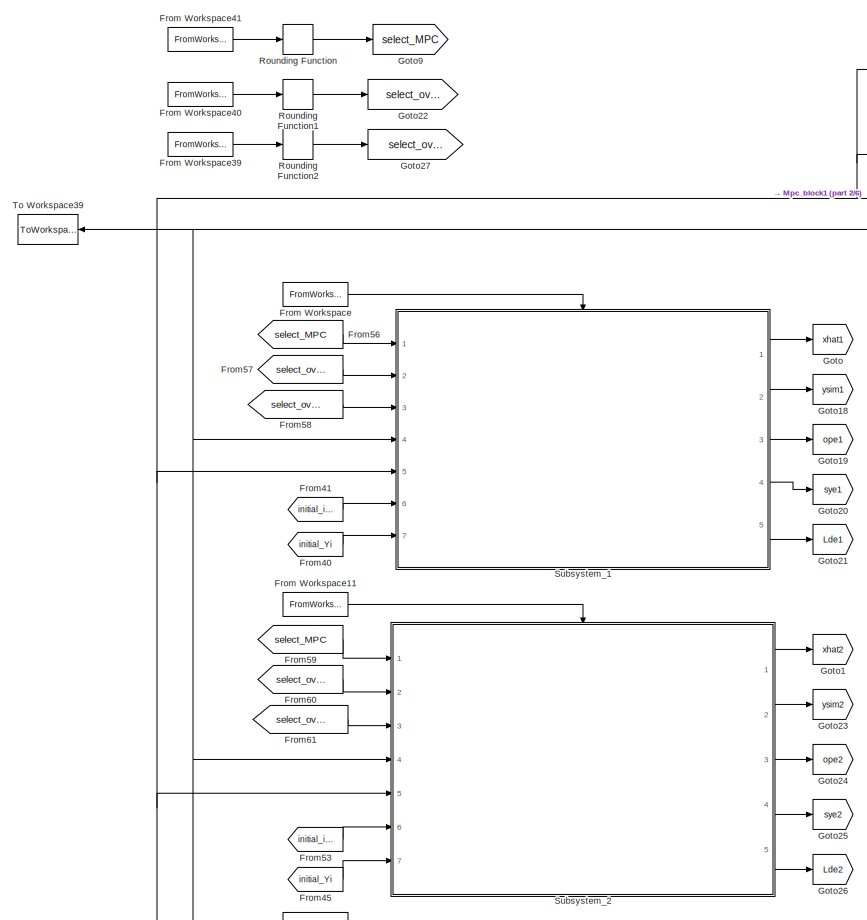
[diagram: root canvas - part 1/6, top left region]
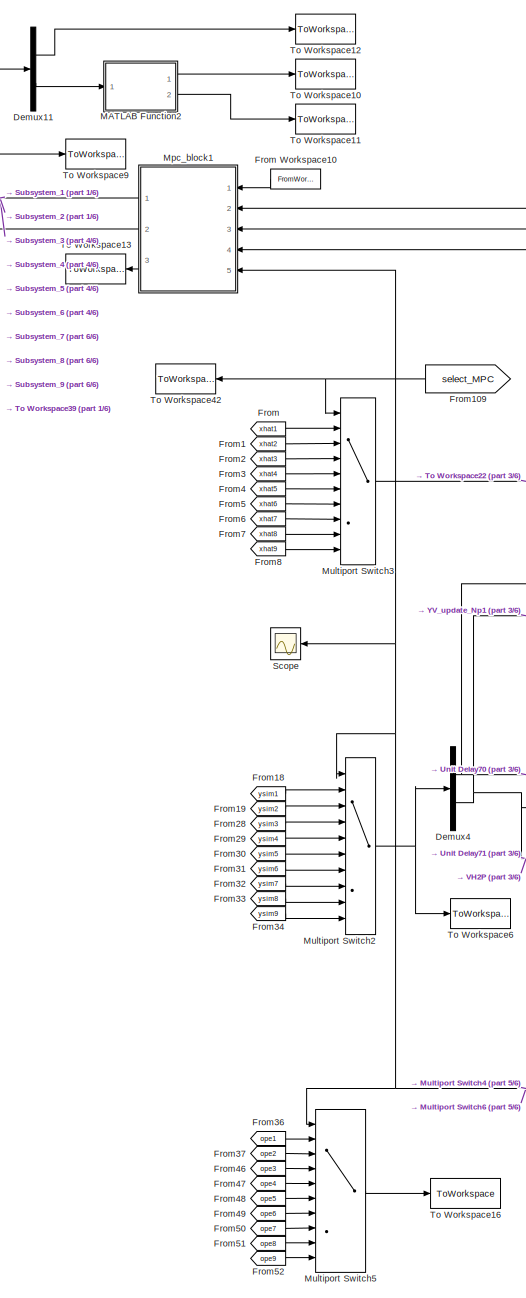
[diagram: root canvas - part 2/6, top center region]
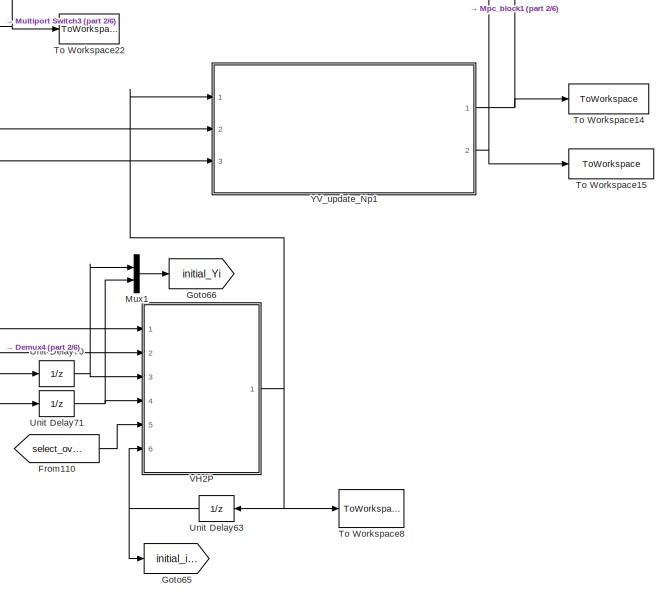
[diagram: root canvas - part 3/6, top right region]
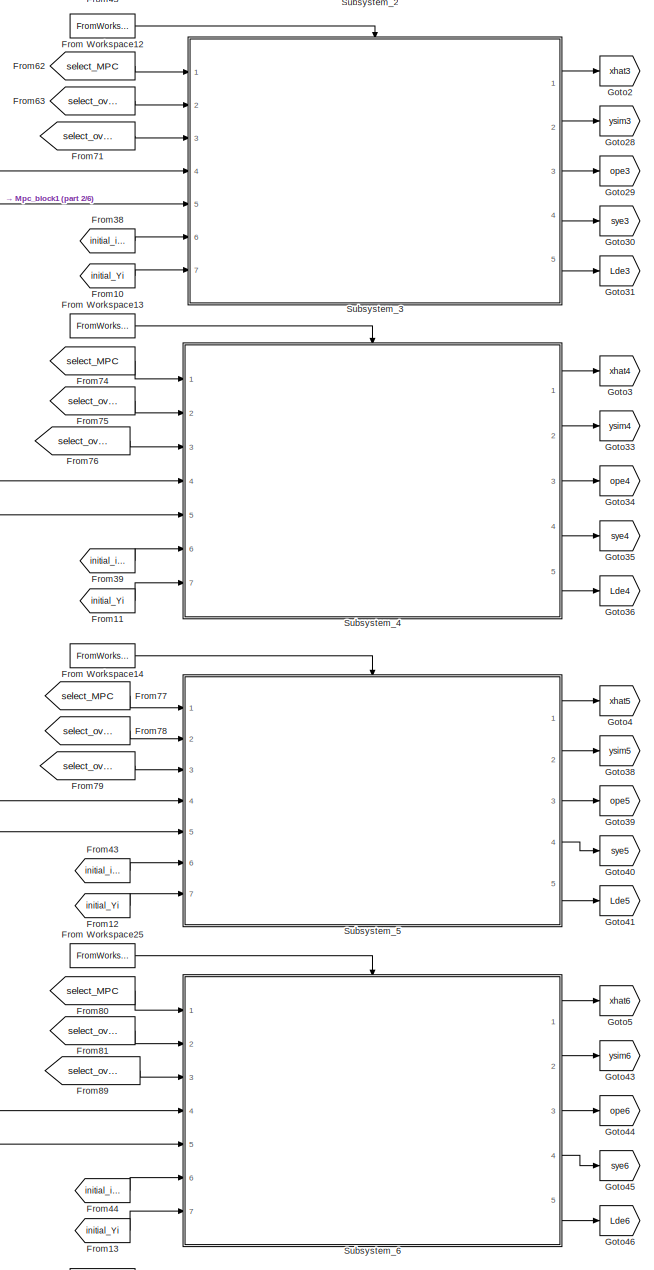
[diagram: root canvas - part 4/6, middle left region]
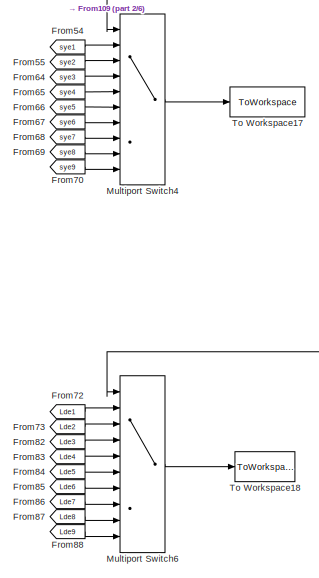
[diagram: root canvas - part 5/6, central region]
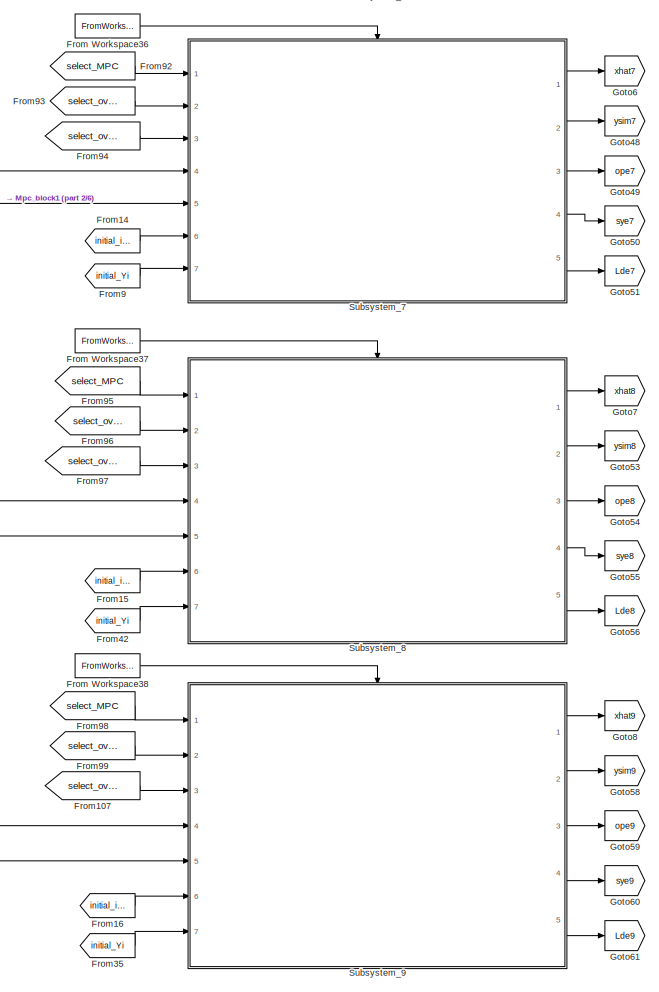
[diagram: root canvas - part 6/6, bottom left region]
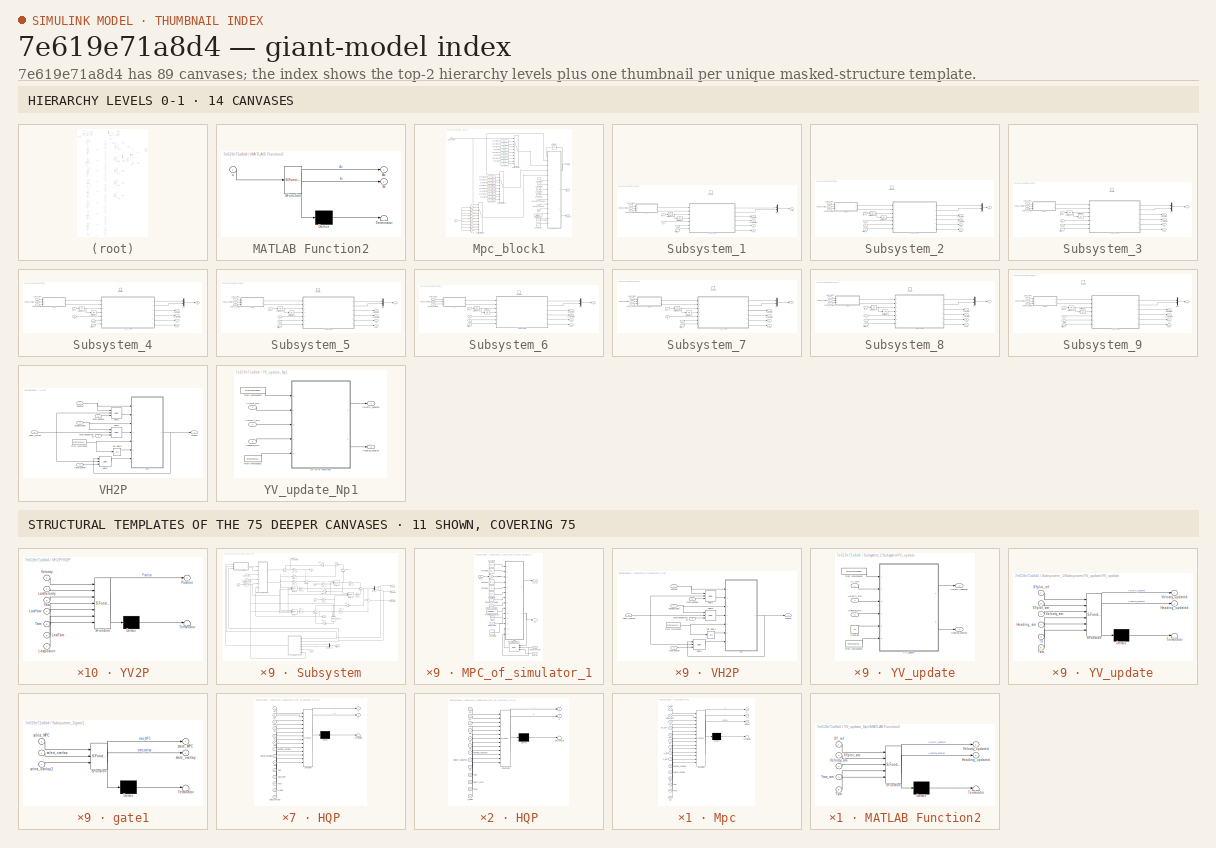
[diagram: thumbnail index - top-2 hierarchy levels (14 canvases) + 11 structural-template representatives of the remaining 75 canvases]
MODEL slx_7e619e71a8d4
KIND model
CONFIG AbsTol = auto
CONFIG EnableMultiTasking = off
CONFIG FixedStep = 0.001
CONFIG MaxStep = auto
CONFIG MinStep = auto
CONFIG RelTol = 5e-3
CONFIG SampleTimeConstraint = Unconstrained
CONFIG Solver = FixedStepAuto
CONFIG SolverName = FixedStepAuto
CONFIG StartTime = 0.0
CONFIG StopTime = Tend-Ts
WORKSPACE source: MAT-file member
WORKSPACE A_mu = 10
BLOCK [Demux] Demux11
  DisplayOption = bar
  Outputs = 2
  Ports = [1, 2]
BLOCK [Demux] Demux4
  DisplayOption = bar
  Outputs = 2
  Ports = [1, 2]
BLOCK [From] From
  GotoTag = xhat1
BLOCK [FromWorkspace] From Workspace
  SampleTime = 0
  VariableName = flag_mod1
  ZeroCross = on
BLOCK [FromWorkspace] From Workspace10
  SampleTime = Ts
  VariableName = Rs
  ZeroCross = on
BLOCK [FromWorkspace] From Workspace11
  SampleTime = 0
  VariableName = flag_mod2
  ZeroCross = on
BLOCK [FromWorkspace] From Workspace12
  SampleTime = 0
  VariableName = flag_mod3
  ZeroCross = on
BLOCK [FromWorkspace] From Workspace13
  SampleTime = 0
  VariableName = flag_mod4
  ZeroCross = on
BLOCK [FromWorkspace] From Workspace14
  SampleTime = 0
  VariableName = flag_mod5
  ZeroCross = on
BLOCK [FromWorkspace] From Workspace25
  SampleTime = 0
  VariableName = flag_mod6
  ZeroCross = on
BLOCK [FromWorkspace] From Workspace36
  SampleTime = 0
  VariableName = flag_mod7
  ZeroCross = on
BLOCK [FromWorkspace] From Workspace37
  SampleTime = 0
  VariableName = flag_mod8
  ZeroCross = on
BLOCK [FromWorkspace] From Workspace38
  SampleTime = 0
  VariableName = flag_mod9
  ZeroCross = on
BLOCK [FromWorkspace] From Workspace39
  SampleTime = Ts
  VariableName = select_overlap2
  ZeroCross = on
BLOCK [FromWorkspace] From Workspace40
  SampleTime = Ts
  VariableName = select_overlap
  ZeroCross = on
BLOCK [FromWorkspace] From Workspace41
  SampleTime = Ts
  VariableName = select_MPC
  ZeroCross = on
BLOCK [From] From1
  GotoTag = xhat2
BLOCK [From] From10
  GotoTag = initial_Yi
BLOCK [From] From107
  GotoTag = select_overlap2
BLOCK [From] From109
  GotoTag = select_MPC
BLOCK [From] From11
  GotoTag = initial_Yi
BLOCK [From] From110
  GotoTag = select_overlap
BLOCK [From] From12
  GotoTag = initial_Yi
BLOCK [From] From13
  GotoTag = initial_Yi
BLOCK [From] From14
  GotoTag = initial_ipos
BLOCK [From] From15
  GotoTag = initial_ipos
BLOCK [From] From16
  GotoTag = initial_ipos
BLOCK [From] From18
  GotoTag = ysim1
BLOCK [From] From19
  GotoTag = ysim2
BLOCK [From] From2
  GotoTag = xhat3
BLOCK [From] From28
  GotoTag = ysim3
BLOCK [From] From29
  GotoTag = ysim4
BLOCK [From] From3
  GotoTag = xhat4
BLOCK [From] From30
  GotoTag = ysim5
BLOCK [From] From31
  GotoTag = ysim6
BLOCK [From] From32
  GotoTag = ysim7
BLOCK [From] From33
  GotoTag = ysim8
BLOCK [From] From34
  GotoTag = ysim9
BLOCK [From] From35
  GotoTag = initial_Yi
BLOCK [From] From36
  GotoTag = ope1
BLOCK [From] From37
  GotoTag = ope2
BLOCK [From] From38
  GotoTag = initial_ipos
BLOCK [From] From39
  GotoTag = initial_ipos
BLOCK [From] From4
  GotoTag = xhat5
BLOCK [From] From40
  GotoTag = initial_Yi
BLOCK [From] From41
  GotoTag = initial_ipos
BLOCK [From] From42
  GotoTag = initial_Yi
BLOCK [From] From43
  GotoTag = initial_ipos
BLOCK [From] From44
  GotoTag = initial_ipos
BLOCK [From] From45
  GotoTag = initial_Yi
BLOCK [From] From46
  GotoTag = ope3
BLOCK [From] From47
  GotoTag = ope4
BLOCK [From] From48
  GotoTag = ope5
BLOCK [From] From49
  GotoTag = ope6
BLOCK [From] From5
  GotoTag = xhat6
BLOCK [From] From50
  GotoTag = ope7
BLOCK [From] From51
  GotoTag = ope8
BLOCK [From] From52
  GotoTag = ope9
BLOCK [From] From53
  GotoTag = initial_ipos
BLOCK [From] From54
  GotoTag = sye1
BLOCK [From] From55
  GotoTag = sye2
BLOCK [From] From56
  GotoTag = select_MPC
BLOCK [From] From57
  GotoTag = select_overlap
BLOCK [From] From58
  GotoTag = select_overlap2
BLOCK [From] From59
  GotoTag = select_MPC
BLOCK [From] From6
  GotoTag = xhat7
BLOCK [From] From60
  GotoTag = select_overlap
BLOCK [From] From61
  GotoTag = select_overlap2
BLOCK [From] From62
  GotoTag = select_MPC
BLOCK [From] From63
  GotoTag = select_overlap
BLOCK [From] From64
  GotoTag = sye3
BLOCK [From] From65
  GotoTag = sye4
BLOCK [From] From66
  GotoTag = sye5
BLOCK [From] From67
  GotoTag = sye6
BLOCK [From] From68
  GotoTag = sye7
BLOCK [From] From69
  GotoTag = sye8
BLOCK [From] From7
  GotoTag = xhat8
BLOCK [From] From70
  GotoTag = sye9
BLOCK [From] From71
  GotoTag = select_overlap2
BLOCK [From] From72
  GotoTag = Lde1
BLOCK [From] From73
  GotoTag = Lde2
BLOCK [From] From74
  GotoTag = select_MPC
BLOCK [From] From75
  GotoTag = select_overlap
BLOCK [From] From76
  GotoTag = select_overlap2
BLOCK [From] From77
  GotoTag = select_MPC
BLOCK [From] From78
  GotoTag = select_overlap
BLOCK [From] From79
  GotoTag = select_overlap2
BLOCK [From] From8
  GotoTag = xhat9
BLOCK [From] From80
  GotoTag = select_MPC
BLOCK [From] From81
  GotoTag = select_overlap
BLOCK [From] From82
  GotoTag = Lde3
BLOCK [From] From83
  GotoTag = Lde4
BLOCK [From] From84
  GotoTag = Lde5
BLOCK [From] From85
  GotoTag = Lde6
BLOCK [From] From86
  GotoTag = Lde7
BLOCK [From] From87
  GotoTag = Lde8
BLOCK [From] From88
  GotoTag = Lde9
BLOCK [From] From89
  GotoTag = select_overlap2
BLOCK [From] From9
  GotoTag = initial_Yi
BLOCK [From] From92
  GotoTag = select_MPC
BLOCK [From] From93
  GotoTag = select_overlap
BLOCK [From] From94
  GotoTag = select_overlap2
BLOCK [From] From95
  GotoTag = select_MPC
BLOCK [From] From96
  GotoTag = select_overlap
BLOCK [From] From97
  GotoTag = select_overlap2
BLOCK [From] From98
  GotoTag = select_MPC
BLOCK [From] From99
  GotoTag = select_overlap
BLOCK [Goto] Goto
  GotoTag = xhat1
BLOCK [Goto] Goto1
  GotoTag = xhat2
BLOCK [Goto] Goto18
  GotoTag = ysim1
BLOCK [Goto] Goto19
  GotoTag = ope1
BLOCK [Goto] Goto2
  GotoTag = xhat3
BLOCK [Goto] Goto20
  GotoTag = sye1
BLOCK [Goto] Goto21
  GotoTag = Lde1
BLOCK [Goto] Goto22
  GotoTag = select_overlap
BLOCK [Goto] Goto23
  GotoTag = ysim2
BLOCK [Goto] Goto24
  GotoTag = ope2
BLOCK [Goto] Goto25
  GotoTag = sye2
BLOCK [Goto] Goto26
  GotoTag = Lde2
BLOCK [Goto] Goto27
  GotoTag = select_overlap2
BLOCK [Goto] Goto28
  GotoTag = ysim3
BLOCK [Goto] Goto29
  GotoTag = ope3
BLOCK [Goto] Goto3
  GotoTag = xhat4
BLOCK [Goto] Goto30
  GotoTag = sye3
BLOCK [Goto] Goto31
  GotoTag = Lde3
BLOCK [Goto] Goto33
  GotoTag = ysim4
BLOCK [Goto] Goto34
  GotoTag = ope4
BLOCK [Goto] Goto35
  GotoTag = sye4
BLOCK [Goto] Goto36
  GotoTag = Lde4
BLOCK [Goto] Goto38
  GotoTag = ysim5
BLOCK [Goto] Goto39
  GotoTag = ope5
BLOCK [Goto] Goto4
  GotoTag = xhat5
BLOCK [Goto] Goto40
  GotoTag = sye5
BLOCK [Goto] Goto41
  GotoTag = Lde5
BLOCK [Goto] Goto43
  GotoTag = ysim6
BLOCK [Goto] Goto44
  GotoTag = ope6
BLOCK [Goto] Goto45
  GotoTag = sye6
BLOCK [Goto] Goto46
  GotoTag = Lde6
BLOCK [Goto] Goto48
  GotoTag = ysim7
BLOCK [Goto] Goto49
  GotoTag = ope7
BLOCK [Goto] Goto5
  GotoTag = xhat6
BLOCK [Goto] Goto50
  GotoTag = sye7
BLOCK [Goto] Goto51
  GotoTag = Lde7
BLOCK [Goto] Goto53
  GotoTag = ysim8
BLOCK [Goto] Goto54
  GotoTag = ope8
BLOCK [Goto] Goto55
  GotoTag = sye8
BLOCK [Goto] Goto56
  GotoTag = Lde8
BLOCK [Goto] Goto58
  GotoTag = ysim9
BLOCK [Goto] Goto59
  GotoTag = ope9
BLOCK [Goto] Goto6
  GotoTag = xhat7
BLOCK [Goto] Goto60
  GotoTag = sye9
BLOCK [Goto] Goto61
  GotoTag = Lde9
BLOCK [Goto] Goto65
  GotoTag = initial_ipos
BLOCK [Goto] Goto66
  GotoTag = initial_Yi
BLOCK [Goto] Goto7
  GotoTag = xhat8
BLOCK [Goto] Goto8
  GotoTag = xhat9
BLOCK [Goto] Goto9
  GotoTag = select_MPC
BLOCK [SubSystem] MATLAB Function2
  ErrorFcn = Stateflow.Translate.translate
  PermitHierarchicalResolution = ExplicitOnly
  Ports = [1, 2]
  RequestExecContextInheritance = off
  SFBlockType = MATLAB Function
  SystemSampleTime = Ts
  TreatAsAtomicUnit = on
BLOCK [Demux] MATLAB Function2/ Demux 
  Outputs = 1
  Ports = [1, 1]
BLOCK [S-Function] MATLAB Function2/ SFunction 
  EnableBusSupport = on
  FunctionName = sf_sfun
  PortCounts = [1 3]
  Ports = [1, 3]
  SFcnIsStateOwnerBlock = off
  SFunctionDeploymentMode = off
  Tag = Stateflow S-Function ISReferenceApplication 123
BLOCK [Terminator] MATLAB Function2/ Terminator 
BLOCK [Outport] MATLAB Function2/Ac
  IconDisplay = Port number
BLOCK [Outport] MATLAB Function2/Br
  IconDisplay = Port number
  Port = 2
BLOCK [Inport] MATLAB Function2/u
  IconDisplay = Port number
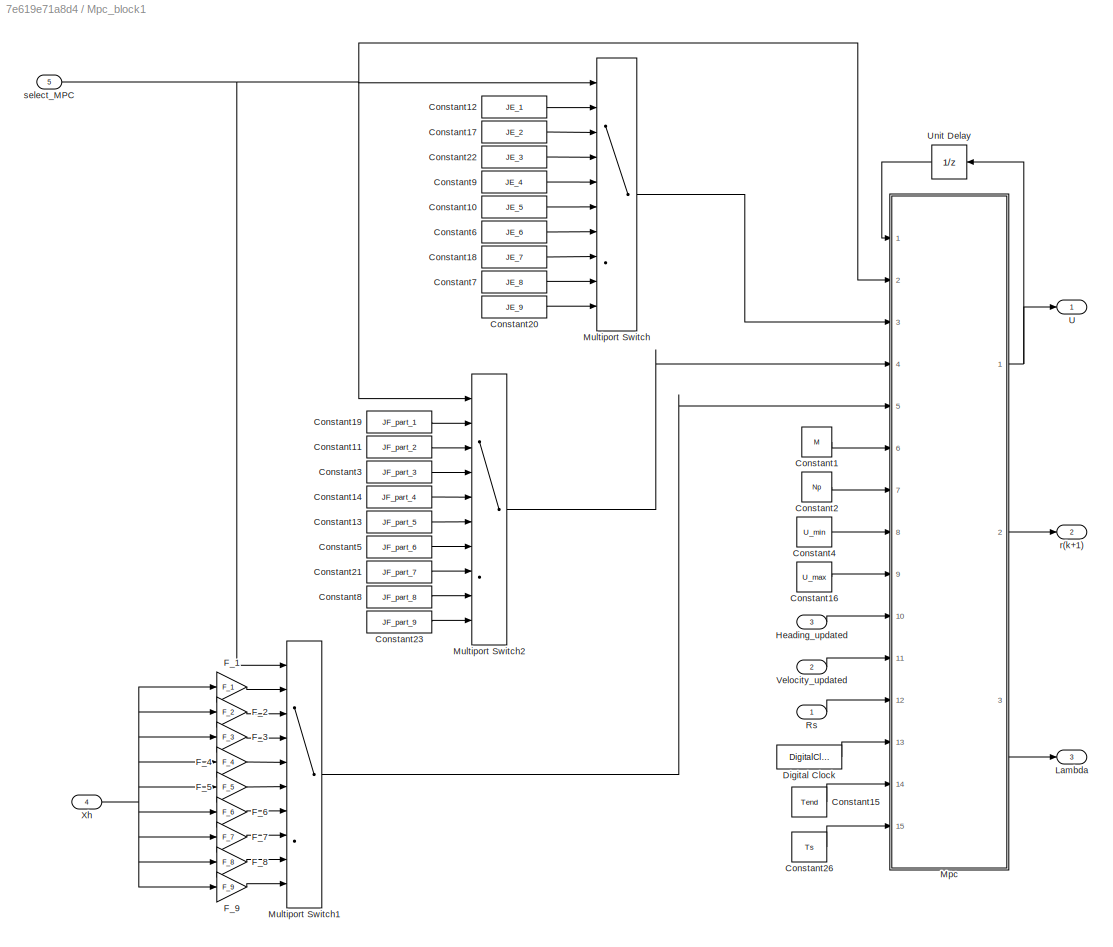
BLOCK [SubSystem] Mpc_block1
  Ports = [5, 3]
  RequestExecContextInheritance = off
  SystemSampleTime = Ts
  TreatAsAtomicUnit = on
BLOCK [Constant] Mpc_block1/Constant1
  SampleTime = -1
  Value = M
  VectorParams1D = off
BLOCK [Constant] Mpc_block1/Constant10
  SampleTime = -1
  Value = JE_5
  VectorParams1D = off
BLOCK [Constant] Mpc_block1/Constant11
  SampleTime = -1
  Value = JF_part_2
  VectorParams1D = off
BLOCK [Constant] Mpc_block1/Constant12
  SampleTime = -1
  Value = JE_1
  VectorParams1D = off
BLOCK [Constant] Mpc_block1/Constant13
  SampleTime = -1
  Value = JF_part_5
  VectorParams1D = off
BLOCK [Constant] Mpc_block1/Constant14
  SampleTime = -1
  Value = JF_part_4
  VectorParams1D = off
BLOCK [Constant] Mpc_block1/Constant15
  SampleTime = -1
  Value = Tend
  VectorParams1D = off
BLOCK [Constant] Mpc_block1/Constant16
  SampleTime = -1
  Value = U_max
  VectorParams1D = off
BLOCK [Constant] Mpc_block1/Constant17
  SampleTime = -1
  Value = JE_2
  VectorParams1D = off
BLOCK [Constant] Mpc_block1/Constant18
  SampleTime = -1
  Value = JE_7
  VectorParams1D = off
BLOCK [Constant] Mpc_block1/Constant19
  SampleTime = -1
  Value = JF_part_1
  VectorParams1D = off
BLOCK [Constant] Mpc_block1/Constant2
  SampleTime = -1
  Value = Np
BLOCK [Constant] Mpc_block1/Constant20
  SampleTime = -1
  Value = JE_9
  VectorParams1D = off
BLOCK [Constant] Mpc_block1/Constant21
  SampleTime = -1
  Value = JF_part_7
  VectorParams1D = off
BLOCK [Constant] Mpc_block1/Constant22
  SampleTime = -1
  Value = JE_3
  VectorParams1D = off
BLOCK [Constant] Mpc_block1/Constant23
  SampleTime = -1
  Value = JF_part_9
  VectorParams1D = off
BLOCK [Constant] Mpc_block1/Constant26
  SampleTime = -1
  Value = Ts
  VectorParams1D = off
BLOCK [Constant] Mpc_block1/Constant3
  SampleTime = -1
  Value = JF_part_3
  VectorParams1D = off
BLOCK [Constant] Mpc_block1/Constant4
  SampleTime = -1
  Value = U_min
  VectorParams1D = off
BLOCK [Constant] Mpc_block1/Constant5
  SampleTime = -1
  Value = JF_part_6
  VectorParams1D = off
BLOCK [Constant] Mpc_block1/Constant6
  SampleTime = -1
  Value = JE_6
  VectorParams1D = off
BLOCK [Constant] Mpc_block1/Constant7
  SampleTime = -1
  Value = JE_8
  VectorParams1D = off
BLOCK [Constant] Mpc_block1/Constant8
  SampleTime = -1
  Value = JF_part_8
  VectorParams1D = off
BLOCK [Constant] Mpc_block1/Constant9
  SampleTime = -1
  Value = JE_4
  VectorParams1D = off
BLOCK [DigitalClock] Mpc_block1/Digital Clock
  SampleTime = Ts
BLOCK [Gain] Mpc_block1/F_1
  Gain = F_1
  Multiplication = Matrix(K*u) (u vector)
  OutDataTypeStr = Inherit: Inherit via internal rule
  ParamDataTypeStr = Inherit: Inherit via internal rule
  SaturateOnIntegerOverflow = off
BLOCK [Gain] Mpc_block1/F_2
  Gain = F_2
  Multiplication = Matrix(K*u) (u vector)
  OutDataTypeStr = Inherit: Inherit via internal rule
  ParamDataTypeStr = Inherit: Inherit via internal rule
  SaturateOnIntegerOverflow = off
BLOCK [Gain] Mpc_block1/F_3
  Gain = F_3
  Multiplication = Matrix(K*u) (u vector)
  OutDataTypeStr = Inherit: Inherit via internal rule
  ParamDataTypeStr = Inherit: Inherit via internal rule
  SaturateOnIntegerOverflow = off
BLOCK [Gain] Mpc_block1/F_4
  Gain = F_4
  Multiplication = Matrix(K*u) (u vector)
  OutDataTypeStr = Inherit: Inherit via internal rule
  ParamDataTypeStr = Inherit: Inherit via internal rule
  SaturateOnIntegerOverflow = off
BLOCK [Gain] Mpc_block1/F_5
  Gain = F_5
  Multiplication = Matrix(K*u) (u vector)
  OutDataTypeStr = Inherit: Inherit via internal rule
  ParamDataTypeStr = Inherit: Inherit via internal rule
  SaturateOnIntegerOverflow = off
BLOCK [Gain] Mpc_block1/F_6
  Gain = F_6
  Multiplication = Matrix(K*u) (u vector)
  OutDataTypeStr = Inherit: Inherit via internal rule
  ParamDataTypeStr = Inherit: Inherit via internal rule
  SaturateOnIntegerOverflow = off
BLOCK [Gain] Mpc_block1/F_7
  Gain = F_7
  Multiplication = Matrix(K*u) (u vector)
  OutDataTypeStr = Inherit: Inherit via internal rule
  ParamDataTypeStr = Inherit: Inherit via internal rule
  SaturateOnIntegerOverflow = off
BLOCK [Gain] Mpc_block1/F_8
  Gain = F_8
  Multiplication = Matrix(K*u) (u vector)
  OutDataTypeStr = Inherit: Inherit via internal rule
  ParamDataTypeStr = Inherit: Inherit via internal rule
  SaturateOnIntegerOverflow = off
BLOCK [Gain] Mpc_block1/F_9
  Gain = F_9
  Multiplication = Matrix(K*u) (u vector)
  OutDataTypeStr = Inherit: Inherit via internal rule
  ParamDataTypeStr = Inherit: Inherit via internal rule
  SaturateOnIntegerOverflow = off
BLOCK [Inport] Mpc_block1/Heading_updated
  IconDisplay = Port number
  LockScale = on
  Port = 3
  SampleTime = Ts
BLOCK [Outport] Mpc_block1/Lambda
  IconDisplay = Port number
  Port = 3
BLOCK [SubSystem] Mpc_block1/Mpc
  ErrorFcn = Stateflow.Translate.translate
  PermitHierarchicalResolution = ExplicitOnly
  Ports = [15, 3]
  RequestExecContextInheritance = off
  SFBlockType = MATLAB Function
  SystemSampleTime = Ts
  TreatAsAtomicUnit = on
BLOCK [Demux] Mpc_block1/Mpc/ Demux 
  Outputs = 1
  Ports = [1, 1]
BLOCK [S-Function] Mpc_block1/Mpc/ SFunction 
  EnableBusSupport = on
  FunctionName = sf_sfun
  PortCounts = [15 4]
  Ports = [15, 4]
  SFcnIsStateOwnerBlock = off
  SFunctionDeploymentMode = off
  Tag = Stateflow S-Function ISReferenceApplication 99
BLOCK [Terminator] Mpc_block1/Mpc/ Terminator 
BLOCK [Inport] Mpc_block1/Mpc/Fxh
  IconDisplay = Port number
  Port = 5
BLOCK [Inport] Mpc_block1/Mpc/Heading_updated
  IconDisplay = Port number
  Port = 10
BLOCK [Inport] Mpc_block1/Mpc/JE
  IconDisplay = Port number
  Port = 3
BLOCK [Inport] Mpc_block1/Mpc/JF_part
  IconDisplay = Port number
  Port = 4
BLOCK [Inport] Mpc_block1/Mpc/M
  IconDisplay = Port number
  Port = 6
BLOCK [Inport] Mpc_block1/Mpc/Np
  IconDisplay = Port number
  Port = 7
BLOCK [Inport] Mpc_block1/Mpc/Rs
  IconDisplay = Port number
  Port = 12
BLOCK [Inport] Mpc_block1/Mpc/Tend
  IconDisplay = Port number
  Port = 14
BLOCK [Inport] Mpc_block1/Mpc/Ts
  IconDisplay = Port number
  Port = 15
BLOCK [Inport] Mpc_block1/Mpc/Tsim
  IconDisplay = Port number
  Port = 13
BLOCK [Outport] Mpc_block1/Mpc/U
  IconDisplay = Port number
BLOCK [Inport] Mpc_block1/Mpc/U_delay
  IconDisplay = Port number
BLOCK [Inport] Mpc_block1/Mpc/U_max
  IconDisplay = Port number
  Port = 9
BLOCK [Inport] Mpc_block1/Mpc/U_min
  IconDisplay = Port number
  Port = 8
BLOCK [Inport] Mpc_block1/Mpc/Velocity_updated
  IconDisplay = Port number
  Port = 11
BLOCK [Outport] Mpc_block1/Mpc/lambda
  IconDisplay = Port number
  Port = 3
BLOCK [Outport] Mpc_block1/Mpc/r
  IconDisplay = Port number
  Port = 2
BLOCK [Inport] Mpc_block1/Mpc/select_MPC
  IconDisplay = Port number
  Port = 2
BLOCK [MultiPortSwitch] Mpc_block1/Multiport Switch
  InputSameDT = off
  Inputs = 9
  Ports = [10, 1]
  SaturateOnIntegerOverflow = off
BLOCK [MultiPortSwitch] Mpc_block1/Multiport Switch1
  InputSameDT = off
  Inputs = 9
  Ports = [10, 1]
  SaturateOnIntegerOverflow = off
BLOCK [MultiPortSwitch] Mpc_block1/Multiport Switch2
  InputSameDT = off
  Inputs = 9
  Ports = [10, 1]
  SaturateOnIntegerOverflow = off
BLOCK [Inport] Mpc_block1/Rs
  IconDisplay = Port number
  LockScale = on
  SampleTime = Ts
  VarSizeSig = No
BLOCK [Outport] Mpc_block1/U
  IconDisplay = Port number
BLOCK [UnitDelay] Mpc_block1/Unit Delay
  InitialCondition = [0;0]
  InputProcessing = Elements as channels (sample based)
  SampleTime = Ts
BLOCK [Inport] Mpc_block1/Velocity_updated
  IconDisplay = Port number
  Port = 2
  SampleTime = Ts
BLOCK [Inport] Mpc_block1/Xh
  IconDisplay = Port number
  Port = 4
BLOCK [Outport] Mpc_block1/r(k+1)
  IconDisplay = Port number
  Port = 2
BLOCK [Inport] Mpc_block1/select_MPC
  IconDisplay = Port number
  Port = 5
BLOCK [MultiPortSwitch] Multiport Switch2
  InputSameDT = off
  Inputs = 9
  Ports = [10, 1]
  SaturateOnIntegerOverflow = off
BLOCK [MultiPortSwitch] Multiport Switch3
  InputSameDT = off
  Inputs = 9
  Ports = [10, 1]
  SaturateOnIntegerOverflow = off
BLOCK [MultiPortSwitch] Multiport Switch4
  InputSameDT = off
  Inputs = 9
  Ports = [10, 1]
  SaturateOnIntegerOverflow = off
BLOCK [MultiPortSwitch] Multiport Switch5
  InputSameDT = off
  Inputs = 9
  Ports = [10, 1]
  SaturateOnIntegerOverflow = off
BLOCK [MultiPortSwitch] Multiport Switch6
  InputSameDT = off
  Inputs = 9
  Ports = [10, 1]
  SaturateOnIntegerOverflow = off
BLOCK [Mux] Mux1
  DisplayOption = bar
  Inputs = 2
  Ports = [2, 1]
BLOCK [Rounding] Rounding Function
  Operator = round
BLOCK [Rounding] Rounding Function1
  Operator = round
BLOCK [Rounding] Rounding Function2
  Operator = round
BLOCK [Scope] Scope
  Floating = off
  NumInputPorts = 1
  Ports = [1]
  ScopeSpecificationString = Simulink.scopes.TimeScopeBlockCfg('CurrentConfiguration', extmgr.ConfigurationSet(extmgr.Configuration('Core','General UI',true),extmgr.Configuration('Core','Source UI',true),extmgr.Configuration('Sources','WiredSimulink',true),extmgr.Configuration('Visuals','Time Domain',true,'SerializedDisplays',{struct('MinYLimReal','2.5','MaxYLimReal','7.5','YLabelReal','','MinYLimMag','2.5','MaxYLimMag','7.5'...<+1302ch>
BLOCK [SubSystem] Subsystem_1
  Ports = [7, 5, 1]
  RequestExecContextInheritance = off
BLOCK [EnablePort] Subsystem_1/Enable
  Ports = []
BLOCK [Outport] Subsystem_1/Ld
  IconDisplay = Port number
  Port = 5
BLOCK [Mux] Subsystem_1/Mux
  DisplayOption = bar
  Inputs = 2
  Ports = [2, 1]
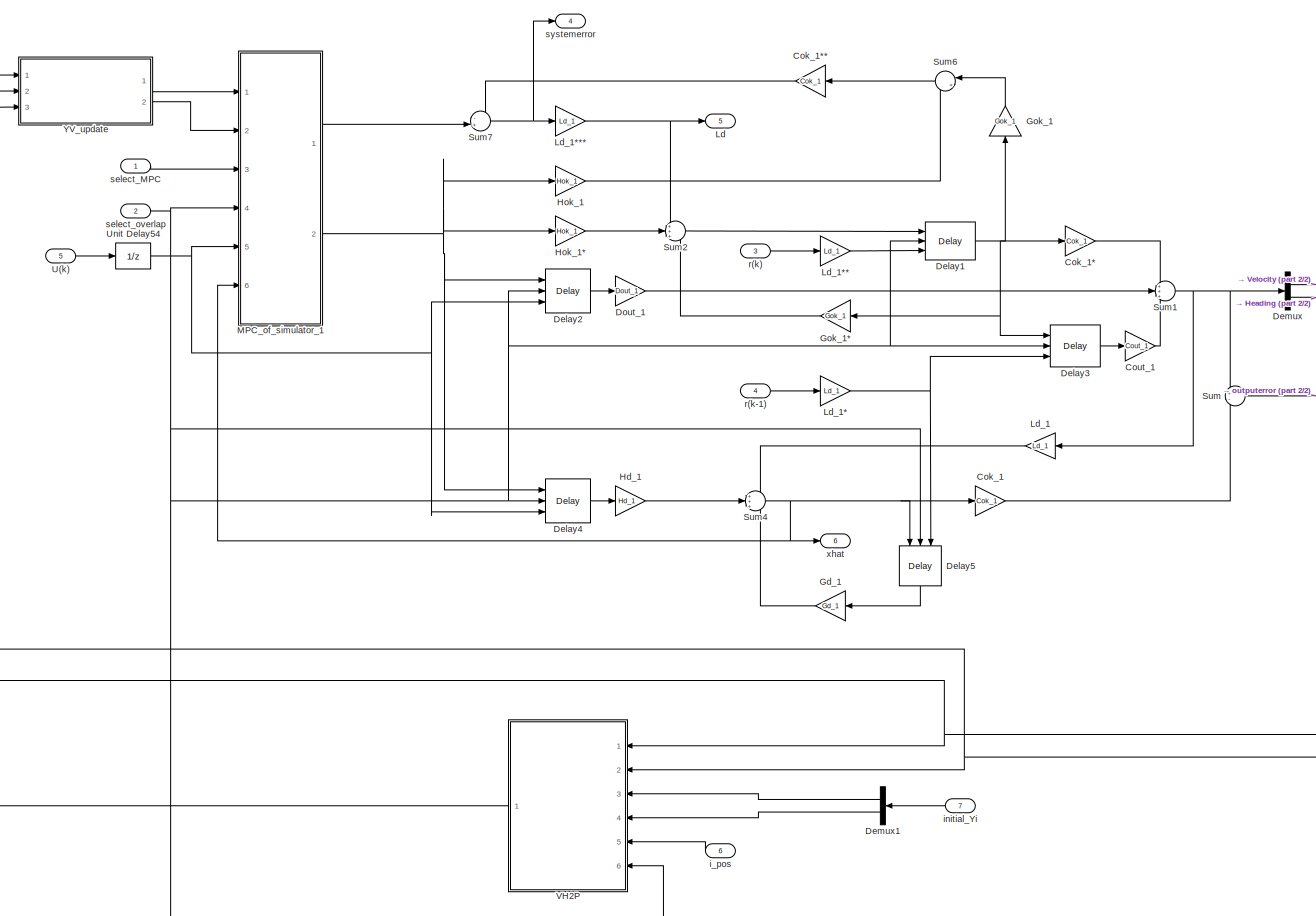
[diagram: Subsystem_1/Subsystem - part 1/2, most of the canvas]
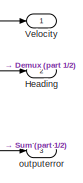
[diagram: Subsystem_1/Subsystem - part 2/2, middle right region]
BLOCK [SubSystem] Subsystem_1/Subsystem
  Ports = [7, 6]
  RequestExecContextInheritance = off
BLOCK [Gain] Subsystem_1/Subsystem/Cok_1
  Gain = Cok_1
  Multiplication = Matrix(K*u) (u vector)
  OutDataTypeStr = Inherit: Inherit via internal rule
  ParamDataTypeStr = Inherit: Inherit via internal rule
  SaturateOnIntegerOverflow = off
BLOCK [Gain] Subsystem_1/Subsystem/Cok_1*
  Gain = Cok_1
  Multiplication = Matrix(K*u) (u vector)
  OutDataTypeStr = Inherit: Inherit via internal rule
  ParamDataTypeStr = Inherit: Inherit via internal rule
  SaturateOnIntegerOverflow = off
BLOCK [Gain] Subsystem_1/Subsystem/Cok_1**
  Gain = Cok_1
  Multiplication = Matrix(K*u) (u vector)
  OutDataTypeStr = Inherit: Inherit via internal rule
  ParamDataTypeStr = Inherit: Inherit via internal rule
  SaturateOnIntegerOverflow = off
BLOCK [Gain] Subsystem_1/Subsystem/Cout_1
  Gain = Cout_1
  Multiplication = Matrix(K*u) (u vector)
  OutDataTypeStr = Inherit: Inherit via internal rule
  ParamDataTypeStr = Inherit: Inherit via internal rule
  SaturateOnIntegerOverflow = off
BLOCK [Delay] Subsystem_1/Subsystem/Delay1
  DelayLength = 1
  ExternalReset = Rising
  InitialCondition = 0
  InitialConditionSource = Input port
  InputPortMap = u0,r5,p4
  Ports = [3, 1]
  SampleTime = Ts
BLOCK [Delay] Subsystem_1/Subsystem/Delay2
  DelayLength = 1
  ExternalReset = Rising
  InitialCondition = 0
  InitialConditionSource = Input port
  InputPortMap = u0,r5,p4
  Ports = [3, 1]
  SampleTime = Ts
BLOCK [Delay] Subsystem_1/Subsystem/Delay3
  DelayLength = 1
  ExternalReset = Rising
  InitialCondition = 0
  InitialConditionSource = Input port
  InputPortMap = u0,r5,p4
  Ports = [3, 1]
  SampleTime = Ts
BLOCK [Delay] Subsystem_1/Subsystem/Delay4
  DelayLength = 1
  ExternalReset = Rising
  InitialCondition = 0
  InitialConditionSource = Input port
  InputPortMap = u0,r5,p4
  Ports = [3, 1]
  SampleTime = Ts
BLOCK [Delay] Subsystem_1/Subsystem/Delay5
  DelayLength = 1
  ExternalReset = Rising
  InitialCondition = 0
  InitialConditionSource = Input port
  InputPortMap = u0,r5,p4
  Ports = [3, 1]
  SampleTime = Ts
BLOCK [Demux] Subsystem_1/Subsystem/Demux
  DisplayOption = bar
  Outputs = 2
  Ports = [1, 2]
BLOCK [Demux] Subsystem_1/Subsystem/Demux1
  DisplayOption = bar
  Outputs = 2
  Ports = [1, 2]
BLOCK [Gain] Subsystem_1/Subsystem/Dout_1
  Gain = Dout_1
  Multiplication = Matrix(K*u) (u vector)
  OutDataTypeStr = Inherit: Inherit via internal rule
  ParamDataTypeStr = Inherit: Inherit via internal rule
  SaturateOnIntegerOverflow = off
BLOCK [Gain] Subsystem_1/Subsystem/Gd_1
  Gain = Gd_1
  Multiplication = Matrix(K*u) (u vector)
  OutDataTypeStr = Inherit: Inherit via internal rule
  ParamDataTypeStr = Inherit: Inherit via internal rule
  SaturateOnIntegerOverflow = off
BLOCK [Gain] Subsystem_1/Subsystem/Gok_1
  Gain = Gok_1
  Multiplication = Matrix(K*u) (u vector)
  OutDataTypeStr = Inherit: Inherit via internal rule
  ParamDataTypeStr = Inherit: Inherit via internal rule
  SaturateOnIntegerOverflow = off
BLOCK [Gain] Subsystem_1/Subsystem/Gok_1*
  Gain = Gok_1
  Multiplication = Matrix(K*u) (u vector)
  OutDataTypeStr = Inherit: Inherit via internal rule
  ParamDataTypeStr = Inherit: Inherit via internal rule
  SaturateOnIntegerOverflow = off
BLOCK [Gain] Subsystem_1/Subsystem/Hd_1
  Gain = Hd_1
  Multiplication = Matrix(K*u) (u vector)
  OutDataTypeStr = Inherit: Inherit via internal rule
  ParamDataTypeStr = Inherit: Inherit via internal rule
  SaturateOnIntegerOverflow = off
BLOCK [Outport] Subsystem_1/Subsystem/Heading
  IconDisplay = Port number
  Port = 2
BLOCK [Gain] Subsystem_1/Subsystem/Hok_1
  Gain = Hok_1
  Multiplication = Matrix(K*u) (u vector)
  OutDataTypeStr = Inherit: Inherit via internal rule
  ParamDataTypeStr = Inherit: Inherit via internal rule
  SaturateOnIntegerOverflow = off
BLOCK [Gain] Subsystem_1/Subsystem/Hok_1*
  Gain = Hok_1
  Multiplication = Matrix(K*u) (u vector)
  OutDataTypeStr = Inherit: Inherit via internal rule
  ParamDataTypeStr = Inherit: Inherit via internal rule
  SaturateOnIntegerOverflow = off
BLOCK [Outport] Subsystem_1/Subsystem/Ld
  IconDisplay = Port number
  Port = 5
BLOCK [Gain] Subsystem_1/Subsystem/Ld_1
  Gain = Ld_1
  Multiplication = Matrix(K*u) (u vector)
  OutDataTypeStr = Inherit: Inherit via internal rule
  ParamDataTypeStr = Inherit: Inherit via internal rule
  SaturateOnIntegerOverflow = off
BLOCK [Gain] Subsystem_1/Subsystem/Ld_1*
  Gain = Ld_1
  Multiplication = Matrix(K*u) (u vector)
  OutDataTypeStr = Inherit: Inherit via internal rule
  ParamDataTypeStr = Inherit: Inherit via internal rule
  SaturateOnIntegerOverflow = off
BLOCK [Gain] Subsystem_1/Subsystem/Ld_1**
  Gain = Ld_1
  Multiplication = Matrix(K*u) (u vector)
  OutDataTypeStr = Inherit: Inherit via internal rule
  ParamDataTypeStr = Inherit: Inherit via internal rule
  SaturateOnIntegerOverflow = off
BLOCK [Gain] Subsystem_1/Subsystem/Ld_1***
  Gain = Ld_1
  Multiplication = Matrix(K*u) (u vector)
  OutDataTypeStr = Inherit: Inherit via internal rule
  ParamDataTypeStr = Inherit: Inherit via internal rule
  SaturateOnIntegerOverflow = off
BLOCK [SubSystem] Subsystem_1/Subsystem/MPC_of_simulator_1
  Ports = [6, 2]
  RequestExecContextInheritance = off
BLOCK [Clock] Subsystem_1/Subsystem/MPC_of_simulator_1/Clock
  Decimation = 1
BLOCK [Constant] Subsystem_1/Subsystem/MPC_of_simulator_1/Constant1
  SampleTime = -1
  Value = M
  VectorParams1D = off
BLOCK [Constant] Subsystem_1/Subsystem/MPC_of_simulator_1/Constant2
  SampleTime = -1
  Value = Np
BLOCK [Constant] Subsystem_1/Subsystem/MPC_of_simulator_1/Constant3
  SampleTime = -1
  Value = JE_1
  VectorParams1D = off
BLOCK [Constant] Subsystem_1/Subsystem/MPC_of_simulator_1/Constant4
  SampleTime = -1
  Value = Qc_1
  VectorParams1D = off
BLOCK [Constant] Subsystem_1/Subsystem/MPC_of_simulator_1/Constant5
  SampleTime = -1
  Value = phi_1
  VectorParams1D = off
BLOCK [Constant] Subsystem_1/Subsystem/MPC_of_simulator_1/Constant6
  SampleTime = -1
  Value = Tend
BLOCK [Gain] Subsystem_1/Subsystem/MPC_of_simulator_1/F_Middle
  Gain = F_1
  Multiplication = Matrix(K*u) (u vector)
  OutDataTypeStr = Inherit: Inherit via internal rule
  ParamDataTypeStr = Inherit: Inherit via internal rule
  SaturateOnIntegerOverflow = off
BLOCK [FromWorkspace] Subsystem_1/Subsystem/MPC_of_simulator_1/From Workspace6
  SampleTime = Ts
  VariableName = Rs
  ZeroCross = on
BLOCK [SubSystem] Subsystem_1/Subsystem/MPC_of_simulator_1/HQP
  ErrorFcn = Stateflow.Translate.translate
  PermitHierarchicalResolution = ExplicitOnly
  Ports = [14, 2]
  RequestExecContextInheritance = off
  SFBlockType = MATLAB Function
  SystemSampleTime = Ts
  TreatAsAtomicUnit = on
BLOCK [Demux] Subsystem_1/Subsystem/MPC_of_simulator_1/HQP/ Demux 
  Outputs = 1
  Ports = [1, 1]
BLOCK [S-Function] Subsystem_1/Subsystem/MPC_of_simulator_1/HQP/ SFunction 
  EnableBusSupport = on
  FunctionName = sf_sfun
  PortCounts = [14 3]
  Ports = [14, 3]
  SFcnIsStateOwnerBlock = off
  SFunctionDeploymentMode = off
  Tag = Stateflow S-Function ISReferenceApplication 101
BLOCK [Terminator] Subsystem_1/Subsystem/MPC_of_simulator_1/HQP/ Terminator 
BLOCK [Inport] Subsystem_1/Subsystem/MPC_of_simulator_1/HQP/Fxh
  IconDisplay = Port number
  Port = 3
BLOCK [Inport] Subsystem_1/Subsystem/MPC_of_simulator_1/HQP/Heading_updated
  IconDisplay = Port number
  Port = 7
BLOCK [Inport] Subsystem_1/Subsystem/MPC_of_simulator_1/HQP/JE
  IconDisplay = Port number
BLOCK [Inport] Subsystem_1/Subsystem/MPC_of_simulator_1/HQP/M
  IconDisplay = Port number
  Port = 5
BLOCK [Inport] Subsystem_1/Subsystem/MPC_of_simulator_1/HQP/Np
  IconDisplay = Port number
  Port = 6
BLOCK [Inport] Subsystem_1/Subsystem/MPC_of_simulator_1/HQP/Qc
  IconDisplay = Port number
  Port = 4
BLOCK [Inport] Subsystem_1/Subsystem/MPC_of_simulator_1/HQP/Rs
  IconDisplay = Port number
  Port = 9
BLOCK [Inport] Subsystem_1/Subsystem/MPC_of_simulator_1/HQP/Tend
  IconDisplay = Port number
  Port = 12
BLOCK [Inport] Subsystem_1/Subsystem/MPC_of_simulator_1/HQP/Tsim
  IconDisplay = Port number
  Port = 10
BLOCK [Outport] Subsystem_1/Subsystem/MPC_of_simulator_1/HQP/U
  IconDisplay = Port number
  Port = 2
BLOCK [Inport] Subsystem_1/Subsystem/MPC_of_simulator_1/HQP/U_delay
  IconDisplay = Port number
  Port = 13
BLOCK [Inport] Subsystem_1/Subsystem/MPC_of_simulator_1/HQP/Velocity_updated
  IconDisplay = Port number
  Port = 8
BLOCK [Inport] Subsystem_1/Subsystem/MPC_of_simulator_1/HQP/phi
  IconDisplay = Port number
  Port = 2
BLOCK [Outport] Subsystem_1/Subsystem/MPC_of_simulator_1/HQP/r
  IconDisplay = Port number
BLOCK [Inport] Subsystem_1/Subsystem/MPC_of_simulator_1/HQP/select_MPC
  IconDisplay = Port number
  Port = 11
BLOCK [Inport] Subsystem_1/Subsystem/MPC_of_simulator_1/HQP/select_overlap
  IconDisplay = Port number
  Port = 14
BLOCK [Inport] Subsystem_1/Subsystem/MPC_of_simulator_1/Heading_updated
  IconDisplay = Port number
  LockScale = on
  Port = 2
  SampleTime = Ts
  VarSizeSig = No
BLOCK [Delay] Subsystem_1/Subsystem/MPC_of_simulator_1/Resettable Delay2
  DelayLength = 1
  ExternalReset = Rising
  InitialConditionSource = Input port
  InputPortMap = u0,r5,p4
  Ports = [3, 1]
  SampleTime = Ts
BLOCK [Outport] Subsystem_1/Subsystem/MPC_of_simulator_1/U
  IconDisplay = Port number
  Port = 2
BLOCK [Inport] Subsystem_1/Subsystem/MPC_of_simulator_1/U(k-1)
  IconDisplay = Port number
  LockScale = on
  Port = 5
  SampleTime = Ts
  VarSizeSig = No
BLOCK [Inport] Subsystem_1/Subsystem/MPC_of_simulator_1/Velocity_updated
  IconDisplay = Port number
  LockScale = on
  SampleTime = Ts
  VarSizeSig = No
BLOCK [Inport] Subsystem_1/Subsystem/MPC_of_simulator_1/Xhat
  IconDisplay = Port number
  Port = 6
BLOCK [Outport] Subsystem_1/Subsystem/MPC_of_simulator_1/r(k+1)
  IconDisplay = Port number
BLOCK [Inport] Subsystem_1/Subsystem/MPC_of_simulator_1/select_MPC
  IconDisplay = Port number
  LockScale = on
  Port = 3
  SampleTime = Ts
  VarSizeSig = No
BLOCK [Inport] Subsystem_1/Subsystem/MPC_of_simulator_1/select_overlap
  IconDisplay = Port number
  LockScale = on
  Port = 4
  SampleTime = Ts
  VarSizeSig = No
BLOCK [Sum] Subsystem_1/Subsystem/Sum
  IconShape = round
  InputSameDT = off
  Inputs = +-
  OutDataTypeStr = Inherit: Inherit via internal rule
  Ports = [2, 1]
  SaturateOnIntegerOverflow = off
BLOCK [Sum] Subsystem_1/Subsystem/Sum1
  IconShape = round
  InputSameDT = off
  Inputs = +++
  OutDataTypeStr = Inherit: Inherit via internal rule
  Ports = [3, 1]
  SaturateOnIntegerOverflow = off
BLOCK [Sum] Subsystem_1/Subsystem/Sum2
  IconShape = round
  InputSameDT = off
  Inputs = +++
  OutDataTypeStr = Inherit: Inherit via internal rule
  Ports = [3, 1]
  SaturateOnIntegerOverflow = off
BLOCK [Sum] Subsystem_1/Subsystem/Sum4
  IconShape = round
  InputSameDT = off
  Inputs = +++
  OutDataTypeStr = Inherit: Inherit via internal rule
  Ports = [3, 1]
  SaturateOnIntegerOverflow = off
BLOCK [Sum] Subsystem_1/Subsystem/Sum6
  IconShape = round
  InputSameDT = off
  Inputs = |++
  OutDataTypeStr = Inherit: Inherit via internal rule
  Ports = [2, 1]
  SaturateOnIntegerOverflow = off
BLOCK [Sum] Subsystem_1/Subsystem/Sum7
  IconShape = round
  InputSameDT = off
  Inputs = -+|
  OutDataTypeStr = Inherit: Inherit via internal rule
  Ports = [2, 1]
  SaturateOnIntegerOverflow = off
BLOCK [Inport] Subsystem_1/Subsystem/U(k)
  IconDisplay = Port number
  Port = 5
BLOCK [UnitDelay] Subsystem_1/Subsystem/Unit Delay54
  InputProcessing = Elements as channels (sample based)
  SampleTime = Ts
BLOCK [SubSystem] Subsystem_1/Subsystem/VH2P
  Ports = [6, 1]
  RequestExecContextInheritance = off
BLOCK [Delay] Subsystem_1/Subsystem/VH2P/Delay1
  DelayLength = 1
  ExternalReset = Rising
  InitialCondition = 0
  InitialConditionSource = Input port
  InputPortMap = u0,r5,p4
  Ports = [3, 1]
  SampleTime = Ts
BLOCK [Delay] Subsystem_1/Subsystem/VH2P/Delay2
  DelayLength = 1
  ExternalReset = Rising
  InitialCondition = 0
  InitialConditionSource = Input port
  InputPortMap = u0,r5,p4
  Ports = [3, 1]
  SampleTime = Ts
BLOCK [Delay] Subsystem_1/Subsystem/VH2P/Delay3
  DelayLength = 1
  ExternalReset = Rising
  InitialCondition = 0
  InitialConditionSource = Input port
  InputPortMap = u0,r5,p4
  Ports = [3, 1]
  SampleTime = Ts
BLOCK [FromWorkspace] Subsystem_1/Subsystem/VH2P/From Workspace
  SampleTime = Ts
  VariableName = T_sim
  ZeroCross = on
BLOCK [Inport] Subsystem_1/Subsystem/VH2P/HeadingAngles
  IconDisplay = Port number
  Port = 2
BLOCK [Inport] Subsystem_1/Subsystem/VH2P/Iintial HeadingAngles
  IconDisplay = Port number
  Port = 4
BLOCK [Inport] Subsystem_1/Subsystem/VH2P/Iintial Velocities
  IconDisplay = Port number
  Port = 3
BLOCK [Inport] Subsystem_1/Subsystem/VH2P/Initial position
  IconDisplay = Port number
  Port = 5
BLOCK [Outport] Subsystem_1/Subsystem/VH2P/Position
  IconDisplay = Port number
BLOCK [UnitDelay] Subsystem_1/Subsystem/VH2P/Unit Delay3
  InputProcessing = Elements as channels (sample based)
  SampleTime = Ts
BLOCK [Inport] Subsystem_1/Subsystem/VH2P/Velocities
  IconDisplay = Port number
BLOCK [SubSystem] Subsystem_1/Subsystem/VH2P/YV2P
  ErrorFcn = Stateflow.Translate.translate
  PermitHierarchicalResolution = ExplicitOnly
  Ports = [7, 1]
  RequestExecContextInheritance = off
  SFBlockType = MATLAB Function
  SystemSampleTime = Ts
  TreatAsAtomicUnit = on
BLOCK [Demux] Subsystem_1/Subsystem/VH2P/YV2P/ Demux 
  Outputs = 1
  Ports = [1, 1]
BLOCK [S-Function] Subsystem_1/Subsystem/VH2P/YV2P/ SFunction 
  EnableBusSupport = on
  FunctionName = sf_sfun
  PortCounts = [7 2]
  Ports = [7, 2]
  SFcnIsStateOwnerBlock = off
  SFunctionDeploymentMode = off
  Tag = Stateflow S-Function ISReferenceApplication 102
BLOCK [Terminator] Subsystem_1/Subsystem/VH2P/YV2P/ Terminator 
BLOCK [Inport] Subsystem_1/Subsystem/VH2P/YV2P/LastTsim
  IconDisplay = Port number
  Port = 6
BLOCK [Inport] Subsystem_1/Subsystem/VH2P/YV2P/LastVelocity
  IconDisplay = Port number
  Port = 2
BLOCK [Inport] Subsystem_1/Subsystem/VH2P/YV2P/LastYaw
  IconDisplay = Port number
  Port = 4
BLOCK [Inport] Subsystem_1/Subsystem/VH2P/YV2P/Lastpostion
  IconDisplay = Port number
  Port = 7
BLOCK [Outport] Subsystem_1/Subsystem/VH2P/YV2P/Position
  IconDisplay = Port number
BLOCK [Inport] Subsystem_1/Subsystem/VH2P/YV2P/Tsim
  IconDisplay = Port number
  Port = 5
BLOCK [Inport] Subsystem_1/Subsystem/VH2P/YV2P/Velocity
  IconDisplay = Port number
BLOCK [Inport] Subsystem_1/Subsystem/VH2P/YV2P/Yaw
  IconDisplay = Port number
  Port = 3
BLOCK [Inport] Subsystem_1/Subsystem/VH2P/select_overlap
  IconDisplay = Port number
  Port = 6
BLOCK [Outport] Subsystem_1/Subsystem/Velocity 
  IconDisplay = Port number
BLOCK [SubSystem] Subsystem_1/Subsystem/YV_update
  Ports = [3, 2]
  RequestExecContextInheritance = off
  TreatAsAtomicUnit = on
BLOCK [Constant] Subsystem_1/Subsystem/YV_update/Constant
  SampleTime = Ts
  Value = Ts
BLOCK [FromWorkspace] Subsystem_1/Subsystem/YV_update/From Workspace1
  SampleTime = Ts
  VariableName = T_sim
  ZeroCross = on
BLOCK [FromWorkspace] Subsystem_1/Subsystem/YV_update/From Workspace3
  SampleTime = Ts
  VariableName = XY_Ref_Upd
  ZeroCross = on
BLOCK [Inport] Subsystem_1/Subsystem/YV_update/Heading_sim
  IconDisplay = Port number
  Port = 3
BLOCK [Outport] Subsystem_1/Subsystem/YV_update/Heading_updated
  IconDisplay = Port number
  Port = 2
BLOCK [Inport] Subsystem_1/Subsystem/YV_update/Velocity_sim
  IconDisplay = Port number
  Port = 2
BLOCK [Outport] Subsystem_1/Subsystem/YV_update/Velocity_updated
  IconDisplay = Port number
BLOCK [Inport] Subsystem_1/Subsystem/YV_update/XY_sim
  IconDisplay = Port number
BLOCK [SubSystem] Subsystem_1/Subsystem/YV_update/YV_update
  ErrorFcn = Stateflow.Translate.translate
  PermitHierarchicalResolution = ExplicitOnly
  Ports = [6, 2]
  RequestExecContextInheritance = off
  SFBlockType = MATLAB Function
  SystemSampleTime = Ts
  TreatAsAtomicUnit = on
BLOCK [Demux] Subsystem_1/Subsystem/YV_update/YV_update/ Demux 
  Outputs = 1
  Ports = [1, 1]
BLOCK [S-Function] Subsystem_1/Subsystem/YV_update/YV_update/ SFunction 
  EnableBusSupport = on
  FunctionName = sf_sfun
  PortCounts = [6 3]
  Ports = [6, 3]
  SFcnIsStateOwnerBlock = off
  SFunctionDeploymentMode = off
  Tag = Stateflow S-Function ISReferenceApplication 103
BLOCK [Terminator] Subsystem_1/Subsystem/YV_update/YV_update/ Terminator 
BLOCK [Inport] Subsystem_1/Subsystem/YV_update/YV_update/Heading_sim
  IconDisplay = Port number
  Port = 4
BLOCK [Outport] Subsystem_1/Subsystem/YV_update/YV_update/Heading_updated
  IconDisplay = Port number
  Port = 2
BLOCK [Inport] Subsystem_1/Subsystem/YV_update/YV_update/Ts
  IconDisplay = Port number
  Port = 5
BLOCK [Inport] Subsystem_1/Subsystem/YV_update/YV_update/Tsim
  IconDisplay = Port number
  Port = 6
BLOCK [Inport] Subsystem_1/Subsystem/YV_update/YV_update/Velocity_sim
  IconDisplay = Port number
  Port = 3
BLOCK [Outport] Subsystem_1/Subsystem/YV_update/YV_update/Velocity_updated
  IconDisplay = Port number
BLOCK [Inport] Subsystem_1/Subsystem/YV_update/YV_update/XYplot_ref
  IconDisplay = Port number
BLOCK [Inport] Subsystem_1/Subsystem/YV_update/YV_update/XYplot_sim
  IconDisplay = Port number
  Port = 2
BLOCK [Inport] Subsystem_1/Subsystem/i_pos
  IconDisplay = Port number
  Port = 6
BLOCK [Inport] Subsystem_1/Subsystem/initial_Yi
  IconDisplay = Port number
  Port = 7
BLOCK [Outport] Subsystem_1/Subsystem/outputerror
  IconDisplay = Port number
  Port = 3
BLOCK [Inport] Subsystem_1/Subsystem/r(k)
  IconDisplay = Port number
  Port = 3
BLOCK [Inport] Subsystem_1/Subsystem/r(k-1)
  IconDisplay = Port number
  Port = 4
BLOCK [Inport] Subsystem_1/Subsystem/select_MPC
  IconDisplay = Port number
BLOCK [Inport] Subsystem_1/Subsystem/select_overlap
  IconDisplay = Port number
  Port = 2
BLOCK [Outport] Subsystem_1/Subsystem/systemerror
  IconDisplay = Port number
  Port = 4
BLOCK [Outport] Subsystem_1/Subsystem/xhat
  IconDisplay = Port number
  Port = 6
BLOCK [Inport] Subsystem_1/Ui
  IconDisplay = Port number
  Port = 5
BLOCK [UnitDelay] Subsystem_1/Unit Delay1
  InitialCondition = ro
  InputProcessing = Elements as channels (sample based)
  SampleTime = Ts
BLOCK [UnitDelay] Subsystem_1/Unit Delay39
  InitialCondition = ro
  InputProcessing = Elements as channels (sample based)
  SampleTime = Ts
BLOCK [Outport] Subsystem_1/Ysim
  IconDisplay = Port number
  Port = 2
BLOCK [SubSystem] Subsystem_1/gate1
  ErrorFcn = Stateflow.Translate.translate
  PermitHierarchicalResolution = ExplicitOnly
  Ports = [3, 2]
  RequestExecContextInheritance = off
  SFBlockType = MATLAB Function
  TreatAsAtomicUnit = on
BLOCK [Demux] Subsystem_1/gate1/ Demux 
  Outputs = 1
  Ports = [1, 1]
BLOCK [S-Function] Subsystem_1/gate1/ SFunction 
  EnableBusSupport = on
  FunctionName = sf_sfun
  PortCounts = [3 3]
  Ports = [3, 3]
  SFcnIsStateOwnerBlock = off
  SFunctionDeploymentMode = off
  Tag = Stateflow S-Function ISReferenceApplication 127
BLOCK [Terminator] Subsystem_1/gate1/ Terminator 
BLOCK [Inport] Subsystem_1/gate1/select_MPC
  IconDisplay = Port number
BLOCK [Inport] Subsystem_1/gate1/select_overlap
  IconDisplay = Port number
  Port = 2
BLOCK [Inport] Subsystem_1/gate1/select_overlap2
  IconDisplay = Port number
  Port = 3
BLOCK [Outport] Subsystem_1/gate1/state_MPC
  IconDisplay = Port number
BLOCK [Outport] Subsystem_1/gate1/state_overlap
  IconDisplay = Port number
  Port = 2
BLOCK [Inport] Subsystem_1/i_pos
  IconDisplay = Port number
  Port = 6
BLOCK [Inport] Subsystem_1/initial_Yi
  IconDisplay = Port number
  Port = 7
BLOCK [Outport] Subsystem_1/outputerror
  IconDisplay = Port number
  Port = 3
BLOCK [Inport] Subsystem_1/r(k+1)
  IconDisplay = Port number
  Port = 4
BLOCK [Inport] Subsystem_1/select_MPC
  IconDisplay = Port number
BLOCK [Inport] Subsystem_1/select_overlap
  IconDisplay = Port number
  Port = 2
BLOCK [Inport] Subsystem_1/select_overlap2
  IconDisplay = Port number
  Port = 3
BLOCK [Outport] Subsystem_1/systemerror
  IconDisplay = Port number
  Port = 4
BLOCK [Outport] Subsystem_1/xhat
  IconDisplay = Port number
BLOCK [SubSystem] Subsystem_2
  Ports = [7, 5, 1]
  RequestExecContextInheritance = off
BLOCK [EnablePort] Subsystem_2/Enable
  Ports = []
BLOCK [Outport] Subsystem_2/Ld
  IconDisplay = Port number
  Port = 5
BLOCK [Mux] Subsystem_2/Mux
  DisplayOption = bar
  Inputs = 2
  Ports = [2, 1]
BLOCK [SubSystem] Subsystem_2/Subsystem
  Ports = [7, 6]
  RequestExecContextInheritance = off
BLOCK [Gain] Subsystem_2/Subsystem/Cok_2
  Gain = Cok_2
  Multiplication = Matrix(K*u) (u vector)
  OutDataTypeStr = Inherit: Inherit via internal rule
  ParamDataTypeStr = Inherit: Inherit via internal rule
  SaturateOnIntegerOverflow = off
BLOCK [Gain] Subsystem_2/Subsystem/Cok_2*
  Gain = Cok_2
  Multiplication = Matrix(K*u) (u vector)
  OutDataTypeStr = Inherit: Inherit via internal rule
  ParamDataTypeStr = Inherit: Inherit via internal rule
  SaturateOnIntegerOverflow = off
BLOCK [Gain] Subsystem_2/Subsystem/Cok_2**
  Gain = Cok_2
  Multiplication = Matrix(K*u) (u vector)
  OutDataTypeStr = Inherit: Inherit via internal rule
  ParamDataTypeStr = Inherit: Inherit via internal rule
  SaturateOnIntegerOverflow = off
BLOCK [Gain] Subsystem_2/Subsystem/Cout_2
  Gain = Cout_2
  Multiplication = Matrix(K*u) (u vector)
  OutDataTypeStr = Inherit: Inherit via internal rule
  ParamDataTypeStr = Inherit: Inherit via internal rule
  SaturateOnIntegerOverflow = off
BLOCK [Delay] Subsystem_2/Subsystem/Delay1
  DelayLength = 1
  ExternalReset = Rising
  InitialCondition = 0
  InitialConditionSource = Input port
  InputPortMap = u0,r5,p4
  Ports = [3, 1]
  SampleTime = Ts
BLOCK [Delay] Subsystem_2/Subsystem/Delay2
  DelayLength = 1
  ExternalReset = Rising
  InitialCondition = 0
  InitialConditionSource = Input port
  InputPortMap = u0,r5,p4
  Ports = [3, 1]
  SampleTime = Ts
BLOCK [Delay] Subsystem_2/Subsystem/Delay3
  DelayLength = 1
  ExternalReset = Rising
  InitialCondition = 0
  InitialConditionSource = Input port
  InputPortMap = u0,r5,p4
  Ports = [3, 1]
  SampleTime = Ts
BLOCK [Delay] Subsystem_2/Subsystem/Delay4
  DelayLength = 1
  ExternalReset = Rising
  InitialCondition = 0
  InitialConditionSource = Input port
  InputPortMap = u0,r5,p4
  Ports = [3, 1]
  SampleTime = Ts
BLOCK [Delay] Subsystem_2/Subsystem/Delay5
  DelayLength = 1
  ExternalReset = Rising
  InitialCondition = 0
  InitialConditionSource = Input port
  InputPortMap = u0,r5,p4
  Ports = [3, 1]
  SampleTime = Ts
BLOCK [Demux] Subsystem_2/Subsystem/Demux
  DisplayOption = bar
  Outputs = 2
  Ports = [1, 2]
BLOCK [Demux] Subsystem_2/Subsystem/Demux1
  DisplayOption = bar
  Outputs = 2
  Ports = [1, 2]
BLOCK [Gain] Subsystem_2/Subsystem/Dout_2
  Gain = Dout_2
  Multiplication = Matrix(K*u) (u vector)
  OutDataTypeStr = Inherit: Inherit via internal rule
  ParamDataTypeStr = Inherit: Inherit via internal rule
  SaturateOnIntegerOverflow = off
BLOCK [Gain] Subsystem_2/Subsystem/Gd_2
  Gain = Gd_2
  Multiplication = Matrix(K*u) (u vector)
  OutDataTypeStr = Inherit: Inherit via internal rule
  ParamDataTypeStr = Inherit: Inherit via internal rule
  SaturateOnIntegerOverflow = off
BLOCK [Gain] Subsystem_2/Subsystem/Gok_2
  Gain = Gok_2
  Multiplication = Matrix(K*u) (u vector)
  OutDataTypeStr = Inherit: Inherit via internal rule
  ParamDataTypeStr = Inherit: Inherit via internal rule
  SaturateOnIntegerOverflow = off
BLOCK [Gain] Subsystem_2/Subsystem/Gok_2*
  Gain = Gok_2
  Multiplication = Matrix(K*u) (u vector)
  OutDataTypeStr = Inherit: Inherit via internal rule
  ParamDataTypeStr = Inherit: Inherit via internal rule
  SaturateOnIntegerOverflow = off
BLOCK [Outport] Subsystem_2/Subsystem/Handing
  IconDisplay = Port number
  Port = 2
BLOCK [Gain] Subsystem_2/Subsystem/Hd_2
  Gain = Hd_2
  Multiplication = Matrix(K*u) (u vector)
  OutDataTypeStr = Inherit: Inherit via internal rule
  ParamDataTypeStr = Inherit: Inherit via internal rule
  SaturateOnIntegerOverflow = off
BLOCK [Gain] Subsystem_2/Subsystem/Hok_2
  Gain = Hok_2
  Multiplication = Matrix(K*u) (u vector)
  OutDataTypeStr = Inherit: Inherit via internal rule
  ParamDataTypeStr = Inherit: Inherit via internal rule
  SaturateOnIntegerOverflow = off
BLOCK [Gain] Subsystem_2/Subsystem/Hok_2*
  Gain = Hok_2
  Multiplication = Matrix(K*u) (u vector)
  OutDataTypeStr = Inherit: Inherit via internal rule
  ParamDataTypeStr = Inherit: Inherit via internal rule
  SaturateOnIntegerOverflow = off
BLOCK [Gain] Subsystem_2/Subsystem/Ld_2
  Gain = Ld_2
  Multiplication = Matrix(K*u) (u vector)
  OutDataTypeStr = Inherit: Inherit via internal rule
  ParamDataTypeStr = Inherit: Inherit via internal rule
  SaturateOnIntegerOverflow = off
BLOCK [Gain] Subsystem_2/Subsystem/Ld_2*
  Gain = Ld_2
  Multiplication = Matrix(K*u) (u vector)
  OutDataTypeStr = Inherit: Inherit via internal rule
  ParamDataTypeStr = Inherit: Inherit via internal rule
  SaturateOnIntegerOverflow = off
BLOCK [Gain] Subsystem_2/Subsystem/Ld_2**
  Gain = Ld_2
  Multiplication = Matrix(K*u) (u vector)
  OutDataTypeStr = Inherit: Inherit via internal rule
  ParamDataTypeStr = Inherit: Inherit via internal rule
  SaturateOnIntegerOverflow = off
BLOCK [Gain] Subsystem_2/Subsystem/Ld_2***
  Gain = Ld_2
  Multiplication = Matrix(K*u) (u vector)
  OutDataTypeStr = Inherit: Inherit via internal rule
  ParamDataTypeStr = Inherit: Inherit via internal rule
  SaturateOnIntegerOverflow = off
BLOCK [Outport] Subsystem_2/Subsystem/Ldt
  IconDisplay = Port number
  Port = 5
BLOCK [SubSystem] Subsystem_2/Subsystem/MPC_of_simulator_2
  Ports = [6, 2]
  RequestExecContextInheritance = off
BLOCK [Clock] Subsystem_2/Subsystem/MPC_of_simulator_2/Clock
  Decimation = 1
BLOCK [Constant] Subsystem_2/Subsystem/MPC_of_simulator_2/Constant1
  SampleTime = -1
  Value = M
  VectorParams1D = off
BLOCK [Constant] Subsystem_2/Subsystem/MPC_of_simulator_2/Constant2
  SampleTime = -1
  Value = Np
BLOCK [Constant] Subsystem_2/Subsystem/MPC_of_simulator_2/Constant3
  SampleTime = -1
  Value = JE_2
  VectorParams1D = off
BLOCK [Constant] Subsystem_2/Subsystem/MPC_of_simulator_2/Constant4
  SampleTime = -1
  Value = Qc_2
  VectorParams1D = off
BLOCK [Constant] Subsystem_2/Subsystem/MPC_of_simulator_2/Constant5
  SampleTime = -1
  Value = phi_2
  VectorParams1D = off
BLOCK [Constant] Subsystem_2/Subsystem/MPC_of_simulator_2/Constant6
  SampleTime = -1
  Value = Tend
BLOCK [Gain] Subsystem_2/Subsystem/MPC_of_simulator_2/F_Middle
  Gain = F_2
  Multiplication = Matrix(K*u) (u vector)
  OutDataTypeStr = Inherit: Inherit via internal rule
  ParamDataTypeStr = Inherit: Inherit via internal rule
  SaturateOnIntegerOverflow = off
BLOCK [FromWorkspace] Subsystem_2/Subsystem/MPC_of_simulator_2/From Workspace6
  SampleTime = Ts
  VariableName = Rs
  ZeroCross = on
BLOCK [SubSystem] Subsystem_2/Subsystem/MPC_of_simulator_2/HQP
  ErrorFcn = Stateflow.Translate.translate
  PermitHierarchicalResolution = ExplicitOnly
  Ports = [13, 2]
  RequestExecContextInheritance = off
  SFBlockType = MATLAB Function
  SystemSampleTime = Ts
  TreatAsAtomicUnit = on
BLOCK [Demux] Subsystem_2/Subsystem/MPC_of_simulator_2/HQP/ Demux 
  Outputs = 1
  Ports = [1, 1]
BLOCK [S-Function] Subsystem_2/Subsystem/MPC_of_simulator_2/HQP/ SFunction 
  EnableBusSupport = on
  FunctionName = sf_sfun
  PortCounts = [13 3]
  Ports = [13, 3]
  SFcnIsStateOwnerBlock = off
  SFunctionDeploymentMode = off
  Tag = Stateflow S-Function ISReferenceApplication 104
BLOCK [Terminator] Subsystem_2/Subsystem/MPC_of_simulator_2/HQP/ Terminator 
BLOCK [Inport] Subsystem_2/Subsystem/MPC_of_simulator_2/HQP/Fxh
  IconDisplay = Port number
  Port = 3
BLOCK [Inport] Subsystem_2/Subsystem/MPC_of_simulator_2/HQP/Heading_updated
  IconDisplay = Port number
  Port = 7
BLOCK [Inport] Subsystem_2/Subsystem/MPC_of_simulator_2/HQP/JE
  IconDisplay = Port number
BLOCK [Inport] Subsystem_2/Subsystem/MPC_of_simulator_2/HQP/M
  IconDisplay = Port number
  Port = 5
BLOCK [Inport] Subsystem_2/Subsystem/MPC_of_simulator_2/HQP/Np
  IconDisplay = Port number
  Port = 6
BLOCK [Inport] Subsystem_2/Subsystem/MPC_of_simulator_2/HQP/Qc
  IconDisplay = Port number
  Port = 4
BLOCK [Inport] Subsystem_2/Subsystem/MPC_of_simulator_2/HQP/Rs
  IconDisplay = Port number
  Port = 9
BLOCK [Inport] Subsystem_2/Subsystem/MPC_of_simulator_2/HQP/Tend
  IconDisplay = Port number
  Port = 12
BLOCK [Inport] Subsystem_2/Subsystem/MPC_of_simulator_2/HQP/Tsim
  IconDisplay = Port number
  Port = 10
BLOCK [Outport] Subsystem_2/Subsystem/MPC_of_simulator_2/HQP/U
  IconDisplay = Port number
  Port = 2
BLOCK [Inport] Subsystem_2/Subsystem/MPC_of_simulator_2/HQP/U_delay
  IconDisplay = Port number
  Port = 13
BLOCK [Inport] Subsystem_2/Subsystem/MPC_of_simulator_2/HQP/Velocity_updated
  IconDisplay = Port number
  Port = 8
BLOCK [Inport] Subsystem_2/Subsystem/MPC_of_simulator_2/HQP/phi
  IconDisplay = Port number
  Port = 2
BLOCK [Outport] Subsystem_2/Subsystem/MPC_of_simulator_2/HQP/r
  IconDisplay = Port number
BLOCK [Inport] Subsystem_2/Subsystem/MPC_of_simulator_2/HQP/select_MPC
  IconDisplay = Port number
  Port = 11
BLOCK [Inport] Subsystem_2/Subsystem/MPC_of_simulator_2/Heading_updated
  IconDisplay = Port number
  LockScale = on
  Port = 2
  SampleTime = Ts
  VarSizeSig = No
BLOCK [Delay] Subsystem_2/Subsystem/MPC_of_simulator_2/Resettable Delay2
  DelayLength = 1
  ExternalReset = Rising
  InitialConditionSource = Input port
  InputPortMap = u0,r5,p4
  Ports = [3, 1]
  SampleTime = Ts
BLOCK [Outport] Subsystem_2/Subsystem/MPC_of_simulator_2/U
  IconDisplay = Port number
  Port = 2
BLOCK [Inport] Subsystem_2/Subsystem/MPC_of_simulator_2/U(k-1)
  IconDisplay = Port number
  LockScale = on
  Port = 5
  SampleTime = Ts
  VarSizeSig = No
BLOCK [Inport] Subsystem_2/Subsystem/MPC_of_simulator_2/Velocity_updated
  IconDisplay = Port number
  LockScale = on
  SampleTime = Ts
  VarSizeSig = No
BLOCK [Inport] Subsystem_2/Subsystem/MPC_of_simulator_2/Xhat
  IconDisplay = Port number
  Port = 6
BLOCK [Outport] Subsystem_2/Subsystem/MPC_of_simulator_2/r(k+1)
  IconDisplay = Port number
BLOCK [Inport] Subsystem_2/Subsystem/MPC_of_simulator_2/select_MPC
  IconDisplay = Port number
  LockScale = on
  Port = 3
  SampleTime = Ts
  VarSizeSig = No
BLOCK [Inport] Subsystem_2/Subsystem/MPC_of_simulator_2/select_overlap
  IconDisplay = Port number
  LockScale = on
  Port = 4
  SampleTime = Ts
  VarSizeSig = No
BLOCK [Sum] Subsystem_2/Subsystem/Sum
  IconShape = round
  InputSameDT = off
  Inputs = +-
  OutDataTypeStr = Inherit: Inherit via internal rule
  Ports = [2, 1]
  SaturateOnIntegerOverflow = off
BLOCK [Sum] Subsystem_2/Subsystem/Sum1
  IconShape = round
  InputSameDT = off
  Inputs = +++
  OutDataTypeStr = Inherit: Inherit via internal rule
  Ports = [3, 1]
  SaturateOnIntegerOverflow = off
BLOCK [Sum] Subsystem_2/Subsystem/Sum2
  IconShape = round
  InputSameDT = off
  Inputs = +++
  OutDataTypeStr = Inherit: Inherit via internal rule
  Ports = [3, 1]
  SaturateOnIntegerOverflow = off
BLOCK [Sum] Subsystem_2/Subsystem/Sum4
  IconShape = round
  InputSameDT = off
  Inputs = +++
  OutDataTypeStr = Inherit: Inherit via internal rule
  Ports = [3, 1]
  SaturateOnIntegerOverflow = off
BLOCK [Sum] Subsystem_2/Subsystem/Sum6
  IconShape = round
  InputSameDT = off
  Inputs = |++
  OutDataTypeStr = Inherit: Inherit via internal rule
  Ports = [2, 1]
  SaturateOnIntegerOverflow = off
BLOCK [Sum] Subsystem_2/Subsystem/Sum7
  IconShape = round
  InputSameDT = off
  Inputs = -+|
  OutDataTypeStr = Inherit: Inherit via internal rule
  Ports = [2, 1]
  SaturateOnIntegerOverflow = off
BLOCK [Inport] Subsystem_2/Subsystem/U(k)
  IconDisplay = Port number
  Port = 5
BLOCK [UnitDelay] Subsystem_2/Subsystem/Unit Delay54
  InputProcessing = Elements as channels (sample based)
  SampleTime = Ts
BLOCK [SubSystem] Subsystem_2/Subsystem/VH2P
  Ports = [6, 1]
  RequestExecContextInheritance = off
BLOCK [Delay] Subsystem_2/Subsystem/VH2P/Delay1
  DelayLength = 1
  ExternalReset = Rising
  InitialCondition = 0
  InitialConditionSource = Input port
  InputPortMap = u0,r5,p4
  Ports = [3, 1]
  SampleTime = Ts
BLOCK [Delay] Subsystem_2/Subsystem/VH2P/Delay2
  DelayLength = 1
  ExternalReset = Rising
  InitialCondition = 0
  InitialConditionSource = Input port
  InputPortMap = u0,r5,p4
  Ports = [3, 1]
  SampleTime = Ts
BLOCK [Delay] Subsystem_2/Subsystem/VH2P/Delay3
  DelayLength = 1
  ExternalReset = Rising
  InitialCondition = 0
  InitialConditionSource = Input port
  InputPortMap = u0,r5,p4
  Ports = [3, 1]
  SampleTime = Ts
BLOCK [FromWorkspace] Subsystem_2/Subsystem/VH2P/From Workspace
  SampleTime = Ts
  VariableName = T_sim
  ZeroCross = on
BLOCK [Inport] Subsystem_2/Subsystem/VH2P/HeadingAngles
  IconDisplay = Port number
  Port = 2
BLOCK [Inport] Subsystem_2/Subsystem/VH2P/Iintial HeadingAngles
  IconDisplay = Port number
  Port = 4
BLOCK [Inport] Subsystem_2/Subsystem/VH2P/Iintial Velocities
  IconDisplay = Port number
  Port = 3
BLOCK [Inport] Subsystem_2/Subsystem/VH2P/Initial position
  IconDisplay = Port number
  Port = 5
BLOCK [Outport] Subsystem_2/Subsystem/VH2P/Position
  IconDisplay = Port number
BLOCK [UnitDelay] Subsystem_2/Subsystem/VH2P/Unit Delay3
  InputProcessing = Elements as channels (sample based)
  SampleTime = Ts
BLOCK [Inport] Subsystem_2/Subsystem/VH2P/Velocities
  IconDisplay = Port number
BLOCK [SubSystem] Subsystem_2/Subsystem/VH2P/YV2P
  ErrorFcn = Stateflow.Translate.translate
  PermitHierarchicalResolution = ExplicitOnly
  Ports = [7, 1]
  RequestExecContextInheritance = off
  SFBlockType = MATLAB Function
  SystemSampleTime = Ts
  TreatAsAtomicUnit = on
BLOCK [Demux] Subsystem_2/Subsystem/VH2P/YV2P/ Demux 
  Outputs = 1
  Ports = [1, 1]
BLOCK [S-Function] Subsystem_2/Subsystem/VH2P/YV2P/ SFunction 
  EnableBusSupport = on
  FunctionName = sf_sfun
  PortCounts = [7 2]
  Ports = [7, 2]
  SFcnIsStateOwnerBlock = off
  SFunctionDeploymentMode = off
  Tag = Stateflow S-Function ISReferenceApplication 106
BLOCK [Terminator] Subsystem_2/Subsystem/VH2P/YV2P/ Terminator 
BLOCK [Inport] Subsystem_2/Subsystem/VH2P/YV2P/LastTsim
  IconDisplay = Port number
  Port = 6
BLOCK [Inport] Subsystem_2/Subsystem/VH2P/YV2P/LastVelocity
  IconDisplay = Port number
  Port = 2
BLOCK [Inport] Subsystem_2/Subsystem/VH2P/YV2P/LastYaw
  IconDisplay = Port number
  Port = 4
BLOCK [Inport] Subsystem_2/Subsystem/VH2P/YV2P/Lastpostion
  IconDisplay = Port number
  Port = 7
BLOCK [Outport] Subsystem_2/Subsystem/VH2P/YV2P/Position
  IconDisplay = Port number
BLOCK [Inport] Subsystem_2/Subsystem/VH2P/YV2P/Tsim
  IconDisplay = Port number
  Port = 5
BLOCK [Inport] Subsystem_2/Subsystem/VH2P/YV2P/Velocity
  IconDisplay = Port number
BLOCK [Inport] Subsystem_2/Subsystem/VH2P/YV2P/Yaw
  IconDisplay = Port number
  Port = 3
BLOCK [Inport] Subsystem_2/Subsystem/VH2P/select_overlap
  IconDisplay = Port number
  Port = 6
BLOCK [Outport] Subsystem_2/Subsystem/Velocity
  IconDisplay = Port number
BLOCK [SubSystem] Subsystem_2/Subsystem/YV_update
  Ports = [3, 2]
  RequestExecContextInheritance = off
  TreatAsAtomicUnit = on
BLOCK [Constant] Subsystem_2/Subsystem/YV_update/Constant
  SampleTime = Ts
  Value = Ts
BLOCK [FromWorkspace] Subsystem_2/Subsystem/YV_update/From Workspace1
  SampleTime = Ts
  VariableName = T_sim
  ZeroCross = on
BLOCK [FromWorkspace] Subsystem_2/Subsystem/YV_update/From Workspace3
  SampleTime = Ts
  VariableName = XY_Ref_Upd
  ZeroCross = on
BLOCK [Inport] Subsystem_2/Subsystem/YV_update/Heading_sim
  IconDisplay = Port number
  Port = 3
BLOCK [Outport] Subsystem_2/Subsystem/YV_update/Heading_updated
  IconDisplay = Port number
  Port = 2
BLOCK [Inport] Subsystem_2/Subsystem/YV_update/Velocity_sim
  IconDisplay = Port number
  Port = 2
BLOCK [Outport] Subsystem_2/Subsystem/YV_update/Velocity_updated
  IconDisplay = Port number
BLOCK [Inport] Subsystem_2/Subsystem/YV_update/XY_sim
  IconDisplay = Port number
BLOCK [SubSystem] Subsystem_2/Subsystem/YV_update/YV_update
  ErrorFcn = Stateflow.Translate.translate
  PermitHierarchicalResolution = ExplicitOnly
  Ports = [6, 2]
  RequestExecContextInheritance = off
  SFBlockType = MATLAB Function
  SystemSampleTime = Ts
  TreatAsAtomicUnit = on
BLOCK [Demux] Subsystem_2/Subsystem/YV_update/YV_update/ Demux 
  Outputs = 1
  Ports = [1, 1]
BLOCK [S-Function] Subsystem_2/Subsystem/YV_update/YV_update/ SFunction 
  EnableBusSupport = on
  FunctionName = sf_sfun
  PortCounts = [6 3]
  Ports = [6, 3]
  SFcnIsStateOwnerBlock = off
  SFunctionDeploymentMode = off
  Tag = Stateflow S-Function ISReferenceApplication 107
BLOCK [Terminator] Subsystem_2/Subsystem/YV_update/YV_update/ Terminator 
BLOCK [Inport] Subsystem_2/Subsystem/YV_update/YV_update/Heading_sim
  IconDisplay = Port number
  Port = 4
BLOCK [Outport] Subsystem_2/Subsystem/YV_update/YV_update/Heading_updated
  IconDisplay = Port number
  Port = 2
BLOCK [Inport] Subsystem_2/Subsystem/YV_update/YV_update/Ts
  IconDisplay = Port number
  Port = 5
BLOCK [Inport] Subsystem_2/Subsystem/YV_update/YV_update/Tsim
  IconDisplay = Port number
  Port = 6
BLOCK [Inport] Subsystem_2/Subsystem/YV_update/YV_update/Velocity_sim
  IconDisplay = Port number
  Port = 3
BLOCK [Outport] Subsystem_2/Subsystem/YV_update/YV_update/Velocity_updated
  IconDisplay = Port number
BLOCK [Inport] Subsystem_2/Subsystem/YV_update/YV_update/XYplot_ref
  IconDisplay = Port number
BLOCK [Inport] Subsystem_2/Subsystem/YV_update/YV_update/XYplot_sim
  IconDisplay = Port number
  Port = 2
BLOCK [Inport] Subsystem_2/Subsystem/i_pos
  IconDisplay = Port number
  Port = 6
BLOCK [Inport] Subsystem_2/Subsystem/initial_Yi
  IconDisplay = Port number
  Port = 7
BLOCK [Outport] Subsystem_2/Subsystem/outputerror
  IconDisplay = Port number
  Port = 3
BLOCK [Inport] Subsystem_2/Subsystem/r(k)
  IconDisplay = Port number
  Port = 3
BLOCK [Inport] Subsystem_2/Subsystem/r(k-1)
  IconDisplay = Port number
  Port = 4
BLOCK [Inport] Subsystem_2/Subsystem/select_MPC
  IconDisplay = Port number
  Port = 2
BLOCK [Inport] Subsystem_2/Subsystem/select_overlap
  IconDisplay = Port number
BLOCK [Outport] Subsystem_2/Subsystem/systemerror
  IconDisplay = Port number
  Port = 4
BLOCK [Outport] Subsystem_2/Subsystem/xhat
  IconDisplay = Port number
  Port = 6
BLOCK [Inport] Subsystem_2/U
  IconDisplay = Port number
  Port = 5
BLOCK [UnitDelay] Subsystem_2/Unit Delay1
  InitialCondition = ro
  InputProcessing = Elements as channels (sample based)
  SampleTime = Ts
BLOCK [UnitDelay] Subsystem_2/Unit Delay39
  InitialCondition = ro
  InputProcessing = Elements as channels (sample based)
  SampleTime = Ts
BLOCK [Outport] Subsystem_2/Y
  IconDisplay = Port number
  Port = 2
BLOCK [SubSystem] Subsystem_2/gate2
  ErrorFcn = Stateflow.Translate.translate
  PermitHierarchicalResolution = ExplicitOnly
  Ports = [3, 2]
  RequestExecContextInheritance = off
  SFBlockType = MATLAB Function
  TreatAsAtomicUnit = on
BLOCK [Demux] Subsystem_2/gate2/ Demux 
  Outputs = 1
  Ports = [1, 1]
BLOCK [S-Function] Subsystem_2/gate2/ SFunction 
  EnableBusSupport = on
  FunctionName = sf_sfun
  PortCounts = [3 3]
  Ports = [3, 3]
  SFcnIsStateOwnerBlock = off
  SFunctionDeploymentMode = off
  Tag = Stateflow S-Function ISReferenceApplication 108
BLOCK [Terminator] Subsystem_2/gate2/ Terminator 
BLOCK [Inport] Subsystem_2/gate2/select_MPC
  IconDisplay = Port number
BLOCK [Inport] Subsystem_2/gate2/select_overlap
  IconDisplay = Port number
  Port = 2
BLOCK [Inport] Subsystem_2/gate2/select_overlap2
  IconDisplay = Port number
  Port = 3
BLOCK [Outport] Subsystem_2/gate2/state_MPC
  IconDisplay = Port number
BLOCK [Outport] Subsystem_2/gate2/state_overlap
  IconDisplay = Port number
  Port = 2
BLOCK [Inport] Subsystem_2/i_pos
  IconDisplay = Port number
  Port = 6
BLOCK [Inport] Subsystem_2/initial_Yi
  IconDisplay = Port number
  Port = 7
BLOCK [Outport] Subsystem_2/outputerror
  IconDisplay = Port number
  Port = 3
BLOCK [Inport] Subsystem_2/r(k+1)
  IconDisplay = Port number
  Port = 4
BLOCK [Inport] Subsystem_2/select_MPC
  IconDisplay = Port number
BLOCK [Inport] Subsystem_2/select_overlap
  IconDisplay = Port number
  Port = 2
BLOCK [Inport] Subsystem_2/select_overlap2
  IconDisplay = Port number
  Port = 3
BLOCK [Outport] Subsystem_2/systemerror
  IconDisplay = Port number
  Port = 4
BLOCK [Outport] Subsystem_2/xhat
  IconDisplay = Port number
BLOCK [SubSystem] Subsystem_3
  Ports = [7, 5, 1]
  RequestExecContextInheritance = off
BLOCK [EnablePort] Subsystem_3/Enable
  Ports = []
BLOCK [Outport] Subsystem_3/Ld
  IconDisplay = Port number
  Port = 5
BLOCK [Mux] Subsystem_3/Mux
  DisplayOption = bar
  Inputs = 2
  Ports = [2, 1]
BLOCK [SubSystem] Subsystem_3/Subsystem
  Ports = [7, 6]
  RequestExecContextInheritance = off
BLOCK [Gain] Subsystem_3/Subsystem/Cok_3
  Gain = Cok_3
  Multiplication = Matrix(K*u) (u vector)
  OutDataTypeStr = Inherit: Inherit via internal rule
  ParamDataTypeStr = Inherit: Inherit via internal rule
  SaturateOnIntegerOverflow = off
BLOCK [Gain] Subsystem_3/Subsystem/Cok_3*
  Gain = Cok_3
  Multiplication = Matrix(K*u) (u vector)
  OutDataTypeStr = Inherit: Inherit via internal rule
  ParamDataTypeStr = Inherit: Inherit via internal rule
  SaturateOnIntegerOverflow = off
BLOCK [Gain] Subsystem_3/Subsystem/Cok_3**
  Gain = Cok_3
  Multiplication = Matrix(K*u) (u vector)
  OutDataTypeStr = Inherit: Inherit via internal rule
  ParamDataTypeStr = Inherit: Inherit via internal rule
  SaturateOnIntegerOverflow = off
BLOCK [Gain] Subsystem_3/Subsystem/Cout_3
  Gain = Cout_3
  Multiplication = Matrix(K*u) (u vector)
  OutDataTypeStr = Inherit: Inherit via internal rule
  ParamDataTypeStr = Inherit: Inherit via internal rule
  SaturateOnIntegerOverflow = off
BLOCK [Delay] Subsystem_3/Subsystem/Delay
  DelayLength = 1
  ExternalReset = Rising
  InitialCondition = 0
  InitialConditionSource = Input port
  InputPortMap = u0,r5,p4
  Ports = [3, 1]
  SampleTime = Ts
BLOCK [Delay] Subsystem_3/Subsystem/Delay1
  DelayLength = 1
  ExternalReset = Rising
  InitialCondition = 0
  InitialConditionSource = Input port
  InputPortMap = u0,r5,p4
  Ports = [3, 1]
  SampleTime = Ts
BLOCK [Demux] Subsystem_3/Subsystem/Demux
  DisplayOption = bar
  Outputs = 2
  Ports = [1, 2]
BLOCK [Demux] Subsystem_3/Subsystem/Demux1
  DisplayOption = bar
  Outputs = 2
  Ports = [1, 2]
BLOCK [Gain] Subsystem_3/Subsystem/Dout_3
  Gain = Dout_3
  Multiplication = Matrix(K*u) (u vector)
  OutDataTypeStr = Inherit: Inherit via internal rule
  ParamDataTypeStr = Inherit: Inherit via internal rule
  SaturateOnIntegerOverflow = off
BLOCK [Gain] Subsystem_3/Subsystem/Gd_3
  Gain = Gd_3
  Multiplication = Matrix(K*u) (u vector)
  OutDataTypeStr = Inherit: Inherit via internal rule
  ParamDataTypeStr = Inherit: Inherit via internal rule
  SaturateOnIntegerOverflow = off
BLOCK [Gain] Subsystem_3/Subsystem/Gok_3
  Gain = Gok_3
  Multiplication = Matrix(K*u) (u vector)
  OutDataTypeStr = Inherit: Inherit via internal rule
  ParamDataTypeStr = Inherit: Inherit via internal rule
  SaturateOnIntegerOverflow = off
BLOCK [Gain] Subsystem_3/Subsystem/Gok_3*
  Gain = Gok_3
  Multiplication = Matrix(K*u) (u vector)
  OutDataTypeStr = Inherit: Inherit via internal rule
  ParamDataTypeStr = Inherit: Inherit via internal rule
  SaturateOnIntegerOverflow = off
BLOCK [Gain] Subsystem_3/Subsystem/Hd_3
  Gain = Hd_3
  Multiplication = Matrix(K*u) (u vector)
  OutDataTypeStr = Inherit: Inherit via internal rule
  ParamDataTypeStr = Inherit: Inherit via internal rule
  SaturateOnIntegerOverflow = off
BLOCK [Outport] Subsystem_3/Subsystem/Heading
  IconDisplay = Port number
  Port = 2
BLOCK [Gain] Subsystem_3/Subsystem/Hok_3
  Gain = Hok_3
  Multiplication = Matrix(K*u) (u vector)
  OutDataTypeStr = Inherit: Inherit via internal rule
  ParamDataTypeStr = Inherit: Inherit via internal rule
  SaturateOnIntegerOverflow = off
BLOCK [Gain] Subsystem_3/Subsystem/Hok_3*
  Gain = Hok_3
  Multiplication = Matrix(K*u) (u vector)
  OutDataTypeStr = Inherit: Inherit via internal rule
  ParamDataTypeStr = Inherit: Inherit via internal rule
  SaturateOnIntegerOverflow = off
BLOCK [Outport] Subsystem_3/Subsystem/Ld
  IconDisplay = Port number
  Port = 5
BLOCK [Gain] Subsystem_3/Subsystem/Ld_3
  Gain = Ld_3
  Multiplication = Matrix(K*u) (u vector)
  OutDataTypeStr = Inherit: Inherit via internal rule
  ParamDataTypeStr = Inherit: Inherit via internal rule
  SaturateOnIntegerOverflow = off
BLOCK [Gain] Subsystem_3/Subsystem/Ld_3*
  Gain = Ld_3
  Multiplication = Matrix(K*u) (u vector)
  OutDataTypeStr = Inherit: Inherit via internal rule
  ParamDataTypeStr = Inherit: Inherit via internal rule
  SaturateOnIntegerOverflow = off
BLOCK [Gain] Subsystem_3/Subsystem/Ld_3** 
  Gain = Ld_3
  Multiplication = Matrix(K*u) (u vector)
  OutDataTypeStr = Inherit: Inherit via internal rule
  ParamDataTypeStr = Inherit: Inherit via internal rule
  SaturateOnIntegerOverflow = off
BLOCK [Gain] Subsystem_3/Subsystem/Ld_3***
  Gain = Ld_3
  Multiplication = Matrix(K*u) (u vector)
  OutDataTypeStr = Inherit: Inherit via internal rule
  ParamDataTypeStr = Inherit: Inherit via internal rule
  SaturateOnIntegerOverflow = off
BLOCK [SubSystem] Subsystem_3/Subsystem/MPC_of_simulator_3
  Ports = [6, 2]
  RequestExecContextInheritance = off
BLOCK [Clock] Subsystem_3/Subsystem/MPC_of_simulator_3/Clock
  Decimation = 1
BLOCK [Constant] Subsystem_3/Subsystem/MPC_of_simulator_3/Constant1
  SampleTime = -1
  Value = M
  VectorParams1D = off
BLOCK [Constant] Subsystem_3/Subsystem/MPC_of_simulator_3/Constant2
  SampleTime = -1
  Value = Np
BLOCK [Constant] Subsystem_3/Subsystem/MPC_of_simulator_3/Constant3
  SampleTime = -1
  Value = JE_3
  VectorParams1D = off
BLOCK [Constant] Subsystem_3/Subsystem/MPC_of_simulator_3/Constant4
  SampleTime = -1
  Value = Qc_3
  VectorParams1D = off
BLOCK [Constant] Subsystem_3/Subsystem/MPC_of_simulator_3/Constant5
  SampleTime = -1
  Value = phi_3
  VectorParams1D = off
BLOCK [Constant] Subsystem_3/Subsystem/MPC_of_simulator_3/Constant6
  SampleTime = -1
  Value = Tend
BLOCK [Gain] Subsystem_3/Subsystem/MPC_of_simulator_3/F_Middle
  Gain = F_3
  Multiplication = Matrix(K*u) (u vector)
  OutDataTypeStr = Inherit: Inherit via internal rule
  ParamDataTypeStr = Inherit: Inherit via internal rule
  SaturateOnIntegerOverflow = off
BLOCK [FromWorkspace] Subsystem_3/Subsystem/MPC_of_simulator_3/From Workspace6
  SampleTime = Ts
  VariableName = Rs
  ZeroCross = on
BLOCK [SubSystem] Subsystem_3/Subsystem/MPC_of_simulator_3/HQP
  ErrorFcn = Stateflow.Translate.translate
  PermitHierarchicalResolution = ExplicitOnly
  Ports = [14, 2]
  RequestExecContextInheritance = off
  SFBlockType = MATLAB Function
  SystemSampleTime = Ts
  TreatAsAtomicUnit = on
BLOCK [Demux] Subsystem_3/Subsystem/MPC_of_simulator_3/HQP/ Demux 
  Outputs = 1
  Ports = [1, 1]
BLOCK [S-Function] Subsystem_3/Subsystem/MPC_of_simulator_3/HQP/ SFunction 
  EnableBusSupport = on
  FunctionName = sf_sfun
  PortCounts = [14 3]
  Ports = [14, 3]
  SFcnIsStateOwnerBlock = off
  SFunctionDeploymentMode = off
  Tag = Stateflow S-Function ISReferenceApplication 5
BLOCK [Terminator] Subsystem_3/Subsystem/MPC_of_simulator_3/HQP/ Terminator 
BLOCK [Inport] Subsystem_3/Subsystem/MPC_of_simulator_3/HQP/Fxh
  IconDisplay = Port number
  Port = 3
BLOCK [Inport] Subsystem_3/Subsystem/MPC_of_simulator_3/HQP/Heading_updated
  IconDisplay = Port number
  Port = 7
BLOCK [Inport] Subsystem_3/Subsystem/MPC_of_simulator_3/HQP/JE
  IconDisplay = Port number
BLOCK [Inport] Subsystem_3/Subsystem/MPC_of_simulator_3/HQP/M
  IconDisplay = Port number
  Port = 5
BLOCK [Inport] Subsystem_3/Subsystem/MPC_of_simulator_3/HQP/Np
  IconDisplay = Port number
  Port = 6
BLOCK [Inport] Subsystem_3/Subsystem/MPC_of_simulator_3/HQP/Qc
  IconDisplay = Port number
  Port = 4
BLOCK [Inport] Subsystem_3/Subsystem/MPC_of_simulator_3/HQP/Rs
  IconDisplay = Port number
  Port = 9
BLOCK [Inport] Subsystem_3/Subsystem/MPC_of_simulator_3/HQP/Tend
  IconDisplay = Port number
  Port = 12
BLOCK [Inport] Subsystem_3/Subsystem/MPC_of_simulator_3/HQP/Tsim
  IconDisplay = Port number
  Port = 10
BLOCK [Outport] Subsystem_3/Subsystem/MPC_of_simulator_3/HQP/U
  IconDisplay = Port number
  Port = 2
BLOCK [Inport] Subsystem_3/Subsystem/MPC_of_simulator_3/HQP/U_delay
  IconDisplay = Port number
  Port = 13
BLOCK [Inport] Subsystem_3/Subsystem/MPC_of_simulator_3/HQP/Velocity_updated
  IconDisplay = Port number
  Port = 8
BLOCK [Inport] Subsystem_3/Subsystem/MPC_of_simulator_3/HQP/phi
  IconDisplay = Port number
  Port = 2
BLOCK [Outport] Subsystem_3/Subsystem/MPC_of_simulator_3/HQP/r
  IconDisplay = Port number
BLOCK [Inport] Subsystem_3/Subsystem/MPC_of_simulator_3/HQP/select_MPC
  IconDisplay = Port number
  Port = 11
BLOCK [Inport] Subsystem_3/Subsystem/MPC_of_simulator_3/HQP/select_overlap
  IconDisplay = Port number
  Port = 14
BLOCK [Inport] Subsystem_3/Subsystem/MPC_of_simulator_3/Heading_updated
  IconDisplay = Port number
  LockScale = on
  Port = 2
  SampleTime = Ts
  VarSizeSig = No
BLOCK [Delay] Subsystem_3/Subsystem/MPC_of_simulator_3/Resettable Delay2
  DelayLength = 1
  ExternalReset = Rising
  InitialConditionSource = Input port
  InputPortMap = u0,r5,p4
  Ports = [3, 1]
  SampleTime = Ts
BLOCK [Outport] Subsystem_3/Subsystem/MPC_of_simulator_3/U
  IconDisplay = Port number
  Port = 2
BLOCK [Inport] Subsystem_3/Subsystem/MPC_of_simulator_3/U(k-1)
  IconDisplay = Port number
  LockScale = on
  Port = 5
  SampleTime = Ts
  VarSizeSig = No
BLOCK [Inport] Subsystem_3/Subsystem/MPC_of_simulator_3/Velocity_updated
  IconDisplay = Port number
  LockScale = on
  SampleTime = Ts
  VarSizeSig = No
BLOCK [Inport] Subsystem_3/Subsystem/MPC_of_simulator_3/Xhat
  IconDisplay = Port number
  Port = 6
BLOCK [Outport] Subsystem_3/Subsystem/MPC_of_simulator_3/r(k+1)
  IconDisplay = Port number
BLOCK [Inport] Subsystem_3/Subsystem/MPC_of_simulator_3/select_MPC
  IconDisplay = Port number
  LockScale = on
  Port = 3
  SampleTime = Ts
  VarSizeSig = No
BLOCK [Inport] Subsystem_3/Subsystem/MPC_of_simulator_3/select_overlap
  IconDisplay = Port number
  LockScale = on
  Port = 4
  SampleTime = Ts
  VarSizeSig = No
BLOCK [Delay] Subsystem_3/Subsystem/Resettable Delay
  DelayLength = 1
  ExternalReset = Rising
  InitialConditionSource = Input port
  InputPortMap = u0,r5,p4
  Ports = [3, 1]
  SampleTime = Ts
BLOCK [Delay] Subsystem_3/Subsystem/Resettable Delay1
  DelayLength = 1
  ExternalReset = Rising
  InitialConditionSource = Input port
  InputPortMap = u0,r5,p4
  Ports = [3, 1]
  SampleTime = Ts
BLOCK [Delay] Subsystem_3/Subsystem/Resettable Delay2
  DelayLength = 1
  ExternalReset = Rising
  InitialConditionSource = Input port
  InputPortMap = u0,r5,p4
  Ports = [3, 1]
  SampleTime = Ts
BLOCK [Sum] Subsystem_3/Subsystem/Sum
  IconShape = round
  InputSameDT = off
  Inputs = +-
  OutDataTypeStr = Inherit: Inherit via internal rule
  Ports = [2, 1]
  SaturateOnIntegerOverflow = off
BLOCK [Sum] Subsystem_3/Subsystem/Sum1
  IconShape = round
  InputSameDT = off
  Inputs = +++
  OutDataTypeStr = Inherit: Inherit via internal rule
  Ports = [3, 1]
  SaturateOnIntegerOverflow = off
BLOCK [Sum] Subsystem_3/Subsystem/Sum2
  IconShape = round
  InputSameDT = off
  Inputs = +++
  OutDataTypeStr = Inherit: Inherit via internal rule
  Ports = [3, 1]
  SaturateOnIntegerOverflow = off
BLOCK [Sum] Subsystem_3/Subsystem/Sum4
  IconShape = round
  InputSameDT = off
  Inputs = +++
  OutDataTypeStr = Inherit: Inherit via internal rule
  Ports = [3, 1]
  SaturateOnIntegerOverflow = off
BLOCK [Sum] Subsystem_3/Subsystem/Sum6
  IconShape = round
  InputSameDT = off
  Inputs = |++
  OutDataTypeStr = Inherit: Inherit via internal rule
  Ports = [2, 1]
  SaturateOnIntegerOverflow = off
BLOCK [Sum] Subsystem_3/Subsystem/Sum7
  IconShape = round
  InputSameDT = off
  Inputs = -+|
  OutDataTypeStr = Inherit: Inherit via internal rule
  Ports = [2, 1]
  SaturateOnIntegerOverflow = off
BLOCK [Inport] Subsystem_3/Subsystem/U(k)
  IconDisplay = Port number
  Port = 5
BLOCK [UnitDelay] Subsystem_3/Subsystem/Unit Delay54
  InputProcessing = Elements as channels (sample based)
  SampleTime = Ts
BLOCK [SubSystem] Subsystem_3/Subsystem/VH2P
  Ports = [6, 1]
  RequestExecContextInheritance = off
BLOCK [Delay] Subsystem_3/Subsystem/VH2P/Delay1
  DelayLength = 1
  ExternalReset = Rising
  InitialCondition = 0
  InitialConditionSource = Input port
  InputPortMap = u0,r5,p4
  Ports = [3, 1]
  SampleTime = Ts
BLOCK [Delay] Subsystem_3/Subsystem/VH2P/Delay2
  DelayLength = 1
  ExternalReset = Rising
  InitialCondition = 0
  InitialConditionSource = Input port
  InputPortMap = u0,r5,p4
  Ports = [3, 1]
  SampleTime = Ts
BLOCK [Delay] Subsystem_3/Subsystem/VH2P/Delay3
  DelayLength = 1
  ExternalReset = Rising
  InitialCondition = 0
  InitialConditionSource = Input port
  InputPortMap = u0,r5,p4
  Ports = [3, 1]
  SampleTime = Ts
BLOCK [FromWorkspace] Subsystem_3/Subsystem/VH2P/From Workspace
  SampleTime = Ts
  VariableName = T_sim
  ZeroCross = on
BLOCK [Inport] Subsystem_3/Subsystem/VH2P/HeadingAngles
  IconDisplay = Port number
  Port = 2
BLOCK [Inport] Subsystem_3/Subsystem/VH2P/Iintial HeadingAngles
  IconDisplay = Port number
  Port = 4
BLOCK [Inport] Subsystem_3/Subsystem/VH2P/Iintial Velocities
  IconDisplay = Port number
  Port = 3
BLOCK [Inport] Subsystem_3/Subsystem/VH2P/Initial position
  IconDisplay = Port number
  Port = 5
BLOCK [Outport] Subsystem_3/Subsystem/VH2P/Position
  IconDisplay = Port number
BLOCK [UnitDelay] Subsystem_3/Subsystem/VH2P/Unit Delay3
  InputProcessing = Elements as channels (sample based)
  SampleTime = Ts
BLOCK [Inport] Subsystem_3/Subsystem/VH2P/Velocities
  IconDisplay = Port number
BLOCK [SubSystem] Subsystem_3/Subsystem/VH2P/YV2P
  ErrorFcn = Stateflow.Translate.translate
  PermitHierarchicalResolution = ExplicitOnly
  Ports = [7, 1]
  RequestExecContextInheritance = off
  SFBlockType = MATLAB Function
  SystemSampleTime = Ts
  TreatAsAtomicUnit = on
BLOCK [Demux] Subsystem_3/Subsystem/VH2P/YV2P/ Demux 
  Outputs = 1
  Ports = [1, 1]
BLOCK [S-Function] Subsystem_3/Subsystem/VH2P/YV2P/ SFunction 
  EnableBusSupport = on
  FunctionName = sf_sfun
  PortCounts = [7 2]
  Ports = [7, 2]
  SFcnIsStateOwnerBlock = off
  SFunctionDeploymentMode = off
  Tag = Stateflow S-Function ISReferenceApplication 6
BLOCK [Terminator] Subsystem_3/Subsystem/VH2P/YV2P/ Terminator 
BLOCK [Inport] Subsystem_3/Subsystem/VH2P/YV2P/LastTsim
  IconDisplay = Port number
  Port = 6
BLOCK [Inport] Subsystem_3/Subsystem/VH2P/YV2P/LastVelocity
  IconDisplay = Port number
  Port = 2
BLOCK [Inport] Subsystem_3/Subsystem/VH2P/YV2P/LastYaw
  IconDisplay = Port number
  Port = 4
BLOCK [Inport] Subsystem_3/Subsystem/VH2P/YV2P/Lastpostion
  IconDisplay = Port number
  Port = 7
BLOCK [Outport] Subsystem_3/Subsystem/VH2P/YV2P/Position
  IconDisplay = Port number
BLOCK [Inport] Subsystem_3/Subsystem/VH2P/YV2P/Tsim
  IconDisplay = Port number
  Port = 5
BLOCK [Inport] Subsystem_3/Subsystem/VH2P/YV2P/Velocity
  IconDisplay = Port number
BLOCK [Inport] Subsystem_3/Subsystem/VH2P/YV2P/Yaw
  IconDisplay = Port number
  Port = 3
BLOCK [Inport] Subsystem_3/Subsystem/VH2P/select_overlap
  IconDisplay = Port number
  Port = 6
BLOCK [Outport] Subsystem_3/Subsystem/Velocity
  IconDisplay = Port number
BLOCK [SubSystem] Subsystem_3/Subsystem/YV_update
  Ports = [3, 2]
  RequestExecContextInheritance = off
  TreatAsAtomicUnit = on
BLOCK [Constant] Subsystem_3/Subsystem/YV_update/Constant
  SampleTime = Ts
  Value = Ts
BLOCK [FromWorkspace] Subsystem_3/Subsystem/YV_update/From Workspace1
  SampleTime = Ts
  VariableName = T_sim
  ZeroCross = on
BLOCK [FromWorkspace] Subsystem_3/Subsystem/YV_update/From Workspace3
  SampleTime = Ts
  VariableName = XY_Ref_Upd
  ZeroCross = on
BLOCK [Inport] Subsystem_3/Subsystem/YV_update/Heading_sim
  IconDisplay = Port number
  Port = 3
BLOCK [Outport] Subsystem_3/Subsystem/YV_update/Heading_updated
  IconDisplay = Port number
  Port = 2
BLOCK [Inport] Subsystem_3/Subsystem/YV_update/Velocity_sim
  IconDisplay = Port number
  Port = 2
BLOCK [Outport] Subsystem_3/Subsystem/YV_update/Velocity_updated
  IconDisplay = Port number
BLOCK [Inport] Subsystem_3/Subsystem/YV_update/XY_sim
  IconDisplay = Port number
BLOCK [SubSystem] Subsystem_3/Subsystem/YV_update/YV_update
  ErrorFcn = Stateflow.Translate.translate
  PermitHierarchicalResolution = ExplicitOnly
  Ports = [6, 2]
  RequestExecContextInheritance = off
  SFBlockType = MATLAB Function
  SystemSampleTime = Ts
  TreatAsAtomicUnit = on
BLOCK [Demux] Subsystem_3/Subsystem/YV_update/YV_update/ Demux 
  Outputs = 1
  Ports = [1, 1]
BLOCK [S-Function] Subsystem_3/Subsystem/YV_update/YV_update/ SFunction 
  EnableBusSupport = on
  FunctionName = sf_sfun
  PortCounts = [6 3]
  Ports = [6, 3]
  SFcnIsStateOwnerBlock = off
  SFunctionDeploymentMode = off
  Tag = Stateflow S-Function ISReferenceApplication 109
BLOCK [Terminator] Subsystem_3/Subsystem/YV_update/YV_update/ Terminator 
BLOCK [Inport] Subsystem_3/Subsystem/YV_update/YV_update/Heading_sim
  IconDisplay = Port number
  Port = 4
BLOCK [Outport] Subsystem_3/Subsystem/YV_update/YV_update/Heading_updated
  IconDisplay = Port number
  Port = 2
BLOCK [Inport] Subsystem_3/Subsystem/YV_update/YV_update/Ts
  IconDisplay = Port number
  Port = 5
BLOCK [Inport] Subsystem_3/Subsystem/YV_update/YV_update/Tsim
  IconDisplay = Port number
  Port = 6
BLOCK [Inport] Subsystem_3/Subsystem/YV_update/YV_update/Velocity_sim
  IconDisplay = Port number
  Port = 3
BLOCK [Outport] Subsystem_3/Subsystem/YV_update/YV_update/Velocity_updated
  IconDisplay = Port number
BLOCK [Inport] Subsystem_3/Subsystem/YV_update/YV_update/XYplot_ref
  IconDisplay = Port number
BLOCK [Inport] Subsystem_3/Subsystem/YV_update/YV_update/XYplot_sim
  IconDisplay = Port number
  Port = 2
BLOCK [Inport] Subsystem_3/Subsystem/i_pos
  IconDisplay = Port number
  Port = 6
BLOCK [Inport] Subsystem_3/Subsystem/initial_Yi
  IconDisplay = Port number
  Port = 7
BLOCK [Outport] Subsystem_3/Subsystem/outputerror
  IconDisplay = Port number
  Port = 3
BLOCK [Inport] Subsystem_3/Subsystem/r(k)
  IconDisplay = Port number
  Port = 3
BLOCK [Inport] Subsystem_3/Subsystem/r(k-1)
  IconDisplay = Port number
  Port = 4
BLOCK [Inport] Subsystem_3/Subsystem/select_MPC
  IconDisplay = Port number
BLOCK [Inport] Subsystem_3/Subsystem/select_overlap
  IconDisplay = Port number
  Port = 2
BLOCK [Outport] Subsystem_3/Subsystem/systemerror
  IconDisplay = Port number
  Port = 4
BLOCK [Outport] Subsystem_3/Subsystem/xhat
  IconDisplay = Port number
  Port = 6
BLOCK [Inport] Subsystem_3/U
  IconDisplay = Port number
  Port = 5
BLOCK [UnitDelay] Subsystem_3/Unit Delay1
  InitialCondition = ro
  InputProcessing = Elements as channels (sample based)
  SampleTime = Ts
BLOCK [UnitDelay] Subsystem_3/Unit Delay39
  InitialCondition = ro
  InputProcessing = Elements as channels (sample based)
  SampleTime = Ts
BLOCK [Outport] Subsystem_3/Y
  IconDisplay = Port number
  Port = 2
BLOCK [SubSystem] Subsystem_3/gate3
  ErrorFcn = Stateflow.Translate.translate
  PermitHierarchicalResolution = ExplicitOnly
  Ports = [3, 2]
  RequestExecContextInheritance = off
  SFBlockType = MATLAB Function
  TreatAsAtomicUnit = on
BLOCK [Demux] Subsystem_3/gate3/ Demux 
  Outputs = 1
  Ports = [1, 1]
BLOCK [S-Function] Subsystem_3/gate3/ SFunction 
  EnableBusSupport = on
  FunctionName = sf_sfun
  PortCounts = [3 3]
  Ports = [3, 3]
  SFcnIsStateOwnerBlock = off
  SFunctionDeploymentMode = off
  Tag = Stateflow S-Function ISReferenceApplication 110
BLOCK [Terminator] Subsystem_3/gate3/ Terminator 
BLOCK [Inport] Subsystem_3/gate3/select_MPC
  IconDisplay = Port number
BLOCK [Inport] Subsystem_3/gate3/select_overlap
  IconDisplay = Port number
  Port = 2
BLOCK [Inport] Subsystem_3/gate3/select_overlap2
  IconDisplay = Port number
  Port = 3
BLOCK [Outport] Subsystem_3/gate3/state_MPC
  IconDisplay = Port number
BLOCK [Outport] Subsystem_3/gate3/state_overlap
  IconDisplay = Port number
  Port = 2
BLOCK [Inport] Subsystem_3/i_pos
  IconDisplay = Port number
  Port = 6
BLOCK [Inport] Subsystem_3/initial_Yi
  IconDisplay = Port number
  Port = 7
BLOCK [Outport] Subsystem_3/outputerror
  IconDisplay = Port number
  Port = 3
BLOCK [Inport] Subsystem_3/r(k+1)
  IconDisplay = Port number
  Port = 4
BLOCK [Inport] Subsystem_3/select_MPC
  IconDisplay = Port number
BLOCK [Inport] Subsystem_3/select_overlap
  IconDisplay = Port number
  Port = 2
BLOCK [Inport] Subsystem_3/select_overlap2
  IconDisplay = Port number
  Port = 3
BLOCK [Outport] Subsystem_3/systemerror
  IconDisplay = Port number
  Port = 4
BLOCK [Outport] Subsystem_3/xhat
  IconDisplay = Port number
BLOCK [SubSystem] Subsystem_4
  Ports = [7, 5, 1]
  RequestExecContextInheritance = off
BLOCK [EnablePort] Subsystem_4/Enable
  Ports = []
BLOCK [Outport] Subsystem_4/Ld
  IconDisplay = Port number
  Port = 5
BLOCK [Mux] Subsystem_4/Mux
  DisplayOption = bar
  Inputs = 2
  Ports = [2, 1]
BLOCK [SubSystem] Subsystem_4/Subsystem
  Ports = [7, 6]
  RequestExecContextInheritance = off
BLOCK [Gain] Subsystem_4/Subsystem/Cok_4
  Gain = Cok_4
  Multiplication = Matrix(K*u) (u vector)
  OutDataTypeStr = Inherit: Inherit via internal rule
  ParamDataTypeStr = Inherit: Inherit via internal rule
  SaturateOnIntegerOverflow = off
BLOCK [Gain] Subsystem_4/Subsystem/Cok_4*
  Gain = Cok_4
  Multiplication = Matrix(K*u) (u vector)
  OutDataTypeStr = Inherit: Inherit via internal rule
  ParamDataTypeStr = Inherit: Inherit via internal rule
  SaturateOnIntegerOverflow = off
BLOCK [Gain] Subsystem_4/Subsystem/Cok_4**
  Gain = Cok_4
  Multiplication = Matrix(K*u) (u vector)
  OutDataTypeStr = Inherit: Inherit via internal rule
  ParamDataTypeStr = Inherit: Inherit via internal rule
  SaturateOnIntegerOverflow = off
BLOCK [Gain] Subsystem_4/Subsystem/Cout_4
  Gain = Cout_4
  Multiplication = Matrix(K*u) (u vector)
  OutDataTypeStr = Inherit: Inherit via internal rule
  ParamDataTypeStr = Inherit: Inherit via internal rule
  SaturateOnIntegerOverflow = off
BLOCK [Delay] Subsystem_4/Subsystem/Delay
  DelayLength = 1
  ExternalReset = Rising
  InitialCondition = 0
  InitialConditionSource = Input port
  InputPortMap = u0,r5,p4
  Ports = [3, 1]
  SampleTime = Ts
BLOCK [Delay] Subsystem_4/Subsystem/Delay1
  DelayLength = 1
  ExternalReset = Rising
  InitialCondition = 0
  InitialConditionSource = Input port
  InputPortMap = u0,r5,p4
  Ports = [3, 1]
  SampleTime = Ts
BLOCK [Demux] Subsystem_4/Subsystem/Demux
  DisplayOption = bar
  Outputs = 2
  Ports = [1, 2]
BLOCK [Demux] Subsystem_4/Subsystem/Demux1
  DisplayOption = bar
  Outputs = 2
  Ports = [1, 2]
BLOCK [Gain] Subsystem_4/Subsystem/Dout_4
  Gain = Dout_4
  Multiplication = Matrix(K*u) (u vector)
  OutDataTypeStr = Inherit: Inherit via internal rule
  ParamDataTypeStr = Inherit: Inherit via internal rule
  SaturateOnIntegerOverflow = off
BLOCK [Gain] Subsystem_4/Subsystem/Gd_4
  Gain = Gd_4
  Multiplication = Matrix(K*u) (u vector)
  OutDataTypeStr = Inherit: Inherit via internal rule
  ParamDataTypeStr = Inherit: Inherit via internal rule
  SaturateOnIntegerOverflow = off
BLOCK [Gain] Subsystem_4/Subsystem/Gok_4
  Gain = Gok_4
  Multiplication = Matrix(K*u) (u vector)
  OutDataTypeStr = Inherit: Inherit via internal rule
  ParamDataTypeStr = Inherit: Inherit via internal rule
  SaturateOnIntegerOverflow = off
BLOCK [Gain] Subsystem_4/Subsystem/Gok_4*
  Gain = Gok_4
  Multiplication = Matrix(K*u) (u vector)
  OutDataTypeStr = Inherit: Inherit via internal rule
  ParamDataTypeStr = Inherit: Inherit via internal rule
  SaturateOnIntegerOverflow = off
BLOCK [Gain] Subsystem_4/Subsystem/Hd_4
  Gain = Hd_4
  Multiplication = Matrix(K*u) (u vector)
  OutDataTypeStr = Inherit: Inherit via internal rule
  ParamDataTypeStr = Inherit: Inherit via internal rule
  SaturateOnIntegerOverflow = off
BLOCK [Outport] Subsystem_4/Subsystem/Heading
  IconDisplay = Port number
  Port = 2
BLOCK [Gain] Subsystem_4/Subsystem/Hok_4
  Gain = Hok_4
  Multiplication = Matrix(K*u) (u vector)
  OutDataTypeStr = Inherit: Inherit via internal rule
  ParamDataTypeStr = Inherit: Inherit via internal rule
  SaturateOnIntegerOverflow = off
BLOCK [Gain] Subsystem_4/Subsystem/Hok_4*
  Gain = Hok_4
  Multiplication = Matrix(K*u) (u vector)
  OutDataTypeStr = Inherit: Inherit via internal rule
  ParamDataTypeStr = Inherit: Inherit via internal rule
  SaturateOnIntegerOverflow = off
BLOCK [Outport] Subsystem_4/Subsystem/Ld
  IconDisplay = Port number
  Port = 5
BLOCK [Gain] Subsystem_4/Subsystem/Ld_4
  Gain = Ld_4
  Multiplication = Matrix(K*u) (u vector)
  OutDataTypeStr = Inherit: Inherit via internal rule
  ParamDataTypeStr = Inherit: Inherit via internal rule
  SaturateOnIntegerOverflow = off
BLOCK [Gain] Subsystem_4/Subsystem/Ld_4*
  Gain = Ld_4
  Multiplication = Matrix(K*u) (u vector)
  OutDataTypeStr = Inherit: Inherit via internal rule
  ParamDataTypeStr = Inherit: Inherit via internal rule
  SaturateOnIntegerOverflow = off
BLOCK [Gain] Subsystem_4/Subsystem/Ld_4** 
  Gain = Ld_4
  Multiplication = Matrix(K*u) (u vector)
  OutDataTypeStr = Inherit: Inherit via internal rule
  ParamDataTypeStr = Inherit: Inherit via internal rule
  SaturateOnIntegerOverflow = off
BLOCK [Gain] Subsystem_4/Subsystem/Ld_4***
  Gain = Ld_4
  Multiplication = Matrix(K*u) (u vector)
  OutDataTypeStr = Inherit: Inherit via internal rule
  ParamDataTypeStr = Inherit: Inherit via internal rule
  SaturateOnIntegerOverflow = off
BLOCK [SubSystem] Subsystem_4/Subsystem/MPC_of_simulator_4
  Ports = [6, 2]
  RequestExecContextInheritance = off
BLOCK [Clock] Subsystem_4/Subsystem/MPC_of_simulator_4/Clock
  Decimation = 1
BLOCK [Constant] Subsystem_4/Subsystem/MPC_of_simulator_4/Constant1
  SampleTime = -1
  Value = M
  VectorParams1D = off
BLOCK [Constant] Subsystem_4/Subsystem/MPC_of_simulator_4/Constant2
  SampleTime = -1
  Value = Np
BLOCK [Constant] Subsystem_4/Subsystem/MPC_of_simulator_4/Constant3
  SampleTime = -1
  Value = JE_4
  VectorParams1D = off
BLOCK [Constant] Subsystem_4/Subsystem/MPC_of_simulator_4/Constant4
  SampleTime = -1
  Value = Qc_4
  VectorParams1D = off
BLOCK [Constant] Subsystem_4/Subsystem/MPC_of_simulator_4/Constant5
  SampleTime = -1
  Value = phi_4
  VectorParams1D = off
BLOCK [Constant] Subsystem_4/Subsystem/MPC_of_simulator_4/Constant6
  SampleTime = -1
  Value = Tend
BLOCK [Gain] Subsystem_4/Subsystem/MPC_of_simulator_4/F_Middle
  Gain = F_4
  Multiplication = Matrix(K*u) (u vector)
  OutDataTypeStr = Inherit: Inherit via internal rule
  ParamDataTypeStr = Inherit: Inherit via internal rule
  SaturateOnIntegerOverflow = off
BLOCK [FromWorkspace] Subsystem_4/Subsystem/MPC_of_simulator_4/From Workspace6
  SampleTime = Ts
  VariableName = Rs
  ZeroCross = on
BLOCK [SubSystem] Subsystem_4/Subsystem/MPC_of_simulator_4/HQP
  ErrorFcn = Stateflow.Translate.translate
  PermitHierarchicalResolution = ExplicitOnly
  Ports = [14, 2]
  RequestExecContextInheritance = off
  SFBlockType = MATLAB Function
  SystemSampleTime = Ts
  TreatAsAtomicUnit = on
BLOCK [Demux] Subsystem_4/Subsystem/MPC_of_simulator_4/HQP/ Demux 
  Outputs = 1
  Ports = [1, 1]
BLOCK [S-Function] Subsystem_4/Subsystem/MPC_of_simulator_4/HQP/ SFunction 
  EnableBusSupport = on
  FunctionName = sf_sfun
  PortCounts = [14 3]
  Ports = [14, 3]
  SFcnIsStateOwnerBlock = off
  SFunctionDeploymentMode = off
  Tag = Stateflow S-Function ISReferenceApplication 8
BLOCK [Terminator] Subsystem_4/Subsystem/MPC_of_simulator_4/HQP/ Terminator 
BLOCK [Inport] Subsystem_4/Subsystem/MPC_of_simulator_4/HQP/Fxh
  IconDisplay = Port number
  Port = 3
BLOCK [Inport] Subsystem_4/Subsystem/MPC_of_simulator_4/HQP/Heading_updated
  IconDisplay = Port number
  Port = 7
BLOCK [Inport] Subsystem_4/Subsystem/MPC_of_simulator_4/HQP/JE
  IconDisplay = Port number
BLOCK [Inport] Subsystem_4/Subsystem/MPC_of_simulator_4/HQP/M
  IconDisplay = Port number
  Port = 5
BLOCK [Inport] Subsystem_4/Subsystem/MPC_of_simulator_4/HQP/Np
  IconDisplay = Port number
  Port = 6
BLOCK [Inport] Subsystem_4/Subsystem/MPC_of_simulator_4/HQP/Qc
  IconDisplay = Port number
  Port = 4
BLOCK [Inport] Subsystem_4/Subsystem/MPC_of_simulator_4/HQP/Rs
  IconDisplay = Port number
  Port = 9
BLOCK [Inport] Subsystem_4/Subsystem/MPC_of_simulator_4/HQP/Tend
  IconDisplay = Port number
  Port = 12
BLOCK [Inport] Subsystem_4/Subsystem/MPC_of_simulator_4/HQP/Tsim
  IconDisplay = Port number
  Port = 10
BLOCK [Outport] Subsystem_4/Subsystem/MPC_of_simulator_4/HQP/U
  IconDisplay = Port number
  Port = 2
BLOCK [Inport] Subsystem_4/Subsystem/MPC_of_simulator_4/HQP/U_delay
  IconDisplay = Port number
  Port = 13
BLOCK [Inport] Subsystem_4/Subsystem/MPC_of_simulator_4/HQP/Velocity_updated
  IconDisplay = Port number
  Port = 8
BLOCK [Inport] Subsystem_4/Subsystem/MPC_of_simulator_4/HQP/phi
  IconDisplay = Port number
  Port = 2
BLOCK [Outport] Subsystem_4/Subsystem/MPC_of_simulator_4/HQP/r
  IconDisplay = Port number
BLOCK [Inport] Subsystem_4/Subsystem/MPC_of_simulator_4/HQP/select_MPC
  IconDisplay = Port number
  Port = 11
BLOCK [Inport] Subsystem_4/Subsystem/MPC_of_simulator_4/HQP/select_overlap
  IconDisplay = Port number
  Port = 14
BLOCK [Inport] Subsystem_4/Subsystem/MPC_of_simulator_4/Heading_updated
  IconDisplay = Port number
  LockScale = on
  Port = 2
  SampleTime = Ts
  VarSizeSig = No
BLOCK [Delay] Subsystem_4/Subsystem/MPC_of_simulator_4/Resettable Delay2
  DelayLength = 1
  ExternalReset = Rising
  InitialConditionSource = Input port
  InputPortMap = u0,r5,p4
  Ports = [3, 1]
  SampleTime = Ts
BLOCK [Outport] Subsystem_4/Subsystem/MPC_of_simulator_4/U
  IconDisplay = Port number
  Port = 2
BLOCK [Inport] Subsystem_4/Subsystem/MPC_of_simulator_4/U(k-1)
  IconDisplay = Port number
  LockScale = on
  Port = 5
  SampleTime = Ts
  VarSizeSig = No
BLOCK [Inport] Subsystem_4/Subsystem/MPC_of_simulator_4/Velocity_updated
  IconDisplay = Port number
  LockScale = on
  SampleTime = Ts
  VarSizeSig = No
BLOCK [Inport] Subsystem_4/Subsystem/MPC_of_simulator_4/Xhat
  IconDisplay = Port number
  Port = 6
BLOCK [Outport] Subsystem_4/Subsystem/MPC_of_simulator_4/r(k+1)
  IconDisplay = Port number
BLOCK [Inport] Subsystem_4/Subsystem/MPC_of_simulator_4/select_MPC
  IconDisplay = Port number
  LockScale = on
  Port = 3
  SampleTime = Ts
  VarSizeSig = No
BLOCK [Inport] Subsystem_4/Subsystem/MPC_of_simulator_4/select_overlap
  IconDisplay = Port number
  LockScale = on
  Port = 4
  SampleTime = Ts
  VarSizeSig = No
BLOCK [Delay] Subsystem_4/Subsystem/Resettable Delay
  DelayLength = 1
  ExternalReset = Rising
  InitialConditionSource = Input port
  InputPortMap = u0,r5,p4
  Ports = [3, 1]
  SampleTime = Ts
BLOCK [Delay] Subsystem_4/Subsystem/Resettable Delay1
  DelayLength = 1
  ExternalReset = Rising
  InitialConditionSource = Input port
  InputPortMap = u0,r5,p4
  Ports = [3, 1]
  SampleTime = Ts
BLOCK [Delay] Subsystem_4/Subsystem/Resettable Delay2
  DelayLength = 1
  ExternalReset = Rising
  InitialConditionSource = Input port
  InputPortMap = u0,r5,p4
  Ports = [3, 1]
  SampleTime = Ts
BLOCK [Sum] Subsystem_4/Subsystem/Sum1
  IconShape = round
  InputSameDT = off
  Inputs = +++
  OutDataTypeStr = Inherit: Inherit via internal rule
  Ports = [3, 1]
  SaturateOnIntegerOverflow = off
BLOCK [Sum] Subsystem_4/Subsystem/Sum2
  IconShape = round
  InputSameDT = off
  Inputs = +++
  OutDataTypeStr = Inherit: Inherit via internal rule
  Ports = [3, 1]
  SaturateOnIntegerOverflow = off
BLOCK [Sum] Subsystem_4/Subsystem/Sum3
  IconShape = round
  InputSameDT = off
  Inputs = +-
  OutDataTypeStr = Inherit: Inherit via internal rule
  Ports = [2, 1]
  SaturateOnIntegerOverflow = off
BLOCK [Sum] Subsystem_4/Subsystem/Sum4
  IconShape = round
  InputSameDT = off
  Inputs = +++
  OutDataTypeStr = Inherit: Inherit via internal rule
  Ports = [3, 1]
  SaturateOnIntegerOverflow = off
BLOCK [Sum] Subsystem_4/Subsystem/Sum6
  IconShape = round
  InputSameDT = off
  Inputs = |++
  OutDataTypeStr = Inherit: Inherit via internal rule
  Ports = [2, 1]
  SaturateOnIntegerOverflow = off
BLOCK [Sum] Subsystem_4/Subsystem/Sum7
  IconShape = round
  InputSameDT = off
  Inputs = -+|
  OutDataTypeStr = Inherit: Inherit via internal rule
  Ports = [2, 1]
  SaturateOnIntegerOverflow = off
BLOCK [Inport] Subsystem_4/Subsystem/U(k)
  IconDisplay = Port number
  Port = 5
BLOCK [UnitDelay] Subsystem_4/Subsystem/Unit Delay54
  InputProcessing = Elements as channels (sample based)
  SampleTime = Ts
BLOCK [SubSystem] Subsystem_4/Subsystem/VH2P
  Ports = [6, 1]
  RequestExecContextInheritance = off
BLOCK [Delay] Subsystem_4/Subsystem/VH2P/Delay1
  DelayLength = 1
  ExternalReset = Rising
  InitialCondition = 0
  InitialConditionSource = Input port
  InputPortMap = u0,r5,p4
  Ports = [3, 1]
  SampleTime = Ts
BLOCK [Delay] Subsystem_4/Subsystem/VH2P/Delay2
  DelayLength = 1
  ExternalReset = Rising
  InitialCondition = 0
  InitialConditionSource = Input port
  InputPortMap = u0,r5,p4
  Ports = [3, 1]
  SampleTime = Ts
BLOCK [Delay] Subsystem_4/Subsystem/VH2P/Delay3
  DelayLength = 1
  ExternalReset = Rising
  InitialCondition = 0
  InitialConditionSource = Input port
  InputPortMap = u0,r5,p4
  Ports = [3, 1]
  SampleTime = Ts
BLOCK [FromWorkspace] Subsystem_4/Subsystem/VH2P/From Workspace
  SampleTime = Ts
  VariableName = T_sim
  ZeroCross = on
BLOCK [Inport] Subsystem_4/Subsystem/VH2P/HeadingAngles
  IconDisplay = Port number
  Port = 2
BLOCK [Inport] Subsystem_4/Subsystem/VH2P/Iintial HeadingAngles
  IconDisplay = Port number
  Port = 4
BLOCK [Inport] Subsystem_4/Subsystem/VH2P/Iintial Velocities
  IconDisplay = Port number
  Port = 3
BLOCK [Inport] Subsystem_4/Subsystem/VH2P/Initial position
  IconDisplay = Port number
  Port = 5
BLOCK [Outport] Subsystem_4/Subsystem/VH2P/Position
  IconDisplay = Port number
BLOCK [UnitDelay] Subsystem_4/Subsystem/VH2P/Unit Delay3
  InputProcessing = Elements as channels (sample based)
  SampleTime = Ts
BLOCK [Inport] Subsystem_4/Subsystem/VH2P/Velocities
  IconDisplay = Port number
BLOCK [SubSystem] Subsystem_4/Subsystem/VH2P/YV2P
  ErrorFcn = Stateflow.Translate.translate
  PermitHierarchicalResolution = ExplicitOnly
  Ports = [7, 1]
  RequestExecContextInheritance = off
  SFBlockType = MATLAB Function
  SystemSampleTime = Ts
  TreatAsAtomicUnit = on
BLOCK [Demux] Subsystem_4/Subsystem/VH2P/YV2P/ Demux 
  Outputs = 1
  Ports = [1, 1]
BLOCK [S-Function] Subsystem_4/Subsystem/VH2P/YV2P/ SFunction 
  EnableBusSupport = on
  FunctionName = sf_sfun
  PortCounts = [7 2]
  Ports = [7, 2]
  SFcnIsStateOwnerBlock = off
  SFunctionDeploymentMode = off
  Tag = Stateflow S-Function ISReferenceApplication 111
BLOCK [Terminator] Subsystem_4/Subsystem/VH2P/YV2P/ Terminator 
BLOCK [Inport] Subsystem_4/Subsystem/VH2P/YV2P/LastTsim
  IconDisplay = Port number
  Port = 6
BLOCK [Inport] Subsystem_4/Subsystem/VH2P/YV2P/LastVelocity
  IconDisplay = Port number
  Port = 2
BLOCK [Inport] Subsystem_4/Subsystem/VH2P/YV2P/LastYaw
  IconDisplay = Port number
  Port = 4
BLOCK [Inport] Subsystem_4/Subsystem/VH2P/YV2P/Lastpostion
  IconDisplay = Port number
  Port = 7
BLOCK [Outport] Subsystem_4/Subsystem/VH2P/YV2P/Position
  IconDisplay = Port number
BLOCK [Inport] Subsystem_4/Subsystem/VH2P/YV2P/Tsim
  IconDisplay = Port number
  Port = 5
BLOCK [Inport] Subsystem_4/Subsystem/VH2P/YV2P/Velocity
  IconDisplay = Port number
BLOCK [Inport] Subsystem_4/Subsystem/VH2P/YV2P/Yaw
  IconDisplay = Port number
  Port = 3
BLOCK [Inport] Subsystem_4/Subsystem/VH2P/select_overlap
  IconDisplay = Port number
  Port = 6
BLOCK [Outport] Subsystem_4/Subsystem/Velocity
  IconDisplay = Port number
BLOCK [SubSystem] Subsystem_4/Subsystem/YV_update
  Ports = [3, 2]
  RequestExecContextInheritance = off
  TreatAsAtomicUnit = on
BLOCK [Constant] Subsystem_4/Subsystem/YV_update/Constant
  SampleTime = Ts
  Value = Ts
BLOCK [FromWorkspace] Subsystem_4/Subsystem/YV_update/From Workspace1
  SampleTime = Ts
  VariableName = T_sim
  ZeroCross = on
BLOCK [FromWorkspace] Subsystem_4/Subsystem/YV_update/From Workspace3
  SampleTime = Ts
  VariableName = XY_Ref_Upd
  ZeroCross = on
BLOCK [Inport] Subsystem_4/Subsystem/YV_update/Heading_sim
  IconDisplay = Port number
  Port = 3
BLOCK [Outport] Subsystem_4/Subsystem/YV_update/Heading_updated
  IconDisplay = Port number
  Port = 2
BLOCK [Inport] Subsystem_4/Subsystem/YV_update/Velocity_sim
  IconDisplay = Port number
  Port = 2
BLOCK [Outport] Subsystem_4/Subsystem/YV_update/Velocity_updated
  IconDisplay = Port number
BLOCK [Inport] Subsystem_4/Subsystem/YV_update/XY_sim
  IconDisplay = Port number
BLOCK [SubSystem] Subsystem_4/Subsystem/YV_update/YV_update
  ErrorFcn = Stateflow.Translate.translate
  PermitHierarchicalResolution = ExplicitOnly
  Ports = [6, 2]
  RequestExecContextInheritance = off
  SFBlockType = MATLAB Function
  SystemSampleTime = Ts
  TreatAsAtomicUnit = on
BLOCK [Demux] Subsystem_4/Subsystem/YV_update/YV_update/ Demux 
  Outputs = 1
  Ports = [1, 1]
BLOCK [S-Function] Subsystem_4/Subsystem/YV_update/YV_update/ SFunction 
  EnableBusSupport = on
  FunctionName = sf_sfun
  PortCounts = [6 3]
  Ports = [6, 3]
  SFcnIsStateOwnerBlock = off
  SFunctionDeploymentMode = off
  Tag = Stateflow S-Function ISReferenceApplication 112
BLOCK [Terminator] Subsystem_4/Subsystem/YV_update/YV_update/ Terminator 
BLOCK [Inport] Subsystem_4/Subsystem/YV_update/YV_update/Heading_sim
  IconDisplay = Port number
  Port = 4
BLOCK [Outport] Subsystem_4/Subsystem/YV_update/YV_update/Heading_updated
  IconDisplay = Port number
  Port = 2
BLOCK [Inport] Subsystem_4/Subsystem/YV_update/YV_update/Ts
  IconDisplay = Port number
  Port = 5
BLOCK [Inport] Subsystem_4/Subsystem/YV_update/YV_update/Tsim
  IconDisplay = Port number
  Port = 6
BLOCK [Inport] Subsystem_4/Subsystem/YV_update/YV_update/Velocity_sim
  IconDisplay = Port number
  Port = 3
BLOCK [Outport] Subsystem_4/Subsystem/YV_update/YV_update/Velocity_updated
  IconDisplay = Port number
BLOCK [Inport] Subsystem_4/Subsystem/YV_update/YV_update/XYplot_ref
  IconDisplay = Port number
BLOCK [Inport] Subsystem_4/Subsystem/YV_update/YV_update/XYplot_sim
  IconDisplay = Port number
  Port = 2
BLOCK [Inport] Subsystem_4/Subsystem/i_pos
  IconDisplay = Port number
  Port = 6
BLOCK [Inport] Subsystem_4/Subsystem/initial_Yi
  IconDisplay = Port number
  Port = 7
BLOCK [Outport] Subsystem_4/Subsystem/outputerror
  IconDisplay = Port number
  Port = 3
BLOCK [Inport] Subsystem_4/Subsystem/r(k)
  IconDisplay = Port number
  Port = 3
BLOCK [Inport] Subsystem_4/Subsystem/r(k-1)
  IconDisplay = Port number
  Port = 4
BLOCK [Inport] Subsystem_4/Subsystem/select_MPC
  IconDisplay = Port number
BLOCK [Inport] Subsystem_4/Subsystem/select_overlap
  IconDisplay = Port number
  Port = 2
BLOCK [Outport] Subsystem_4/Subsystem/systemerror
  IconDisplay = Port number
  Port = 4
BLOCK [Outport] Subsystem_4/Subsystem/xhat
  IconDisplay = Port number
  Port = 6
BLOCK [Inport] Subsystem_4/U
  IconDisplay = Port number
  Port = 5
BLOCK [UnitDelay] Subsystem_4/Unit Delay1
  InitialCondition = ro
  InputProcessing = Elements as channels (sample based)
  SampleTime = Ts
BLOCK [UnitDelay] Subsystem_4/Unit Delay39
  InitialCondition = ro
  InputProcessing = Elements as channels (sample based)
  SampleTime = Ts
BLOCK [Outport] Subsystem_4/Y
  IconDisplay = Port number
  Port = 2
BLOCK [SubSystem] Subsystem_4/gate4
  ErrorFcn = Stateflow.Translate.translate
  PermitHierarchicalResolution = ExplicitOnly
  Ports = [3, 2]
  RequestExecContextInheritance = off
  SFBlockType = MATLAB Function
  TreatAsAtomicUnit = on
BLOCK [Demux] Subsystem_4/gate4/ Demux 
  Outputs = 1
  Ports = [1, 1]
BLOCK [S-Function] Subsystem_4/gate4/ SFunction 
  EnableBusSupport = on
  FunctionName = sf_sfun
  PortCounts = [3 3]
  Ports = [3, 3]
  SFcnIsStateOwnerBlock = off
  SFunctionDeploymentMode = off
  Tag = Stateflow S-Function ISReferenceApplication 113
BLOCK [Terminator] Subsystem_4/gate4/ Terminator 
BLOCK [Inport] Subsystem_4/gate4/select_MPC
  IconDisplay = Port number
BLOCK [Inport] Subsystem_4/gate4/select_overlap
  IconDisplay = Port number
  Port = 2
BLOCK [Inport] Subsystem_4/gate4/select_overlap2
  IconDisplay = Port number
  Port = 3
BLOCK [Outport] Subsystem_4/gate4/state_MPC
  IconDisplay = Port number
BLOCK [Outport] Subsystem_4/gate4/state_overlap
  IconDisplay = Port number
  Port = 2
BLOCK [Inport] Subsystem_4/i_pos
  IconDisplay = Port number
  Port = 6
BLOCK [Inport] Subsystem_4/initial_Yi
  IconDisplay = Port number
  Port = 7
BLOCK [Outport] Subsystem_4/outputerror
  IconDisplay = Port number
  Port = 3
BLOCK [Inport] Subsystem_4/r(k+1)
  IconDisplay = Port number
  Port = 4
BLOCK [Inport] Subsystem_4/select_MPC
  IconDisplay = Port number
BLOCK [Inport] Subsystem_4/select_overlap
  IconDisplay = Port number
  Port = 2
BLOCK [Inport] Subsystem_4/select_overlap2
  IconDisplay = Port number
  Port = 3
BLOCK [Outport] Subsystem_4/systemerror
  IconDisplay = Port number
  Port = 4
BLOCK [Outport] Subsystem_4/xhat
  IconDisplay = Port number
BLOCK [SubSystem] Subsystem_5
  Ports = [7, 5, 1]
  RequestExecContextInheritance = off
BLOCK [EnablePort] Subsystem_5/Enable
  Ports = []
BLOCK [Outport] Subsystem_5/Ld
  IconDisplay = Port number
  Port = 5
BLOCK [Mux] Subsystem_5/Mux
  DisplayOption = bar
  Inputs = 2
  Ports = [2, 1]
BLOCK [SubSystem] Subsystem_5/Subsystem
  Ports = [7, 6]
  RequestExecContextInheritance = off
BLOCK [Gain] Subsystem_5/Subsystem/Cok_5
  Gain = Cok_5
  Multiplication = Matrix(K*u) (u vector)
  OutDataTypeStr = Inherit: Inherit via internal rule
  ParamDataTypeStr = Inherit: Inherit via internal rule
  SaturateOnIntegerOverflow = off
BLOCK [Gain] Subsystem_5/Subsystem/Cok_5*
  Gain = Cok_5
  Multiplication = Matrix(K*u) (u vector)
  OutDataTypeStr = Inherit: Inherit via internal rule
  ParamDataTypeStr = Inherit: Inherit via internal rule
  SaturateOnIntegerOverflow = off
BLOCK [Gain] Subsystem_5/Subsystem/Cok_5**
  Gain = Cok_5
  Multiplication = Matrix(K*u) (u vector)
  OutDataTypeStr = Inherit: Inherit via internal rule
  ParamDataTypeStr = Inherit: Inherit via internal rule
  SaturateOnIntegerOverflow = off
BLOCK [Gain] Subsystem_5/Subsystem/Cout_5
  Gain = Cout_5
  Multiplication = Matrix(K*u) (u vector)
  OutDataTypeStr = Inherit: Inherit via internal rule
  ParamDataTypeStr = Inherit: Inherit via internal rule
  SaturateOnIntegerOverflow = off
BLOCK [Delay] Subsystem_5/Subsystem/Delay
  DelayLength = 1
  ExternalReset = Rising
  InitialCondition = 0
  InitialConditionSource = Input port
  InputPortMap = u0,r5,p4
  Ports = [3, 1]
  SampleTime = Ts
BLOCK [Delay] Subsystem_5/Subsystem/Delay1
  DelayLength = 1
  ExternalReset = Rising
  InitialCondition = 0
  InitialConditionSource = Input port
  InputPortMap = u0,r5,p4
  Ports = [3, 1]
  SampleTime = Ts
BLOCK [Demux] Subsystem_5/Subsystem/Demux
  DisplayOption = bar
  Outputs = 2
  Ports = [1, 2]
BLOCK [Demux] Subsystem_5/Subsystem/Demux1
  DisplayOption = bar
  Outputs = 2
  Ports = [1, 2]
BLOCK [Gain] Subsystem_5/Subsystem/Dout_5
  Gain = Dout_5
  Multiplication = Matrix(K*u) (u vector)
  OutDataTypeStr = Inherit: Inherit via internal rule
  ParamDataTypeStr = Inherit: Inherit via internal rule
  SaturateOnIntegerOverflow = off
BLOCK [Gain] Subsystem_5/Subsystem/Gd_5
  Gain = Gd_5
  Multiplication = Matrix(K*u) (u vector)
  OutDataTypeStr = Inherit: Inherit via internal rule
  ParamDataTypeStr = Inherit: Inherit via internal rule
  SaturateOnIntegerOverflow = off
BLOCK [Gain] Subsystem_5/Subsystem/Gok_5
  Gain = Gok_5
  Multiplication = Matrix(K*u) (u vector)
  OutDataTypeStr = Inherit: Inherit via internal rule
  ParamDataTypeStr = Inherit: Inherit via internal rule
  SaturateOnIntegerOverflow = off
BLOCK [Gain] Subsystem_5/Subsystem/Gok_5*
  Gain = Gok_5
  Multiplication = Matrix(K*u) (u vector)
  OutDataTypeStr = Inherit: Inherit via internal rule
  ParamDataTypeStr = Inherit: Inherit via internal rule
  SaturateOnIntegerOverflow = off
BLOCK [Gain] Subsystem_5/Subsystem/Hd_5
  Gain = Hd_5
  Multiplication = Matrix(K*u) (u vector)
  OutDataTypeStr = Inherit: Inherit via internal rule
  ParamDataTypeStr = Inherit: Inherit via internal rule
  SaturateOnIntegerOverflow = off
BLOCK [Outport] Subsystem_5/Subsystem/Heading
  IconDisplay = Port number
  Port = 2
BLOCK [Gain] Subsystem_5/Subsystem/Hok_5
  Gain = Hok_5
  Multiplication = Matrix(K*u) (u vector)
  OutDataTypeStr = Inherit: Inherit via internal rule
  ParamDataTypeStr = Inherit: Inherit via internal rule
  SaturateOnIntegerOverflow = off
BLOCK [Gain] Subsystem_5/Subsystem/Hok_5*
  Gain = Hok_5
  Multiplication = Matrix(K*u) (u vector)
  OutDataTypeStr = Inherit: Inherit via internal rule
  ParamDataTypeStr = Inherit: Inherit via internal rule
  SaturateOnIntegerOverflow = off
BLOCK [Outport] Subsystem_5/Subsystem/Ld
  IconDisplay = Port number
  Port = 5
BLOCK [Gain] Subsystem_5/Subsystem/Ld_5
  Gain = Ld_5
  Multiplication = Matrix(K*u) (u vector)
  OutDataTypeStr = Inherit: Inherit via internal rule
  ParamDataTypeStr = Inherit: Inherit via internal rule
  SaturateOnIntegerOverflow = off
BLOCK [Gain] Subsystem_5/Subsystem/Ld_5*
  Gain = Ld_5
  Multiplication = Matrix(K*u) (u vector)
  OutDataTypeStr = Inherit: Inherit via internal rule
  ParamDataTypeStr = Inherit: Inherit via internal rule
  SaturateOnIntegerOverflow = off
BLOCK [Gain] Subsystem_5/Subsystem/Ld_5** 
  Gain = Ld_5
  Multiplication = Matrix(K*u) (u vector)
  OutDataTypeStr = Inherit: Inherit via internal rule
  ParamDataTypeStr = Inherit: Inherit via internal rule
  SaturateOnIntegerOverflow = off
BLOCK [Gain] Subsystem_5/Subsystem/Ld_5***
  Gain = Ld_5
  Multiplication = Matrix(K*u) (u vector)
  OutDataTypeStr = Inherit: Inherit via internal rule
  ParamDataTypeStr = Inherit: Inherit via internal rule
  SaturateOnIntegerOverflow = off
BLOCK [SubSystem] Subsystem_5/Subsystem/MPC_of_simulator_5
  Ports = [6, 2]
  RequestExecContextInheritance = off
BLOCK [Clock] Subsystem_5/Subsystem/MPC_of_simulator_5/Clock
  Decimation = 1
BLOCK [Constant] Subsystem_5/Subsystem/MPC_of_simulator_5/Constant1
  SampleTime = -1
  Value = M
  VectorParams1D = off
BLOCK [Constant] Subsystem_5/Subsystem/MPC_of_simulator_5/Constant2
  SampleTime = -1
  Value = Np
BLOCK [Constant] Subsystem_5/Subsystem/MPC_of_simulator_5/Constant3
  SampleTime = -1
  Value = JE_5
  VectorParams1D = off
BLOCK [Constant] Subsystem_5/Subsystem/MPC_of_simulator_5/Constant4
  SampleTime = -1
  Value = Qc_5
  VectorParams1D = off
BLOCK [Constant] Subsystem_5/Subsystem/MPC_of_simulator_5/Constant5
  SampleTime = -1
  Value = phi_5
  VectorParams1D = off
BLOCK [Constant] Subsystem_5/Subsystem/MPC_of_simulator_5/Constant6
  SampleTime = -1
  Value = Tend
BLOCK [Gain] Subsystem_5/Subsystem/MPC_of_simulator_5/F_Middle
  Gain = F_5
  Multiplication = Matrix(K*u) (u vector)
  OutDataTypeStr = Inherit: Inherit via internal rule
  ParamDataTypeStr = Inherit: Inherit via internal rule
  SaturateOnIntegerOverflow = off
BLOCK [FromWorkspace] Subsystem_5/Subsystem/MPC_of_simulator_5/From Workspace6
  SampleTime = Ts
  VariableName = Rs
  ZeroCross = on
BLOCK [SubSystem] Subsystem_5/Subsystem/MPC_of_simulator_5/HQP
  ErrorFcn = Stateflow.Translate.translate
  PermitHierarchicalResolution = ExplicitOnly
  Ports = [14, 2]
  RequestExecContextInheritance = off
  SFBlockType = MATLAB Function
  SystemSampleTime = Ts
  TreatAsAtomicUnit = on
BLOCK [Demux] Subsystem_5/Subsystem/MPC_of_simulator_5/HQP/ Demux 
  Outputs = 1
  Ports = [1, 1]
BLOCK [S-Function] Subsystem_5/Subsystem/MPC_of_simulator_5/HQP/ SFunction 
  EnableBusSupport = on
  FunctionName = sf_sfun
  PortCounts = [14 3]
  Ports = [14, 3]
  SFcnIsStateOwnerBlock = off
  SFunctionDeploymentMode = off
  Tag = Stateflow S-Function ISReferenceApplication 9
BLOCK [Terminator] Subsystem_5/Subsystem/MPC_of_simulator_5/HQP/ Terminator 
BLOCK [Inport] Subsystem_5/Subsystem/MPC_of_simulator_5/HQP/Fxh
  IconDisplay = Port number
  Port = 3
BLOCK [Inport] Subsystem_5/Subsystem/MPC_of_simulator_5/HQP/Heading_updated
  IconDisplay = Port number
  Port = 7
BLOCK [Inport] Subsystem_5/Subsystem/MPC_of_simulator_5/HQP/JE
  IconDisplay = Port number
BLOCK [Inport] Subsystem_5/Subsystem/MPC_of_simulator_5/HQP/M
  IconDisplay = Port number
  Port = 5
BLOCK [Inport] Subsystem_5/Subsystem/MPC_of_simulator_5/HQP/Np
  IconDisplay = Port number
  Port = 6
BLOCK [Inport] Subsystem_5/Subsystem/MPC_of_simulator_5/HQP/Qc
  IconDisplay = Port number
  Port = 4
BLOCK [Inport] Subsystem_5/Subsystem/MPC_of_simulator_5/HQP/Rs
  IconDisplay = Port number
  Port = 9
BLOCK [Inport] Subsystem_5/Subsystem/MPC_of_simulator_5/HQP/Tend
  IconDisplay = Port number
  Port = 12
BLOCK [Inport] Subsystem_5/Subsystem/MPC_of_simulator_5/HQP/Tsim
  IconDisplay = Port number
  Port = 10
BLOCK [Outport] Subsystem_5/Subsystem/MPC_of_simulator_5/HQP/U
  IconDisplay = Port number
  Port = 2
BLOCK [Inport] Subsystem_5/Subsystem/MPC_of_simulator_5/HQP/U_delay
  IconDisplay = Port number
  Port = 13
BLOCK [Inport] Subsystem_5/Subsystem/MPC_of_simulator_5/HQP/Velocity_updated
  IconDisplay = Port number
  Port = 8
BLOCK [Inport] Subsystem_5/Subsystem/MPC_of_simulator_5/HQP/phi
  IconDisplay = Port number
  Port = 2
BLOCK [Outport] Subsystem_5/Subsystem/MPC_of_simulator_5/HQP/r
  IconDisplay = Port number
BLOCK [Inport] Subsystem_5/Subsystem/MPC_of_simulator_5/HQP/select_MPC
  IconDisplay = Port number
  Port = 11
BLOCK [Inport] Subsystem_5/Subsystem/MPC_of_simulator_5/HQP/select_overlap
  IconDisplay = Port number
  Port = 14
BLOCK [Inport] Subsystem_5/Subsystem/MPC_of_simulator_5/Heading_updated
  IconDisplay = Port number
  LockScale = on
  Port = 2
  SampleTime = Ts
  VarSizeSig = No
BLOCK [Delay] Subsystem_5/Subsystem/MPC_of_simulator_5/Resettable Delay2
  DelayLength = 1
  ExternalReset = Rising
  InitialConditionSource = Input port
  InputPortMap = u0,r5,p4
  Ports = [3, 1]
  SampleTime = Ts
BLOCK [Outport] Subsystem_5/Subsystem/MPC_of_simulator_5/U
  IconDisplay = Port number
  Port = 2
BLOCK [Inport] Subsystem_5/Subsystem/MPC_of_simulator_5/U(k-1)
  IconDisplay = Port number
  LockScale = on
  Port = 5
  SampleTime = Ts
  VarSizeSig = No
BLOCK [Inport] Subsystem_5/Subsystem/MPC_of_simulator_5/Velocity_updated
  IconDisplay = Port number
  LockScale = on
  SampleTime = Ts
  VarSizeSig = No
BLOCK [Inport] Subsystem_5/Subsystem/MPC_of_simulator_5/Xhat
  IconDisplay = Port number
  Port = 6
BLOCK [Outport] Subsystem_5/Subsystem/MPC_of_simulator_5/r(k+1)
  IconDisplay = Port number
BLOCK [Inport] Subsystem_5/Subsystem/MPC_of_simulator_5/select_MPC
  IconDisplay = Port number
  LockScale = on
  Port = 3
  SampleTime = Ts
  VarSizeSig = No
BLOCK [Inport] Subsystem_5/Subsystem/MPC_of_simulator_5/select_overlap
  IconDisplay = Port number
  LockScale = on
  Port = 4
  SampleTime = Ts
  VarSizeSig = No
BLOCK [Delay] Subsystem_5/Subsystem/Resettable Delay
  DelayLength = 1
  ExternalReset = Rising
  InitialConditionSource = Input port
  InputPortMap = u0,r5,p4
  Ports = [3, 1]
  SampleTime = Ts
BLOCK [Delay] Subsystem_5/Subsystem/Resettable Delay1
  DelayLength = 1
  ExternalReset = Rising
  InitialConditionSource = Input port
  InputPortMap = u0,r5,p4
  Ports = [3, 1]
  SampleTime = Ts
BLOCK [Delay] Subsystem_5/Subsystem/Resettable Delay2
  DelayLength = 1
  ExternalReset = Rising
  InitialConditionSource = Input port
  InputPortMap = u0,r5,p4
  Ports = [3, 1]
  SampleTime = Ts
BLOCK [Sum] Subsystem_5/Subsystem/Sum1
  IconShape = round
  InputSameDT = off
  Inputs = +++
  OutDataTypeStr = Inherit: Inherit via internal rule
  Ports = [3, 1]
  SaturateOnIntegerOverflow = off
BLOCK [Sum] Subsystem_5/Subsystem/Sum2
  IconShape = round
  InputSameDT = off
  Inputs = +++
  OutDataTypeStr = Inherit: Inherit via internal rule
  Ports = [3, 1]
  SaturateOnIntegerOverflow = off
BLOCK [Sum] Subsystem_5/Subsystem/Sum3
  IconShape = round
  InputSameDT = off
  Inputs = +-
  OutDataTypeStr = Inherit: Inherit via internal rule
  Ports = [2, 1]
  SaturateOnIntegerOverflow = off
BLOCK [Sum] Subsystem_5/Subsystem/Sum4
  IconShape = round
  InputSameDT = off
  Inputs = +++
  OutDataTypeStr = Inherit: Inherit via internal rule
  Ports = [3, 1]
  SaturateOnIntegerOverflow = off
BLOCK [Sum] Subsystem_5/Subsystem/Sum6
  IconShape = round
  InputSameDT = off
  Inputs = |++
  OutDataTypeStr = Inherit: Inherit via internal rule
  Ports = [2, 1]
  SaturateOnIntegerOverflow = off
BLOCK [Sum] Subsystem_5/Subsystem/Sum7
  IconShape = round
  InputSameDT = off
  Inputs = -+|
  OutDataTypeStr = Inherit: Inherit via internal rule
  Ports = [2, 1]
  SaturateOnIntegerOverflow = off
BLOCK [Inport] Subsystem_5/Subsystem/U(k)
  IconDisplay = Port number
  Port = 5
BLOCK [UnitDelay] Subsystem_5/Subsystem/Unit Delay54
  InputProcessing = Elements as channels (sample based)
  SampleTime = Ts
BLOCK [SubSystem] Subsystem_5/Subsystem/VH2P
  Ports = [6, 1]
  RequestExecContextInheritance = off
BLOCK [Delay] Subsystem_5/Subsystem/VH2P/Delay1
  DelayLength = 1
  ExternalReset = Rising
  InitialCondition = 0
  InitialConditionSource = Input port
  InputPortMap = u0,r5,p4
  Ports = [3, 1]
  SampleTime = Ts
BLOCK [Delay] Subsystem_5/Subsystem/VH2P/Delay2
  DelayLength = 1
  ExternalReset = Rising
  InitialCondition = 0
  InitialConditionSource = Input port
  InputPortMap = u0,r5,p4
  Ports = [3, 1]
  SampleTime = Ts
BLOCK [Delay] Subsystem_5/Subsystem/VH2P/Delay3
  DelayLength = 1
  ExternalReset = Rising
  InitialCondition = 0
  InitialConditionSource = Input port
  InputPortMap = u0,r5,p4
  Ports = [3, 1]
  SampleTime = Ts
BLOCK [FromWorkspace] Subsystem_5/Subsystem/VH2P/From Workspace
  SampleTime = Ts
  VariableName = T_sim
  ZeroCross = on
BLOCK [Inport] Subsystem_5/Subsystem/VH2P/HeadingAngles
  IconDisplay = Port number
  Port = 2
BLOCK [Inport] Subsystem_5/Subsystem/VH2P/Iintial HeadingAngles
  IconDisplay = Port number
  Port = 4
BLOCK [Inport] Subsystem_5/Subsystem/VH2P/Iintial Velocities
  IconDisplay = Port number
  Port = 3
BLOCK [Inport] Subsystem_5/Subsystem/VH2P/Initial position
  IconDisplay = Port number
  Port = 5
BLOCK [Outport] Subsystem_5/Subsystem/VH2P/Position
  IconDisplay = Port number
BLOCK [UnitDelay] Subsystem_5/Subsystem/VH2P/Unit Delay3
  InputProcessing = Elements as channels (sample based)
  SampleTime = Ts
BLOCK [Inport] Subsystem_5/Subsystem/VH2P/Velocities
  IconDisplay = Port number
BLOCK [SubSystem] Subsystem_5/Subsystem/VH2P/YV2P
  ErrorFcn = Stateflow.Translate.translate
  PermitHierarchicalResolution = ExplicitOnly
  Ports = [7, 1]
  RequestExecContextInheritance = off
  SFBlockType = MATLAB Function
  SystemSampleTime = Ts
  TreatAsAtomicUnit = on
BLOCK [Demux] Subsystem_5/Subsystem/VH2P/YV2P/ Demux 
  Outputs = 1
  Ports = [1, 1]
BLOCK [S-Function] Subsystem_5/Subsystem/VH2P/YV2P/ SFunction 
  EnableBusSupport = on
  FunctionName = sf_sfun
  PortCounts = [7 2]
  Ports = [7, 2]
  SFcnIsStateOwnerBlock = off
  SFunctionDeploymentMode = off
  Tag = Stateflow S-Function ISReferenceApplication 114
BLOCK [Terminator] Subsystem_5/Subsystem/VH2P/YV2P/ Terminator 
BLOCK [Inport] Subsystem_5/Subsystem/VH2P/YV2P/LastTsim
  IconDisplay = Port number
  Port = 6
BLOCK [Inport] Subsystem_5/Subsystem/VH2P/YV2P/LastVelocity
  IconDisplay = Port number
  Port = 2
BLOCK [Inport] Subsystem_5/Subsystem/VH2P/YV2P/LastYaw
  IconDisplay = Port number
  Port = 4
BLOCK [Inport] Subsystem_5/Subsystem/VH2P/YV2P/Lastpostion
  IconDisplay = Port number
  Port = 7
BLOCK [Outport] Subsystem_5/Subsystem/VH2P/YV2P/Position
  IconDisplay = Port number
BLOCK [Inport] Subsystem_5/Subsystem/VH2P/YV2P/Tsim
  IconDisplay = Port number
  Port = 5
BLOCK [Inport] Subsystem_5/Subsystem/VH2P/YV2P/Velocity
  IconDisplay = Port number
BLOCK [Inport] Subsystem_5/Subsystem/VH2P/YV2P/Yaw
  IconDisplay = Port number
  Port = 3
BLOCK [Inport] Subsystem_5/Subsystem/VH2P/select_overlap
  IconDisplay = Port number
  Port = 6
BLOCK [Outport] Subsystem_5/Subsystem/Velocity
  IconDisplay = Port number
BLOCK [SubSystem] Subsystem_5/Subsystem/YV_update
  Ports = [3, 2]
  RequestExecContextInheritance = off
  TreatAsAtomicUnit = on
BLOCK [Constant] Subsystem_5/Subsystem/YV_update/Constant
  SampleTime = Ts
  Value = Ts
BLOCK [FromWorkspace] Subsystem_5/Subsystem/YV_update/From Workspace1
  SampleTime = Ts
  VariableName = T_sim
  ZeroCross = on
BLOCK [FromWorkspace] Subsystem_5/Subsystem/YV_update/From Workspace3
  SampleTime = Ts
  VariableName = XY_Ref_Upd
  ZeroCross = on
BLOCK [Inport] Subsystem_5/Subsystem/YV_update/Heading_sim
  IconDisplay = Port number
  Port = 3
BLOCK [Outport] Subsystem_5/Subsystem/YV_update/Heading_updated
  IconDisplay = Port number
  Port = 2
BLOCK [Inport] Subsystem_5/Subsystem/YV_update/Velocity_sim
  IconDisplay = Port number
  Port = 2
BLOCK [Outport] Subsystem_5/Subsystem/YV_update/Velocity_updated
  IconDisplay = Port number
BLOCK [Inport] Subsystem_5/Subsystem/YV_update/XY_sim
  IconDisplay = Port number
BLOCK [SubSystem] Subsystem_5/Subsystem/YV_update/YV_update
  ErrorFcn = Stateflow.Translate.translate
  PermitHierarchicalResolution = ExplicitOnly
  Ports = [6, 2]
  RequestExecContextInheritance = off
  SFBlockType = MATLAB Function
  SystemSampleTime = Ts
  TreatAsAtomicUnit = on
BLOCK [Demux] Subsystem_5/Subsystem/YV_update/YV_update/ Demux 
  Outputs = 1
  Ports = [1, 1]
BLOCK [S-Function] Subsystem_5/Subsystem/YV_update/YV_update/ SFunction 
  EnableBusSupport = on
  FunctionName = sf_sfun
  PortCounts = [6 3]
  Ports = [6, 3]
  SFcnIsStateOwnerBlock = off
  SFunctionDeploymentMode = off
  Tag = Stateflow S-Function ISReferenceApplication 115
BLOCK [Terminator] Subsystem_5/Subsystem/YV_update/YV_update/ Terminator 
BLOCK [Inport] Subsystem_5/Subsystem/YV_update/YV_update/Heading_sim
  IconDisplay = Port number
  Port = 4
BLOCK [Outport] Subsystem_5/Subsystem/YV_update/YV_update/Heading_updated
  IconDisplay = Port number
  Port = 2
BLOCK [Inport] Subsystem_5/Subsystem/YV_update/YV_update/Ts
  IconDisplay = Port number
  Port = 5
BLOCK [Inport] Subsystem_5/Subsystem/YV_update/YV_update/Tsim
  IconDisplay = Port number
  Port = 6
BLOCK [Inport] Subsystem_5/Subsystem/YV_update/YV_update/Velocity_sim
  IconDisplay = Port number
  Port = 3
BLOCK [Outport] Subsystem_5/Subsystem/YV_update/YV_update/Velocity_updated
  IconDisplay = Port number
BLOCK [Inport] Subsystem_5/Subsystem/YV_update/YV_update/XYplot_ref
  IconDisplay = Port number
BLOCK [Inport] Subsystem_5/Subsystem/YV_update/YV_update/XYplot_sim
  IconDisplay = Port number
  Port = 2
BLOCK [Inport] Subsystem_5/Subsystem/i_pos
  IconDisplay = Port number
  Port = 6
BLOCK [Inport] Subsystem_5/Subsystem/initial_Yi
  IconDisplay = Port number
  Port = 7
BLOCK [Outport] Subsystem_5/Subsystem/outputerror
  IconDisplay = Port number
  Port = 3
BLOCK [Inport] Subsystem_5/Subsystem/r(k)
  IconDisplay = Port number
  Port = 3
BLOCK [Inport] Subsystem_5/Subsystem/r(k-1)
  IconDisplay = Port number
  Port = 4
BLOCK [Inport] Subsystem_5/Subsystem/select_MPC
  IconDisplay = Port number
BLOCK [Inport] Subsystem_5/Subsystem/select_overlap
  IconDisplay = Port number
  Port = 2
BLOCK [Outport] Subsystem_5/Subsystem/systemerror
  IconDisplay = Port number
  Port = 4
BLOCK [Outport] Subsystem_5/Subsystem/xhat
  IconDisplay = Port number
  Port = 6
BLOCK [Inport] Subsystem_5/U
  IconDisplay = Port number
  Port = 5
BLOCK [UnitDelay] Subsystem_5/Unit Delay1
  InitialCondition = ro
  InputProcessing = Elements as channels (sample based)
  SampleTime = Ts
BLOCK [UnitDelay] Subsystem_5/Unit Delay39
  InitialCondition = ro
  InputProcessing = Elements as channels (sample based)
  SampleTime = Ts
BLOCK [Outport] Subsystem_5/Y
  IconDisplay = Port number
  Port = 2
BLOCK [SubSystem] Subsystem_5/gate5
  ErrorFcn = Stateflow.Translate.translate
  PermitHierarchicalResolution = ExplicitOnly
  Ports = [3, 2]
  RequestExecContextInheritance = off
  SFBlockType = MATLAB Function
  TreatAsAtomicUnit = on
BLOCK [Demux] Subsystem_5/gate5/ Demux 
  Outputs = 1
  Ports = [1, 1]
BLOCK [S-Function] Subsystem_5/gate5/ SFunction 
  EnableBusSupport = on
  FunctionName = sf_sfun
  PortCounts = [3 3]
  Ports = [3, 3]
  SFcnIsStateOwnerBlock = off
  SFunctionDeploymentMode = off
  Tag = Stateflow S-Function ISReferenceApplication 116
BLOCK [Terminator] Subsystem_5/gate5/ Terminator 
BLOCK [Inport] Subsystem_5/gate5/select_MPC
  IconDisplay = Port number
BLOCK [Inport] Subsystem_5/gate5/select_overlap
  IconDisplay = Port number
  Port = 2
BLOCK [Inport] Subsystem_5/gate5/select_overlap2
  IconDisplay = Port number
  Port = 3
BLOCK [Outport] Subsystem_5/gate5/state_MPC
  IconDisplay = Port number
BLOCK [Outport] Subsystem_5/gate5/state_overlap
  IconDisplay = Port number
  Port = 2
BLOCK [Inport] Subsystem_5/i_pos
  IconDisplay = Port number
  Port = 6
BLOCK [Inport] Subsystem_5/initial_Yi
  IconDisplay = Port number
  Port = 7
BLOCK [Outport] Subsystem_5/outputerror
  IconDisplay = Port number
  Port = 3
BLOCK [Inport] Subsystem_5/r(k+1)
  IconDisplay = Port number
  Port = 4
BLOCK [Inport] Subsystem_5/select_MPC
  IconDisplay = Port number
BLOCK [Inport] Subsystem_5/select_overlap
  IconDisplay = Port number
  Port = 2
BLOCK [Inport] Subsystem_5/select_overlap2
  IconDisplay = Port number
  Port = 3
BLOCK [Outport] Subsystem_5/systemerror
  IconDisplay = Port number
  Port = 4
BLOCK [Outport] Subsystem_5/xhat
  IconDisplay = Port number
BLOCK [SubSystem] Subsystem_6
  Ports = [7, 5, 1]
  RequestExecContextInheritance = off
BLOCK [EnablePort] Subsystem_6/Enable
  Ports = []
BLOCK [Outport] Subsystem_6/Ld
  IconDisplay = Port number
  Port = 5
BLOCK [Mux] Subsystem_6/Mux
  DisplayOption = bar
  Inputs = 2
  Ports = [2, 1]
BLOCK [SubSystem] Subsystem_6/Subsystem
  Ports = [7, 6]
  RequestExecContextInheritance = off
BLOCK [Gain] Subsystem_6/Subsystem/Cok_6
  Gain = Cok_6
  Multiplication = Matrix(K*u) (u vector)
  OutDataTypeStr = Inherit: Inherit via internal rule
  ParamDataTypeStr = Inherit: Inherit via internal rule
  SaturateOnIntegerOverflow = off
BLOCK [Gain] Subsystem_6/Subsystem/Cok_6*
  Gain = Cok_6
  Multiplication = Matrix(K*u) (u vector)
  OutDataTypeStr = Inherit: Inherit via internal rule
  ParamDataTypeStr = Inherit: Inherit via internal rule
  SaturateOnIntegerOverflow = off
BLOCK [Gain] Subsystem_6/Subsystem/Cok_6**
  Gain = Cok_6
  Multiplication = Matrix(K*u) (u vector)
  OutDataTypeStr = Inherit: Inherit via internal rule
  ParamDataTypeStr = Inherit: Inherit via internal rule
  SaturateOnIntegerOverflow = off
BLOCK [Gain] Subsystem_6/Subsystem/Cout_6
  Gain = Cout_6
  Multiplication = Matrix(K*u) (u vector)
  OutDataTypeStr = Inherit: Inherit via internal rule
  ParamDataTypeStr = Inherit: Inherit via internal rule
  SaturateOnIntegerOverflow = off
BLOCK [Delay] Subsystem_6/Subsystem/Delay
  DelayLength = 1
  ExternalReset = Rising
  InitialCondition = 0
  InitialConditionSource = Input port
  InputPortMap = u0,r5,p4
  Ports = [3, 1]
  SampleTime = Ts
BLOCK [Delay] Subsystem_6/Subsystem/Delay1
  DelayLength = 1
  ExternalReset = Rising
  InitialCondition = 0
  InitialConditionSource = Input port
  InputPortMap = u0,r5,p4
  Ports = [3, 1]
  SampleTime = Ts
BLOCK [Demux] Subsystem_6/Subsystem/Demux
  DisplayOption = bar
  Outputs = 2
  Ports = [1, 2]
BLOCK [Demux] Subsystem_6/Subsystem/Demux1
  DisplayOption = bar
  Outputs = 2
  Ports = [1, 2]
BLOCK [Gain] Subsystem_6/Subsystem/Dout_6
  Gain = Dout_6
  Multiplication = Matrix(K*u) (u vector)
  OutDataTypeStr = Inherit: Inherit via internal rule
  ParamDataTypeStr = Inherit: Inherit via internal rule
  SaturateOnIntegerOverflow = off
BLOCK [Gain] Subsystem_6/Subsystem/Gd_6
  Gain = Gd_6
  Multiplication = Matrix(K*u) (u vector)
  OutDataTypeStr = Inherit: Inherit via internal rule
  ParamDataTypeStr = Inherit: Inherit via internal rule
  SaturateOnIntegerOverflow = off
BLOCK [Gain] Subsystem_6/Subsystem/Gok_6
  Gain = Gok_6
  Multiplication = Matrix(K*u) (u vector)
  OutDataTypeStr = Inherit: Inherit via internal rule
  ParamDataTypeStr = Inherit: Inherit via internal rule
  SaturateOnIntegerOverflow = off
BLOCK [Gain] Subsystem_6/Subsystem/Gok_6*
  Gain = Gok_6
  Multiplication = Matrix(K*u) (u vector)
  OutDataTypeStr = Inherit: Inherit via internal rule
  ParamDataTypeStr = Inherit: Inherit via internal rule
  SaturateOnIntegerOverflow = off
BLOCK [Gain] Subsystem_6/Subsystem/Hd_6
  Gain = Hd_6
  Multiplication = Matrix(K*u) (u vector)
  OutDataTypeStr = Inherit: Inherit via internal rule
  ParamDataTypeStr = Inherit: Inherit via internal rule
  SaturateOnIntegerOverflow = off
BLOCK [Outport] Subsystem_6/Subsystem/Heading
  IconDisplay = Port number
  Port = 2
BLOCK [Gain] Subsystem_6/Subsystem/Hok_6
  Gain = Hok_6
  Multiplication = Matrix(K*u) (u vector)
  OutDataTypeStr = Inherit: Inherit via internal rule
  ParamDataTypeStr = Inherit: Inherit via internal rule
  SaturateOnIntegerOverflow = off
BLOCK [Gain] Subsystem_6/Subsystem/Hok_6*
  Gain = Hok_6
  Multiplication = Matrix(K*u) (u vector)
  OutDataTypeStr = Inherit: Inherit via internal rule
  ParamDataTypeStr = Inherit: Inherit via internal rule
  SaturateOnIntegerOverflow = off
BLOCK [Outport] Subsystem_6/Subsystem/Ld
  IconDisplay = Port number
  Port = 5
BLOCK [Gain] Subsystem_6/Subsystem/Ld_6
  Gain = Ld_6
  Multiplication = Matrix(K*u) (u vector)
  OutDataTypeStr = Inherit: Inherit via internal rule
  ParamDataTypeStr = Inherit: Inherit via internal rule
  SaturateOnIntegerOverflow = off
BLOCK [Gain] Subsystem_6/Subsystem/Ld_6*
  Gain = Ld_6
  Multiplication = Matrix(K*u) (u vector)
  OutDataTypeStr = Inherit: Inherit via internal rule
  ParamDataTypeStr = Inherit: Inherit via internal rule
  SaturateOnIntegerOverflow = off
BLOCK [Gain] Subsystem_6/Subsystem/Ld_6** 
  Gain = Ld_6
  Multiplication = Matrix(K*u) (u vector)
  OutDataTypeStr = Inherit: Inherit via internal rule
  ParamDataTypeStr = Inherit: Inherit via internal rule
  SaturateOnIntegerOverflow = off
BLOCK [Gain] Subsystem_6/Subsystem/Ld_6***
  Gain = Ld_6
  Multiplication = Matrix(K*u) (u vector)
  OutDataTypeStr = Inherit: Inherit via internal rule
  ParamDataTypeStr = Inherit: Inherit via internal rule
  SaturateOnIntegerOverflow = off
BLOCK [SubSystem] Subsystem_6/Subsystem/MPC_of_simulator_6
  Ports = [6, 2]
  RequestExecContextInheritance = off
BLOCK [Clock] Subsystem_6/Subsystem/MPC_of_simulator_6/Clock
  Decimation = 1
BLOCK [Constant] Subsystem_6/Subsystem/MPC_of_simulator_6/Constant1
  SampleTime = -1
  Value = M
  VectorParams1D = off
BLOCK [Constant] Subsystem_6/Subsystem/MPC_of_simulator_6/Constant2
  SampleTime = -1
  Value = Np
BLOCK [Constant] Subsystem_6/Subsystem/MPC_of_simulator_6/Constant3
  SampleTime = -1
  Value = JE_6
  VectorParams1D = off
BLOCK [Constant] Subsystem_6/Subsystem/MPC_of_simulator_6/Constant4
  SampleTime = -1
  Value = Qc_6
  VectorParams1D = off
BLOCK [Constant] Subsystem_6/Subsystem/MPC_of_simulator_6/Constant5
  SampleTime = -1
  Value = phi_6
  VectorParams1D = off
BLOCK [Constant] Subsystem_6/Subsystem/MPC_of_simulator_6/Constant6
  SampleTime = -1
  Value = Tend
BLOCK [Gain] Subsystem_6/Subsystem/MPC_of_simulator_6/F_Middle
  Gain = F_6
  Multiplication = Matrix(K*u) (u vector)
  OutDataTypeStr = Inherit: Inherit via internal rule
  ParamDataTypeStr = Inherit: Inherit via internal rule
  SaturateOnIntegerOverflow = off
BLOCK [FromWorkspace] Subsystem_6/Subsystem/MPC_of_simulator_6/From Workspace6
  SampleTime = Ts
  VariableName = Rs
  ZeroCross = on
BLOCK [SubSystem] Subsystem_6/Subsystem/MPC_of_simulator_6/HQP
  ErrorFcn = Stateflow.Translate.translate
  PermitHierarchicalResolution = ExplicitOnly
  Ports = [14, 2]
  RequestExecContextInheritance = off
  SFBlockType = MATLAB Function
  SystemSampleTime = Ts
  TreatAsAtomicUnit = on
BLOCK [Demux] Subsystem_6/Subsystem/MPC_of_simulator_6/HQP/ Demux 
  Outputs = 1
  Ports = [1, 1]
BLOCK [S-Function] Subsystem_6/Subsystem/MPC_of_simulator_6/HQP/ SFunction 
  EnableBusSupport = on
  FunctionName = sf_sfun
  PortCounts = [14 3]
  Ports = [14, 3]
  SFcnIsStateOwnerBlock = off
  SFunctionDeploymentMode = off
  Tag = Stateflow S-Function ISReferenceApplication 1
BLOCK [Terminator] Subsystem_6/Subsystem/MPC_of_simulator_6/HQP/ Terminator 
BLOCK [Inport] Subsystem_6/Subsystem/MPC_of_simulator_6/HQP/Fxh
  IconDisplay = Port number
  Port = 3
BLOCK [Inport] Subsystem_6/Subsystem/MPC_of_simulator_6/HQP/Heading_updated
  IconDisplay = Port number
  Port = 7
BLOCK [Inport] Subsystem_6/Subsystem/MPC_of_simulator_6/HQP/JE
  IconDisplay = Port number
BLOCK [Inport] Subsystem_6/Subsystem/MPC_of_simulator_6/HQP/M
  IconDisplay = Port number
  Port = 5
BLOCK [Inport] Subsystem_6/Subsystem/MPC_of_simulator_6/HQP/Np
  IconDisplay = Port number
  Port = 6
BLOCK [Inport] Subsystem_6/Subsystem/MPC_of_simulator_6/HQP/Qc
  IconDisplay = Port number
  Port = 4
BLOCK [Inport] Subsystem_6/Subsystem/MPC_of_simulator_6/HQP/Rs
  IconDisplay = Port number
  Port = 9
BLOCK [Inport] Subsystem_6/Subsystem/MPC_of_simulator_6/HQP/Tend
  IconDisplay = Port number
  Port = 12
BLOCK [Inport] Subsystem_6/Subsystem/MPC_of_simulator_6/HQP/Tsim
  IconDisplay = Port number
  Port = 10
BLOCK [Outport] Subsystem_6/Subsystem/MPC_of_simulator_6/HQP/U
  IconDisplay = Port number
  Port = 2
BLOCK [Inport] Subsystem_6/Subsystem/MPC_of_simulator_6/HQP/U_delay
  IconDisplay = Port number
  Port = 13
BLOCK [Inport] Subsystem_6/Subsystem/MPC_of_simulator_6/HQP/Velocity_updated
  IconDisplay = Port number
  Port = 8
BLOCK [Inport] Subsystem_6/Subsystem/MPC_of_simulator_6/HQP/phi
  IconDisplay = Port number
  Port = 2
BLOCK [Outport] Subsystem_6/Subsystem/MPC_of_simulator_6/HQP/r
  IconDisplay = Port number
BLOCK [Inport] Subsystem_6/Subsystem/MPC_of_simulator_6/HQP/select_MPC
  IconDisplay = Port number
  Port = 11
BLOCK [Inport] Subsystem_6/Subsystem/MPC_of_simulator_6/HQP/select_overlap
  IconDisplay = Port number
  Port = 14
BLOCK [Inport] Subsystem_6/Subsystem/MPC_of_simulator_6/Heading_updated
  IconDisplay = Port number
  LockScale = on
  Port = 2
  SampleTime = Ts
  VarSizeSig = No
BLOCK [Delay] Subsystem_6/Subsystem/MPC_of_simulator_6/Resettable Delay2
  DelayLength = 1
  ExternalReset = Rising
  InitialConditionSource = Input port
  InputPortMap = u0,r5,p4
  Ports = [3, 1]
  SampleTime = Ts
BLOCK [Outport] Subsystem_6/Subsystem/MPC_of_simulator_6/U
  IconDisplay = Port number
  Port = 2
BLOCK [Inport] Subsystem_6/Subsystem/MPC_of_simulator_6/U(k-1)
  IconDisplay = Port number
  LockScale = on
  Port = 5
  SampleTime = Ts
  VarSizeSig = No
BLOCK [Inport] Subsystem_6/Subsystem/MPC_of_simulator_6/Velocity_updated
  IconDisplay = Port number
  LockScale = on
  SampleTime = Ts
  VarSizeSig = No
BLOCK [Inport] Subsystem_6/Subsystem/MPC_of_simulator_6/Xhat
  IconDisplay = Port number
  Port = 6
BLOCK [Outport] Subsystem_6/Subsystem/MPC_of_simulator_6/r(k+1)
  IconDisplay = Port number
BLOCK [Inport] Subsystem_6/Subsystem/MPC_of_simulator_6/select_MPC
  IconDisplay = Port number
  LockScale = on
  Port = 3
  SampleTime = Ts
  VarSizeSig = No
BLOCK [Inport] Subsystem_6/Subsystem/MPC_of_simulator_6/select_overlap
  IconDisplay = Port number
  LockScale = on
  Port = 4
  SampleTime = Ts
  VarSizeSig = No
BLOCK [Delay] Subsystem_6/Subsystem/Resettable Delay
  DelayLength = 1
  ExternalReset = Rising
  InitialConditionSource = Input port
  InputPortMap = u0,r5,p4
  Ports = [3, 1]
  SampleTime = Ts
BLOCK [Delay] Subsystem_6/Subsystem/Resettable Delay1
  DelayLength = 1
  ExternalReset = Rising
  InitialConditionSource = Input port
  InputPortMap = u0,r5,p4
  Ports = [3, 1]
  SampleTime = Ts
BLOCK [Delay] Subsystem_6/Subsystem/Resettable Delay2
  DelayLength = 1
  ExternalReset = Rising
  InitialConditionSource = Input port
  InputPortMap = u0,r5,p4
  Ports = [3, 1]
  SampleTime = Ts
BLOCK [Sum] Subsystem_6/Subsystem/Sum1
  IconShape = round
  InputSameDT = off
  Inputs = +++
  OutDataTypeStr = Inherit: Inherit via internal rule
  Ports = [3, 1]
  SaturateOnIntegerOverflow = off
BLOCK [Sum] Subsystem_6/Subsystem/Sum2
  IconShape = round
  InputSameDT = off
  Inputs = +++
  OutDataTypeStr = Inherit: Inherit via internal rule
  Ports = [3, 1]
  SaturateOnIntegerOverflow = off
BLOCK [Sum] Subsystem_6/Subsystem/Sum3
  IconShape = round
  InputSameDT = off
  Inputs = +-
  OutDataTypeStr = Inherit: Inherit via internal rule
  Ports = [2, 1]
  SaturateOnIntegerOverflow = off
BLOCK [Sum] Subsystem_6/Subsystem/Sum4
  IconShape = round
  InputSameDT = off
  Inputs = +++
  OutDataTypeStr = Inherit: Inherit via internal rule
  Ports = [3, 1]
  SaturateOnIntegerOverflow = off
BLOCK [Sum] Subsystem_6/Subsystem/Sum6
  IconShape = round
  InputSameDT = off
  Inputs = |++
  OutDataTypeStr = Inherit: Inherit via internal rule
  Ports = [2, 1]
  SaturateOnIntegerOverflow = off
BLOCK [Sum] Subsystem_6/Subsystem/Sum7
  IconShape = round
  InputSameDT = off
  Inputs = -+|
  OutDataTypeStr = Inherit: Inherit via internal rule
  Ports = [2, 1]
  SaturateOnIntegerOverflow = off
BLOCK [Inport] Subsystem_6/Subsystem/U(k)
  IconDisplay = Port number
  Port = 5
BLOCK [UnitDelay] Subsystem_6/Subsystem/Unit Delay54
  InputProcessing = Elements as channels (sample based)
  SampleTime = Ts
BLOCK [SubSystem] Subsystem_6/Subsystem/VH2P
  Ports = [6, 1]
  RequestExecContextInheritance = off
BLOCK [Delay] Subsystem_6/Subsystem/VH2P/Delay1
  DelayLength = 1
  ExternalReset = Rising
  InitialCondition = 0
  InitialConditionSource = Input port
  InputPortMap = u0,r5,p4
  Ports = [3, 1]
  SampleTime = Ts
BLOCK [Delay] Subsystem_6/Subsystem/VH2P/Delay2
  DelayLength = 1
  ExternalReset = Rising
  InitialCondition = 0
  InitialConditionSource = Input port
  InputPortMap = u0,r5,p4
  Ports = [3, 1]
  SampleTime = Ts
BLOCK [Delay] Subsystem_6/Subsystem/VH2P/Delay3
  DelayLength = 1
  ExternalReset = Rising
  InitialCondition = 0
  InitialConditionSource = Input port
  InputPortMap = u0,r5,p4
  Ports = [3, 1]
  SampleTime = Ts
BLOCK [FromWorkspace] Subsystem_6/Subsystem/VH2P/From Workspace
  SampleTime = Ts
  VariableName = T_sim
  ZeroCross = on
BLOCK [Inport] Subsystem_6/Subsystem/VH2P/HeadingAngles
  IconDisplay = Port number
  Port = 2
BLOCK [Inport] Subsystem_6/Subsystem/VH2P/Iintial HeadingAngles
  IconDisplay = Port number
  Port = 4
BLOCK [Inport] Subsystem_6/Subsystem/VH2P/Iintial Velocities
  IconDisplay = Port number
  Port = 3
BLOCK [Inport] Subsystem_6/Subsystem/VH2P/Initial position
  IconDisplay = Port number
  Port = 5
BLOCK [Outport] Subsystem_6/Subsystem/VH2P/Position
  IconDisplay = Port number
BLOCK [UnitDelay] Subsystem_6/Subsystem/VH2P/Unit Delay3
  InputProcessing = Elements as channels (sample based)
  SampleTime = Ts
BLOCK [Inport] Subsystem_6/Subsystem/VH2P/Velocities
  IconDisplay = Port number
BLOCK [SubSystem] Subsystem_6/Subsystem/VH2P/YV2P
  ErrorFcn = Stateflow.Translate.translate
  PermitHierarchicalResolution = ExplicitOnly
  Ports = [7, 1]
  RequestExecContextInheritance = off
  SFBlockType = MATLAB Function
  SystemSampleTime = Ts
  TreatAsAtomicUnit = on
BLOCK [Demux] Subsystem_6/Subsystem/VH2P/YV2P/ Demux 
  Outputs = 1
  Ports = [1, 1]
BLOCK [S-Function] Subsystem_6/Subsystem/VH2P/YV2P/ SFunction 
  EnableBusSupport = on
  FunctionName = sf_sfun
  PortCounts = [7 2]
  Ports = [7, 2]
  SFcnIsStateOwnerBlock = off
  SFunctionDeploymentMode = off
  Tag = Stateflow S-Function ISReferenceApplication 2
BLOCK [Terminator] Subsystem_6/Subsystem/VH2P/YV2P/ Terminator 
BLOCK [Inport] Subsystem_6/Subsystem/VH2P/YV2P/LastTsim
  IconDisplay = Port number
  Port = 6
BLOCK [Inport] Subsystem_6/Subsystem/VH2P/YV2P/LastVelocity
  IconDisplay = Port number
  Port = 2
BLOCK [Inport] Subsystem_6/Subsystem/VH2P/YV2P/LastYaw
  IconDisplay = Port number
  Port = 4
BLOCK [Inport] Subsystem_6/Subsystem/VH2P/YV2P/Lastpostion
  IconDisplay = Port number
  Port = 7
BLOCK [Outport] Subsystem_6/Subsystem/VH2P/YV2P/Position
  IconDisplay = Port number
BLOCK [Inport] Subsystem_6/Subsystem/VH2P/YV2P/Tsim
  IconDisplay = Port number
  Port = 5
BLOCK [Inport] Subsystem_6/Subsystem/VH2P/YV2P/Velocity
  IconDisplay = Port number
BLOCK [Inport] Subsystem_6/Subsystem/VH2P/YV2P/Yaw
  IconDisplay = Port number
  Port = 3
BLOCK [Inport] Subsystem_6/Subsystem/VH2P/select_overlap
  IconDisplay = Port number
  Port = 6
BLOCK [Outport] Subsystem_6/Subsystem/Velocity
  IconDisplay = Port number
BLOCK [SubSystem] Subsystem_6/Subsystem/YV_update
  Ports = [3, 2]
  RequestExecContextInheritance = off
  TreatAsAtomicUnit = on
BLOCK [Constant] Subsystem_6/Subsystem/YV_update/Constant
  SampleTime = Ts
  Value = Ts
BLOCK [FromWorkspace] Subsystem_6/Subsystem/YV_update/From Workspace1
  SampleTime = Ts
  VariableName = T_sim
  ZeroCross = on
BLOCK [FromWorkspace] Subsystem_6/Subsystem/YV_update/From Workspace3
  SampleTime = Ts
  VariableName = XY_Ref_Upd
  ZeroCross = on
BLOCK [Inport] Subsystem_6/Subsystem/YV_update/Heading_sim
  IconDisplay = Port number
  Port = 3
BLOCK [Outport] Subsystem_6/Subsystem/YV_update/Heading_updated
  IconDisplay = Port number
  Port = 2
BLOCK [Inport] Subsystem_6/Subsystem/YV_update/Velocity_sim
  IconDisplay = Port number
  Port = 2
BLOCK [Outport] Subsystem_6/Subsystem/YV_update/Velocity_updated
  IconDisplay = Port number
BLOCK [Inport] Subsystem_6/Subsystem/YV_update/XY_sim
  IconDisplay = Port number
BLOCK [SubSystem] Subsystem_6/Subsystem/YV_update/YV_update
  ErrorFcn = Stateflow.Translate.translate
  PermitHierarchicalResolution = ExplicitOnly
  Ports = [6, 2]
  RequestExecContextInheritance = off
  SFBlockType = MATLAB Function
  SystemSampleTime = Ts
  TreatAsAtomicUnit = on
BLOCK [Demux] Subsystem_6/Subsystem/YV_update/YV_update/ Demux 
  Outputs = 1
  Ports = [1, 1]
BLOCK [S-Function] Subsystem_6/Subsystem/YV_update/YV_update/ SFunction 
  EnableBusSupport = on
  FunctionName = sf_sfun
  PortCounts = [6 3]
  Ports = [6, 3]
  SFcnIsStateOwnerBlock = off
  SFunctionDeploymentMode = off
  Tag = Stateflow S-Function ISReferenceApplication 3
BLOCK [Terminator] Subsystem_6/Subsystem/YV_update/YV_update/ Terminator 
BLOCK [Inport] Subsystem_6/Subsystem/YV_update/YV_update/Heading_sim
  IconDisplay = Port number
  Port = 4
BLOCK [Outport] Subsystem_6/Subsystem/YV_update/YV_update/Heading_updated
  IconDisplay = Port number
  Port = 2
BLOCK [Inport] Subsystem_6/Subsystem/YV_update/YV_update/Ts
  IconDisplay = Port number
  Port = 5
BLOCK [Inport] Subsystem_6/Subsystem/YV_update/YV_update/Tsim
  IconDisplay = Port number
  Port = 6
BLOCK [Inport] Subsystem_6/Subsystem/YV_update/YV_update/Velocity_sim
  IconDisplay = Port number
  Port = 3
BLOCK [Outport] Subsystem_6/Subsystem/YV_update/YV_update/Velocity_updated
  IconDisplay = Port number
BLOCK [Inport] Subsystem_6/Subsystem/YV_update/YV_update/XYplot_ref
  IconDisplay = Port number
BLOCK [Inport] Subsystem_6/Subsystem/YV_update/YV_update/XYplot_sim
  IconDisplay = Port number
  Port = 2
BLOCK [Inport] Subsystem_6/Subsystem/i_pos
  IconDisplay = Port number
  Port = 6
BLOCK [Inport] Subsystem_6/Subsystem/initial_Yi
  IconDisplay = Port number
  Port = 7
BLOCK [Outport] Subsystem_6/Subsystem/outputerror
  IconDisplay = Port number
  Port = 3
BLOCK [Inport] Subsystem_6/Subsystem/r(k)
  IconDisplay = Port number
  Port = 3
BLOCK [Inport] Subsystem_6/Subsystem/r(k-1)
  IconDisplay = Port number
  Port = 4
BLOCK [Inport] Subsystem_6/Subsystem/select_MPC
  IconDisplay = Port number
BLOCK [Inport] Subsystem_6/Subsystem/select_overlap
  IconDisplay = Port number
  Port = 2
BLOCK [Outport] Subsystem_6/Subsystem/systemerror
  IconDisplay = Port number
  Port = 4
BLOCK [Outport] Subsystem_6/Subsystem/xhat
  IconDisplay = Port number
  Port = 6
BLOCK [Inport] Subsystem_6/U
  IconDisplay = Port number
  Port = 5
BLOCK [UnitDelay] Subsystem_6/Unit Delay1
  InitialCondition = ro
  InputProcessing = Elements as channels (sample based)
  SampleTime = Ts
BLOCK [UnitDelay] Subsystem_6/Unit Delay39
  InitialCondition = ro
  InputProcessing = Elements as channels (sample based)
  SampleTime = Ts
BLOCK [Outport] Subsystem_6/Y
  IconDisplay = Port number
  Port = 2
BLOCK [SubSystem] Subsystem_6/gate6
  ErrorFcn = Stateflow.Translate.translate
  PermitHierarchicalResolution = ExplicitOnly
  Ports = [3, 2]
  RequestExecContextInheritance = off
  SFBlockType = MATLAB Function
  TreatAsAtomicUnit = on
BLOCK [Demux] Subsystem_6/gate6/ Demux 
  Outputs = 1
  Ports = [1, 1]
BLOCK [S-Function] Subsystem_6/gate6/ SFunction 
  EnableBusSupport = on
  FunctionName = sf_sfun
  PortCounts = [3 3]
  Ports = [3, 3]
  SFcnIsStateOwnerBlock = off
  SFunctionDeploymentMode = off
  Tag = Stateflow S-Function ISReferenceApplication 120
BLOCK [Terminator] Subsystem_6/gate6/ Terminator 
BLOCK [Inport] Subsystem_6/gate6/select_MPC
  IconDisplay = Port number
BLOCK [Inport] Subsystem_6/gate6/select_overlap
  IconDisplay = Port number
  Port = 2
BLOCK [Inport] Subsystem_6/gate6/select_overlap2
  IconDisplay = Port number
  Port = 3
BLOCK [Outport] Subsystem_6/gate6/state_MPC
  IconDisplay = Port number
BLOCK [Outport] Subsystem_6/gate6/state_overlap
  IconDisplay = Port number
  Port = 2
BLOCK [Inport] Subsystem_6/i_pos
  IconDisplay = Port number
  Port = 6
BLOCK [Inport] Subsystem_6/initial_Yi
  IconDisplay = Port number
  Port = 7
BLOCK [Outport] Subsystem_6/outputerror
  IconDisplay = Port number
  Port = 3
BLOCK [Inport] Subsystem_6/r(k+1)
  IconDisplay = Port number
  Port = 4
BLOCK [Inport] Subsystem_6/select_MPC
  IconDisplay = Port number
BLOCK [Inport] Subsystem_6/select_overlap
  IconDisplay = Port number
  Port = 2
BLOCK [Inport] Subsystem_6/select_overlap2
  IconDisplay = Port number
  Port = 3
BLOCK [Outport] Subsystem_6/systemerror
  IconDisplay = Port number
  Port = 4
BLOCK [Outport] Subsystem_6/xhat
  IconDisplay = Port number
BLOCK [SubSystem] Subsystem_7
  Ports = [7, 5, 1]
  RequestExecContextInheritance = off
BLOCK [EnablePort] Subsystem_7/Enable
  Ports = []
BLOCK [Outport] Subsystem_7/Ld
  IconDisplay = Port number
  Port = 5
BLOCK [Mux] Subsystem_7/Mux
  DisplayOption = bar
  Inputs = 2
  Ports = [2, 1]
BLOCK [SubSystem] Subsystem_7/Subsystem
  Ports = [7, 6]
  RequestExecContextInheritance = off
BLOCK [Gain] Subsystem_7/Subsystem/Cok_7
  Gain = Cok_7
  Multiplication = Matrix(K*u) (u vector)
  OutDataTypeStr = Inherit: Inherit via internal rule
  ParamDataTypeStr = Inherit: Inherit via internal rule
  SaturateOnIntegerOverflow = off
BLOCK [Gain] Subsystem_7/Subsystem/Cok_7*
  Gain = Cok_7
  Multiplication = Matrix(K*u) (u vector)
  OutDataTypeStr = Inherit: Inherit via internal rule
  ParamDataTypeStr = Inherit: Inherit via internal rule
  SaturateOnIntegerOverflow = off
BLOCK [Gain] Subsystem_7/Subsystem/Cok_7**
  Gain = Cok_7
  Multiplication = Matrix(K*u) (u vector)
  OutDataTypeStr = Inherit: Inherit via internal rule
  ParamDataTypeStr = Inherit: Inherit via internal rule
  SaturateOnIntegerOverflow = off
BLOCK [Gain] Subsystem_7/Subsystem/Cout_7
  Gain = Cout_7
  Multiplication = Matrix(K*u) (u vector)
  OutDataTypeStr = Inherit: Inherit via internal rule
  ParamDataTypeStr = Inherit: Inherit via internal rule
  SaturateOnIntegerOverflow = off
BLOCK [Delay] Subsystem_7/Subsystem/Delay
  DelayLength = 1
  ExternalReset = Rising
  InitialCondition = 0
  InitialConditionSource = Input port
  InputPortMap = u0,r5,p4
  Ports = [3, 1]
  SampleTime = Ts
BLOCK [Delay] Subsystem_7/Subsystem/Delay1
  DelayLength = 1
  ExternalReset = Rising
  InitialCondition = 0
  InitialConditionSource = Input port
  InputPortMap = u0,r5,p4
  Ports = [3, 1]
  SampleTime = Ts
BLOCK [Demux] Subsystem_7/Subsystem/Demux
  DisplayOption = bar
  Outputs = 2
  Ports = [1, 2]
BLOCK [Demux] Subsystem_7/Subsystem/Demux1
  DisplayOption = bar
  Outputs = 2
  Ports = [1, 2]
BLOCK [Gain] Subsystem_7/Subsystem/Dout_7
  Gain = Dout_7
  Multiplication = Matrix(K*u) (u vector)
  OutDataTypeStr = Inherit: Inherit via internal rule
  ParamDataTypeStr = Inherit: Inherit via internal rule
  SaturateOnIntegerOverflow = off
BLOCK [Gain] Subsystem_7/Subsystem/Gd_7
  Gain = Gd_7
  Multiplication = Matrix(K*u) (u vector)
  OutDataTypeStr = Inherit: Inherit via internal rule
  ParamDataTypeStr = Inherit: Inherit via internal rule
  SaturateOnIntegerOverflow = off
BLOCK [Gain] Subsystem_7/Subsystem/Gok_7
  Gain = Gok_7
  Multiplication = Matrix(K*u) (u vector)
  OutDataTypeStr = Inherit: Inherit via internal rule
  ParamDataTypeStr = Inherit: Inherit via internal rule
  SaturateOnIntegerOverflow = off
BLOCK [Gain] Subsystem_7/Subsystem/Gok_7*
  Gain = Gok_7
  Multiplication = Matrix(K*u) (u vector)
  OutDataTypeStr = Inherit: Inherit via internal rule
  ParamDataTypeStr = Inherit: Inherit via internal rule
  SaturateOnIntegerOverflow = off
BLOCK [Gain] Subsystem_7/Subsystem/Hd_7
  Gain = Hd_7
  Multiplication = Matrix(K*u) (u vector)
  OutDataTypeStr = Inherit: Inherit via internal rule
  ParamDataTypeStr = Inherit: Inherit via internal rule
  SaturateOnIntegerOverflow = off
BLOCK [Outport] Subsystem_7/Subsystem/Heading
  IconDisplay = Port number
  Port = 2
BLOCK [Gain] Subsystem_7/Subsystem/Hok_7
  Gain = Hok_7
  Multiplication = Matrix(K*u) (u vector)
  OutDataTypeStr = Inherit: Inherit via internal rule
  ParamDataTypeStr = Inherit: Inherit via internal rule
  SaturateOnIntegerOverflow = off
BLOCK [Gain] Subsystem_7/Subsystem/Hok_7*
  Gain = Hok_7
  Multiplication = Matrix(K*u) (u vector)
  OutDataTypeStr = Inherit: Inherit via internal rule
  ParamDataTypeStr = Inherit: Inherit via internal rule
  SaturateOnIntegerOverflow = off
BLOCK [Outport] Subsystem_7/Subsystem/Ld
  IconDisplay = Port number
  Port = 5
BLOCK [Gain] Subsystem_7/Subsystem/Ld_7
  Gain = Ld_7
  Multiplication = Matrix(K*u) (u vector)
  OutDataTypeStr = Inherit: Inherit via internal rule
  ParamDataTypeStr = Inherit: Inherit via internal rule
  SaturateOnIntegerOverflow = off
BLOCK [Gain] Subsystem_7/Subsystem/Ld_7*
  Gain = Ld_7
  Multiplication = Matrix(K*u) (u vector)
  OutDataTypeStr = Inherit: Inherit via internal rule
  ParamDataTypeStr = Inherit: Inherit via internal rule
  SaturateOnIntegerOverflow = off
BLOCK [Gain] Subsystem_7/Subsystem/Ld_7** 
  Gain = Ld_7
  Multiplication = Matrix(K*u) (u vector)
  OutDataTypeStr = Inherit: Inherit via internal rule
  ParamDataTypeStr = Inherit: Inherit via internal rule
  SaturateOnIntegerOverflow = off
BLOCK [Gain] Subsystem_7/Subsystem/Ld_7***
  Gain = Ld_7
  Multiplication = Matrix(K*u) (u vector)
  OutDataTypeStr = Inherit: Inherit via internal rule
  ParamDataTypeStr = Inherit: Inherit via internal rule
  SaturateOnIntegerOverflow = off
BLOCK [SubSystem] Subsystem_7/Subsystem/MPC_of_simulator_7
  Ports = [6, 2]
  RequestExecContextInheritance = off
BLOCK [Clock] Subsystem_7/Subsystem/MPC_of_simulator_7/Clock
  Decimation = 1
BLOCK [Constant] Subsystem_7/Subsystem/MPC_of_simulator_7/Constant1
  SampleTime = -1
  Value = M
  VectorParams1D = off
BLOCK [Constant] Subsystem_7/Subsystem/MPC_of_simulator_7/Constant2
  SampleTime = -1
  Value = Np
BLOCK [Constant] Subsystem_7/Subsystem/MPC_of_simulator_7/Constant3
  SampleTime = -1
  Value = JE_7
  VectorParams1D = off
BLOCK [Constant] Subsystem_7/Subsystem/MPC_of_simulator_7/Constant4
  SampleTime = -1
  Value = Qc_7
  VectorParams1D = off
BLOCK [Constant] Subsystem_7/Subsystem/MPC_of_simulator_7/Constant5
  SampleTime = -1
  Value = phi_7
  VectorParams1D = off
BLOCK [Constant] Subsystem_7/Subsystem/MPC_of_simulator_7/Constant6
  SampleTime = -1
  Value = Tend
BLOCK [Gain] Subsystem_7/Subsystem/MPC_of_simulator_7/F_Middle
  Gain = F_7
  Multiplication = Matrix(K*u) (u vector)
  OutDataTypeStr = Inherit: Inherit via internal rule
  ParamDataTypeStr = Inherit: Inherit via internal rule
  SaturateOnIntegerOverflow = off
BLOCK [FromWorkspace] Subsystem_7/Subsystem/MPC_of_simulator_7/From Workspace6
  SampleTime = Ts
  VariableName = Rs
  ZeroCross = on
BLOCK [SubSystem] Subsystem_7/Subsystem/MPC_of_simulator_7/HQP
  ErrorFcn = Stateflow.Translate.translate
  PermitHierarchicalResolution = ExplicitOnly
  Ports = [14, 2]
  RequestExecContextInheritance = off
  SFBlockType = MATLAB Function
  SystemSampleTime = Ts
  TreatAsAtomicUnit = on
BLOCK [Demux] Subsystem_7/Subsystem/MPC_of_simulator_7/HQP/ Demux 
  Outputs = 1
  Ports = [1, 1]
BLOCK [S-Function] Subsystem_7/Subsystem/MPC_of_simulator_7/HQP/ SFunction 
  EnableBusSupport = on
  FunctionName = sf_sfun
  PortCounts = [14 3]
  Ports = [14, 3]
  SFcnIsStateOwnerBlock = off
  SFunctionDeploymentMode = off
  Tag = Stateflow S-Function ISReferenceApplication 14
BLOCK [Terminator] Subsystem_7/Subsystem/MPC_of_simulator_7/HQP/ Terminator 
BLOCK [Inport] Subsystem_7/Subsystem/MPC_of_simulator_7/HQP/Fxh
  IconDisplay = Port number
  Port = 3
BLOCK [Inport] Subsystem_7/Subsystem/MPC_of_simulator_7/HQP/Heading_updated
  IconDisplay = Port number
  Port = 7
BLOCK [Inport] Subsystem_7/Subsystem/MPC_of_simulator_7/HQP/JE
  IconDisplay = Port number
BLOCK [Inport] Subsystem_7/Subsystem/MPC_of_simulator_7/HQP/M
  IconDisplay = Port number
  Port = 5
BLOCK [Inport] Subsystem_7/Subsystem/MPC_of_simulator_7/HQP/Np
  IconDisplay = Port number
  Port = 6
BLOCK [Inport] Subsystem_7/Subsystem/MPC_of_simulator_7/HQP/Qc
  IconDisplay = Port number
  Port = 4
BLOCK [Inport] Subsystem_7/Subsystem/MPC_of_simulator_7/HQP/Rs
  IconDisplay = Port number
  Port = 9
BLOCK [Inport] Subsystem_7/Subsystem/MPC_of_simulator_7/HQP/Tend
  IconDisplay = Port number
  Port = 12
BLOCK [Inport] Subsystem_7/Subsystem/MPC_of_simulator_7/HQP/Tsim
  IconDisplay = Port number
  Port = 10
BLOCK [Outport] Subsystem_7/Subsystem/MPC_of_simulator_7/HQP/U
  IconDisplay = Port number
  Port = 2
BLOCK [Inport] Subsystem_7/Subsystem/MPC_of_simulator_7/HQP/U_delay
  IconDisplay = Port number
  Port = 13
BLOCK [Inport] Subsystem_7/Subsystem/MPC_of_simulator_7/HQP/Velocity_updated
  IconDisplay = Port number
  Port = 8
BLOCK [Inport] Subsystem_7/Subsystem/MPC_of_simulator_7/HQP/phi
  IconDisplay = Port number
  Port = 2
BLOCK [Outport] Subsystem_7/Subsystem/MPC_of_simulator_7/HQP/r
  IconDisplay = Port number
BLOCK [Inport] Subsystem_7/Subsystem/MPC_of_simulator_7/HQP/select_MPC
  IconDisplay = Port number
  Port = 11
BLOCK [Inport] Subsystem_7/Subsystem/MPC_of_simulator_7/HQP/select_overlap
  IconDisplay = Port number
  Port = 14
BLOCK [Inport] Subsystem_7/Subsystem/MPC_of_simulator_7/Heading_updated
  IconDisplay = Port number
  LockScale = on
  Port = 2
  SampleTime = Ts
  VarSizeSig = No
BLOCK [Delay] Subsystem_7/Subsystem/MPC_of_simulator_7/Resettable Delay2
  DelayLength = 1
  ExternalReset = Rising
  InitialConditionSource = Input port
  InputPortMap = u0,r5,p4
  Ports = [3, 1]
  SampleTime = Ts
BLOCK [Outport] Subsystem_7/Subsystem/MPC_of_simulator_7/U
  IconDisplay = Port number
  Port = 2
BLOCK [Inport] Subsystem_7/Subsystem/MPC_of_simulator_7/U(k-1)
  IconDisplay = Port number
  LockScale = on
  Port = 5
  SampleTime = Ts
  VarSizeSig = No
BLOCK [Inport] Subsystem_7/Subsystem/MPC_of_simulator_7/Velocity_updated
  IconDisplay = Port number
  LockScale = on
  SampleTime = Ts
  VarSizeSig = No
BLOCK [Inport] Subsystem_7/Subsystem/MPC_of_simulator_7/Xhat
  IconDisplay = Port number
  Port = 6
BLOCK [Outport] Subsystem_7/Subsystem/MPC_of_simulator_7/r(k+1)
  IconDisplay = Port number
BLOCK [Inport] Subsystem_7/Subsystem/MPC_of_simulator_7/select_MPC
  IconDisplay = Port number
  LockScale = on
  Port = 3
  SampleTime = Ts
  VarSizeSig = No
BLOCK [Inport] Subsystem_7/Subsystem/MPC_of_simulator_7/select_overlap
  IconDisplay = Port number
  LockScale = on
  Port = 4
  SampleTime = Ts
  VarSizeSig = No
BLOCK [Delay] Subsystem_7/Subsystem/Resettable Delay
  DelayLength = 1
  ExternalReset = Rising
  InitialConditionSource = Input port
  InputPortMap = u0,r5,p4
  Ports = [3, 1]
  SampleTime = Ts
BLOCK [Delay] Subsystem_7/Subsystem/Resettable Delay1
  DelayLength = 1
  ExternalReset = Rising
  InitialConditionSource = Input port
  InputPortMap = u0,r5,p4
  Ports = [3, 1]
  SampleTime = Ts
BLOCK [Delay] Subsystem_7/Subsystem/Resettable Delay2
  DelayLength = 1
  ExternalReset = Rising
  InitialConditionSource = Input port
  InputPortMap = u0,r5,p4
  Ports = [3, 1]
  SampleTime = Ts
BLOCK [Sum] Subsystem_7/Subsystem/Sum
  IconShape = round
  InputSameDT = off
  Inputs = +-
  OutDataTypeStr = Inherit: Inherit via internal rule
  Ports = [2, 1]
  SaturateOnIntegerOverflow = off
BLOCK [Sum] Subsystem_7/Subsystem/Sum1
  IconShape = round
  InputSameDT = off
  Inputs = +++
  OutDataTypeStr = Inherit: Inherit via internal rule
  Ports = [3, 1]
  SaturateOnIntegerOverflow = off
BLOCK [Sum] Subsystem_7/Subsystem/Sum2
  IconShape = round
  InputSameDT = off
  Inputs = +++
  OutDataTypeStr = Inherit: Inherit via internal rule
  Ports = [3, 1]
  SaturateOnIntegerOverflow = off
BLOCK [Sum] Subsystem_7/Subsystem/Sum4
  IconShape = round
  InputSameDT = off
  Inputs = +++
  OutDataTypeStr = Inherit: Inherit via internal rule
  Ports = [3, 1]
  SaturateOnIntegerOverflow = off
BLOCK [Sum] Subsystem_7/Subsystem/Sum6
  IconShape = round
  InputSameDT = off
  Inputs = |++
  OutDataTypeStr = Inherit: Inherit via internal rule
  Ports = [2, 1]
  SaturateOnIntegerOverflow = off
BLOCK [Sum] Subsystem_7/Subsystem/Sum7
  IconShape = round
  InputSameDT = off
  Inputs = -+|
  OutDataTypeStr = Inherit: Inherit via internal rule
  Ports = [2, 1]
  SaturateOnIntegerOverflow = off
BLOCK [Inport] Subsystem_7/Subsystem/U(k)
  IconDisplay = Port number
  Port = 5
BLOCK [UnitDelay] Subsystem_7/Subsystem/Unit Delay54
  InputProcessing = Elements as channels (sample based)
  SampleTime = Ts
BLOCK [SubSystem] Subsystem_7/Subsystem/VH2P
  Ports = [6, 1]
  RequestExecContextInheritance = off
BLOCK [Delay] Subsystem_7/Subsystem/VH2P/Delay1
  DelayLength = 1
  ExternalReset = Rising
  InitialCondition = 0
  InitialConditionSource = Input port
  InputPortMap = u0,r5,p4
  Ports = [3, 1]
  SampleTime = Ts
BLOCK [Delay] Subsystem_7/Subsystem/VH2P/Delay2
  DelayLength = 1
  ExternalReset = Rising
  InitialCondition = 0
  InitialConditionSource = Input port
  InputPortMap = u0,r5,p4
  Ports = [3, 1]
  SampleTime = Ts
BLOCK [Delay] Subsystem_7/Subsystem/VH2P/Delay3
  DelayLength = 1
  ExternalReset = Rising
  InitialCondition = 0
  InitialConditionSource = Input port
  InputPortMap = u0,r5,p4
  Ports = [3, 1]
  SampleTime = Ts
BLOCK [FromWorkspace] Subsystem_7/Subsystem/VH2P/From Workspace
  SampleTime = Ts
  VariableName = T_sim
  ZeroCross = on
BLOCK [Inport] Subsystem_7/Subsystem/VH2P/HeadingAngles
  IconDisplay = Port number
  Port = 2
BLOCK [Inport] Subsystem_7/Subsystem/VH2P/Iintial HeadingAngles
  IconDisplay = Port number
  Port = 4
BLOCK [Inport] Subsystem_7/Subsystem/VH2P/Iintial Velocities
  IconDisplay = Port number
  Port = 3
BLOCK [Inport] Subsystem_7/Subsystem/VH2P/Initial position
  IconDisplay = Port number
  Port = 5
BLOCK [Outport] Subsystem_7/Subsystem/VH2P/Position
  IconDisplay = Port number
BLOCK [UnitDelay] Subsystem_7/Subsystem/VH2P/Unit Delay3
  InputProcessing = Elements as channels (sample based)
  SampleTime = Ts
BLOCK [Inport] Subsystem_7/Subsystem/VH2P/Velocities
  IconDisplay = Port number
BLOCK [SubSystem] Subsystem_7/Subsystem/VH2P/YV2P
  ErrorFcn = Stateflow.Translate.translate
  PermitHierarchicalResolution = ExplicitOnly
  Ports = [7, 1]
  RequestExecContextInheritance = off
  SFBlockType = MATLAB Function
  SystemSampleTime = Ts
  TreatAsAtomicUnit = on
BLOCK [Demux] Subsystem_7/Subsystem/VH2P/YV2P/ Demux 
  Outputs = 1
  Ports = [1, 1]
BLOCK [S-Function] Subsystem_7/Subsystem/VH2P/YV2P/ SFunction 
  EnableBusSupport = on
  FunctionName = sf_sfun
  PortCounts = [7 2]
  Ports = [7, 2]
  SFcnIsStateOwnerBlock = off
  SFunctionDeploymentMode = off
  Tag = Stateflow S-Function ISReferenceApplication 121
BLOCK [Terminator] Subsystem_7/Subsystem/VH2P/YV2P/ Terminator 
BLOCK [Inport] Subsystem_7/Subsystem/VH2P/YV2P/LastTsim
  IconDisplay = Port number
  Port = 6
BLOCK [Inport] Subsystem_7/Subsystem/VH2P/YV2P/LastVelocity
  IconDisplay = Port number
  Port = 2
BLOCK [Inport] Subsystem_7/Subsystem/VH2P/YV2P/LastYaw
  IconDisplay = Port number
  Port = 4
BLOCK [Inport] Subsystem_7/Subsystem/VH2P/YV2P/Lastpostion
  IconDisplay = Port number
  Port = 7
BLOCK [Outport] Subsystem_7/Subsystem/VH2P/YV2P/Position
  IconDisplay = Port number
BLOCK [Inport] Subsystem_7/Subsystem/VH2P/YV2P/Tsim
  IconDisplay = Port number
  Port = 5
BLOCK [Inport] Subsystem_7/Subsystem/VH2P/YV2P/Velocity
  IconDisplay = Port number
BLOCK [Inport] Subsystem_7/Subsystem/VH2P/YV2P/Yaw
  IconDisplay = Port number
  Port = 3
BLOCK [Inport] Subsystem_7/Subsystem/VH2P/select_overlap
  IconDisplay = Port number
  Port = 6
BLOCK [Outport] Subsystem_7/Subsystem/Velocity
  IconDisplay = Port number
BLOCK [SubSystem] Subsystem_7/Subsystem/YV_update
  Ports = [3, 2]
  RequestExecContextInheritance = off
  TreatAsAtomicUnit = on
BLOCK [Constant] Subsystem_7/Subsystem/YV_update/Constant
  SampleTime = Ts
  Value = Ts
BLOCK [FromWorkspace] Subsystem_7/Subsystem/YV_update/From Workspace1
  SampleTime = Ts
  VariableName = T_sim
  ZeroCross = on
BLOCK [FromWorkspace] Subsystem_7/Subsystem/YV_update/From Workspace3
  SampleTime = Ts
  VariableName = XY_Ref_Upd
  ZeroCross = on
BLOCK [Inport] Subsystem_7/Subsystem/YV_update/Heading_sim
  IconDisplay = Port number
  Port = 3
BLOCK [Outport] Subsystem_7/Subsystem/YV_update/Heading_updated
  IconDisplay = Port number
  Port = 2
BLOCK [Inport] Subsystem_7/Subsystem/YV_update/Velocity_sim
  IconDisplay = Port number
  Port = 2
BLOCK [Outport] Subsystem_7/Subsystem/YV_update/Velocity_updated
  IconDisplay = Port number
BLOCK [Inport] Subsystem_7/Subsystem/YV_update/XY_sim
  IconDisplay = Port number
BLOCK [SubSystem] Subsystem_7/Subsystem/YV_update/YV_update
  ErrorFcn = Stateflow.Translate.translate
  PermitHierarchicalResolution = ExplicitOnly
  Ports = [6, 2]
  RequestExecContextInheritance = off
  SFBlockType = MATLAB Function
  SystemSampleTime = Ts
  TreatAsAtomicUnit = on
BLOCK [Demux] Subsystem_7/Subsystem/YV_update/YV_update/ Demux 
  Outputs = 1
  Ports = [1, 1]
BLOCK [S-Function] Subsystem_7/Subsystem/YV_update/YV_update/ SFunction 
  EnableBusSupport = on
  FunctionName = sf_sfun
  PortCounts = [6 3]
  Ports = [6, 3]
  SFcnIsStateOwnerBlock = off
  SFunctionDeploymentMode = off
  Tag = Stateflow S-Function ISReferenceApplication 122
BLOCK [Terminator] Subsystem_7/Subsystem/YV_update/YV_update/ Terminator 
BLOCK [Inport] Subsystem_7/Subsystem/YV_update/YV_update/Heading_sim
  IconDisplay = Port number
  Port = 4
BLOCK [Outport] Subsystem_7/Subsystem/YV_update/YV_update/Heading_updated
  IconDisplay = Port number
  Port = 2
BLOCK [Inport] Subsystem_7/Subsystem/YV_update/YV_update/Ts
  IconDisplay = Port number
  Port = 5
BLOCK [Inport] Subsystem_7/Subsystem/YV_update/YV_update/Tsim
  IconDisplay = Port number
  Port = 6
BLOCK [Inport] Subsystem_7/Subsystem/YV_update/YV_update/Velocity_sim
  IconDisplay = Port number
  Port = 3
BLOCK [Outport] Subsystem_7/Subsystem/YV_update/YV_update/Velocity_updated
  IconDisplay = Port number
BLOCK [Inport] Subsystem_7/Subsystem/YV_update/YV_update/XYplot_ref
  IconDisplay = Port number
BLOCK [Inport] Subsystem_7/Subsystem/YV_update/YV_update/XYplot_sim
  IconDisplay = Port number
  Port = 2
BLOCK [Inport] Subsystem_7/Subsystem/i_pos
  IconDisplay = Port number
  Port = 6
BLOCK [Inport] Subsystem_7/Subsystem/initial_Yi
  IconDisplay = Port number
  Port = 7
BLOCK [Outport] Subsystem_7/Subsystem/outputerror
  IconDisplay = Port number
  Port = 3
BLOCK [Inport] Subsystem_7/Subsystem/r(k)
  IconDisplay = Port number
  Port = 3
BLOCK [Inport] Subsystem_7/Subsystem/r(k-1)
  IconDisplay = Port number
  Port = 4
BLOCK [Inport] Subsystem_7/Subsystem/select_MPC
  IconDisplay = Port number
BLOCK [Inport] Subsystem_7/Subsystem/select_overlap
  IconDisplay = Port number
  Port = 2
BLOCK [Outport] Subsystem_7/Subsystem/systemerror
  IconDisplay = Port number
  Port = 4
BLOCK [Outport] Subsystem_7/Subsystem/xhat
  IconDisplay = Port number
  Port = 6
BLOCK [Inport] Subsystem_7/U
  IconDisplay = Port number
  Port = 5
BLOCK [UnitDelay] Subsystem_7/Unit Delay1
  InitialCondition = ro
  InputProcessing = Elements as channels (sample based)
  SampleTime = Ts
BLOCK [UnitDelay] Subsystem_7/Unit Delay39
  InitialCondition = ro
  InputProcessing = Elements as channels (sample based)
  SampleTime = Ts
BLOCK [Outport] Subsystem_7/Y
  IconDisplay = Port number
  Port = 2
BLOCK [SubSystem] Subsystem_7/gate7
  ErrorFcn = Stateflow.Translate.translate
  PermitHierarchicalResolution = ExplicitOnly
  Ports = [3, 2]
  RequestExecContextInheritance = off
  SFBlockType = MATLAB Function
  TreatAsAtomicUnit = on
BLOCK [Demux] Subsystem_7/gate7/ Demux 
  Outputs = 1
  Ports = [1, 1]
BLOCK [S-Function] Subsystem_7/gate7/ SFunction 
  EnableBusSupport = on
  FunctionName = sf_sfun
  PortCounts = [3 3]
  Ports = [3, 3]
  SFcnIsStateOwnerBlock = off
  SFunctionDeploymentMode = off
  Tag = Stateflow S-Function ISReferenceApplication 124
BLOCK [Terminator] Subsystem_7/gate7/ Terminator 
BLOCK [Inport] Subsystem_7/gate7/select_MPC
  IconDisplay = Port number
BLOCK [Inport] Subsystem_7/gate7/select_overlap
  IconDisplay = Port number
  Port = 2
BLOCK [Inport] Subsystem_7/gate7/select_overlap2
  IconDisplay = Port number
  Port = 3
BLOCK [Outport] Subsystem_7/gate7/state_MPC
  IconDisplay = Port number
BLOCK [Outport] Subsystem_7/gate7/state_overlap
  IconDisplay = Port number
  Port = 2
BLOCK [Inport] Subsystem_7/i_pos
  IconDisplay = Port number
  Port = 6
BLOCK [Inport] Subsystem_7/initial_Yi
  IconDisplay = Port number
  Port = 7
BLOCK [Outport] Subsystem_7/outputerror
  IconDisplay = Port number
  Port = 3
BLOCK [Inport] Subsystem_7/r(k+1)
  IconDisplay = Port number
  Port = 4
BLOCK [Inport] Subsystem_7/select_MPC
  IconDisplay = Port number
BLOCK [Inport] Subsystem_7/select_overlap
  IconDisplay = Port number
  Port = 2
BLOCK [Inport] Subsystem_7/select_overlap2
  IconDisplay = Port number
  Port = 3
BLOCK [Outport] Subsystem_7/systemerror
  IconDisplay = Port number
  Port = 4
BLOCK [Outport] Subsystem_7/xhat
  IconDisplay = Port number
BLOCK [SubSystem] Subsystem_8
  Ports = [7, 5, 1]
  RequestExecContextInheritance = off
BLOCK [EnablePort] Subsystem_8/Enable
  Ports = []
BLOCK [Outport] Subsystem_8/Ld
  IconDisplay = Port number
  Port = 5
BLOCK [Mux] Subsystem_8/Mux
  DisplayOption = bar
  Inputs = 2
  Ports = [2, 1]
BLOCK [SubSystem] Subsystem_8/Subsystem
  Ports = [7, 6]
  RequestExecContextInheritance = off
BLOCK [Gain] Subsystem_8/Subsystem/Cok_8
  Gain = Cok_8
  Multiplication = Matrix(K*u) (u vector)
  OutDataTypeStr = Inherit: Inherit via internal rule
  ParamDataTypeStr = Inherit: Inherit via internal rule
  SaturateOnIntegerOverflow = off
BLOCK [Gain] Subsystem_8/Subsystem/Cok_8*
  Gain = Cok_8
  Multiplication = Matrix(K*u) (u vector)
  OutDataTypeStr = Inherit: Inherit via internal rule
  ParamDataTypeStr = Inherit: Inherit via internal rule
  SaturateOnIntegerOverflow = off
BLOCK [Gain] Subsystem_8/Subsystem/Cok_8**
  Gain = Cok_8
  Multiplication = Matrix(K*u) (u vector)
  OutDataTypeStr = Inherit: Inherit via internal rule
  ParamDataTypeStr = Inherit: Inherit via internal rule
  SaturateOnIntegerOverflow = off
BLOCK [Gain] Subsystem_8/Subsystem/Cout_8
  Gain = Cout_8
  Multiplication = Matrix(K*u) (u vector)
  OutDataTypeStr = Inherit: Inherit via internal rule
  ParamDataTypeStr = Inherit: Inherit via internal rule
  SaturateOnIntegerOverflow = off
BLOCK [Delay] Subsystem_8/Subsystem/Delay
  DelayLength = 1
  ExternalReset = Rising
  InitialCondition = 0
  InitialConditionSource = Input port
  InputPortMap = u0,r5,p4
  Ports = [3, 1]
  SampleTime = Ts
BLOCK [Delay] Subsystem_8/Subsystem/Delay1
  DelayLength = 1
  ExternalReset = Rising
  InitialCondition = 0
  InitialConditionSource = Input port
  InputPortMap = u0,r5,p4
  Ports = [3, 1]
  SampleTime = Ts
BLOCK [Demux] Subsystem_8/Subsystem/Demux
  DisplayOption = bar
  Outputs = 2
  Ports = [1, 2]
BLOCK [Demux] Subsystem_8/Subsystem/Demux1
  DisplayOption = bar
  Outputs = 2
  Ports = [1, 2]
BLOCK [Gain] Subsystem_8/Subsystem/Dout_8
  Gain = Dout_8
  Multiplication = Matrix(K*u) (u vector)
  OutDataTypeStr = Inherit: Inherit via internal rule
  ParamDataTypeStr = Inherit: Inherit via internal rule
  SaturateOnIntegerOverflow = off
BLOCK [Gain] Subsystem_8/Subsystem/Gd_8
  Gain = Gd_8
  Multiplication = Matrix(K*u) (u vector)
  OutDataTypeStr = Inherit: Inherit via internal rule
  ParamDataTypeStr = Inherit: Inherit via internal rule
  SaturateOnIntegerOverflow = off
BLOCK [Gain] Subsystem_8/Subsystem/Gok_8
  Gain = Gok_8
  Multiplication = Matrix(K*u) (u vector)
  OutDataTypeStr = Inherit: Inherit via internal rule
  ParamDataTypeStr = Inherit: Inherit via internal rule
  SaturateOnIntegerOverflow = off
BLOCK [Gain] Subsystem_8/Subsystem/Gok_8*
  Gain = Gok_8
  Multiplication = Matrix(K*u) (u vector)
  OutDataTypeStr = Inherit: Inherit via internal rule
  ParamDataTypeStr = Inherit: Inherit via internal rule
  SaturateOnIntegerOverflow = off
BLOCK [Gain] Subsystem_8/Subsystem/Hd_8
  Gain = Hd_8
  Multiplication = Matrix(K*u) (u vector)
  OutDataTypeStr = Inherit: Inherit via internal rule
  ParamDataTypeStr = Inherit: Inherit via internal rule
  SaturateOnIntegerOverflow = off
BLOCK [Outport] Subsystem_8/Subsystem/Heading
  IconDisplay = Port number
  Port = 2
BLOCK [Gain] Subsystem_8/Subsystem/Hok_8
  Gain = Hok_8
  Multiplication = Matrix(K*u) (u vector)
  OutDataTypeStr = Inherit: Inherit via internal rule
  ParamDataTypeStr = Inherit: Inherit via internal rule
  SaturateOnIntegerOverflow = off
BLOCK [Gain] Subsystem_8/Subsystem/Hok_8*
  Gain = Hok_8
  Multiplication = Matrix(K*u) (u vector)
  OutDataTypeStr = Inherit: Inherit via internal rule
  ParamDataTypeStr = Inherit: Inherit via internal rule
  SaturateOnIntegerOverflow = off
BLOCK [Outport] Subsystem_8/Subsystem/Ld
  IconDisplay = Port number
  Port = 5
BLOCK [Gain] Subsystem_8/Subsystem/Ld_8
  Gain = Ld_8
  Multiplication = Matrix(K*u) (u vector)
  OutDataTypeStr = Inherit: Inherit via internal rule
  ParamDataTypeStr = Inherit: Inherit via internal rule
  SaturateOnIntegerOverflow = off
BLOCK [Gain] Subsystem_8/Subsystem/Ld_8*
  Gain = Ld_8
  Multiplication = Matrix(K*u) (u vector)
  OutDataTypeStr = Inherit: Inherit via internal rule
  ParamDataTypeStr = Inherit: Inherit via internal rule
  SaturateOnIntegerOverflow = off
BLOCK [Gain] Subsystem_8/Subsystem/Ld_8** 
  Gain = Ld_8
  Multiplication = Matrix(K*u) (u vector)
  OutDataTypeStr = Inherit: Inherit via internal rule
  ParamDataTypeStr = Inherit: Inherit via internal rule
  SaturateOnIntegerOverflow = off
BLOCK [Gain] Subsystem_8/Subsystem/Ld_8***
  Gain = Ld_8
  Multiplication = Matrix(K*u) (u vector)
  OutDataTypeStr = Inherit: Inherit via internal rule
  ParamDataTypeStr = Inherit: Inherit via internal rule
  SaturateOnIntegerOverflow = off
BLOCK [SubSystem] Subsystem_8/Subsystem/MPC_of_simulator_8
  Ports = [6, 2]
  RequestExecContextInheritance = off
BLOCK [Clock] Subsystem_8/Subsystem/MPC_of_simulator_8/Clock
  Decimation = 1
BLOCK [Constant] Subsystem_8/Subsystem/MPC_of_simulator_8/Constant1
  SampleTime = -1
  Value = M
  VectorParams1D = off
BLOCK [Constant] Subsystem_8/Subsystem/MPC_of_simulator_8/Constant2
  SampleTime = -1
  Value = Np
BLOCK [Constant] Subsystem_8/Subsystem/MPC_of_simulator_8/Constant3
  SampleTime = -1
  Value = JE_8
  VectorParams1D = off
BLOCK [Constant] Subsystem_8/Subsystem/MPC_of_simulator_8/Constant4
  SampleTime = -1
  Value = Qc_8
  VectorParams1D = off
BLOCK [Constant] Subsystem_8/Subsystem/MPC_of_simulator_8/Constant5
  SampleTime = -1
  Value = phi_8
  VectorParams1D = off
BLOCK [Constant] Subsystem_8/Subsystem/MPC_of_simulator_8/Constant6
  SampleTime = -1
  Value = Tend
BLOCK [Gain] Subsystem_8/Subsystem/MPC_of_simulator_8/F_Middle
  Gain = F_8
  Multiplication = Matrix(K*u) (u vector)
  OutDataTypeStr = Inherit: Inherit via internal rule
  ParamDataTypeStr = Inherit: Inherit via internal rule
  SaturateOnIntegerOverflow = off
BLOCK [FromWorkspace] Subsystem_8/Subsystem/MPC_of_simulator_8/From Workspace6
  SampleTime = Ts
  VariableName = Rs
  ZeroCross = on
BLOCK [SubSystem] Subsystem_8/Subsystem/MPC_of_simulator_8/HQP
  ErrorFcn = Stateflow.Translate.translate
  PermitHierarchicalResolution = ExplicitOnly
  Ports = [14, 2]
  RequestExecContextInheritance = off
  SFBlockType = MATLAB Function
  SystemSampleTime = Ts
  TreatAsAtomicUnit = on
BLOCK [Demux] Subsystem_8/Subsystem/MPC_of_simulator_8/HQP/ Demux 
  Outputs = 1
  Ports = [1, 1]
BLOCK [S-Function] Subsystem_8/Subsystem/MPC_of_simulator_8/HQP/ SFunction 
  EnableBusSupport = on
  FunctionName = sf_sfun
  PortCounts = [14 3]
  Ports = [14, 3]
  SFcnIsStateOwnerBlock = off
  SFunctionDeploymentMode = off
  Tag = Stateflow S-Function ISReferenceApplication 23
BLOCK [Terminator] Subsystem_8/Subsystem/MPC_of_simulator_8/HQP/ Terminator 
BLOCK [Inport] Subsystem_8/Subsystem/MPC_of_simulator_8/HQP/Fxh
  IconDisplay = Port number
  Port = 3
BLOCK [Inport] Subsystem_8/Subsystem/MPC_of_simulator_8/HQP/Heading_updated
  IconDisplay = Port number
  Port = 7
BLOCK [Inport] Subsystem_8/Subsystem/MPC_of_simulator_8/HQP/JE
  IconDisplay = Port number
BLOCK [Inport] Subsystem_8/Subsystem/MPC_of_simulator_8/HQP/M
  IconDisplay = Port number
  Port = 5
BLOCK [Inport] Subsystem_8/Subsystem/MPC_of_simulator_8/HQP/Np
  IconDisplay = Port number
  Port = 6
BLOCK [Inport] Subsystem_8/Subsystem/MPC_of_simulator_8/HQP/Qc
  IconDisplay = Port number
  Port = 4
BLOCK [Inport] Subsystem_8/Subsystem/MPC_of_simulator_8/HQP/Rs
  IconDisplay = Port number
  Port = 9
BLOCK [Inport] Subsystem_8/Subsystem/MPC_of_simulator_8/HQP/Tend
  IconDisplay = Port number
  Port = 12
BLOCK [Inport] Subsystem_8/Subsystem/MPC_of_simulator_8/HQP/Tsim
  IconDisplay = Port number
  Port = 10
BLOCK [Outport] Subsystem_8/Subsystem/MPC_of_simulator_8/HQP/U
  IconDisplay = Port number
  Port = 2
BLOCK [Inport] Subsystem_8/Subsystem/MPC_of_simulator_8/HQP/U_delay
  IconDisplay = Port number
  Port = 13
BLOCK [Inport] Subsystem_8/Subsystem/MPC_of_simulator_8/HQP/Velocity_updated
  IconDisplay = Port number
  Port = 8
BLOCK [Inport] Subsystem_8/Subsystem/MPC_of_simulator_8/HQP/phi
  IconDisplay = Port number
  Port = 2
BLOCK [Outport] Subsystem_8/Subsystem/MPC_of_simulator_8/HQP/r
  IconDisplay = Port number
BLOCK [Inport] Subsystem_8/Subsystem/MPC_of_simulator_8/HQP/select_MPC
  IconDisplay = Port number
  Port = 11
BLOCK [Inport] Subsystem_8/Subsystem/MPC_of_simulator_8/HQP/select_overlap
  IconDisplay = Port number
  Port = 14
BLOCK [Inport] Subsystem_8/Subsystem/MPC_of_simulator_8/Heading_updated
  IconDisplay = Port number
  LockScale = on
  Port = 2
  SampleTime = Ts
  VarSizeSig = No
BLOCK [Delay] Subsystem_8/Subsystem/MPC_of_simulator_8/Resettable Delay2
  DelayLength = 1
  ExternalReset = Rising
  InitialConditionSource = Input port
  InputPortMap = u0,r5,p4
  Ports = [3, 1]
  SampleTime = Ts
BLOCK [Outport] Subsystem_8/Subsystem/MPC_of_simulator_8/U
  IconDisplay = Port number
  Port = 2
BLOCK [Inport] Subsystem_8/Subsystem/MPC_of_simulator_8/U(k-1)
  IconDisplay = Port number
  LockScale = on
  Port = 5
  SampleTime = Ts
  VarSizeSig = No
BLOCK [Inport] Subsystem_8/Subsystem/MPC_of_simulator_8/Velocity_updated
  IconDisplay = Port number
  LockScale = on
  SampleTime = Ts
  VarSizeSig = No
BLOCK [Inport] Subsystem_8/Subsystem/MPC_of_simulator_8/Xhat
  IconDisplay = Port number
  Port = 6
BLOCK [Outport] Subsystem_8/Subsystem/MPC_of_simulator_8/r(k+1)
  IconDisplay = Port number
BLOCK [Inport] Subsystem_8/Subsystem/MPC_of_simulator_8/select_MPC
  IconDisplay = Port number
  LockScale = on
  Port = 3
  SampleTime = Ts
  VarSizeSig = No
BLOCK [Inport] Subsystem_8/Subsystem/MPC_of_simulator_8/select_overlap
  IconDisplay = Port number
  LockScale = on
  Port = 4
  SampleTime = Ts
  VarSizeSig = No
BLOCK [Delay] Subsystem_8/Subsystem/Resettable Delay
  DelayLength = 1
  ExternalReset = Rising
  InitialConditionSource = Input port
  InputPortMap = u0,r5,p4
  Ports = [3, 1]
  SampleTime = Ts
BLOCK [Delay] Subsystem_8/Subsystem/Resettable Delay1
  DelayLength = 1
  ExternalReset = Rising
  InitialConditionSource = Input port
  InputPortMap = u0,r5,p4
  Ports = [3, 1]
  SampleTime = Ts
BLOCK [Delay] Subsystem_8/Subsystem/Resettable Delay2
  DelayLength = 1
  ExternalReset = Rising
  InitialConditionSource = Input port
  InputPortMap = u0,r5,p4
  Ports = [3, 1]
  SampleTime = Ts
BLOCK [Sum] Subsystem_8/Subsystem/Sum1
  IconShape = round
  InputSameDT = off
  Inputs = +++
  OutDataTypeStr = Inherit: Inherit via internal rule
  Ports = [3, 1]
  SaturateOnIntegerOverflow = off
BLOCK [Sum] Subsystem_8/Subsystem/Sum2
  IconShape = round
  InputSameDT = off
  Inputs = +++
  OutDataTypeStr = Inherit: Inherit via internal rule
  Ports = [3, 1]
  SaturateOnIntegerOverflow = off
BLOCK [Sum] Subsystem_8/Subsystem/Sum3
  IconShape = round
  InputSameDT = off
  Inputs = +-
  OutDataTypeStr = Inherit: Inherit via internal rule
  Ports = [2, 1]
  SaturateOnIntegerOverflow = off
BLOCK [Sum] Subsystem_8/Subsystem/Sum4
  IconShape = round
  InputSameDT = off
  Inputs = +++
  OutDataTypeStr = Inherit: Inherit via internal rule
  Ports = [3, 1]
  SaturateOnIntegerOverflow = off
BLOCK [Sum] Subsystem_8/Subsystem/Sum6
  IconShape = round
  InputSameDT = off
  Inputs = |++
  OutDataTypeStr = Inherit: Inherit via internal rule
  Ports = [2, 1]
  SaturateOnIntegerOverflow = off
BLOCK [Sum] Subsystem_8/Subsystem/Sum7
  IconShape = round
  InputSameDT = off
  Inputs = -+|
  OutDataTypeStr = Inherit: Inherit via internal rule
  Ports = [2, 1]
  SaturateOnIntegerOverflow = off
BLOCK [Inport] Subsystem_8/Subsystem/U(k)
  IconDisplay = Port number
  Port = 5
BLOCK [UnitDelay] Subsystem_8/Subsystem/Unit Delay54
  InputProcessing = Elements as channels (sample based)
  SampleTime = Ts
BLOCK [SubSystem] Subsystem_8/Subsystem/VH2P
  Ports = [6, 1]
  RequestExecContextInheritance = off
BLOCK [Delay] Subsystem_8/Subsystem/VH2P/Delay1
  DelayLength = 1
  ExternalReset = Rising
  InitialCondition = 0
  InitialConditionSource = Input port
  InputPortMap = u0,r5,p4
  Ports = [3, 1]
  SampleTime = Ts
BLOCK [Delay] Subsystem_8/Subsystem/VH2P/Delay2
  DelayLength = 1
  ExternalReset = Rising
  InitialCondition = 0
  InitialConditionSource = Input port
  InputPortMap = u0,r5,p4
  Ports = [3, 1]
  SampleTime = Ts
BLOCK [Delay] Subsystem_8/Subsystem/VH2P/Delay3
  DelayLength = 1
  ExternalReset = Rising
  InitialCondition = 0
  InitialConditionSource = Input port
  InputPortMap = u0,r5,p4
  Ports = [3, 1]
  SampleTime = Ts
BLOCK [FromWorkspace] Subsystem_8/Subsystem/VH2P/From Workspace
  SampleTime = Ts
  VariableName = T_sim
  ZeroCross = on
BLOCK [Inport] Subsystem_8/Subsystem/VH2P/HeadingAngles
  IconDisplay = Port number
  Port = 2
BLOCK [Inport] Subsystem_8/Subsystem/VH2P/Iintial HeadingAngles
  IconDisplay = Port number
  Port = 4
BLOCK [Inport] Subsystem_8/Subsystem/VH2P/Iintial Velocities
  IconDisplay = Port number
  Port = 3
BLOCK [Inport] Subsystem_8/Subsystem/VH2P/Initial position
  IconDisplay = Port number
  Port = 5
BLOCK [Outport] Subsystem_8/Subsystem/VH2P/Position
  IconDisplay = Port number
BLOCK [UnitDelay] Subsystem_8/Subsystem/VH2P/Unit Delay3
  InputProcessing = Elements as channels (sample based)
  SampleTime = Ts
BLOCK [Inport] Subsystem_8/Subsystem/VH2P/Velocities
  IconDisplay = Port number
BLOCK [SubSystem] Subsystem_8/Subsystem/VH2P/YV2P
  ErrorFcn = Stateflow.Translate.translate
  PermitHierarchicalResolution = ExplicitOnly
  Ports = [7, 1]
  RequestExecContextInheritance = off
  SFBlockType = MATLAB Function
  SystemSampleTime = Ts
  TreatAsAtomicUnit = on
BLOCK [Demux] Subsystem_8/Subsystem/VH2P/YV2P/ Demux 
  Outputs = 1
  Ports = [1, 1]
BLOCK [S-Function] Subsystem_8/Subsystem/VH2P/YV2P/ SFunction 
  EnableBusSupport = on
  FunctionName = sf_sfun
  PortCounts = [7 2]
  Ports = [7, 2]
  SFcnIsStateOwnerBlock = off
  SFunctionDeploymentMode = off
  Tag = Stateflow S-Function ISReferenceApplication 125
BLOCK [Terminator] Subsystem_8/Subsystem/VH2P/YV2P/ Terminator 
BLOCK [Inport] Subsystem_8/Subsystem/VH2P/YV2P/LastTsim
  IconDisplay = Port number
  Port = 6
BLOCK [Inport] Subsystem_8/Subsystem/VH2P/YV2P/LastVelocity
  IconDisplay = Port number
  Port = 2
BLOCK [Inport] Subsystem_8/Subsystem/VH2P/YV2P/LastYaw
  IconDisplay = Port number
  Port = 4
BLOCK [Inport] Subsystem_8/Subsystem/VH2P/YV2P/Lastpostion
  IconDisplay = Port number
  Port = 7
BLOCK [Outport] Subsystem_8/Subsystem/VH2P/YV2P/Position
  IconDisplay = Port number
BLOCK [Inport] Subsystem_8/Subsystem/VH2P/YV2P/Tsim
  IconDisplay = Port number
  Port = 5
BLOCK [Inport] Subsystem_8/Subsystem/VH2P/YV2P/Velocity
  IconDisplay = Port number
BLOCK [Inport] Subsystem_8/Subsystem/VH2P/YV2P/Yaw
  IconDisplay = Port number
  Port = 3
BLOCK [Inport] Subsystem_8/Subsystem/VH2P/select_overlap
  IconDisplay = Port number
  Port = 6
BLOCK [Outport] Subsystem_8/Subsystem/Velocity
  IconDisplay = Port number
BLOCK [SubSystem] Subsystem_8/Subsystem/YV_update
  Ports = [3, 2]
  RequestExecContextInheritance = off
  TreatAsAtomicUnit = on
BLOCK [Constant] Subsystem_8/Subsystem/YV_update/Constant
  SampleTime = Ts
  Value = Ts
BLOCK [FromWorkspace] Subsystem_8/Subsystem/YV_update/From Workspace1
  SampleTime = Ts
  VariableName = T_sim
  ZeroCross = on
BLOCK [FromWorkspace] Subsystem_8/Subsystem/YV_update/From Workspace3
  SampleTime = Ts
  VariableName = XY_Ref_Upd
  ZeroCross = on
BLOCK [Inport] Subsystem_8/Subsystem/YV_update/Heading_sim
  IconDisplay = Port number
  Port = 3
BLOCK [Outport] Subsystem_8/Subsystem/YV_update/Heading_updated
  IconDisplay = Port number
  Port = 2
BLOCK [Inport] Subsystem_8/Subsystem/YV_update/Velocity_sim
  IconDisplay = Port number
  Port = 2
BLOCK [Outport] Subsystem_8/Subsystem/YV_update/Velocity_updated
  IconDisplay = Port number
BLOCK [Inport] Subsystem_8/Subsystem/YV_update/XY_sim
  IconDisplay = Port number
BLOCK [SubSystem] Subsystem_8/Subsystem/YV_update/YV_update
  ErrorFcn = Stateflow.Translate.translate
  PermitHierarchicalResolution = ExplicitOnly
  Ports = [6, 2]
  RequestExecContextInheritance = off
  SFBlockType = MATLAB Function
  SystemSampleTime = Ts
  TreatAsAtomicUnit = on
BLOCK [Demux] Subsystem_8/Subsystem/YV_update/YV_update/ Demux 
  Outputs = 1
  Ports = [1, 1]
BLOCK [S-Function] Subsystem_8/Subsystem/YV_update/YV_update/ SFunction 
  EnableBusSupport = on
  FunctionName = sf_sfun
  PortCounts = [6 3]
  Ports = [6, 3]
  SFcnIsStateOwnerBlock = off
  SFunctionDeploymentMode = off
  Tag = Stateflow S-Function ISReferenceApplication 126
BLOCK [Terminator] Subsystem_8/Subsystem/YV_update/YV_update/ Terminator 
BLOCK [Inport] Subsystem_8/Subsystem/YV_update/YV_update/Heading_sim
  IconDisplay = Port number
  Port = 4
BLOCK [Outport] Subsystem_8/Subsystem/YV_update/YV_update/Heading_updated
  IconDisplay = Port number
  Port = 2
BLOCK [Inport] Subsystem_8/Subsystem/YV_update/YV_update/Ts
  IconDisplay = Port number
  Port = 5
BLOCK [Inport] Subsystem_8/Subsystem/YV_update/YV_update/Tsim
  IconDisplay = Port number
  Port = 6
BLOCK [Inport] Subsystem_8/Subsystem/YV_update/YV_update/Velocity_sim
  IconDisplay = Port number
  Port = 3
BLOCK [Outport] Subsystem_8/Subsystem/YV_update/YV_update/Velocity_updated
  IconDisplay = Port number
BLOCK [Inport] Subsystem_8/Subsystem/YV_update/YV_update/XYplot_ref
  IconDisplay = Port number
BLOCK [Inport] Subsystem_8/Subsystem/YV_update/YV_update/XYplot_sim
  IconDisplay = Port number
  Port = 2
BLOCK [Inport] Subsystem_8/Subsystem/i_pos
  IconDisplay = Port number
  Port = 6
BLOCK [Inport] Subsystem_8/Subsystem/initial_Yi
  IconDisplay = Port number
  Port = 7
BLOCK [Outport] Subsystem_8/Subsystem/outputerror
  IconDisplay = Port number
  Port = 3
BLOCK [Inport] Subsystem_8/Subsystem/r(k)
  IconDisplay = Port number
  Port = 3
BLOCK [Inport] Subsystem_8/Subsystem/r(k-1)
  IconDisplay = Port number
  Port = 4
BLOCK [Inport] Subsystem_8/Subsystem/select_MPC
  IconDisplay = Port number
BLOCK [Inport] Subsystem_8/Subsystem/select_overlap
  IconDisplay = Port number
  Port = 2
BLOCK [Outport] Subsystem_8/Subsystem/systemerror
  IconDisplay = Port number
  Port = 4
BLOCK [Outport] Subsystem_8/Subsystem/xhat
  IconDisplay = Port number
  Port = 6
BLOCK [Inport] Subsystem_8/U
  IconDisplay = Port number
  Port = 5
BLOCK [UnitDelay] Subsystem_8/Unit Delay1
  InitialCondition = ro
  InputProcessing = Elements as channels (sample based)
  SampleTime = Ts
BLOCK [UnitDelay] Subsystem_8/Unit Delay39
  InitialCondition = ro
  InputProcessing = Elements as channels (sample based)
  SampleTime = Ts
BLOCK [Outport] Subsystem_8/Y
  IconDisplay = Port number
  Port = 2
BLOCK [SubSystem] Subsystem_8/gate8
  ErrorFcn = Stateflow.Translate.translate
  PermitHierarchicalResolution = ExplicitOnly
  Ports = [3, 2]
  RequestExecContextInheritance = off
  SFBlockType = MATLAB Function
  TreatAsAtomicUnit = on
BLOCK [Demux] Subsystem_8/gate8/ Demux 
  Outputs = 1
  Ports = [1, 1]
BLOCK [S-Function] Subsystem_8/gate8/ SFunction 
  EnableBusSupport = on
  FunctionName = sf_sfun
  PortCounts = [3 3]
  Ports = [3, 3]
  SFcnIsStateOwnerBlock = off
  SFunctionDeploymentMode = off
  Tag = Stateflow S-Function ISReferenceApplication 128
BLOCK [Terminator] Subsystem_8/gate8/ Terminator 
BLOCK [Inport] Subsystem_8/gate8/select_MPC
  IconDisplay = Port number
BLOCK [Inport] Subsystem_8/gate8/select_overlap
  IconDisplay = Port number
  Port = 2
BLOCK [Inport] Subsystem_8/gate8/select_overlap2
  IconDisplay = Port number
  Port = 3
BLOCK [Outport] Subsystem_8/gate8/state_MPC
  IconDisplay = Port number
BLOCK [Outport] Subsystem_8/gate8/state_overlap
  IconDisplay = Port number
  Port = 2
BLOCK [Inport] Subsystem_8/i_pos
  IconDisplay = Port number
  Port = 6
BLOCK [Inport] Subsystem_8/initial_Yi
  IconDisplay = Port number
  Port = 7
BLOCK [Outport] Subsystem_8/outputerror
  IconDisplay = Port number
  Port = 3
BLOCK [Inport] Subsystem_8/r(k+1)
  IconDisplay = Port number
  Port = 4
BLOCK [Inport] Subsystem_8/select_MPC
  IconDisplay = Port number
BLOCK [Inport] Subsystem_8/select_overlap
  IconDisplay = Port number
  Port = 2
BLOCK [Inport] Subsystem_8/select_overlap2
  IconDisplay = Port number
  Port = 3
BLOCK [Outport] Subsystem_8/systemerror
  IconDisplay = Port number
  Port = 4
BLOCK [Outport] Subsystem_8/xhat
  IconDisplay = Port number
BLOCK [SubSystem] Subsystem_9
  Ports = [7, 5, 1]
  RequestExecContextInheritance = off
BLOCK [EnablePort] Subsystem_9/Enable
  Ports = []
BLOCK [Outport] Subsystem_9/Ld
  IconDisplay = Port number
  Port = 5
BLOCK [Mux] Subsystem_9/Mux
  DisplayOption = bar
  Inputs = 2
  Ports = [2, 1]
BLOCK [SubSystem] Subsystem_9/Subsystem
  Ports = [7, 6]
  RequestExecContextInheritance = off
BLOCK [Gain] Subsystem_9/Subsystem/Cok_9
  Gain = Cok_9
  Multiplication = Matrix(K*u) (u vector)
  OutDataTypeStr = Inherit: Inherit via internal rule
  ParamDataTypeStr = Inherit: Inherit via internal rule
  SaturateOnIntegerOverflow = off
BLOCK [Gain] Subsystem_9/Subsystem/Cok_9*
  Gain = Cok_9
  Multiplication = Matrix(K*u) (u vector)
  OutDataTypeStr = Inherit: Inherit via internal rule
  ParamDataTypeStr = Inherit: Inherit via internal rule
  SaturateOnIntegerOverflow = off
BLOCK [Gain] Subsystem_9/Subsystem/Cok_9**
  Gain = Cok_9
  Multiplication = Matrix(K*u) (u vector)
  OutDataTypeStr = Inherit: Inherit via internal rule
  ParamDataTypeStr = Inherit: Inherit via internal rule
  SaturateOnIntegerOverflow = off
BLOCK [Gain] Subsystem_9/Subsystem/Cout_9
  Gain = Cout_9
  Multiplication = Matrix(K*u) (u vector)
  OutDataTypeStr = Inherit: Inherit via internal rule
  ParamDataTypeStr = Inherit: Inherit via internal rule
  SaturateOnIntegerOverflow = off
BLOCK [Delay] Subsystem_9/Subsystem/Delay
  DelayLength = 1
  ExternalReset = Rising
  InitialCondition = 0
  InitialConditionSource = Input port
  InputPortMap = u0,r5,p4
  Ports = [3, 1]
  SampleTime = Ts
BLOCK [Delay] Subsystem_9/Subsystem/Delay1
  DelayLength = 1
  ExternalReset = Rising
  InitialCondition = 0
  InitialConditionSource = Input port
  InputPortMap = u0,r5,p4
  Ports = [3, 1]
  SampleTime = Ts
BLOCK [Demux] Subsystem_9/Subsystem/Demux
  DisplayOption = bar
  Outputs = 2
  Ports = [1, 2]
BLOCK [Demux] Subsystem_9/Subsystem/Demux1
  DisplayOption = bar
  Outputs = 2
  Ports = [1, 2]
BLOCK [Gain] Subsystem_9/Subsystem/Dout_9
  Gain = Dout_9
  Multiplication = Matrix(K*u) (u vector)
  OutDataTypeStr = Inherit: Inherit via internal rule
  ParamDataTypeStr = Inherit: Inherit via internal rule
  SaturateOnIntegerOverflow = off
BLOCK [Gain] Subsystem_9/Subsystem/Gd_9
  Gain = Gd_9
  Multiplication = Matrix(K*u) (u vector)
  OutDataTypeStr = Inherit: Inherit via internal rule
  ParamDataTypeStr = Inherit: Inherit via internal rule
  SaturateOnIntegerOverflow = off
BLOCK [Gain] Subsystem_9/Subsystem/Gok_9
  Gain = Gok_9
  Multiplication = Matrix(K*u) (u vector)
  OutDataTypeStr = Inherit: Inherit via internal rule
  ParamDataTypeStr = Inherit: Inherit via internal rule
  SaturateOnIntegerOverflow = off
BLOCK [Gain] Subsystem_9/Subsystem/Gok_9*
  Gain = Gok_9
  Multiplication = Matrix(K*u) (u vector)
  OutDataTypeStr = Inherit: Inherit via internal rule
  ParamDataTypeStr = Inherit: Inherit via internal rule
  SaturateOnIntegerOverflow = off
BLOCK [Gain] Subsystem_9/Subsystem/Hd_9
  Gain = Hd_9
  Multiplication = Matrix(K*u) (u vector)
  OutDataTypeStr = Inherit: Inherit via internal rule
  ParamDataTypeStr = Inherit: Inherit via internal rule
  SaturateOnIntegerOverflow = off
BLOCK [Outport] Subsystem_9/Subsystem/Heading
  IconDisplay = Port number
  Port = 2
BLOCK [Gain] Subsystem_9/Subsystem/Hok_9
  Gain = Hok_9
  Multiplication = Matrix(K*u) (u vector)
  OutDataTypeStr = Inherit: Inherit via internal rule
  ParamDataTypeStr = Inherit: Inherit via internal rule
  SaturateOnIntegerOverflow = off
BLOCK [Gain] Subsystem_9/Subsystem/Hok_9*
  Gain = Hok_9
  Multiplication = Matrix(K*u) (u vector)
  OutDataTypeStr = Inherit: Inherit via internal rule
  ParamDataTypeStr = Inherit: Inherit via internal rule
  SaturateOnIntegerOverflow = off
BLOCK [Outport] Subsystem_9/Subsystem/Ld
  IconDisplay = Port number
  Port = 5
BLOCK [Gain] Subsystem_9/Subsystem/Ld_9
  Gain = Ld_9
  Multiplication = Matrix(K*u) (u vector)
  OutDataTypeStr = Inherit: Inherit via internal rule
  ParamDataTypeStr = Inherit: Inherit via internal rule
  SaturateOnIntegerOverflow = off
BLOCK [Gain] Subsystem_9/Subsystem/Ld_9*
  Gain = Ld_9
  Multiplication = Matrix(K*u) (u vector)
  OutDataTypeStr = Inherit: Inherit via internal rule
  ParamDataTypeStr = Inherit: Inherit via internal rule
  SaturateOnIntegerOverflow = off
BLOCK [Gain] Subsystem_9/Subsystem/Ld_9** 
  Gain = Ld_9
  Multiplication = Matrix(K*u) (u vector)
  OutDataTypeStr = Inherit: Inherit via internal rule
  ParamDataTypeStr = Inherit: Inherit via internal rule
  SaturateOnIntegerOverflow = off
BLOCK [Gain] Subsystem_9/Subsystem/Ld_9***
  Gain = Ld_9
  Multiplication = Matrix(K*u) (u vector)
  OutDataTypeStr = Inherit: Inherit via internal rule
  ParamDataTypeStr = Inherit: Inherit via internal rule
  SaturateOnIntegerOverflow = off
BLOCK [SubSystem] Subsystem_9/Subsystem/MPC_of_simulator_9
  Ports = [6, 2]
  RequestExecContextInheritance = off
BLOCK [Clock] Subsystem_9/Subsystem/MPC_of_simulator_9/Clock
  Decimation = 1
BLOCK [Constant] Subsystem_9/Subsystem/MPC_of_simulator_9/Constant1
  SampleTime = -1
  Value = M
  VectorParams1D = off
BLOCK [Constant] Subsystem_9/Subsystem/MPC_of_simulator_9/Constant2
  SampleTime = -1
  Value = Np
BLOCK [Constant] Subsystem_9/Subsystem/MPC_of_simulator_9/Constant3
  SampleTime = -1
  Value = JE_9
  VectorParams1D = off
BLOCK [Constant] Subsystem_9/Subsystem/MPC_of_simulator_9/Constant4
  SampleTime = -1
  Value = Qc_9
  VectorParams1D = off
BLOCK [Constant] Subsystem_9/Subsystem/MPC_of_simulator_9/Constant5
  SampleTime = -1
  Value = phi_9
  VectorParams1D = off
BLOCK [Constant] Subsystem_9/Subsystem/MPC_of_simulator_9/Constant6
  SampleTime = -1
  Value = Tend
BLOCK [Gain] Subsystem_9/Subsystem/MPC_of_simulator_9/F_Middle
  Gain = F_9
  Multiplication = Matrix(K*u) (u vector)
  OutDataTypeStr = Inherit: Inherit via internal rule
  ParamDataTypeStr = Inherit: Inherit via internal rule
  SaturateOnIntegerOverflow = off
BLOCK [FromWorkspace] Subsystem_9/Subsystem/MPC_of_simulator_9/From Workspace6
  SampleTime = Ts
  VariableName = Rs
  ZeroCross = on
BLOCK [SubSystem] Subsystem_9/Subsystem/MPC_of_simulator_9/HQP
  ErrorFcn = Stateflow.Translate.translate
  PermitHierarchicalResolution = ExplicitOnly
  Ports = [13, 2]
  RequestExecContextInheritance = off
  SFBlockType = MATLAB Function
  SystemSampleTime = Ts
  TreatAsAtomicUnit = on
BLOCK [Demux] Subsystem_9/Subsystem/MPC_of_simulator_9/HQP/ Demux 
  Outputs = 1
  Ports = [1, 1]
BLOCK [S-Function] Subsystem_9/Subsystem/MPC_of_simulator_9/HQP/ SFunction 
  EnableBusSupport = on
  FunctionName = sf_sfun
  PortCounts = [13 3]
  Ports = [13, 3]
  SFcnIsStateOwnerBlock = off
  SFunctionDeploymentMode = off
  Tag = Stateflow S-Function ISReferenceApplication 27
BLOCK [Terminator] Subsystem_9/Subsystem/MPC_of_simulator_9/HQP/ Terminator 
BLOCK [Inport] Subsystem_9/Subsystem/MPC_of_simulator_9/HQP/Fxh
  IconDisplay = Port number
  Port = 3
BLOCK [Inport] Subsystem_9/Subsystem/MPC_of_simulator_9/HQP/Heading_updated
  IconDisplay = Port number
  Port = 7
BLOCK [Inport] Subsystem_9/Subsystem/MPC_of_simulator_9/HQP/JE
  IconDisplay = Port number
BLOCK [Inport] Subsystem_9/Subsystem/MPC_of_simulator_9/HQP/M
  IconDisplay = Port number
  Port = 5
BLOCK [Inport] Subsystem_9/Subsystem/MPC_of_simulator_9/HQP/Np
  IconDisplay = Port number
  Port = 6
BLOCK [Inport] Subsystem_9/Subsystem/MPC_of_simulator_9/HQP/Qc
  IconDisplay = Port number
  Port = 4
BLOCK [Inport] Subsystem_9/Subsystem/MPC_of_simulator_9/HQP/Rs
  IconDisplay = Port number
  Port = 9
BLOCK [Inport] Subsystem_9/Subsystem/MPC_of_simulator_9/HQP/Tend
  IconDisplay = Port number
  Port = 12
BLOCK [Inport] Subsystem_9/Subsystem/MPC_of_simulator_9/HQP/Tsim
  IconDisplay = Port number
  Port = 10
BLOCK [Outport] Subsystem_9/Subsystem/MPC_of_simulator_9/HQP/U
  IconDisplay = Port number
  Port = 2
BLOCK [Inport] Subsystem_9/Subsystem/MPC_of_simulator_9/HQP/U_delay
  IconDisplay = Port number
  Port = 13
BLOCK [Inport] Subsystem_9/Subsystem/MPC_of_simulator_9/HQP/Velocity_updated
  IconDisplay = Port number
  Port = 8
BLOCK [Inport] Subsystem_9/Subsystem/MPC_of_simulator_9/HQP/phi
  IconDisplay = Port number
  Port = 2
BLOCK [Outport] Subsystem_9/Subsystem/MPC_of_simulator_9/HQP/r
  IconDisplay = Port number
BLOCK [Inport] Subsystem_9/Subsystem/MPC_of_simulator_9/HQP/select_MPC
  IconDisplay = Port number
  Port = 11
BLOCK [Inport] Subsystem_9/Subsystem/MPC_of_simulator_9/Heading_updated
  IconDisplay = Port number
  LockScale = on
  Port = 2
  SampleTime = Ts
  VarSizeSig = No
BLOCK [Delay] Subsystem_9/Subsystem/MPC_of_simulator_9/Resettable Delay2
  DelayLength = 1
  ExternalReset = Rising
  InitialConditionSource = Input port
  InputPortMap = u0,r5,p4
  Ports = [3, 1]
  SampleTime = Ts
BLOCK [Outport] Subsystem_9/Subsystem/MPC_of_simulator_9/U
  IconDisplay = Port number
  Port = 2
BLOCK [Inport] Subsystem_9/Subsystem/MPC_of_simulator_9/U(k-1)
  IconDisplay = Port number
  LockScale = on
  Port = 5
  SampleTime = Ts
  VarSizeSig = No
BLOCK [Inport] Subsystem_9/Subsystem/MPC_of_simulator_9/Velocity_updated
  IconDisplay = Port number
  LockScale = on
  SampleTime = Ts
  VarSizeSig = No
BLOCK [Inport] Subsystem_9/Subsystem/MPC_of_simulator_9/Xhat
  IconDisplay = Port number
  Port = 6
BLOCK [Outport] Subsystem_9/Subsystem/MPC_of_simulator_9/r(k+1)
  IconDisplay = Port number
BLOCK [Inport] Subsystem_9/Subsystem/MPC_of_simulator_9/select_MPC
  IconDisplay = Port number
  LockScale = on
  Port = 3
  SampleTime = Ts
  VarSizeSig = No
BLOCK [Inport] Subsystem_9/Subsystem/MPC_of_simulator_9/select_overlap
  IconDisplay = Port number
  LockScale = on
  Port = 4
  SampleTime = Ts
  VarSizeSig = No
BLOCK [Delay] Subsystem_9/Subsystem/Resettable Delay
  DelayLength = 1
  ExternalReset = Rising
  InitialConditionSource = Input port
  InputPortMap = u0,r5,p4
  Ports = [3, 1]
  SampleTime = Ts
BLOCK [Delay] Subsystem_9/Subsystem/Resettable Delay1
  DelayLength = 1
  ExternalReset = Rising
  InitialConditionSource = Input port
  InputPortMap = u0,r5,p4
  Ports = [3, 1]
  SampleTime = Ts
BLOCK [Delay] Subsystem_9/Subsystem/Resettable Delay2
  DelayLength = 1
  ExternalReset = Rising
  InitialConditionSource = Input port
  InputPortMap = u0,r5,p4
  Ports = [3, 1]
  SampleTime = Ts
BLOCK [Sum] Subsystem_9/Subsystem/Sum1
  IconShape = round
  InputSameDT = off
  Inputs = +++
  OutDataTypeStr = Inherit: Inherit via internal rule
  Ports = [3, 1]
  SaturateOnIntegerOverflow = off
BLOCK [Sum] Subsystem_9/Subsystem/Sum2
  IconShape = round
  InputSameDT = off
  Inputs = +++
  OutDataTypeStr = Inherit: Inherit via internal rule
  Ports = [3, 1]
  SaturateOnIntegerOverflow = off
BLOCK [Sum] Subsystem_9/Subsystem/Sum3
  IconShape = round
  InputSameDT = off
  Inputs = +-
  OutDataTypeStr = Inherit: Inherit via internal rule
  Ports = [2, 1]
  SaturateOnIntegerOverflow = off
BLOCK [Sum] Subsystem_9/Subsystem/Sum4
  IconShape = round
  InputSameDT = off
  Inputs = +++
  OutDataTypeStr = Inherit: Inherit via internal rule
  Ports = [3, 1]
  SaturateOnIntegerOverflow = off
BLOCK [Sum] Subsystem_9/Subsystem/Sum6
  IconShape = round
  InputSameDT = off
  Inputs = |++
  OutDataTypeStr = Inherit: Inherit via internal rule
  Ports = [2, 1]
  SaturateOnIntegerOverflow = off
BLOCK [Sum] Subsystem_9/Subsystem/Sum7
  IconShape = round
  InputSameDT = off
  Inputs = -+|
  OutDataTypeStr = Inherit: Inherit via internal rule
  Ports = [2, 1]
  SaturateOnIntegerOverflow = off
BLOCK [Inport] Subsystem_9/Subsystem/U(k)
  IconDisplay = Port number
  Port = 5
BLOCK [UnitDelay] Subsystem_9/Subsystem/Unit Delay54
  InputProcessing = Elements as channels (sample based)
  SampleTime = Ts
BLOCK [SubSystem] Subsystem_9/Subsystem/VH2P
  Ports = [6, 1]
  RequestExecContextInheritance = off
BLOCK [Delay] Subsystem_9/Subsystem/VH2P/Delay1
  DelayLength = 1
  ExternalReset = Rising
  InitialCondition = 0
  InitialConditionSource = Input port
  InputPortMap = u0,r5,p4
  Ports = [3, 1]
  SampleTime = Ts
BLOCK [Delay] Subsystem_9/Subsystem/VH2P/Delay2
  DelayLength = 1
  ExternalReset = Rising
  InitialCondition = 0
  InitialConditionSource = Input port
  InputPortMap = u0,r5,p4
  Ports = [3, 1]
  SampleTime = Ts
BLOCK [Delay] Subsystem_9/Subsystem/VH2P/Delay3
  DelayLength = 1
  ExternalReset = Rising
  InitialCondition = 0
  InitialConditionSource = Input port
  InputPortMap = u0,r5,p4
  Ports = [3, 1]
  SampleTime = Ts
BLOCK [FromWorkspace] Subsystem_9/Subsystem/VH2P/From Workspace
  SampleTime = Ts
  VariableName = T_sim
  ZeroCross = on
BLOCK [Inport] Subsystem_9/Subsystem/VH2P/HeadingAngles
  IconDisplay = Port number
  Port = 2
BLOCK [Inport] Subsystem_9/Subsystem/VH2P/Iintial HeadingAngles
  IconDisplay = Port number
  Port = 4
BLOCK [Inport] Subsystem_9/Subsystem/VH2P/Iintial Velocities
  IconDisplay = Port number
  Port = 3
BLOCK [Inport] Subsystem_9/Subsystem/VH2P/Initial position
  IconDisplay = Port number
  Port = 5
BLOCK [Outport] Subsystem_9/Subsystem/VH2P/Position
  IconDisplay = Port number
BLOCK [UnitDelay] Subsystem_9/Subsystem/VH2P/Unit Delay3
  InputProcessing = Elements as channels (sample based)
  SampleTime = Ts
BLOCK [Inport] Subsystem_9/Subsystem/VH2P/Velocities
  IconDisplay = Port number
BLOCK [SubSystem] Subsystem_9/Subsystem/VH2P/YV2P
  ErrorFcn = Stateflow.Translate.translate
  PermitHierarchicalResolution = ExplicitOnly
  Ports = [7, 1]
  RequestExecContextInheritance = off
  SFBlockType = MATLAB Function
  SystemSampleTime = Ts
  TreatAsAtomicUnit = on
BLOCK [Demux] Subsystem_9/Subsystem/VH2P/YV2P/ Demux 
  Outputs = 1
  Ports = [1, 1]
BLOCK [S-Function] Subsystem_9/Subsystem/VH2P/YV2P/ SFunction 
  EnableBusSupport = on
  FunctionName = sf_sfun
  PortCounts = [7 2]
  Ports = [7, 2]
  SFcnIsStateOwnerBlock = off
  SFunctionDeploymentMode = off
  Tag = Stateflow S-Function ISReferenceApplication 130
BLOCK [Terminator] Subsystem_9/Subsystem/VH2P/YV2P/ Terminator 
BLOCK [Inport] Subsystem_9/Subsystem/VH2P/YV2P/LastTsim
  IconDisplay = Port number
  Port = 6
BLOCK [Inport] Subsystem_9/Subsystem/VH2P/YV2P/LastVelocity
  IconDisplay = Port number
  Port = 2
BLOCK [Inport] Subsystem_9/Subsystem/VH2P/YV2P/LastYaw
  IconDisplay = Port number
  Port = 4
BLOCK [Inport] Subsystem_9/Subsystem/VH2P/YV2P/Lastpostion
  IconDisplay = Port number
  Port = 7
BLOCK [Outport] Subsystem_9/Subsystem/VH2P/YV2P/Position
  IconDisplay = Port number
BLOCK [Inport] Subsystem_9/Subsystem/VH2P/YV2P/Tsim
  IconDisplay = Port number
  Port = 5
BLOCK [Inport] Subsystem_9/Subsystem/VH2P/YV2P/Velocity
  IconDisplay = Port number
BLOCK [Inport] Subsystem_9/Subsystem/VH2P/YV2P/Yaw
  IconDisplay = Port number
  Port = 3
BLOCK [Inport] Subsystem_9/Subsystem/VH2P/select_overlap
  IconDisplay = Port number
  Port = 6
BLOCK [Outport] Subsystem_9/Subsystem/Velocity
  IconDisplay = Port number
BLOCK [SubSystem] Subsystem_9/Subsystem/YV_update
  Ports = [3, 2]
  RequestExecContextInheritance = off
  TreatAsAtomicUnit = on
BLOCK [Constant] Subsystem_9/Subsystem/YV_update/Constant
  SampleTime = Ts
  Value = Ts
BLOCK [FromWorkspace] Subsystem_9/Subsystem/YV_update/From Workspace1
  SampleTime = Ts
  VariableName = T_sim
  ZeroCross = on
BLOCK [FromWorkspace] Subsystem_9/Subsystem/YV_update/From Workspace3
  SampleTime = Ts
  VariableName = XY_Ref_Upd
  ZeroCross = on
BLOCK [Inport] Subsystem_9/Subsystem/YV_update/Heading_sim
  IconDisplay = Port number
  Port = 3
BLOCK [Outport] Subsystem_9/Subsystem/YV_update/Heading_updated
  IconDisplay = Port number
  Port = 2
BLOCK [Inport] Subsystem_9/Subsystem/YV_update/Velocity_sim
  IconDisplay = Port number
  Port = 2
BLOCK [Outport] Subsystem_9/Subsystem/YV_update/Velocity_updated
  IconDisplay = Port number
BLOCK [Inport] Subsystem_9/Subsystem/YV_update/XY_sim
  IconDisplay = Port number
BLOCK [SubSystem] Subsystem_9/Subsystem/YV_update/YV_update
  ErrorFcn = Stateflow.Translate.translate
  PermitHierarchicalResolution = ExplicitOnly
  Ports = [6, 2]
  RequestExecContextInheritance = off
  SFBlockType = MATLAB Function
  SystemSampleTime = Ts
  TreatAsAtomicUnit = on
BLOCK [Demux] Subsystem_9/Subsystem/YV_update/YV_update/ Demux 
  Outputs = 1
  Ports = [1, 1]
BLOCK [S-Function] Subsystem_9/Subsystem/YV_update/YV_update/ SFunction 
  EnableBusSupport = on
  FunctionName = sf_sfun
  PortCounts = [6 3]
  Ports = [6, 3]
  SFcnIsStateOwnerBlock = off
  SFunctionDeploymentMode = off
  Tag = Stateflow S-Function ISReferenceApplication 131
BLOCK [Terminator] Subsystem_9/Subsystem/YV_update/YV_update/ Terminator 
BLOCK [Inport] Subsystem_9/Subsystem/YV_update/YV_update/Heading_sim
  IconDisplay = Port number
  Port = 4
BLOCK [Outport] Subsystem_9/Subsystem/YV_update/YV_update/Heading_updated
  IconDisplay = Port number
  Port = 2
BLOCK [Inport] Subsystem_9/Subsystem/YV_update/YV_update/Ts
  IconDisplay = Port number
  Port = 5
BLOCK [Inport] Subsystem_9/Subsystem/YV_update/YV_update/Tsim
  IconDisplay = Port number
  Port = 6
BLOCK [Inport] Subsystem_9/Subsystem/YV_update/YV_update/Velocity_sim
  IconDisplay = Port number
  Port = 3
BLOCK [Outport] Subsystem_9/Subsystem/YV_update/YV_update/Velocity_updated
  IconDisplay = Port number
BLOCK [Inport] Subsystem_9/Subsystem/YV_update/YV_update/XYplot_ref
  IconDisplay = Port number
BLOCK [Inport] Subsystem_9/Subsystem/YV_update/YV_update/XYplot_sim
  IconDisplay = Port number
  Port = 2
BLOCK [Inport] Subsystem_9/Subsystem/i_pos
  IconDisplay = Port number
  Port = 6
BLOCK [Inport] Subsystem_9/Subsystem/initial_Yi
  IconDisplay = Port number
  Port = 7
BLOCK [Outport] Subsystem_9/Subsystem/outputerror
  IconDisplay = Port number
  Port = 3
BLOCK [Inport] Subsystem_9/Subsystem/r(k)
  IconDisplay = Port number
  Port = 3
BLOCK [Inport] Subsystem_9/Subsystem/r(k-1)
  IconDisplay = Port number
  Port = 4
BLOCK [Inport] Subsystem_9/Subsystem/select_MPC
  IconDisplay = Port number
BLOCK [Inport] Subsystem_9/Subsystem/select_overlap
  IconDisplay = Port number
  Port = 2
BLOCK [Outport] Subsystem_9/Subsystem/systemerror
  IconDisplay = Port number
  Port = 4
BLOCK [Outport] Subsystem_9/Subsystem/xhat
  IconDisplay = Port number
  Port = 6
BLOCK [Inport] Subsystem_9/U
  IconDisplay = Port number
  Port = 5
BLOCK [UnitDelay] Subsystem_9/Unit Delay1
  InitialCondition = ro
  InputProcessing = Elements as channels (sample based)
  SampleTime = Ts
BLOCK [UnitDelay] Subsystem_9/Unit Delay39
  InitialCondition = ro
  InputProcessing = Elements as channels (sample based)
  SampleTime = Ts
BLOCK [Outport] Subsystem_9/Y
  IconDisplay = Port number
  Port = 2
BLOCK [SubSystem] Subsystem_9/gate9
  ErrorFcn = Stateflow.Translate.translate
  PermitHierarchicalResolution = ExplicitOnly
  Ports = [3, 2]
  RequestExecContextInheritance = off
  SFBlockType = MATLAB Function
  TreatAsAtomicUnit = on
BLOCK [Demux] Subsystem_9/gate9/ Demux 
  Outputs = 1
  Ports = [1, 1]
BLOCK [S-Function] Subsystem_9/gate9/ SFunction 
  EnableBusSupport = on
  FunctionName = sf_sfun
  PortCounts = [3 3]
  Ports = [3, 3]
  SFcnIsStateOwnerBlock = off
  SFunctionDeploymentMode = off
  Tag = Stateflow S-Function ISReferenceApplication 132
BLOCK [Terminator] Subsystem_9/gate9/ Terminator 
BLOCK [Inport] Subsystem_9/gate9/select_MPC
  IconDisplay = Port number
BLOCK [Inport] Subsystem_9/gate9/select_overlap
  IconDisplay = Port number
  Port = 2
BLOCK [Inport] Subsystem_9/gate9/select_overlap2
  IconDisplay = Port number
  Port = 3
BLOCK [Outport] Subsystem_9/gate9/state_MPC
  IconDisplay = Port number
BLOCK [Outport] Subsystem_9/gate9/state_overlap
  IconDisplay = Port number
  Port = 2
BLOCK [Inport] Subsystem_9/i_pos
  IconDisplay = Port number
  Port = 6
BLOCK [Inport] Subsystem_9/initial_Yi
  IconDisplay = Port number
  Port = 7
BLOCK [Outport] Subsystem_9/outputerror
  IconDisplay = Port number
  Port = 3
BLOCK [Inport] Subsystem_9/r(k+1)
  IconDisplay = Port number
  Port = 4
BLOCK [Inport] Subsystem_9/select_MPC
  IconDisplay = Port number
BLOCK [Inport] Subsystem_9/select_overlap
  IconDisplay = Port number
  Port = 2
BLOCK [Inport] Subsystem_9/select_overlap2
  IconDisplay = Port number
  Port = 3
BLOCK [Outport] Subsystem_9/systemerror
  IconDisplay = Port number
  Port = 4
BLOCK [Outport] Subsystem_9/xhat
  IconDisplay = Port number
BLOCK [ToWorkspace] To Workspace10
  FixptAsFi = on
  MaxDataPoints = inf
  Ports = [1]
  SampleTime = Ts
  Save2DSignal = 3-D array (concatenate along third dimension)
  VariableName = Acceleration1
BLOCK [ToWorkspace] To Workspace11
  FixptAsFi = on
  MaxDataPoints = inf
  Ports = [1]
  SampleTime = Ts
  Save2DSignal = 3-D array (concatenate along third dimension)
  VariableName = Brake1
BLOCK [ToWorkspace] To Workspace12
  FixptAsFi = on
  MaxDataPoints = inf
  Ports = [1]
  SampleTime = Ts
  Save2DSignal = 3-D array (concatenate along third dimension)
  VariableName = Steer1
BLOCK [ToWorkspace] To Workspace13
  FixptAsFi = on
  MaxDataPoints = inf
  Ports = [1]
  SampleTime = Ts
  Save2DSignal = 3-D array (concatenate along third dimension)
  VariableName = Lambda
BLOCK [ToWorkspace] To Workspace14
  FixptAsFi = on
  MaxDataPoints = inf
  Ports = [1]
  SampleTime = Ts
  Save2DSignal = 3-D array (concatenate along third dimension)
  VariableName = Velocity_updated
BLOCK [ToWorkspace] To Workspace15
  FixptAsFi = on
  MaxDataPoints = inf
  Ports = [1]
  SampleTime = Ts
  Save2DSignal = 3-D array (concatenate along third dimension)
  VariableName = Heading_updated
BLOCK [ToWorkspace] To Workspace16
  FixptAsFi = on
  MaxDataPoints = inf
  Ports = [1]
  SampleTime = Ts
  Save2DSignal = 3-D array (concatenate along third dimension)
  VariableName = OutputError_sim
BLOCK [ToWorkspace] To Workspace17
  FixptAsFi = on
  MaxDataPoints = inf
  Ports = [1]
  SampleTime = Ts
  Save2DSignal = 3-D array (concatenate along third dimension)
  VariableName = SystemError_sim
BLOCK [ToWorkspace] To Workspace18
  FixptAsFi = on
  MaxDataPoints = inf
  Ports = [1]
  SampleTime = Ts
  Save2DSignal = 3-D array (concatenate along third dimension)
  VariableName = LdError_sim
BLOCK [ToWorkspace] To Workspace22
  FixptAsFi = on
  MaxDataPoints = inf
  Ports = [1]
  SampleTime = -1
  Save2DSignal = 3-D array (concatenate along third dimension)
  VariableName = xh
BLOCK [ToWorkspace] To Workspace39
  FixptAsFi = on
  MaxDataPoints = inf
  Ports = [1]
  SampleTime = Ts
  Save2DSignal = 3-D array (concatenate along third dimension)
  VariableName = i_r
BLOCK [ToWorkspace] To Workspace42
  FixptAsFi = on
  MaxDataPoints = inf
  Ports = [1]
  SampleTime = -1
  Save2DSignal = 3-D array (concatenate along third dimension)
  VariableName = MPC_choose
BLOCK [ToWorkspace] To Workspace6
  FixptAsFi = on
  MaxDataPoints = inf
  Ports = [1]
  SampleTime = Ts
  Save2DSignal = 3-D array (concatenate along third dimension)
  VariableName = Y_sim
BLOCK [ToWorkspace] To Workspace8
  FixptAsFi = on
  MaxDataPoints = inf
  Ports = [1]
  SampleTime = Ts
  Save2DSignal = 3-D array (concatenate along third dimension)
  VariableName = XYplot_sim1
BLOCK [ToWorkspace] To Workspace9
  FixptAsFi = on
  MaxDataPoints = inf
  Ports = [1]
  SampleTime = Ts
  Save2DSignal = 3-D array (concatenate along third dimension)
  VariableName = U_sim
BLOCK [UnitDelay] Unit Delay63
  InputProcessing = Elements as channels (sample based)
  SampleTime = Ts
BLOCK [UnitDelay] Unit Delay70
  InitialCondition = ro(1,:)
  InputProcessing = Elements as channels (sample based)
  SampleTime = Ts
BLOCK [UnitDelay] Unit Delay71
  InitialCondition = ro(2,:)
  InputProcessing = Elements as channels (sample based)
  SampleTime = Ts
BLOCK [SubSystem] VH2P
  Ports = [6, 1]
  RequestExecContextInheritance = off
BLOCK [Delay] VH2P/Delay1
  DelayLength = 1
  ExternalReset = Rising
  InitialCondition = 0
  InitialConditionSource = Input port
  InputPortMap = u0,r5,p4
  Ports = [3, 1]
  SampleTime = Ts
BLOCK [Delay] VH2P/Delay2
  DelayLength = 1
  ExternalReset = Rising
  InitialCondition = 0
  InitialConditionSource = Input port
  InputPortMap = u0,r5,p4
  Ports = [3, 1]
  SampleTime = Ts
BLOCK [Delay] VH2P/Delay3
  DelayLength = 1
  ExternalReset = Rising
  InitialCondition = 0
  InitialConditionSource = Input port
  InputPortMap = u0,r5,p4
  Ports = [3, 1]
  SampleTime = Ts
BLOCK [FromWorkspace] VH2P/From Workspace
  SampleTime = Ts
  VariableName = T_sim
  ZeroCross = on
BLOCK [Inport] VH2P/HeadingAngles
  IconDisplay = Port number
  Port = 2
BLOCK [Inport] VH2P/Iintial HeadingAngles
  IconDisplay = Port number
  Port = 4
BLOCK [Inport] VH2P/Iintial Velocities
  IconDisplay = Port number
  Port = 3
BLOCK [Inport] VH2P/Initial position
  IconDisplay = Port number
  Port = 6
BLOCK [Outport] VH2P/Position
  IconDisplay = Port number
BLOCK [UnitDelay] VH2P/Unit Delay3
  InputProcessing = Elements as channels (sample based)
  SampleTime = Ts
BLOCK [Inport] VH2P/Velocities
  IconDisplay = Port number
BLOCK [SubSystem] VH2P/YV2P
  ErrorFcn = Stateflow.Translate.translate
  PermitHierarchicalResolution = ExplicitOnly
  Ports = [7, 1]
  RequestExecContextInheritance = off
  SFBlockType = MATLAB Function
  SystemSampleTime = Ts
  TreatAsAtomicUnit = on
BLOCK [Demux] VH2P/YV2P/ Demux 
  Outputs = 1
  Ports = [1, 1]
BLOCK [S-Function] VH2P/YV2P/ SFunction 
  EnableBusSupport = on
  FunctionName = sf_sfun
  PortCounts = [7 2]
  Ports = [7, 2]
  SFcnIsStateOwnerBlock = off
  SFunctionDeploymentMode = off
  Tag = Stateflow S-Function ISReferenceApplication 117
BLOCK [Terminator] VH2P/YV2P/ Terminator 
BLOCK [Inport] VH2P/YV2P/LastTsim
  IconDisplay = Port number
  Port = 6
BLOCK [Inport] VH2P/YV2P/LastVelocity
  IconDisplay = Port number
  Port = 2
BLOCK [Inport] VH2P/YV2P/LastYaw
  IconDisplay = Port number
  Port = 4
BLOCK [Inport] VH2P/YV2P/Lastpostion
  IconDisplay = Port number
  Port = 7
BLOCK [Outport] VH2P/YV2P/Position
  IconDisplay = Port number
BLOCK [Inport] VH2P/YV2P/Tsim
  IconDisplay = Port number
  Port = 5
BLOCK [Inport] VH2P/YV2P/Velocity
  IconDisplay = Port number
BLOCK [Inport] VH2P/YV2P/Yaw
  IconDisplay = Port number
  Port = 3
BLOCK [Inport] VH2P/select_overlap
  IconDisplay = Port number
  Port = 5
BLOCK [SubSystem] YV_update_Np1
  Ports = [3, 2]
  RequestExecContextInheritance = off
  TreatAsAtomicUnit = on
BLOCK [FromWorkspace] YV_update_Np1/From Workspace1
  SampleTime = Ts
  VariableName = T_sim
  ZeroCross = on
BLOCK [FromWorkspace] YV_update_Np1/From Workspace3
  SampleTime = Ts
  VariableName = XY_Ref_Upd
  ZeroCross = on
BLOCK [Inport] YV_update_Np1/Heading_sim
  IconDisplay = Port number
  Port = 3
BLOCK [Outport] YV_update_Np1/Heading_updated
  IconDisplay = Port number
  Port = 2
BLOCK [SubSystem] YV_update_Np1/MATLAB Function2
  ErrorFcn = Stateflow.Translate.translate
  PermitHierarchicalResolution = ExplicitOnly
  Ports = [5, 2]
  RequestExecContextInheritance = off
  SFBlockType = MATLAB Function
  SystemSampleTime = Ts
  TreatAsAtomicUnit = on
BLOCK [Demux] YV_update_Np1/MATLAB Function2/ Demux 
  Outputs = 1
  Ports = [1, 1]
BLOCK [S-Function] YV_update_Np1/MATLAB Function2/ SFunction 
  EnableBusSupport = on
  FunctionName = sf_sfun
  PortCounts = [5 3]
  Ports = [5, 3]
  SFcnIsStateOwnerBlock = off
  SFunctionDeploymentMode = off
  Tag = Stateflow S-Function ISReferenceApplication 105
BLOCK [Terminator] YV_update_Np1/MATLAB Function2/ Terminator 
BLOCK [Outport] YV_update_Np1/MATLAB Function2/Heading_updated
  IconDisplay = Port number
  Port = 2
BLOCK [Inport] YV_update_Np1/MATLAB Function2/Tsim
  IconDisplay = Port number
  Port = 5
BLOCK [Inport] YV_update_Np1/MATLAB Function2/Velocity_sim
  IconDisplay = Port number
  Port = 3
BLOCK [Outport] YV_update_Np1/MATLAB Function2/Velocity_updated
  IconDisplay = Port number
BLOCK [Inport] YV_update_Np1/MATLAB Function2/XY_ref
  IconDisplay = Port number
BLOCK [Inport] YV_update_Np1/MATLAB Function2/XYplot_sim
  IconDisplay = Port number
  Port = 2
BLOCK [Inport] YV_update_Np1/MATLAB Function2/Yaw_sim
  IconDisplay = Port number
  Port = 4
BLOCK [Inport] YV_update_Np1/Velocity_sim
  IconDisplay = Port number
  Port = 2
BLOCK [Outport] YV_update_Np1/Velocity_updated
  IconDisplay = Port number
BLOCK [Inport] YV_update_Np1/XYplot_sim
  IconDisplay = Port number
LINE Demux11:1 -> To Workspace12:1
LINE Demux11:2 -> MATLAB Function2:1
NET Demux4:1 -> Unit Delay70:1, VH2P:1, YV_update_Np1:2
NET Demux4:2 -> Unit Delay71:1, VH2P:2, YV_update_Np1:3
LINE From Workspace10:1 -> Mpc_block1:1
LINE From Workspace11:1 -> Subsystem_2:enable
LINE From Workspace12:1 -> Subsystem_3:enable
LINE From Workspace13:1 -> Subsystem_4:enable
LINE From Workspace14:1 -> Subsystem_5:enable
LINE From Workspace25:1 -> Subsystem_6:enable
LINE From Workspace36:1 -> Subsystem_7:enable
LINE From Workspace37:1 -> Subsystem_8:enable
LINE From Workspace38:1 -> Subsystem_9:enable
LINE From Workspace39:1 -> Rounding Function2:1
LINE From Workspace40:1 -> Rounding Function1:1
LINE From Workspace41:1 -> Rounding Function:1
LINE From Workspace:1 -> Subsystem_1:enable
LINE From107:1 -> Subsystem_9:3
NET From109:1 -> Mpc_block1:5, Multiport Switch2:1, Multiport Switch3:1, Multiport Switch4:1, Multiport Switch5:1, Multiport Switch6:1, Scope:1, To Workspace42:1
LINE From10:1 -> Subsystem_3:7
LINE From110:1 -> VH2P:5
LINE From11:1 -> Subsystem_4:7
LINE From12:1 -> Subsystem_5:7
LINE From13:1 -> Subsystem_6:7
LINE From14:1 -> Subsystem_7:6
LINE From15:1 -> Subsystem_8:6
LINE From16:1 -> Subsystem_9:6
LINE From18:1 -> Multiport Switch2:2
LINE From19:1 -> Multiport Switch2:3
LINE From1:1 -> Multiport Switch3:3
LINE From28:1 -> Multiport Switch2:4
LINE From29:1 -> Multiport Switch2:5
LINE From2:1 -> Multiport Switch3:4
LINE From30:1 -> Multiport Switch2:6
LINE From31:1 -> Multiport Switch2:7
LINE From32:1 -> Multiport Switch2:8
LINE From33:1 -> Multiport Switch2:9
LINE From34:1 -> Multiport Switch2:10
LINE From35:1 -> Subsystem_9:7
LINE From36:1 -> Multiport Switch5:2
LINE From37:1 -> Multiport Switch5:3
LINE From38:1 -> Subsystem_3:6
LINE From39:1 -> Subsystem_4:6
LINE From3:1 -> Multiport Switch3:5
LINE From40:1 -> Subsystem_1:7
LINE From41:1 -> Subsystem_1:6
LINE From42:1 -> Subsystem_8:7
LINE From43:1 -> Subsystem_5:6
LINE From44:1 -> Subsystem_6:6
LINE From45:1 -> Subsystem_2:7
LINE From46:1 -> Multiport Switch5:4
LINE From47:1 -> Multiport Switch5:5
LINE From48:1 -> Multiport Switch5:6
LINE From49:1 -> Multiport Switch5:7
LINE From4:1 -> Multiport Switch3:6
LINE From50:1 -> Multiport Switch5:8
LINE From51:1 -> Multiport Switch5:9
LINE From52:1 -> Multiport Switch5:10
LINE From53:1 -> Subsystem_2:6
LINE From54:1 -> Multiport Switch4:2
LINE From55:1 -> Multiport Switch4:3
LINE From56:1 -> Subsystem_1:1
LINE From57:1 -> Subsystem_1:2
LINE From58:1 -> Subsystem_1:3
LINE From59:1 -> Subsystem_2:1
LINE From5:1 -> Multiport Switch3:7
LINE From60:1 -> Subsystem_2:2
LINE From61:1 -> Subsystem_2:3
LINE From62:1 -> Subsystem_3:1
LINE From63:1 -> Subsystem_3:2
LINE From64:1 -> Multiport Switch4:4
LINE From65:1 -> Multiport Switch4:5
LINE From66:1 -> Multiport Switch4:6
LINE From67:1 -> Multiport Switch4:7
LINE From68:1 -> Multiport Switch4:8
LINE From69:1 -> Multiport Switch4:9
LINE From6:1 -> Multiport Switch3:8
LINE From70:1 -> Multiport Switch4:10
LINE From71:1 -> Subsystem_3:3
LINE From72:1 -> Multiport Switch6:2
LINE From73:1 -> Multiport Switch6:3
LINE From74:1 -> Subsystem_4:1
LINE From75:1 -> Subsystem_4:2
LINE From76:1 -> Subsystem_4:3
LINE From77:1 -> Subsystem_5:1
LINE From78:1 -> Subsystem_5:2
LINE From79:1 -> Subsystem_5:3
LINE From7:1 -> Multiport Switch3:9
LINE From80:1 -> Subsystem_6:1
LINE From81:1 -> Subsystem_6:2
LINE From82:1 -> Multiport Switch6:4
LINE From83:1 -> Multiport Switch6:5
LINE From84:1 -> Multiport Switch6:6
LINE From85:1 -> Multiport Switch6:7
LINE From86:1 -> Multiport Switch6:8
LINE From87:1 -> Multiport Switch6:9
LINE From88:1 -> Multiport Switch6:10
LINE From89:1 -> Subsystem_6:3
LINE From8:1 -> Multiport Switch3:10
LINE From92:1 -> Subsystem_7:1
LINE From93:1 -> Subsystem_7:2
LINE From94:1 -> Subsystem_7:3
LINE From95:1 -> Subsystem_8:1
LINE From96:1 -> Subsystem_8:2
LINE From97:1 -> Subsystem_8:3
LINE From98:1 -> Subsystem_9:1
LINE From99:1 -> Subsystem_9:2
LINE From9:1 -> Subsystem_7:7
LINE From:1 -> Multiport Switch3:2
LINE MATLAB Function2:1 -> To Workspace10:1
LINE MATLAB Function2:2 -> To Workspace11:1
LINE Mpc_block1/Constant10:1 -> Mpc_block1/Multiport Switch:6
LINE Mpc_block1/Constant11:1 -> Mpc_block1/Multiport Switch2:3
LINE Mpc_block1/Constant12:1 -> Mpc_block1/Multiport Switch:2
LINE Mpc_block1/Constant13:1 -> Mpc_block1/Multiport Switch2:6
LINE Mpc_block1/Constant14:1 -> Mpc_block1/Multiport Switch2:5
LINE Mpc_block1/Constant15:1 -> Mpc_block1/Mpc:14
LINE Mpc_block1/Constant16:1 -> Mpc_block1/Mpc:9
LINE Mpc_block1/Constant17:1 -> Mpc_block1/Multiport Switch:3
LINE Mpc_block1/Constant18:1 -> Mpc_block1/Multiport Switch:8
LINE Mpc_block1/Constant19:1 -> Mpc_block1/Multiport Switch2:2
LINE Mpc_block1/Constant1:1 -> Mpc_block1/Mpc:6
LINE Mpc_block1/Constant20:1 -> Mpc_block1/Multiport Switch:10
LINE Mpc_block1/Constant21:1 -> Mpc_block1/Multiport Switch2:8
LINE Mpc_block1/Constant22:1 -> Mpc_block1/Multiport Switch:4
LINE Mpc_block1/Constant23:1 -> Mpc_block1/Multiport Switch2:10
LINE Mpc_block1/Constant26:1 -> Mpc_block1/Mpc:15
LINE Mpc_block1/Constant2:1 -> Mpc_block1/Mpc:7
LINE Mpc_block1/Constant3:1 -> Mpc_block1/Multiport Switch2:4
LINE Mpc_block1/Constant4:1 -> Mpc_block1/Mpc:8
LINE Mpc_block1/Constant5:1 -> Mpc_block1/Multiport Switch2:7
LINE Mpc_block1/Constant6:1 -> Mpc_block1/Multiport Switch:7
LINE Mpc_block1/Constant7:1 -> Mpc_block1/Multiport Switch:9
LINE Mpc_block1/Constant8:1 -> Mpc_block1/Multiport Switch2:9
LINE Mpc_block1/Constant9:1 -> Mpc_block1/Multiport Switch:5
LINE Mpc_block1/Digital Clock:1 -> Mpc_block1/Mpc:13
LINE Mpc_block1/F_1:1 -> Mpc_block1/Multiport Switch1:2
LINE Mpc_block1/F_2:1 -> Mpc_block1/Multiport Switch1:3
LINE Mpc_block1/F_3:1 -> Mpc_block1/Multiport Switch1:4
LINE Mpc_block1/F_4:1 -> Mpc_block1/Multiport Switch1:5
LINE Mpc_block1/F_5:1 -> Mpc_block1/Multiport Switch1:6
LINE Mpc_block1/F_6:1 -> Mpc_block1/Multiport Switch1:7
LINE Mpc_block1/F_7:1 -> Mpc_block1/Multiport Switch1:8
LINE Mpc_block1/F_8:1 -> Mpc_block1/Multiport Switch1:9
LINE Mpc_block1/F_9:1 -> Mpc_block1/Multiport Switch1:10
LINE Mpc_block1/Heading_updated:1 -> Mpc_block1/Mpc:10
NET Mpc_block1/Mpc:1 -> Mpc_block1/U:1, Mpc_block1/Unit Delay:1
LINE Mpc_block1/Mpc:2 -> Mpc_block1/r(k+1):1
LINE Mpc_block1/Mpc:3 -> Mpc_block1/Lambda:1
LINE Mpc_block1/Multiport Switch1:1 -> Mpc_block1/Mpc:5
LINE Mpc_block1/Multiport Switch2:1 -> Mpc_block1/Mpc:4
LINE Mpc_block1/Multiport Switch:1 -> Mpc_block1/Mpc:3
LINE Mpc_block1/Rs:1 -> Mpc_block1/Mpc:12
LINE Mpc_block1/Unit Delay:1 -> Mpc_block1/Mpc:1
LINE Mpc_block1/Velocity_updated:1 -> Mpc_block1/Mpc:11
NET Mpc_block1/Xh:1 -> Mpc_block1/F_1:1, Mpc_block1/F_2:1, Mpc_block1/F_3:1, Mpc_block1/F_4:1, Mpc_block1/F_5:1, Mpc_block1/F_6:1, Mpc_block1/F_7:1, Mpc_block1/F_8:1, Mpc_block1/F_9:1
NET Mpc_block1/select_MPC:1 -> Mpc_block1/Mpc:2, Mpc_block1/Multiport Switch1:1, Mpc_block1/Multiport Switch2:1, Mpc_block1/Multiport Switch:1
NET Mpc_block1:1 -> Demux11:1, Subsystem_1:5, Subsystem_2:5, Subsystem_3:5, Subsystem_4:5, Subsystem_5:5, Subsystem_6:5, Subsystem_7:5, Subsystem_8:5, Subsystem_9:5, To Workspace9:1
NET Mpc_block1:2 -> Subsystem_1:4, Subsystem_2:4, Subsystem_3:4, Subsystem_4:4, Subsystem_5:4, Subsystem_6:4, Subsystem_7:4, Subsystem_8:4, Subsystem_9:4, To Workspace39:1
LINE Mpc_block1:3 -> To Workspace13:1
NET Multiport Switch2:1 -> Demux4:1, To Workspace6:1
NET Multiport Switch3:1 -> Mpc_block1:4, To Workspace22:1
LINE Multiport Switch4:1 -> To Workspace17:1
LINE Multiport Switch5:1 -> To Workspace16:1
LINE Multiport Switch6:1 -> To Workspace18:1
LINE Mux1:1 -> Goto66:1
LINE Rounding Function1:1 -> Goto22:1
LINE Rounding Function2:1 -> Goto27:1
LINE Rounding Function:1 -> Goto9:1
LINE Subsystem_1/Mux:1 -> Subsystem_1/Ysim:1
LINE Subsystem_1/Subsystem/Cok_1**:1 -> Subsystem_1/Subsystem/Sum7:1
LINE Subsystem_1/Subsystem/Cok_1*:1 -> Subsystem_1/Subsystem/Sum1:1
LINE Subsystem_1/Subsystem/Cok_1:1 -> Subsystem_1/Subsystem/Sum:2
LINE Subsystem_1/Subsystem/Cout_1:1 -> Subsystem_1/Subsystem/Sum1:3
NET Subsystem_1/Subsystem/Delay1:1 -> Subsystem_1/Subsystem/Cok_1*:1, Subsystem_1/Subsystem/Delay3:1, Subsystem_1/Subsystem/Gok_1*:1, Subsystem_1/Subsystem/Gok_1:1
LINE Subsystem_1/Subsystem/Delay2:1 -> Subsystem_1/Subsystem/Dout_1:1
LINE Subsystem_1/Subsystem/Delay3:1 -> Subsystem_1/Subsystem/Cout_1:1
LINE Subsystem_1/Subsystem/Delay4:1 -> Subsystem_1/Subsystem/Hd_1:1
LINE Subsystem_1/Subsystem/Delay5:1 -> Subsystem_1/Subsystem/Gd_1:1
LINE Subsystem_1/Subsystem/Demux1:1 -> Subsystem_1/Subsystem/VH2P:3
LINE Subsystem_1/Subsystem/Demux1:2 -> Subsystem_1/Subsystem/VH2P:4
NET Subsystem_1/Subsystem/Demux:1 -> Subsystem_1/Subsystem/VH2P:1, Subsystem_1/Subsystem/Velocity :1, Subsystem_1/Subsystem/YV_update:2
NET Subsystem_1/Subsystem/Demux:2 -> Subsystem_1/Subsystem/Heading:1, Subsystem_1/Subsystem/VH2P:2, Subsystem_1/Subsystem/YV_update:3
LINE Subsystem_1/Subsystem/Dout_1:1 -> Subsystem_1/Subsystem/Sum1:2
LINE Subsystem_1/Subsystem/Gd_1:1 -> Subsystem_1/Subsystem/Sum4:3
LINE Subsystem_1/Subsystem/Gok_1*:1 -> Subsystem_1/Subsystem/Sum2:3
LINE Subsystem_1/Subsystem/Gok_1:1 -> Subsystem_1/Subsystem/Sum6:1
LINE Subsystem_1/Subsystem/Hd_1:1 -> Subsystem_1/Subsystem/Sum4:2
LINE Subsystem_1/Subsystem/Hok_1*:1 -> Subsystem_1/Subsystem/Sum2:2
LINE Subsystem_1/Subsystem/Hok_1:1 -> Subsystem_1/Subsystem/Sum6:2
NET Subsystem_1/Subsystem/Ld_1***:1 -> Subsystem_1/Subsystem/Ld:1, Subsystem_1/Subsystem/Sum2:1
LINE Subsystem_1/Subsystem/Ld_1**:1 -> Subsystem_1/Subsystem/Delay1:3
NET Subsystem_1/Subsystem/Ld_1*:1 -> Subsystem_1/Subsystem/Delay3:3, Subsystem_1/Subsystem/Delay5:3
LINE Subsystem_1/Subsystem/Ld_1:1 -> Subsystem_1/Subsystem/Sum4:1
LINE Subsystem_1/Subsystem/MPC_of_simulator_1/Clock:1 -> Subsystem_1/Subsystem/MPC_of_simulator_1/HQP:10
LINE Subsystem_1/Subsystem/MPC_of_simulator_1/Constant1:1 -> Subsystem_1/Subsystem/MPC_of_simulator_1/HQP:5
LINE Subsystem_1/Subsystem/MPC_of_simulator_1/Constant2:1 -> Subsystem_1/Subsystem/MPC_of_simulator_1/HQP:6
LINE Subsystem_1/Subsystem/MPC_of_simulator_1/Constant3:1 -> Subsystem_1/Subsystem/MPC_of_simulator_1/HQP:1
LINE Subsystem_1/Subsystem/MPC_of_simulator_1/Constant4:1 -> Subsystem_1/Subsystem/MPC_of_simulator_1/HQP:4
LINE Subsystem_1/Subsystem/MPC_of_simulator_1/Constant5:1 -> Subsystem_1/Subsystem/MPC_of_simulator_1/HQP:2
LINE Subsystem_1/Subsystem/MPC_of_simulator_1/Constant6:1 -> Subsystem_1/Subsystem/MPC_of_simulator_1/HQP:12
LINE Subsystem_1/Subsystem/MPC_of_simulator_1/F_Middle:1 -> Subsystem_1/Subsystem/MPC_of_simulator_1/HQP:3
LINE Subsystem_1/Subsystem/MPC_of_simulator_1/From Workspace6:1 -> Subsystem_1/Subsystem/MPC_of_simulator_1/HQP:9
LINE Subsystem_1/Subsystem/MPC_of_simulator_1/HQP:1 -> Subsystem_1/Subsystem/MPC_of_simulator_1/r(k+1):1
NET Subsystem_1/Subsystem/MPC_of_simulator_1/HQP:2 -> Subsystem_1/Subsystem/MPC_of_simulator_1/Resettable Delay2:1, Subsystem_1/Subsystem/MPC_of_simulator_1/U:1
LINE Subsystem_1/Subsystem/MPC_of_simulator_1/Heading_updated:1 -> Subsystem_1/Subsystem/MPC_of_simulator_1/HQP:7
LINE Subsystem_1/Subsystem/MPC_of_simulator_1/Resettable Delay2:1 -> Subsystem_1/Subsystem/MPC_of_simulator_1/HQP:13
LINE Subsystem_1/Subsystem/MPC_of_simulator_1/U(k-1):1 -> Subsystem_1/Subsystem/MPC_of_simulator_1/Resettable Delay2:3
LINE Subsystem_1/Subsystem/MPC_of_simulator_1/Velocity_updated:1 -> Subsystem_1/Subsystem/MPC_of_simulator_1/HQP:8
LINE Subsystem_1/Subsystem/MPC_of_simulator_1/Xhat:1 -> Subsystem_1/Subsystem/MPC_of_simulator_1/F_Middle:1
LINE Subsystem_1/Subsystem/MPC_of_simulator_1/select_MPC:1 -> Subsystem_1/Subsystem/MPC_of_simulator_1/HQP:11
NET Subsystem_1/Subsystem/MPC_of_simulator_1/select_overlap:1 -> Subsystem_1/Subsystem/MPC_of_simulator_1/HQP:14, Subsystem_1/Subsystem/MPC_of_simulator_1/Resettable Delay2:2
LINE Subsystem_1/Subsystem/MPC_of_simulator_1:1 -> Subsystem_1/Subsystem/Sum7:2
NET Subsystem_1/Subsystem/MPC_of_simulator_1:2 -> Subsystem_1/Subsystem/Delay2:1, Subsystem_1/Subsystem/Delay4:1, Subsystem_1/Subsystem/Hok_1*:1, Subsystem_1/Subsystem/Hok_1:1
NET Subsystem_1/Subsystem/Sum1:1 -> Subsystem_1/Subsystem/Demux:1, Subsystem_1/Subsystem/Ld_1:1, Subsystem_1/Subsystem/Sum:1
LINE Subsystem_1/Subsystem/Sum2:1 -> Subsystem_1/Subsystem/Delay1:1
NET Subsystem_1/Subsystem/Sum4:1 -> Subsystem_1/Subsystem/Cok_1:1, Subsystem_1/Subsystem/Delay5:1, Subsystem_1/Subsystem/MPC_of_simulator_1:6, Subsystem_1/Subsystem/xhat:1
LINE Subsystem_1/Subsystem/Sum6:1 -> Subsystem_1/Subsystem/Cok_1**:1
NET Subsystem_1/Subsystem/Sum7:1 -> Subsystem_1/Subsystem/Ld_1***:1, Subsystem_1/Subsystem/systemerror:1
LINE Subsystem_1/Subsystem/Sum:1 -> Subsystem_1/Subsystem/outputerror:1
LINE Subsystem_1/Subsystem/U(k):1 -> Subsystem_1/Subsystem/Unit Delay54:1
NET Subsystem_1/Subsystem/Unit Delay54:1 -> Subsystem_1/Subsystem/Delay2:3, Subsystem_1/Subsystem/Delay4:3, Subsystem_1/Subsystem/MPC_of_simulator_1:5
LINE Subsystem_1/Subsystem/VH2P/Delay1:1 -> Subsystem_1/Subsystem/VH2P/YV2P:2
LINE Subsystem_1/Subsystem/VH2P/Delay2:1 -> Subsystem_1/Subsystem/VH2P/YV2P:7
LINE Subsystem_1/Subsystem/VH2P/Delay3:1 -> Subsystem_1/Subsystem/VH2P/YV2P:4
NET Subsystem_1/Subsystem/VH2P/From Workspace:1 -> Subsystem_1/Subsystem/VH2P/Unit Delay3:1, Subsystem_1/Subsystem/VH2P/YV2P:5
NET Subsystem_1/Subsystem/VH2P/HeadingAngles:1 -> Subsystem_1/Subsystem/VH2P/Delay3:1, Subsystem_1/Subsystem/VH2P/YV2P:3
LINE Subsystem_1/Subsystem/VH2P/Iintial HeadingAngles:1 -> Subsystem_1/Subsystem/VH2P/Delay3:3
LINE Subsystem_1/Subsystem/VH2P/Iintial Velocities:1 -> Subsystem_1/Subsystem/VH2P/Delay1:3
LINE Subsystem_1/Subsystem/VH2P/Initial position:1 -> Subsystem_1/Subsystem/VH2P/Delay2:3
LINE Subsystem_1/Subsystem/VH2P/Unit Delay3:1 -> Subsystem_1/Subsystem/VH2P/YV2P:6
NET Subsystem_1/Subsystem/VH2P/Velocities:1 -> Subsystem_1/Subsystem/VH2P/Delay1:1, Subsystem_1/Subsystem/VH2P/YV2P:1
NET Subsystem_1/Subsystem/VH2P/YV2P:1 -> Subsystem_1/Subsystem/VH2P/Delay2:1, Subsystem_1/Subsystem/VH2P/Position:1
NET Subsystem_1/Subsystem/VH2P/select_overlap:1 -> Subsystem_1/Subsystem/VH2P/Delay1:2, Subsystem_1/Subsystem/VH2P/Delay2:2, Subsystem_1/Subsystem/VH2P/Delay3:2
LINE Subsystem_1/Subsystem/VH2P:1 -> Subsystem_1/Subsystem/YV_update:1
LINE Subsystem_1/Subsystem/YV_update/Constant:1 -> Subsystem_1/Subsystem/YV_update/YV_update:5
LINE Subsystem_1/Subsystem/YV_update/From Workspace1:1 -> Subsystem_1/Subsystem/YV_update/YV_update:6
LINE Subsystem_1/Subsystem/YV_update/From Workspace3:1 -> Subsystem_1/Subsystem/YV_update/YV_update:1
LINE Subsystem_1/Subsystem/YV_update/Heading_sim:1 -> Subsystem_1/Subsystem/YV_update/YV_update:4
LINE Subsystem_1/Subsystem/YV_update/Velocity_sim:1 -> Subsystem_1/Subsystem/YV_update/YV_update:3
LINE Subsystem_1/Subsystem/YV_update/XY_sim:1 -> Subsystem_1/Subsystem/YV_update/YV_update:2
LINE Subsystem_1/Subsystem/YV_update/YV_update:1 -> Subsystem_1/Subsystem/YV_update/Velocity_updated:1
LINE Subsystem_1/Subsystem/YV_update/YV_update:2 -> Subsystem_1/Subsystem/YV_update/Heading_updated:1
LINE Subsystem_1/Subsystem/YV_update:1 -> Subsystem_1/Subsystem/MPC_of_simulator_1:1
LINE Subsystem_1/Subsystem/YV_update:2 -> Subsystem_1/Subsystem/MPC_of_simulator_1:2
LINE Subsystem_1/Subsystem/i_pos:1 -> Subsystem_1/Subsystem/VH2P:5
LINE Subsystem_1/Subsystem/initial_Yi:1 -> Subsystem_1/Subsystem/Demux1:1
LINE Subsystem_1/Subsystem/r(k):1 -> Subsystem_1/Subsystem/Ld_1**:1
LINE Subsystem_1/Subsystem/r(k-1):1 -> Subsystem_1/Subsystem/Ld_1*:1
LINE Subsystem_1/Subsystem/select_MPC:1 -> Subsystem_1/Subsystem/MPC_of_simulator_1:3
NET Subsystem_1/Subsystem/select_overlap:1 -> Subsystem_1/Subsystem/Delay1:2, Subsystem_1/Subsystem/Delay2:2, Subsystem_1/Subsystem/Delay3:2, Subsystem_1/Subsystem/Delay4:2, Subsystem_1/Subsystem/Delay5:2, Subsystem_1/Subsystem/MPC_of_simulator_1:4, Subsystem_1/Subsystem/VH2P:6
LINE Subsystem_1/Subsystem:1 -> Subsystem_1/Mux:1
LINE Subsystem_1/Subsystem:2 -> Subsystem_1/Mux:2
LINE Subsystem_1/Subsystem:3 -> Subsystem_1/outputerror:1
LINE Subsystem_1/Subsystem:4 -> Subsystem_1/systemerror:1
LINE Subsystem_1/Subsystem:5 -> Subsystem_1/Ld:1
LINE Subsystem_1/Subsystem:6 -> Subsystem_1/xhat:1
LINE Subsystem_1/Ui:1 -> Subsystem_1/Subsystem:5
LINE Subsystem_1/Unit Delay1:1 -> Subsystem_1/Subsystem:4
NET Subsystem_1/Unit Delay39:1 -> Subsystem_1/Subsystem:3, Subsystem_1/Unit Delay1:1
LINE Subsystem_1/gate1:1 -> Subsystem_1/Subsystem:1
LINE Subsystem_1/gate1:2 -> Subsystem_1/Subsystem:2
LINE Subsystem_1/i_pos:1 -> Subsystem_1/Subsystem:6
LINE Subsystem_1/initial_Yi:1 -> Subsystem_1/Subsystem:7
LINE Subsystem_1/r(k+1):1 -> Subsystem_1/Unit Delay39:1
LINE Subsystem_1/select_MPC:1 -> Subsystem_1/gate1:1
LINE Subsystem_1/select_overlap2:1 -> Subsystem_1/gate1:3
LINE Subsystem_1/select_overlap:1 -> Subsystem_1/gate1:2
LINE Subsystem_1:1 -> Goto:1
LINE Subsystem_1:2 -> Goto18:1
LINE Subsystem_1:3 -> Goto19:1
LINE Subsystem_1:4 -> Goto20:1
LINE Subsystem_1:5 -> Goto21:1
LINE Subsystem_2/Mux:1 -> Subsystem_2/Y:1
LINE Subsystem_2/Subsystem/Cok_2**:1 -> Subsystem_2/Subsystem/Sum7:1
LINE Subsystem_2/Subsystem/Cok_2*:1 -> Subsystem_2/Subsystem/Sum1:1
LINE Subsystem_2/Subsystem/Cok_2:1 -> Subsystem_2/Subsystem/Sum:2
LINE Subsystem_2/Subsystem/Cout_2:1 -> Subsystem_2/Subsystem/Sum1:3
LINE Subsystem_2/Subsystem/Delay1:1 -> Subsystem_2/Subsystem/Dout_2:1
NET Subsystem_2/Subsystem/Delay2:1 -> Subsystem_2/Subsystem/Cok_2*:1, Subsystem_2/Subsystem/Delay3:1, Subsystem_2/Subsystem/Gok_2*:1, Subsystem_2/Subsystem/Gok_2:1
LINE Subsystem_2/Subsystem/Delay3:1 -> Subsystem_2/Subsystem/Cout_2:1
LINE Subsystem_2/Subsystem/Delay4:1 -> Subsystem_2/Subsystem/Gd_2:1
LINE Subsystem_2/Subsystem/Delay5:1 -> Subsystem_2/Subsystem/Hd_2:1
LINE Subsystem_2/Subsystem/Demux1:1 -> Subsystem_2/Subsystem/VH2P:3
LINE Subsystem_2/Subsystem/Demux1:2 -> Subsystem_2/Subsystem/VH2P:4
NET Subsystem_2/Subsystem/Demux:1 -> Subsystem_2/Subsystem/VH2P:1, Subsystem_2/Subsystem/Velocity:1, Subsystem_2/Subsystem/YV_update:2
NET Subsystem_2/Subsystem/Demux:2 -> Subsystem_2/Subsystem/Handing:1, Subsystem_2/Subsystem/VH2P:2, Subsystem_2/Subsystem/YV_update:3
LINE Subsystem_2/Subsystem/Dout_2:1 -> Subsystem_2/Subsystem/Sum1:2
LINE Subsystem_2/Subsystem/Gd_2:1 -> Subsystem_2/Subsystem/Sum4:3
LINE Subsystem_2/Subsystem/Gok_2*:1 -> Subsystem_2/Subsystem/Sum2:3
LINE Subsystem_2/Subsystem/Gok_2:1 -> Subsystem_2/Subsystem/Sum6:1
LINE Subsystem_2/Subsystem/Hd_2:1 -> Subsystem_2/Subsystem/Sum4:2
LINE Subsystem_2/Subsystem/Hok_2*:1 -> Subsystem_2/Subsystem/Sum2:2
LINE Subsystem_2/Subsystem/Hok_2:1 -> Subsystem_2/Subsystem/Sum6:2
NET Subsystem_2/Subsystem/Ld_2***:1 -> Subsystem_2/Subsystem/Ldt:1, Subsystem_2/Subsystem/Sum2:1
LINE Subsystem_2/Subsystem/Ld_2**:1 -> Subsystem_2/Subsystem/Delay2:3
NET Subsystem_2/Subsystem/Ld_2*:1 -> Subsystem_2/Subsystem/Delay3:3, Subsystem_2/Subsystem/Delay4:3
LINE Subsystem_2/Subsystem/Ld_2:1 -> Subsystem_2/Subsystem/Sum4:1
LINE Subsystem_2/Subsystem/MPC_of_simulator_2/Clock:1 -> Subsystem_2/Subsystem/MPC_of_simulator_2/HQP:10
LINE Subsystem_2/Subsystem/MPC_of_simulator_2/Constant1:1 -> Subsystem_2/Subsystem/MPC_of_simulator_2/HQP:5
LINE Subsystem_2/Subsystem/MPC_of_simulator_2/Constant2:1 -> Subsystem_2/Subsystem/MPC_of_simulator_2/HQP:6
LINE Subsystem_2/Subsystem/MPC_of_simulator_2/Constant3:1 -> Subsystem_2/Subsystem/MPC_of_simulator_2/HQP:1
LINE Subsystem_2/Subsystem/MPC_of_simulator_2/Constant4:1 -> Subsystem_2/Subsystem/MPC_of_simulator_2/HQP:4
LINE Subsystem_2/Subsystem/MPC_of_simulator_2/Constant5:1 -> Subsystem_2/Subsystem/MPC_of_simulator_2/HQP:2
LINE Subsystem_2/Subsystem/MPC_of_simulator_2/Constant6:1 -> Subsystem_2/Subsystem/MPC_of_simulator_2/HQP:12
LINE Subsystem_2/Subsystem/MPC_of_simulator_2/F_Middle:1 -> Subsystem_2/Subsystem/MPC_of_simulator_2/HQP:3
LINE Subsystem_2/Subsystem/MPC_of_simulator_2/From Workspace6:1 -> Subsystem_2/Subsystem/MPC_of_simulator_2/HQP:9
LINE Subsystem_2/Subsystem/MPC_of_simulator_2/HQP:1 -> Subsystem_2/Subsystem/MPC_of_simulator_2/r(k+1):1
NET Subsystem_2/Subsystem/MPC_of_simulator_2/HQP:2 -> Subsystem_2/Subsystem/MPC_of_simulator_2/Resettable Delay2:1, Subsystem_2/Subsystem/MPC_of_simulator_2/U:1
LINE Subsystem_2/Subsystem/MPC_of_simulator_2/Heading_updated:1 -> Subsystem_2/Subsystem/MPC_of_simulator_2/HQP:7
LINE Subsystem_2/Subsystem/MPC_of_simulator_2/Resettable Delay2:1 -> Subsystem_2/Subsystem/MPC_of_simulator_2/HQP:13
LINE Subsystem_2/Subsystem/MPC_of_simulator_2/U(k-1):1 -> Subsystem_2/Subsystem/MPC_of_simulator_2/Resettable Delay2:3
LINE Subsystem_2/Subsystem/MPC_of_simulator_2/Velocity_updated:1 -> Subsystem_2/Subsystem/MPC_of_simulator_2/HQP:8
LINE Subsystem_2/Subsystem/MPC_of_simulator_2/Xhat:1 -> Subsystem_2/Subsystem/MPC_of_simulator_2/F_Middle:1
LINE Subsystem_2/Subsystem/MPC_of_simulator_2/select_MPC:1 -> Subsystem_2/Subsystem/MPC_of_simulator_2/HQP:11
LINE Subsystem_2/Subsystem/MPC_of_simulator_2/select_overlap:1 -> Subsystem_2/Subsystem/MPC_of_simulator_2/Resettable Delay2:2
LINE Subsystem_2/Subsystem/MPC_of_simulator_2:1 -> Subsystem_2/Subsystem/Sum7:2
NET Subsystem_2/Subsystem/MPC_of_simulator_2:2 -> Subsystem_2/Subsystem/Delay1:1, Subsystem_2/Subsystem/Delay5:1, Subsystem_2/Subsystem/Hok_2*:1, Subsystem_2/Subsystem/Hok_2:1
NET Subsystem_2/Subsystem/Sum1:1 -> Subsystem_2/Subsystem/Demux:1, Subsystem_2/Subsystem/Ld_2:1, Subsystem_2/Subsystem/Sum:1
LINE Subsystem_2/Subsystem/Sum2:1 -> Subsystem_2/Subsystem/Delay2:1
NET Subsystem_2/Subsystem/Sum4:1 -> Subsystem_2/Subsystem/Cok_2:1, Subsystem_2/Subsystem/Delay4:1, Subsystem_2/Subsystem/MPC_of_simulator_2:6, Subsystem_2/Subsystem/xhat:1
LINE Subsystem_2/Subsystem/Sum6:1 -> Subsystem_2/Subsystem/Cok_2**:1
NET Subsystem_2/Subsystem/Sum7:1 -> Subsystem_2/Subsystem/Ld_2***:1, Subsystem_2/Subsystem/systemerror:1
LINE Subsystem_2/Subsystem/Sum:1 -> Subsystem_2/Subsystem/outputerror:1
LINE Subsystem_2/Subsystem/U(k):1 -> Subsystem_2/Subsystem/Unit Delay54:1
NET Subsystem_2/Subsystem/Unit Delay54:1 -> Subsystem_2/Subsystem/Delay1:3, Subsystem_2/Subsystem/Delay5:3, Subsystem_2/Subsystem/MPC_of_simulator_2:5
LINE Subsystem_2/Subsystem/VH2P/Delay1:1 -> Subsystem_2/Subsystem/VH2P/YV2P:2
LINE Subsystem_2/Subsystem/VH2P/Delay2:1 -> Subsystem_2/Subsystem/VH2P/YV2P:7
LINE Subsystem_2/Subsystem/VH2P/Delay3:1 -> Subsystem_2/Subsystem/VH2P/YV2P:4
NET Subsystem_2/Subsystem/VH2P/From Workspace:1 -> Subsystem_2/Subsystem/VH2P/Unit Delay3:1, Subsystem_2/Subsystem/VH2P/YV2P:5
NET Subsystem_2/Subsystem/VH2P/HeadingAngles:1 -> Subsystem_2/Subsystem/VH2P/Delay3:1, Subsystem_2/Subsystem/VH2P/YV2P:3
LINE Subsystem_2/Subsystem/VH2P/Iintial HeadingAngles:1 -> Subsystem_2/Subsystem/VH2P/Delay3:3
LINE Subsystem_2/Subsystem/VH2P/Iintial Velocities:1 -> Subsystem_2/Subsystem/VH2P/Delay1:3
LINE Subsystem_2/Subsystem/VH2P/Initial position:1 -> Subsystem_2/Subsystem/VH2P/Delay2:3
LINE Subsystem_2/Subsystem/VH2P/Unit Delay3:1 -> Subsystem_2/Subsystem/VH2P/YV2P:6
NET Subsystem_2/Subsystem/VH2P/Velocities:1 -> Subsystem_2/Subsystem/VH2P/Delay1:1, Subsystem_2/Subsystem/VH2P/YV2P:1
NET Subsystem_2/Subsystem/VH2P/YV2P:1 -> Subsystem_2/Subsystem/VH2P/Delay2:1, Subsystem_2/Subsystem/VH2P/Position:1
NET Subsystem_2/Subsystem/VH2P/select_overlap:1 -> Subsystem_2/Subsystem/VH2P/Delay1:2, Subsystem_2/Subsystem/VH2P/Delay2:2, Subsystem_2/Subsystem/VH2P/Delay3:2
LINE Subsystem_2/Subsystem/VH2P:1 -> Subsystem_2/Subsystem/YV_update:1
LINE Subsystem_2/Subsystem/YV_update/Constant:1 -> Subsystem_2/Subsystem/YV_update/YV_update:5
LINE Subsystem_2/Subsystem/YV_update/From Workspace1:1 -> Subsystem_2/Subsystem/YV_update/YV_update:6
LINE Subsystem_2/Subsystem/YV_update/From Workspace3:1 -> Subsystem_2/Subsystem/YV_update/YV_update:1
LINE Subsystem_2/Subsystem/YV_update/Heading_sim:1 -> Subsystem_2/Subsystem/YV_update/YV_update:4
LINE Subsystem_2/Subsystem/YV_update/Velocity_sim:1 -> Subsystem_2/Subsystem/YV_update/YV_update:3
LINE Subsystem_2/Subsystem/YV_update/XY_sim:1 -> Subsystem_2/Subsystem/YV_update/YV_update:2
LINE Subsystem_2/Subsystem/YV_update/YV_update:1 -> Subsystem_2/Subsystem/YV_update/Velocity_updated:1
LINE Subsystem_2/Subsystem/YV_update/YV_update:2 -> Subsystem_2/Subsystem/YV_update/Heading_updated:1
LINE Subsystem_2/Subsystem/YV_update:1 -> Subsystem_2/Subsystem/MPC_of_simulator_2:1
LINE Subsystem_2/Subsystem/YV_update:2 -> Subsystem_2/Subsystem/MPC_of_simulator_2:2
LINE Subsystem_2/Subsystem/i_pos:1 -> Subsystem_2/Subsystem/VH2P:5
LINE Subsystem_2/Subsystem/initial_Yi:1 -> Subsystem_2/Subsystem/Demux1:1
LINE Subsystem_2/Subsystem/r(k):1 -> Subsystem_2/Subsystem/Ld_2**:1
LINE Subsystem_2/Subsystem/r(k-1):1 -> Subsystem_2/Subsystem/Ld_2*:1
LINE Subsystem_2/Subsystem/select_MPC:1 -> Subsystem_2/Subsystem/MPC_of_simulator_2:3
NET Subsystem_2/Subsystem/select_overlap:1 -> Subsystem_2/Subsystem/Delay1:2, Subsystem_2/Subsystem/Delay2:2, Subsystem_2/Subsystem/Delay3:2, Subsystem_2/Subsystem/Delay4:2, Subsystem_2/Subsystem/Delay5:2, Subsystem_2/Subsystem/MPC_of_simulator_2:4, Subsystem_2/Subsystem/VH2P:6
LINE Subsystem_2/Subsystem:1 -> Subsystem_2/Mux:1
LINE Subsystem_2/Subsystem:2 -> Subsystem_2/Mux:2
LINE Subsystem_2/Subsystem:3 -> Subsystem_2/outputerror:1
LINE Subsystem_2/Subsystem:4 -> Subsystem_2/systemerror:1
LINE Subsystem_2/Subsystem:5 -> Subsystem_2/Ld:1
LINE Subsystem_2/Subsystem:6 -> Subsystem_2/xhat:1
LINE Subsystem_2/U:1 -> Subsystem_2/Subsystem:5
LINE Subsystem_2/Unit Delay1:1 -> Subsystem_2/Subsystem:4
NET Subsystem_2/Unit Delay39:1 -> Subsystem_2/Subsystem:3, Subsystem_2/Unit Delay1:1
LINE Subsystem_2/gate2:1 -> Subsystem_2/Subsystem:1
LINE Subsystem_2/gate2:2 -> Subsystem_2/Subsystem:2
LINE Subsystem_2/i_pos:1 -> Subsystem_2/Subsystem:6
LINE Subsystem_2/initial_Yi:1 -> Subsystem_2/Subsystem:7
LINE Subsystem_2/r(k+1):1 -> Subsystem_2/Unit Delay39:1
LINE Subsystem_2/select_MPC:1 -> Subsystem_2/gate2:1
LINE Subsystem_2/select_overlap2:1 -> Subsystem_2/gate2:3
LINE Subsystem_2/select_overlap:1 -> Subsystem_2/gate2:2
LINE Subsystem_2:1 -> Goto1:1
LINE Subsystem_2:2 -> Goto23:1
LINE Subsystem_2:3 -> Goto24:1
LINE Subsystem_2:4 -> Goto25:1
LINE Subsystem_2:5 -> Goto26:1
LINE Subsystem_3/Mux:1 -> Subsystem_3/Y:1
LINE Subsystem_3/Subsystem/Cok_3**:1 -> Subsystem_3/Subsystem/Sum7:1
LINE Subsystem_3/Subsystem/Cok_3*:1 -> Subsystem_3/Subsystem/Sum1:1
LINE Subsystem_3/Subsystem/Cok_3:1 -> Subsystem_3/Subsystem/Sum:2
LINE Subsystem_3/Subsystem/Cout_3:1 -> Subsystem_3/Subsystem/Sum1:3
LINE Subsystem_3/Subsystem/Delay1:1 -> Subsystem_3/Subsystem/Hd_3:1
LINE Subsystem_3/Subsystem/Delay:1 -> Subsystem_3/Subsystem/Gd_3:1
LINE Subsystem_3/Subsystem/Demux1:1 -> Subsystem_3/Subsystem/VH2P:3
LINE Subsystem_3/Subsystem/Demux1:2 -> Subsystem_3/Subsystem/VH2P:4
NET Subsystem_3/Subsystem/Demux:1 -> Subsystem_3/Subsystem/VH2P:1, Subsystem_3/Subsystem/Velocity:1, Subsystem_3/Subsystem/YV_update:2
NET Subsystem_3/Subsystem/Demux:2 -> Subsystem_3/Subsystem/Heading:1, Subsystem_3/Subsystem/VH2P:2, Subsystem_3/Subsystem/YV_update:3
LINE Subsystem_3/Subsystem/Dout_3:1 -> Subsystem_3/Subsystem/Sum1:2
LINE Subsystem_3/Subsystem/Gd_3:1 -> Subsystem_3/Subsystem/Sum4:3
LINE Subsystem_3/Subsystem/Gok_3*:1 -> Subsystem_3/Subsystem/Sum2:3
LINE Subsystem_3/Subsystem/Gok_3:1 -> Subsystem_3/Subsystem/Sum6:1
LINE Subsystem_3/Subsystem/Hd_3:1 -> Subsystem_3/Subsystem/Sum4:2
LINE Subsystem_3/Subsystem/Hok_3*:1 -> Subsystem_3/Subsystem/Sum2:2
LINE Subsystem_3/Subsystem/Hok_3:1 -> Subsystem_3/Subsystem/Sum6:2
LINE Subsystem_3/Subsystem/Ld_3** :1 -> Subsystem_3/Subsystem/Resettable Delay:3
NET Subsystem_3/Subsystem/Ld_3***:1 -> Subsystem_3/Subsystem/Ld:1, Subsystem_3/Subsystem/Sum2:1
NET Subsystem_3/Subsystem/Ld_3*:1 -> Subsystem_3/Subsystem/Delay:3, Subsystem_3/Subsystem/Resettable Delay2:3
LINE Subsystem_3/Subsystem/Ld_3:1 -> Subsystem_3/Subsystem/Sum4:1
LINE Subsystem_3/Subsystem/MPC_of_simulator_3/Clock:1 -> Subsystem_3/Subsystem/MPC_of_simulator_3/HQP:10
LINE Subsystem_3/Subsystem/MPC_of_simulator_3/Constant1:1 -> Subsystem_3/Subsystem/MPC_of_simulator_3/HQP:5
LINE Subsystem_3/Subsystem/MPC_of_simulator_3/Constant2:1 -> Subsystem_3/Subsystem/MPC_of_simulator_3/HQP:6
LINE Subsystem_3/Subsystem/MPC_of_simulator_3/Constant3:1 -> Subsystem_3/Subsystem/MPC_of_simulator_3/HQP:1
LINE Subsystem_3/Subsystem/MPC_of_simulator_3/Constant4:1 -> Subsystem_3/Subsystem/MPC_of_simulator_3/HQP:4
LINE Subsystem_3/Subsystem/MPC_of_simulator_3/Constant5:1 -> Subsystem_3/Subsystem/MPC_of_simulator_3/HQP:2
LINE Subsystem_3/Subsystem/MPC_of_simulator_3/Constant6:1 -> Subsystem_3/Subsystem/MPC_of_simulator_3/HQP:12
LINE Subsystem_3/Subsystem/MPC_of_simulator_3/F_Middle:1 -> Subsystem_3/Subsystem/MPC_of_simulator_3/HQP:3
LINE Subsystem_3/Subsystem/MPC_of_simulator_3/From Workspace6:1 -> Subsystem_3/Subsystem/MPC_of_simulator_3/HQP:9
LINE Subsystem_3/Subsystem/MPC_of_simulator_3/HQP:1 -> Subsystem_3/Subsystem/MPC_of_simulator_3/r(k+1):1
NET Subsystem_3/Subsystem/MPC_of_simulator_3/HQP:2 -> Subsystem_3/Subsystem/MPC_of_simulator_3/Resettable Delay2:1, Subsystem_3/Subsystem/MPC_of_simulator_3/U:1
LINE Subsystem_3/Subsystem/MPC_of_simulator_3/Heading_updated:1 -> Subsystem_3/Subsystem/MPC_of_simulator_3/HQP:7
LINE Subsystem_3/Subsystem/MPC_of_simulator_3/Resettable Delay2:1 -> Subsystem_3/Subsystem/MPC_of_simulator_3/HQP:13
LINE Subsystem_3/Subsystem/MPC_of_simulator_3/U(k-1):1 -> Subsystem_3/Subsystem/MPC_of_simulator_3/Resettable Delay2:3
LINE Subsystem_3/Subsystem/MPC_of_simulator_3/Velocity_updated:1 -> Subsystem_3/Subsystem/MPC_of_simulator_3/HQP:8
LINE Subsystem_3/Subsystem/MPC_of_simulator_3/Xhat:1 -> Subsystem_3/Subsystem/MPC_of_simulator_3/F_Middle:1
LINE Subsystem_3/Subsystem/MPC_of_simulator_3/select_MPC:1 -> Subsystem_3/Subsystem/MPC_of_simulator_3/HQP:11
NET Subsystem_3/Subsystem/MPC_of_simulator_3/select_overlap:1 -> Subsystem_3/Subsystem/MPC_of_simulator_3/HQP:14, Subsystem_3/Subsystem/MPC_of_simulator_3/Resettable Delay2:2
LINE Subsystem_3/Subsystem/MPC_of_simulator_3:1 -> Subsystem_3/Subsystem/Sum7:2
NET Subsystem_3/Subsystem/MPC_of_simulator_3:2 -> Subsystem_3/Subsystem/Delay1:1, Subsystem_3/Subsystem/Hok_3*:1, Subsystem_3/Subsystem/Hok_3:1, Subsystem_3/Subsystem/Resettable Delay1:1
LINE Subsystem_3/Subsystem/Resettable Delay1:1 -> Subsystem_3/Subsystem/Dout_3:1
LINE Subsystem_3/Subsystem/Resettable Delay2:1 -> Subsystem_3/Subsystem/Cout_3:1
NET Subsystem_3/Subsystem/Resettable Delay:1 -> Subsystem_3/Subsystem/Cok_3*:1, Subsystem_3/Subsystem/Gok_3*:1, Subsystem_3/Subsystem/Gok_3:1, Subsystem_3/Subsystem/Resettable Delay2:1
NET Subsystem_3/Subsystem/Sum1:1 -> Subsystem_3/Subsystem/Demux:1, Subsystem_3/Subsystem/Ld_3:1, Subsystem_3/Subsystem/Sum:1
LINE Subsystem_3/Subsystem/Sum2:1 -> Subsystem_3/Subsystem/Resettable Delay:1
NET Subsystem_3/Subsystem/Sum4:1 -> Subsystem_3/Subsystem/Cok_3:1, Subsystem_3/Subsystem/Delay:1, Subsystem_3/Subsystem/MPC_of_simulator_3:6, Subsystem_3/Subsystem/xhat:1
LINE Subsystem_3/Subsystem/Sum6:1 -> Subsystem_3/Subsystem/Cok_3**:1
NET Subsystem_3/Subsystem/Sum7:1 -> Subsystem_3/Subsystem/Ld_3***:1, Subsystem_3/Subsystem/systemerror:1
LINE Subsystem_3/Subsystem/Sum:1 -> Subsystem_3/Subsystem/outputerror:1
LINE Subsystem_3/Subsystem/U(k):1 -> Subsystem_3/Subsystem/Unit Delay54:1
NET Subsystem_3/Subsystem/Unit Delay54:1 -> Subsystem_3/Subsystem/Delay1:3, Subsystem_3/Subsystem/MPC_of_simulator_3:5, Subsystem_3/Subsystem/Resettable Delay1:3
LINE Subsystem_3/Subsystem/VH2P/Delay1:1 -> Subsystem_3/Subsystem/VH2P/YV2P:2
LINE Subsystem_3/Subsystem/VH2P/Delay2:1 -> Subsystem_3/Subsystem/VH2P/YV2P:7
LINE Subsystem_3/Subsystem/VH2P/Delay3:1 -> Subsystem_3/Subsystem/VH2P/YV2P:4
NET Subsystem_3/Subsystem/VH2P/From Workspace:1 -> Subsystem_3/Subsystem/VH2P/Unit Delay3:1, Subsystem_3/Subsystem/VH2P/YV2P:5
NET Subsystem_3/Subsystem/VH2P/HeadingAngles:1 -> Subsystem_3/Subsystem/VH2P/Delay3:1, Subsystem_3/Subsystem/VH2P/YV2P:3
LINE Subsystem_3/Subsystem/VH2P/Iintial HeadingAngles:1 -> Subsystem_3/Subsystem/VH2P/Delay3:3
LINE Subsystem_3/Subsystem/VH2P/Iintial Velocities:1 -> Subsystem_3/Subsystem/VH2P/Delay1:3
LINE Subsystem_3/Subsystem/VH2P/Initial position:1 -> Subsystem_3/Subsystem/VH2P/Delay2:3
LINE Subsystem_3/Subsystem/VH2P/Unit Delay3:1 -> Subsystem_3/Subsystem/VH2P/YV2P:6
NET Subsystem_3/Subsystem/VH2P/Velocities:1 -> Subsystem_3/Subsystem/VH2P/Delay1:1, Subsystem_3/Subsystem/VH2P/YV2P:1
NET Subsystem_3/Subsystem/VH2P/YV2P:1 -> Subsystem_3/Subsystem/VH2P/Delay2:1, Subsystem_3/Subsystem/VH2P/Position:1
NET Subsystem_3/Subsystem/VH2P/select_overlap:1 -> Subsystem_3/Subsystem/VH2P/Delay1:2, Subsystem_3/Subsystem/VH2P/Delay2:2, Subsystem_3/Subsystem/VH2P/Delay3:2
LINE Subsystem_3/Subsystem/VH2P:1 -> Subsystem_3/Subsystem/YV_update:1
LINE Subsystem_3/Subsystem/YV_update/Constant:1 -> Subsystem_3/Subsystem/YV_update/YV_update:5
LINE Subsystem_3/Subsystem/YV_update/From Workspace1:1 -> Subsystem_3/Subsystem/YV_update/YV_update:6
LINE Subsystem_3/Subsystem/YV_update/From Workspace3:1 -> Subsystem_3/Subsystem/YV_update/YV_update:1
LINE Subsystem_3/Subsystem/YV_update/Heading_sim:1 -> Subsystem_3/Subsystem/YV_update/YV_update:4
LINE Subsystem_3/Subsystem/YV_update/Velocity_sim:1 -> Subsystem_3/Subsystem/YV_update/YV_update:3
LINE Subsystem_3/Subsystem/YV_update/XY_sim:1 -> Subsystem_3/Subsystem/YV_update/YV_update:2
LINE Subsystem_3/Subsystem/YV_update/YV_update:1 -> Subsystem_3/Subsystem/YV_update/Velocity_updated:1
LINE Subsystem_3/Subsystem/YV_update/YV_update:2 -> Subsystem_3/Subsystem/YV_update/Heading_updated:1
LINE Subsystem_3/Subsystem/YV_update:1 -> Subsystem_3/Subsystem/MPC_of_simulator_3:1
LINE Subsystem_3/Subsystem/YV_update:2 -> Subsystem_3/Subsystem/MPC_of_simulator_3:2
LINE Subsystem_3/Subsystem/i_pos:1 -> Subsystem_3/Subsystem/VH2P:5
LINE Subsystem_3/Subsystem/initial_Yi:1 -> Subsystem_3/Subsystem/Demux1:1
LINE Subsystem_3/Subsystem/r(k):1 -> Subsystem_3/Subsystem/Ld_3** :1
LINE Subsystem_3/Subsystem/r(k-1):1 -> Subsystem_3/Subsystem/Ld_3*:1
LINE Subsystem_3/Subsystem/select_MPC:1 -> Subsystem_3/Subsystem/MPC_of_simulator_3:3
NET Subsystem_3/Subsystem/select_overlap:1 -> Subsystem_3/Subsystem/Delay1:2, Subsystem_3/Subsystem/Delay:2, Subsystem_3/Subsystem/MPC_of_simulator_3:4, Subsystem_3/Subsystem/Resettable Delay1:2, Subsystem_3/Subsystem/Resettable Delay2:2, Subsystem_3/Subsystem/Resettable Delay:2, Subsystem_3/Subsystem/VH2P:6
LINE Subsystem_3/Subsystem:1 -> Subsystem_3/Mux:1
LINE Subsystem_3/Subsystem:2 -> Subsystem_3/Mux:2
LINE Subsystem_3/Subsystem:3 -> Subsystem_3/outputerror:1
LINE Subsystem_3/Subsystem:4 -> Subsystem_3/systemerror:1
LINE Subsystem_3/Subsystem:5 -> Subsystem_3/Ld:1
LINE Subsystem_3/Subsystem:6 -> Subsystem_3/xhat:1
LINE Subsystem_3/U:1 -> Subsystem_3/Subsystem:5
LINE Subsystem_3/Unit Delay1:1 -> Subsystem_3/Subsystem:4
NET Subsystem_3/Unit Delay39:1 -> Subsystem_3/Subsystem:3, Subsystem_3/Unit Delay1:1
LINE Subsystem_3/gate3:1 -> Subsystem_3/Subsystem:1
LINE Subsystem_3/gate3:2 -> Subsystem_3/Subsystem:2
LINE Subsystem_3/i_pos:1 -> Subsystem_3/Subsystem:6
LINE Subsystem_3/initial_Yi:1 -> Subsystem_3/Subsystem:7
LINE Subsystem_3/r(k+1):1 -> Subsystem_3/Unit Delay39:1
LINE Subsystem_3/select_MPC:1 -> Subsystem_3/gate3:1
LINE Subsystem_3/select_overlap2:1 -> Subsystem_3/gate3:3
LINE Subsystem_3/select_overlap:1 -> Subsystem_3/gate3:2
LINE Subsystem_3:1 -> Goto2:1
LINE Subsystem_3:2 -> Goto28:1
LINE Subsystem_3:3 -> Goto29:1
LINE Subsystem_3:4 -> Goto30:1
LINE Subsystem_3:5 -> Goto31:1
LINE Subsystem_4/Mux:1 -> Subsystem_4/Y:1
LINE Subsystem_4/Subsystem/Cok_4**:1 -> Subsystem_4/Subsystem/Sum7:1
LINE Subsystem_4/Subsystem/Cok_4*:1 -> Subsystem_4/Subsystem/Sum1:1
LINE Subsystem_4/Subsystem/Cok_4:1 -> Subsystem_4/Subsystem/Sum3:2
LINE Subsystem_4/Subsystem/Cout_4:1 -> Subsystem_4/Subsystem/Sum1:3
LINE Subsystem_4/Subsystem/Delay1:1 -> Subsystem_4/Subsystem/Hd_4:1
LINE Subsystem_4/Subsystem/Delay:1 -> Subsystem_4/Subsystem/Gd_4:1
LINE Subsystem_4/Subsystem/Demux1:1 -> Subsystem_4/Subsystem/VH2P:3
LINE Subsystem_4/Subsystem/Demux1:2 -> Subsystem_4/Subsystem/VH2P:4
NET Subsystem_4/Subsystem/Demux:1 -> Subsystem_4/Subsystem/VH2P:1, Subsystem_4/Subsystem/Velocity:1, Subsystem_4/Subsystem/YV_update:2
NET Subsystem_4/Subsystem/Demux:2 -> Subsystem_4/Subsystem/Heading:1, Subsystem_4/Subsystem/VH2P:2, Subsystem_4/Subsystem/YV_update:3
LINE Subsystem_4/Subsystem/Dout_4:1 -> Subsystem_4/Subsystem/Sum1:2
LINE Subsystem_4/Subsystem/Gd_4:1 -> Subsystem_4/Subsystem/Sum4:3
LINE Subsystem_4/Subsystem/Gok_4*:1 -> Subsystem_4/Subsystem/Sum2:3
LINE Subsystem_4/Subsystem/Gok_4:1 -> Subsystem_4/Subsystem/Sum6:1
LINE Subsystem_4/Subsystem/Hd_4:1 -> Subsystem_4/Subsystem/Sum4:2
LINE Subsystem_4/Subsystem/Hok_4*:1 -> Subsystem_4/Subsystem/Sum2:2
LINE Subsystem_4/Subsystem/Hok_4:1 -> Subsystem_4/Subsystem/Sum6:2
LINE Subsystem_4/Subsystem/Ld_4** :1 -> Subsystem_4/Subsystem/Resettable Delay:3
NET Subsystem_4/Subsystem/Ld_4***:1 -> Subsystem_4/Subsystem/Ld:1, Subsystem_4/Subsystem/Sum2:1
NET Subsystem_4/Subsystem/Ld_4*:1 -> Subsystem_4/Subsystem/Delay:3, Subsystem_4/Subsystem/Resettable Delay2:3
LINE Subsystem_4/Subsystem/Ld_4:1 -> Subsystem_4/Subsystem/Sum4:1
LINE Subsystem_4/Subsystem/MPC_of_simulator_4/Clock:1 -> Subsystem_4/Subsystem/MPC_of_simulator_4/HQP:10
LINE Subsystem_4/Subsystem/MPC_of_simulator_4/Constant1:1 -> Subsystem_4/Subsystem/MPC_of_simulator_4/HQP:5
LINE Subsystem_4/Subsystem/MPC_of_simulator_4/Constant2:1 -> Subsystem_4/Subsystem/MPC_of_simulator_4/HQP:6
LINE Subsystem_4/Subsystem/MPC_of_simulator_4/Constant3:1 -> Subsystem_4/Subsystem/MPC_of_simulator_4/HQP:1
LINE Subsystem_4/Subsystem/MPC_of_simulator_4/Constant4:1 -> Subsystem_4/Subsystem/MPC_of_simulator_4/HQP:4
LINE Subsystem_4/Subsystem/MPC_of_simulator_4/Constant5:1 -> Subsystem_4/Subsystem/MPC_of_simulator_4/HQP:2
LINE Subsystem_4/Subsystem/MPC_of_simulator_4/Constant6:1 -> Subsystem_4/Subsystem/MPC_of_simulator_4/HQP:12
LINE Subsystem_4/Subsystem/MPC_of_simulator_4/F_Middle:1 -> Subsystem_4/Subsystem/MPC_of_simulator_4/HQP:3
LINE Subsystem_4/Subsystem/MPC_of_simulator_4/From Workspace6:1 -> Subsystem_4/Subsystem/MPC_of_simulator_4/HQP:9
LINE Subsystem_4/Subsystem/MPC_of_simulator_4/HQP:1 -> Subsystem_4/Subsystem/MPC_of_simulator_4/r(k+1):1
NET Subsystem_4/Subsystem/MPC_of_simulator_4/HQP:2 -> Subsystem_4/Subsystem/MPC_of_simulator_4/Resettable Delay2:1, Subsystem_4/Subsystem/MPC_of_simulator_4/U:1
LINE Subsystem_4/Subsystem/MPC_of_simulator_4/Heading_updated:1 -> Subsystem_4/Subsystem/MPC_of_simulator_4/HQP:7
LINE Subsystem_4/Subsystem/MPC_of_simulator_4/Resettable Delay2:1 -> Subsystem_4/Subsystem/MPC_of_simulator_4/HQP:13
LINE Subsystem_4/Subsystem/MPC_of_simulator_4/U(k-1):1 -> Subsystem_4/Subsystem/MPC_of_simulator_4/Resettable Delay2:3
LINE Subsystem_4/Subsystem/MPC_of_simulator_4/Velocity_updated:1 -> Subsystem_4/Subsystem/MPC_of_simulator_4/HQP:8
LINE Subsystem_4/Subsystem/MPC_of_simulator_4/Xhat:1 -> Subsystem_4/Subsystem/MPC_of_simulator_4/F_Middle:1
LINE Subsystem_4/Subsystem/MPC_of_simulator_4/select_MPC:1 -> Subsystem_4/Subsystem/MPC_of_simulator_4/HQP:11
NET Subsystem_4/Subsystem/MPC_of_simulator_4/select_overlap:1 -> Subsystem_4/Subsystem/MPC_of_simulator_4/HQP:14, Subsystem_4/Subsystem/MPC_of_simulator_4/Resettable Delay2:2
LINE Subsystem_4/Subsystem/MPC_of_simulator_4:1 -> Subsystem_4/Subsystem/Sum7:2
NET Subsystem_4/Subsystem/MPC_of_simulator_4:2 -> Subsystem_4/Subsystem/Delay1:1, Subsystem_4/Subsystem/Hok_4*:1, Subsystem_4/Subsystem/Hok_4:1, Subsystem_4/Subsystem/Resettable Delay1:1
LINE Subsystem_4/Subsystem/Resettable Delay1:1 -> Subsystem_4/Subsystem/Dout_4:1
LINE Subsystem_4/Subsystem/Resettable Delay2:1 -> Subsystem_4/Subsystem/Cout_4:1
NET Subsystem_4/Subsystem/Resettable Delay:1 -> Subsystem_4/Subsystem/Cok_4*:1, Subsystem_4/Subsystem/Gok_4*:1, Subsystem_4/Subsystem/Gok_4:1, Subsystem_4/Subsystem/Resettable Delay2:1
NET Subsystem_4/Subsystem/Sum1:1 -> Subsystem_4/Subsystem/Demux:1, Subsystem_4/Subsystem/Ld_4:1, Subsystem_4/Subsystem/Sum3:1
LINE Subsystem_4/Subsystem/Sum2:1 -> Subsystem_4/Subsystem/Resettable Delay:1
LINE Subsystem_4/Subsystem/Sum3:1 -> Subsystem_4/Subsystem/outputerror:1
NET Subsystem_4/Subsystem/Sum4:1 -> Subsystem_4/Subsystem/Cok_4:1, Subsystem_4/Subsystem/Delay:1, Subsystem_4/Subsystem/MPC_of_simulator_4:6, Subsystem_4/Subsystem/xhat:1
LINE Subsystem_4/Subsystem/Sum6:1 -> Subsystem_4/Subsystem/Cok_4**:1
NET Subsystem_4/Subsystem/Sum7:1 -> Subsystem_4/Subsystem/Ld_4***:1, Subsystem_4/Subsystem/systemerror:1
LINE Subsystem_4/Subsystem/U(k):1 -> Subsystem_4/Subsystem/Unit Delay54:1
NET Subsystem_4/Subsystem/Unit Delay54:1 -> Subsystem_4/Subsystem/Delay1:3, Subsystem_4/Subsystem/MPC_of_simulator_4:5, Subsystem_4/Subsystem/Resettable Delay1:3
LINE Subsystem_4/Subsystem/VH2P/Delay1:1 -> Subsystem_4/Subsystem/VH2P/YV2P:2
LINE Subsystem_4/Subsystem/VH2P/Delay2:1 -> Subsystem_4/Subsystem/VH2P/YV2P:7
LINE Subsystem_4/Subsystem/VH2P/Delay3:1 -> Subsystem_4/Subsystem/VH2P/YV2P:4
NET Subsystem_4/Subsystem/VH2P/From Workspace:1 -> Subsystem_4/Subsystem/VH2P/Unit Delay3:1, Subsystem_4/Subsystem/VH2P/YV2P:5
NET Subsystem_4/Subsystem/VH2P/HeadingAngles:1 -> Subsystem_4/Subsystem/VH2P/Delay3:1, Subsystem_4/Subsystem/VH2P/YV2P:3
LINE Subsystem_4/Subsystem/VH2P/Iintial HeadingAngles:1 -> Subsystem_4/Subsystem/VH2P/Delay3:3
LINE Subsystem_4/Subsystem/VH2P/Iintial Velocities:1 -> Subsystem_4/Subsystem/VH2P/Delay1:3
LINE Subsystem_4/Subsystem/VH2P/Initial position:1 -> Subsystem_4/Subsystem/VH2P/Delay2:3
LINE Subsystem_4/Subsystem/VH2P/Unit Delay3:1 -> Subsystem_4/Subsystem/VH2P/YV2P:6
NET Subsystem_4/Subsystem/VH2P/Velocities:1 -> Subsystem_4/Subsystem/VH2P/Delay1:1, Subsystem_4/Subsystem/VH2P/YV2P:1
NET Subsystem_4/Subsystem/VH2P/YV2P:1 -> Subsystem_4/Subsystem/VH2P/Delay2:1, Subsystem_4/Subsystem/VH2P/Position:1
NET Subsystem_4/Subsystem/VH2P/select_overlap:1 -> Subsystem_4/Subsystem/VH2P/Delay1:2, Subsystem_4/Subsystem/VH2P/Delay2:2, Subsystem_4/Subsystem/VH2P/Delay3:2
LINE Subsystem_4/Subsystem/VH2P:1 -> Subsystem_4/Subsystem/YV_update:1
LINE Subsystem_4/Subsystem/YV_update/Constant:1 -> Subsystem_4/Subsystem/YV_update/YV_update:5
LINE Subsystem_4/Subsystem/YV_update/From Workspace1:1 -> Subsystem_4/Subsystem/YV_update/YV_update:6
LINE Subsystem_4/Subsystem/YV_update/From Workspace3:1 -> Subsystem_4/Subsystem/YV_update/YV_update:1
LINE Subsystem_4/Subsystem/YV_update/Heading_sim:1 -> Subsystem_4/Subsystem/YV_update/YV_update:4
LINE Subsystem_4/Subsystem/YV_update/Velocity_sim:1 -> Subsystem_4/Subsystem/YV_update/YV_update:3
LINE Subsystem_4/Subsystem/YV_update/XY_sim:1 -> Subsystem_4/Subsystem/YV_update/YV_update:2
LINE Subsystem_4/Subsystem/YV_update/YV_update:1 -> Subsystem_4/Subsystem/YV_update/Velocity_updated:1
LINE Subsystem_4/Subsystem/YV_update/YV_update:2 -> Subsystem_4/Subsystem/YV_update/Heading_updated:1
LINE Subsystem_4/Subsystem/YV_update:1 -> Subsystem_4/Subsystem/MPC_of_simulator_4:1
LINE Subsystem_4/Subsystem/YV_update:2 -> Subsystem_4/Subsystem/MPC_of_simulator_4:2
LINE Subsystem_4/Subsystem/i_pos:1 -> Subsystem_4/Subsystem/VH2P:5
LINE Subsystem_4/Subsystem/initial_Yi:1 -> Subsystem_4/Subsystem/Demux1:1
LINE Subsystem_4/Subsystem/r(k):1 -> Subsystem_4/Subsystem/Ld_4** :1
LINE Subsystem_4/Subsystem/r(k-1):1 -> Subsystem_4/Subsystem/Ld_4*:1
LINE Subsystem_4/Subsystem/select_MPC:1 -> Subsystem_4/Subsystem/MPC_of_simulator_4:3
NET Subsystem_4/Subsystem/select_overlap:1 -> Subsystem_4/Subsystem/Delay1:2, Subsystem_4/Subsystem/Delay:2, Subsystem_4/Subsystem/MPC_of_simulator_4:4, Subsystem_4/Subsystem/Resettable Delay1:2, Subsystem_4/Subsystem/Resettable Delay2:2, Subsystem_4/Subsystem/Resettable Delay:2, Subsystem_4/Subsystem/VH2P:6
LINE Subsystem_4/Subsystem:1 -> Subsystem_4/Mux:1
LINE Subsystem_4/Subsystem:2 -> Subsystem_4/Mux:2
LINE Subsystem_4/Subsystem:3 -> Subsystem_4/outputerror:1
LINE Subsystem_4/Subsystem:4 -> Subsystem_4/systemerror:1
LINE Subsystem_4/Subsystem:5 -> Subsystem_4/Ld:1
LINE Subsystem_4/Subsystem:6 -> Subsystem_4/xhat:1
LINE Subsystem_4/U:1 -> Subsystem_4/Subsystem:5
LINE Subsystem_4/Unit Delay1:1 -> Subsystem_4/Subsystem:4
NET Subsystem_4/Unit Delay39:1 -> Subsystem_4/Subsystem:3, Subsystem_4/Unit Delay1:1
LINE Subsystem_4/gate4:1 -> Subsystem_4/Subsystem:1
LINE Subsystem_4/gate4:2 -> Subsystem_4/Subsystem:2
LINE Subsystem_4/i_pos:1 -> Subsystem_4/Subsystem:6
LINE Subsystem_4/initial_Yi:1 -> Subsystem_4/Subsystem:7
LINE Subsystem_4/r(k+1):1 -> Subsystem_4/Unit Delay39:1
LINE Subsystem_4/select_MPC:1 -> Subsystem_4/gate4:1
LINE Subsystem_4/select_overlap2:1 -> Subsystem_4/gate4:3
LINE Subsystem_4/select_overlap:1 -> Subsystem_4/gate4:2
LINE Subsystem_4:1 -> Goto3:1
LINE Subsystem_4:2 -> Goto33:1
LINE Subsystem_4:3 -> Goto34:1
LINE Subsystem_4:4 -> Goto35:1
LINE Subsystem_4:5 -> Goto36:1
LINE Subsystem_5/Mux:1 -> Subsystem_5/Y:1
LINE Subsystem_5/Subsystem/Cok_5**:1 -> Subsystem_5/Subsystem/Sum7:1
LINE Subsystem_5/Subsystem/Cok_5*:1 -> Subsystem_5/Subsystem/Sum1:1
LINE Subsystem_5/Subsystem/Cok_5:1 -> Subsystem_5/Subsystem/Sum3:2
LINE Subsystem_5/Subsystem/Cout_5:1 -> Subsystem_5/Subsystem/Sum1:3
LINE Subsystem_5/Subsystem/Delay1:1 -> Subsystem_5/Subsystem/Hd_5:1
LINE Subsystem_5/Subsystem/Delay:1 -> Subsystem_5/Subsystem/Gd_5:1
LINE Subsystem_5/Subsystem/Demux1:1 -> Subsystem_5/Subsystem/VH2P:3
LINE Subsystem_5/Subsystem/Demux1:2 -> Subsystem_5/Subsystem/VH2P:4
NET Subsystem_5/Subsystem/Demux:1 -> Subsystem_5/Subsystem/VH2P:1, Subsystem_5/Subsystem/Velocity:1, Subsystem_5/Subsystem/YV_update:2
NET Subsystem_5/Subsystem/Demux:2 -> Subsystem_5/Subsystem/Heading:1, Subsystem_5/Subsystem/VH2P:2, Subsystem_5/Subsystem/YV_update:3
LINE Subsystem_5/Subsystem/Dout_5:1 -> Subsystem_5/Subsystem/Sum1:2
LINE Subsystem_5/Subsystem/Gd_5:1 -> Subsystem_5/Subsystem/Sum4:3
LINE Subsystem_5/Subsystem/Gok_5*:1 -> Subsystem_5/Subsystem/Sum2:3
LINE Subsystem_5/Subsystem/Gok_5:1 -> Subsystem_5/Subsystem/Sum6:1
LINE Subsystem_5/Subsystem/Hd_5:1 -> Subsystem_5/Subsystem/Sum4:2
LINE Subsystem_5/Subsystem/Hok_5*:1 -> Subsystem_5/Subsystem/Sum2:2
LINE Subsystem_5/Subsystem/Hok_5:1 -> Subsystem_5/Subsystem/Sum6:2
LINE Subsystem_5/Subsystem/Ld_5** :1 -> Subsystem_5/Subsystem/Resettable Delay:3
NET Subsystem_5/Subsystem/Ld_5***:1 -> Subsystem_5/Subsystem/Ld:1, Subsystem_5/Subsystem/Sum2:1
NET Subsystem_5/Subsystem/Ld_5*:1 -> Subsystem_5/Subsystem/Delay:3, Subsystem_5/Subsystem/Resettable Delay2:3
LINE Subsystem_5/Subsystem/Ld_5:1 -> Subsystem_5/Subsystem/Sum4:1
LINE Subsystem_5/Subsystem/MPC_of_simulator_5/Clock:1 -> Subsystem_5/Subsystem/MPC_of_simulator_5/HQP:10
LINE Subsystem_5/Subsystem/MPC_of_simulator_5/Constant1:1 -> Subsystem_5/Subsystem/MPC_of_simulator_5/HQP:5
LINE Subsystem_5/Subsystem/MPC_of_simulator_5/Constant2:1 -> Subsystem_5/Subsystem/MPC_of_simulator_5/HQP:6
LINE Subsystem_5/Subsystem/MPC_of_simulator_5/Constant3:1 -> Subsystem_5/Subsystem/MPC_of_simulator_5/HQP:1
LINE Subsystem_5/Subsystem/MPC_of_simulator_5/Constant4:1 -> Subsystem_5/Subsystem/MPC_of_simulator_5/HQP:4
LINE Subsystem_5/Subsystem/MPC_of_simulator_5/Constant5:1 -> Subsystem_5/Subsystem/MPC_of_simulator_5/HQP:2
LINE Subsystem_5/Subsystem/MPC_of_simulator_5/Constant6:1 -> Subsystem_5/Subsystem/MPC_of_simulator_5/HQP:12
LINE Subsystem_5/Subsystem/MPC_of_simulator_5/F_Middle:1 -> Subsystem_5/Subsystem/MPC_of_simulator_5/HQP:3
LINE Subsystem_5/Subsystem/MPC_of_simulator_5/From Workspace6:1 -> Subsystem_5/Subsystem/MPC_of_simulator_5/HQP:9
LINE Subsystem_5/Subsystem/MPC_of_simulator_5/HQP:1 -> Subsystem_5/Subsystem/MPC_of_simulator_5/r(k+1):1
NET Subsystem_5/Subsystem/MPC_of_simulator_5/HQP:2 -> Subsystem_5/Subsystem/MPC_of_simulator_5/Resettable Delay2:1, Subsystem_5/Subsystem/MPC_of_simulator_5/U:1
LINE Subsystem_5/Subsystem/MPC_of_simulator_5/Heading_updated:1 -> Subsystem_5/Subsystem/MPC_of_simulator_5/HQP:7
LINE Subsystem_5/Subsystem/MPC_of_simulator_5/Resettable Delay2:1 -> Subsystem_5/Subsystem/MPC_of_simulator_5/HQP:13
LINE Subsystem_5/Subsystem/MPC_of_simulator_5/U(k-1):1 -> Subsystem_5/Subsystem/MPC_of_simulator_5/Resettable Delay2:3
LINE Subsystem_5/Subsystem/MPC_of_simulator_5/Velocity_updated:1 -> Subsystem_5/Subsystem/MPC_of_simulator_5/HQP:8
LINE Subsystem_5/Subsystem/MPC_of_simulator_5/Xhat:1 -> Subsystem_5/Subsystem/MPC_of_simulator_5/F_Middle:1
LINE Subsystem_5/Subsystem/MPC_of_simulator_5/select_MPC:1 -> Subsystem_5/Subsystem/MPC_of_simulator_5/HQP:11
NET Subsystem_5/Subsystem/MPC_of_simulator_5/select_overlap:1 -> Subsystem_5/Subsystem/MPC_of_simulator_5/HQP:14, Subsystem_5/Subsystem/MPC_of_simulator_5/Resettable Delay2:2
LINE Subsystem_5/Subsystem/MPC_of_simulator_5:1 -> Subsystem_5/Subsystem/Sum7:2
NET Subsystem_5/Subsystem/MPC_of_simulator_5:2 -> Subsystem_5/Subsystem/Delay1:1, Subsystem_5/Subsystem/Hok_5*:1, Subsystem_5/Subsystem/Hok_5:1, Subsystem_5/Subsystem/Resettable Delay1:1
LINE Subsystem_5/Subsystem/Resettable Delay1:1 -> Subsystem_5/Subsystem/Dout_5:1
LINE Subsystem_5/Subsystem/Resettable Delay2:1 -> Subsystem_5/Subsystem/Cout_5:1
NET Subsystem_5/Subsystem/Resettable Delay:1 -> Subsystem_5/Subsystem/Cok_5*:1, Subsystem_5/Subsystem/Gok_5*:1, Subsystem_5/Subsystem/Gok_5:1, Subsystem_5/Subsystem/Resettable Delay2:1
NET Subsystem_5/Subsystem/Sum1:1 -> Subsystem_5/Subsystem/Demux:1, Subsystem_5/Subsystem/Ld_5:1, Subsystem_5/Subsystem/Sum3:1
LINE Subsystem_5/Subsystem/Sum2:1 -> Subsystem_5/Subsystem/Resettable Delay:1
LINE Subsystem_5/Subsystem/Sum3:1 -> Subsystem_5/Subsystem/outputerror:1
NET Subsystem_5/Subsystem/Sum4:1 -> Subsystem_5/Subsystem/Cok_5:1, Subsystem_5/Subsystem/Delay:1, Subsystem_5/Subsystem/MPC_of_simulator_5:6, Subsystem_5/Subsystem/xhat:1
LINE Subsystem_5/Subsystem/Sum6:1 -> Subsystem_5/Subsystem/Cok_5**:1
NET Subsystem_5/Subsystem/Sum7:1 -> Subsystem_5/Subsystem/Ld_5***:1, Subsystem_5/Subsystem/systemerror:1
LINE Subsystem_5/Subsystem/U(k):1 -> Subsystem_5/Subsystem/Unit Delay54:1
NET Subsystem_5/Subsystem/Unit Delay54:1 -> Subsystem_5/Subsystem/Delay1:3, Subsystem_5/Subsystem/MPC_of_simulator_5:5, Subsystem_5/Subsystem/Resettable Delay1:3
LINE Subsystem_5/Subsystem/VH2P/Delay1:1 -> Subsystem_5/Subsystem/VH2P/YV2P:2
LINE Subsystem_5/Subsystem/VH2P/Delay2:1 -> Subsystem_5/Subsystem/VH2P/YV2P:7
LINE Subsystem_5/Subsystem/VH2P/Delay3:1 -> Subsystem_5/Subsystem/VH2P/YV2P:4
NET Subsystem_5/Subsystem/VH2P/From Workspace:1 -> Subsystem_5/Subsystem/VH2P/Unit Delay3:1, Subsystem_5/Subsystem/VH2P/YV2P:5
NET Subsystem_5/Subsystem/VH2P/HeadingAngles:1 -> Subsystem_5/Subsystem/VH2P/Delay3:1, Subsystem_5/Subsystem/VH2P/YV2P:3
LINE Subsystem_5/Subsystem/VH2P/Iintial HeadingAngles:1 -> Subsystem_5/Subsystem/VH2P/Delay3:3
LINE Subsystem_5/Subsystem/VH2P/Iintial Velocities:1 -> Subsystem_5/Subsystem/VH2P/Delay1:3
LINE Subsystem_5/Subsystem/VH2P/Initial position:1 -> Subsystem_5/Subsystem/VH2P/Delay2:3
LINE Subsystem_5/Subsystem/VH2P/Unit Delay3:1 -> Subsystem_5/Subsystem/VH2P/YV2P:6
NET Subsystem_5/Subsystem/VH2P/Velocities:1 -> Subsystem_5/Subsystem/VH2P/Delay1:1, Subsystem_5/Subsystem/VH2P/YV2P:1
NET Subsystem_5/Subsystem/VH2P/YV2P:1 -> Subsystem_5/Subsystem/VH2P/Delay2:1, Subsystem_5/Subsystem/VH2P/Position:1
NET Subsystem_5/Subsystem/VH2P/select_overlap:1 -> Subsystem_5/Subsystem/VH2P/Delay1:2, Subsystem_5/Subsystem/VH2P/Delay2:2, Subsystem_5/Subsystem/VH2P/Delay3:2
LINE Subsystem_5/Subsystem/VH2P:1 -> Subsystem_5/Subsystem/YV_update:1
LINE Subsystem_5/Subsystem/YV_update/Constant:1 -> Subsystem_5/Subsystem/YV_update/YV_update:5
LINE Subsystem_5/Subsystem/YV_update/From Workspace1:1 -> Subsystem_5/Subsystem/YV_update/YV_update:6
LINE Subsystem_5/Subsystem/YV_update/From Workspace3:1 -> Subsystem_5/Subsystem/YV_update/YV_update:1
LINE Subsystem_5/Subsystem/YV_update/Heading_sim:1 -> Subsystem_5/Subsystem/YV_update/YV_update:4
LINE Subsystem_5/Subsystem/YV_update/Velocity_sim:1 -> Subsystem_5/Subsystem/YV_update/YV_update:3
LINE Subsystem_5/Subsystem/YV_update/XY_sim:1 -> Subsystem_5/Subsystem/YV_update/YV_update:2
LINE Subsystem_5/Subsystem/YV_update/YV_update:1 -> Subsystem_5/Subsystem/YV_update/Velocity_updated:1
LINE Subsystem_5/Subsystem/YV_update/YV_update:2 -> Subsystem_5/Subsystem/YV_update/Heading_updated:1
LINE Subsystem_5/Subsystem/YV_update:1 -> Subsystem_5/Subsystem/MPC_of_simulator_5:1
LINE Subsystem_5/Subsystem/YV_update:2 -> Subsystem_5/Subsystem/MPC_of_simulator_5:2
LINE Subsystem_5/Subsystem/i_pos:1 -> Subsystem_5/Subsystem/VH2P:5
LINE Subsystem_5/Subsystem/initial_Yi:1 -> Subsystem_5/Subsystem/Demux1:1
LINE Subsystem_5/Subsystem/r(k):1 -> Subsystem_5/Subsystem/Ld_5** :1
LINE Subsystem_5/Subsystem/r(k-1):1 -> Subsystem_5/Subsystem/Ld_5*:1
LINE Subsystem_5/Subsystem/select_MPC:1 -> Subsystem_5/Subsystem/MPC_of_simulator_5:3
NET Subsystem_5/Subsystem/select_overlap:1 -> Subsystem_5/Subsystem/Delay1:2, Subsystem_5/Subsystem/Delay:2, Subsystem_5/Subsystem/MPC_of_simulator_5:4, Subsystem_5/Subsystem/Resettable Delay1:2, Subsystem_5/Subsystem/Resettable Delay2:2, Subsystem_5/Subsystem/Resettable Delay:2, Subsystem_5/Subsystem/VH2P:6
LINE Subsystem_5/Subsystem:1 -> Subsystem_5/Mux:1
LINE Subsystem_5/Subsystem:2 -> Subsystem_5/Mux:2
LINE Subsystem_5/Subsystem:3 -> Subsystem_5/outputerror:1
LINE Subsystem_5/Subsystem:4 -> Subsystem_5/systemerror:1
LINE Subsystem_5/Subsystem:5 -> Subsystem_5/Ld:1
LINE Subsystem_5/Subsystem:6 -> Subsystem_5/xhat:1
LINE Subsystem_5/U:1 -> Subsystem_5/Subsystem:5
LINE Subsystem_5/Unit Delay1:1 -> Subsystem_5/Subsystem:4
NET Subsystem_5/Unit Delay39:1 -> Subsystem_5/Subsystem:3, Subsystem_5/Unit Delay1:1
LINE Subsystem_5/gate5:1 -> Subsystem_5/Subsystem:1
LINE Subsystem_5/gate5:2 -> Subsystem_5/Subsystem:2
LINE Subsystem_5/i_pos:1 -> Subsystem_5/Subsystem:6
LINE Subsystem_5/initial_Yi:1 -> Subsystem_5/Subsystem:7
LINE Subsystem_5/r(k+1):1 -> Subsystem_5/Unit Delay39:1
LINE Subsystem_5/select_MPC:1 -> Subsystem_5/gate5:1
LINE Subsystem_5/select_overlap2:1 -> Subsystem_5/gate5:3
LINE Subsystem_5/select_overlap:1 -> Subsystem_5/gate5:2
LINE Subsystem_5:1 -> Goto4:1
LINE Subsystem_5:2 -> Goto38:1
LINE Subsystem_5:3 -> Goto39:1
LINE Subsystem_5:4 -> Goto40:1
LINE Subsystem_5:5 -> Goto41:1
LINE Subsystem_6/Mux:1 -> Subsystem_6/Y:1
LINE Subsystem_6/Subsystem/Cok_6**:1 -> Subsystem_6/Subsystem/Sum7:1
LINE Subsystem_6/Subsystem/Cok_6*:1 -> Subsystem_6/Subsystem/Sum1:1
LINE Subsystem_6/Subsystem/Cok_6:1 -> Subsystem_6/Subsystem/Sum3:2
LINE Subsystem_6/Subsystem/Cout_6:1 -> Subsystem_6/Subsystem/Sum1:3
LINE Subsystem_6/Subsystem/Delay1:1 -> Subsystem_6/Subsystem/Hd_6:1
LINE Subsystem_6/Subsystem/Delay:1 -> Subsystem_6/Subsystem/Gd_6:1
LINE Subsystem_6/Subsystem/Demux1:1 -> Subsystem_6/Subsystem/VH2P:3
LINE Subsystem_6/Subsystem/Demux1:2 -> Subsystem_6/Subsystem/VH2P:4
NET Subsystem_6/Subsystem/Demux:1 -> Subsystem_6/Subsystem/VH2P:1, Subsystem_6/Subsystem/Velocity:1, Subsystem_6/Subsystem/YV_update:2
NET Subsystem_6/Subsystem/Demux:2 -> Subsystem_6/Subsystem/Heading:1, Subsystem_6/Subsystem/VH2P:2, Subsystem_6/Subsystem/YV_update:3
LINE Subsystem_6/Subsystem/Dout_6:1 -> Subsystem_6/Subsystem/Sum1:2
LINE Subsystem_6/Subsystem/Gd_6:1 -> Subsystem_6/Subsystem/Sum4:3
LINE Subsystem_6/Subsystem/Gok_6*:1 -> Subsystem_6/Subsystem/Sum2:3
LINE Subsystem_6/Subsystem/Gok_6:1 -> Subsystem_6/Subsystem/Sum6:1
LINE Subsystem_6/Subsystem/Hd_6:1 -> Subsystem_6/Subsystem/Sum4:2
LINE Subsystem_6/Subsystem/Hok_6*:1 -> Subsystem_6/Subsystem/Sum2:2
LINE Subsystem_6/Subsystem/Hok_6:1 -> Subsystem_6/Subsystem/Sum6:2
LINE Subsystem_6/Subsystem/Ld_6** :1 -> Subsystem_6/Subsystem/Resettable Delay:3
NET Subsystem_6/Subsystem/Ld_6***:1 -> Subsystem_6/Subsystem/Ld:1, Subsystem_6/Subsystem/Sum2:1
NET Subsystem_6/Subsystem/Ld_6*:1 -> Subsystem_6/Subsystem/Delay:3, Subsystem_6/Subsystem/Resettable Delay2:3
LINE Subsystem_6/Subsystem/Ld_6:1 -> Subsystem_6/Subsystem/Sum4:1
LINE Subsystem_6/Subsystem/MPC_of_simulator_6/Clock:1 -> Subsystem_6/Subsystem/MPC_of_simulator_6/HQP:10
LINE Subsystem_6/Subsystem/MPC_of_simulator_6/Constant1:1 -> Subsystem_6/Subsystem/MPC_of_simulator_6/HQP:5
LINE Subsystem_6/Subsystem/MPC_of_simulator_6/Constant2:1 -> Subsystem_6/Subsystem/MPC_of_simulator_6/HQP:6
LINE Subsystem_6/Subsystem/MPC_of_simulator_6/Constant3:1 -> Subsystem_6/Subsystem/MPC_of_simulator_6/HQP:1
LINE Subsystem_6/Subsystem/MPC_of_simulator_6/Constant4:1 -> Subsystem_6/Subsystem/MPC_of_simulator_6/HQP:4
LINE Subsystem_6/Subsystem/MPC_of_simulator_6/Constant5:1 -> Subsystem_6/Subsystem/MPC_of_simulator_6/HQP:2
LINE Subsystem_6/Subsystem/MPC_of_simulator_6/Constant6:1 -> Subsystem_6/Subsystem/MPC_of_simulator_6/HQP:12
LINE Subsystem_6/Subsystem/MPC_of_simulator_6/F_Middle:1 -> Subsystem_6/Subsystem/MPC_of_simulator_6/HQP:3
LINE Subsystem_6/Subsystem/MPC_of_simulator_6/From Workspace6:1 -> Subsystem_6/Subsystem/MPC_of_simulator_6/HQP:9
LINE Subsystem_6/Subsystem/MPC_of_simulator_6/HQP:1 -> Subsystem_6/Subsystem/MPC_of_simulator_6/r(k+1):1
NET Subsystem_6/Subsystem/MPC_of_simulator_6/HQP:2 -> Subsystem_6/Subsystem/MPC_of_simulator_6/Resettable Delay2:1, Subsystem_6/Subsystem/MPC_of_simulator_6/U:1
LINE Subsystem_6/Subsystem/MPC_of_simulator_6/Heading_updated:1 -> Subsystem_6/Subsystem/MPC_of_simulator_6/HQP:7
LINE Subsystem_6/Subsystem/MPC_of_simulator_6/Resettable Delay2:1 -> Subsystem_6/Subsystem/MPC_of_simulator_6/HQP:13
LINE Subsystem_6/Subsystem/MPC_of_simulator_6/U(k-1):1 -> Subsystem_6/Subsystem/MPC_of_simulator_6/Resettable Delay2:3
LINE Subsystem_6/Subsystem/MPC_of_simulator_6/Velocity_updated:1 -> Subsystem_6/Subsystem/MPC_of_simulator_6/HQP:8
LINE Subsystem_6/Subsystem/MPC_of_simulator_6/Xhat:1 -> Subsystem_6/Subsystem/MPC_of_simulator_6/F_Middle:1
LINE Subsystem_6/Subsystem/MPC_of_simulator_6/select_MPC:1 -> Subsystem_6/Subsystem/MPC_of_simulator_6/HQP:11
NET Subsystem_6/Subsystem/MPC_of_simulator_6/select_overlap:1 -> Subsystem_6/Subsystem/MPC_of_simulator_6/HQP:14, Subsystem_6/Subsystem/MPC_of_simulator_6/Resettable Delay2:2
LINE Subsystem_6/Subsystem/MPC_of_simulator_6:1 -> Subsystem_6/Subsystem/Sum7:2
NET Subsystem_6/Subsystem/MPC_of_simulator_6:2 -> Subsystem_6/Subsystem/Delay1:1, Subsystem_6/Subsystem/Hok_6*:1, Subsystem_6/Subsystem/Hok_6:1, Subsystem_6/Subsystem/Resettable Delay1:1
LINE Subsystem_6/Subsystem/Resettable Delay1:1 -> Subsystem_6/Subsystem/Dout_6:1
LINE Subsystem_6/Subsystem/Resettable Delay2:1 -> Subsystem_6/Subsystem/Cout_6:1
NET Subsystem_6/Subsystem/Resettable Delay:1 -> Subsystem_6/Subsystem/Cok_6*:1, Subsystem_6/Subsystem/Gok_6*:1, Subsystem_6/Subsystem/Gok_6:1, Subsystem_6/Subsystem/Resettable Delay2:1
NET Subsystem_6/Subsystem/Sum1:1 -> Subsystem_6/Subsystem/Demux:1, Subsystem_6/Subsystem/Ld_6:1, Subsystem_6/Subsystem/Sum3:1
LINE Subsystem_6/Subsystem/Sum2:1 -> Subsystem_6/Subsystem/Resettable Delay:1
LINE Subsystem_6/Subsystem/Sum3:1 -> Subsystem_6/Subsystem/outputerror:1
NET Subsystem_6/Subsystem/Sum4:1 -> Subsystem_6/Subsystem/Cok_6:1, Subsystem_6/Subsystem/Delay:1, Subsystem_6/Subsystem/MPC_of_simulator_6:6, Subsystem_6/Subsystem/xhat:1
LINE Subsystem_6/Subsystem/Sum6:1 -> Subsystem_6/Subsystem/Cok_6**:1
NET Subsystem_6/Subsystem/Sum7:1 -> Subsystem_6/Subsystem/Ld_6***:1, Subsystem_6/Subsystem/systemerror:1
LINE Subsystem_6/Subsystem/U(k):1 -> Subsystem_6/Subsystem/Unit Delay54:1
NET Subsystem_6/Subsystem/Unit Delay54:1 -> Subsystem_6/Subsystem/Delay1:3, Subsystem_6/Subsystem/MPC_of_simulator_6:5, Subsystem_6/Subsystem/Resettable Delay1:3
LINE Subsystem_6/Subsystem/VH2P/Delay1:1 -> Subsystem_6/Subsystem/VH2P/YV2P:2
LINE Subsystem_6/Subsystem/VH2P/Delay2:1 -> Subsystem_6/Subsystem/VH2P/YV2P:7
LINE Subsystem_6/Subsystem/VH2P/Delay3:1 -> Subsystem_6/Subsystem/VH2P/YV2P:4
NET Subsystem_6/Subsystem/VH2P/From Workspace:1 -> Subsystem_6/Subsystem/VH2P/Unit Delay3:1, Subsystem_6/Subsystem/VH2P/YV2P:5
NET Subsystem_6/Subsystem/VH2P/HeadingAngles:1 -> Subsystem_6/Subsystem/VH2P/Delay3:1, Subsystem_6/Subsystem/VH2P/YV2P:3
LINE Subsystem_6/Subsystem/VH2P/Iintial HeadingAngles:1 -> Subsystem_6/Subsystem/VH2P/Delay3:3
LINE Subsystem_6/Subsystem/VH2P/Iintial Velocities:1 -> Subsystem_6/Subsystem/VH2P/Delay1:3
LINE Subsystem_6/Subsystem/VH2P/Initial position:1 -> Subsystem_6/Subsystem/VH2P/Delay2:3
LINE Subsystem_6/Subsystem/VH2P/Unit Delay3:1 -> Subsystem_6/Subsystem/VH2P/YV2P:6
NET Subsystem_6/Subsystem/VH2P/Velocities:1 -> Subsystem_6/Subsystem/VH2P/Delay1:1, Subsystem_6/Subsystem/VH2P/YV2P:1
NET Subsystem_6/Subsystem/VH2P/YV2P:1 -> Subsystem_6/Subsystem/VH2P/Delay2:1, Subsystem_6/Subsystem/VH2P/Position:1
NET Subsystem_6/Subsystem/VH2P/select_overlap:1 -> Subsystem_6/Subsystem/VH2P/Delay1:2, Subsystem_6/Subsystem/VH2P/Delay2:2, Subsystem_6/Subsystem/VH2P/Delay3:2
LINE Subsystem_6/Subsystem/VH2P:1 -> Subsystem_6/Subsystem/YV_update:1
LINE Subsystem_6/Subsystem/YV_update/Constant:1 -> Subsystem_6/Subsystem/YV_update/YV_update:5
LINE Subsystem_6/Subsystem/YV_update/From Workspace1:1 -> Subsystem_6/Subsystem/YV_update/YV_update:6
LINE Subsystem_6/Subsystem/YV_update/From Workspace3:1 -> Subsystem_6/Subsystem/YV_update/YV_update:1
LINE Subsystem_6/Subsystem/YV_update/Heading_sim:1 -> Subsystem_6/Subsystem/YV_update/YV_update:4
LINE Subsystem_6/Subsystem/YV_update/Velocity_sim:1 -> Subsystem_6/Subsystem/YV_update/YV_update:3
LINE Subsystem_6/Subsystem/YV_update/XY_sim:1 -> Subsystem_6/Subsystem/YV_update/YV_update:2
LINE Subsystem_6/Subsystem/YV_update/YV_update:1 -> Subsystem_6/Subsystem/YV_update/Velocity_updated:1
LINE Subsystem_6/Subsystem/YV_update/YV_update:2 -> Subsystem_6/Subsystem/YV_update/Heading_updated:1
LINE Subsystem_6/Subsystem/YV_update:1 -> Subsystem_6/Subsystem/MPC_of_simulator_6:1
LINE Subsystem_6/Subsystem/YV_update:2 -> Subsystem_6/Subsystem/MPC_of_simulator_6:2
LINE Subsystem_6/Subsystem/i_pos:1 -> Subsystem_6/Subsystem/VH2P:5
LINE Subsystem_6/Subsystem/initial_Yi:1 -> Subsystem_6/Subsystem/Demux1:1
LINE Subsystem_6/Subsystem/r(k):1 -> Subsystem_6/Subsystem/Ld_6** :1
LINE Subsystem_6/Subsystem/r(k-1):1 -> Subsystem_6/Subsystem/Ld_6*:1
LINE Subsystem_6/Subsystem/select_MPC:1 -> Subsystem_6/Subsystem/MPC_of_simulator_6:3
NET Subsystem_6/Subsystem/select_overlap:1 -> Subsystem_6/Subsystem/Delay1:2, Subsystem_6/Subsystem/Delay:2, Subsystem_6/Subsystem/MPC_of_simulator_6:4, Subsystem_6/Subsystem/Resettable Delay1:2, Subsystem_6/Subsystem/Resettable Delay2:2, Subsystem_6/Subsystem/Resettable Delay:2, Subsystem_6/Subsystem/VH2P:6
LINE Subsystem_6/Subsystem:1 -> Subsystem_6/Mux:1
LINE Subsystem_6/Subsystem:2 -> Subsystem_6/Mux:2
LINE Subsystem_6/Subsystem:3 -> Subsystem_6/outputerror:1
LINE Subsystem_6/Subsystem:4 -> Subsystem_6/systemerror:1
LINE Subsystem_6/Subsystem:5 -> Subsystem_6/Ld:1
LINE Subsystem_6/Subsystem:6 -> Subsystem_6/xhat:1
LINE Subsystem_6/U:1 -> Subsystem_6/Subsystem:5
LINE Subsystem_6/Unit Delay1:1 -> Subsystem_6/Subsystem:4
NET Subsystem_6/Unit Delay39:1 -> Subsystem_6/Subsystem:3, Subsystem_6/Unit Delay1:1
LINE Subsystem_6/gate6:1 -> Subsystem_6/Subsystem:1
LINE Subsystem_6/gate6:2 -> Subsystem_6/Subsystem:2
LINE Subsystem_6/i_pos:1 -> Subsystem_6/Subsystem:6
LINE Subsystem_6/initial_Yi:1 -> Subsystem_6/Subsystem:7
LINE Subsystem_6/r(k+1):1 -> Subsystem_6/Unit Delay39:1
LINE Subsystem_6/select_MPC:1 -> Subsystem_6/gate6:1
LINE Subsystem_6/select_overlap2:1 -> Subsystem_6/gate6:3
LINE Subsystem_6/select_overlap:1 -> Subsystem_6/gate6:2
LINE Subsystem_6:1 -> Goto5:1
LINE Subsystem_6:2 -> Goto43:1
LINE Subsystem_6:3 -> Goto44:1
LINE Subsystem_6:4 -> Goto45:1
LINE Subsystem_6:5 -> Goto46:1
LINE Subsystem_7/Mux:1 -> Subsystem_7/Y:1
LINE Subsystem_7/Subsystem/Cok_7**:1 -> Subsystem_7/Subsystem/Sum7:1
LINE Subsystem_7/Subsystem/Cok_7*:1 -> Subsystem_7/Subsystem/Sum1:1
LINE Subsystem_7/Subsystem/Cok_7:1 -> Subsystem_7/Subsystem/Sum:2
LINE Subsystem_7/Subsystem/Cout_7:1 -> Subsystem_7/Subsystem/Sum1:3
LINE Subsystem_7/Subsystem/Delay1:1 -> Subsystem_7/Subsystem/Hd_7:1
LINE Subsystem_7/Subsystem/Delay:1 -> Subsystem_7/Subsystem/Gd_7:1
LINE Subsystem_7/Subsystem/Demux1:1 -> Subsystem_7/Subsystem/VH2P:3
LINE Subsystem_7/Subsystem/Demux1:2 -> Subsystem_7/Subsystem/VH2P:4
NET Subsystem_7/Subsystem/Demux:1 -> Subsystem_7/Subsystem/VH2P:1, Subsystem_7/Subsystem/Velocity:1, Subsystem_7/Subsystem/YV_update:2
NET Subsystem_7/Subsystem/Demux:2 -> Subsystem_7/Subsystem/Heading:1, Subsystem_7/Subsystem/VH2P:2, Subsystem_7/Subsystem/YV_update:3
LINE Subsystem_7/Subsystem/Dout_7:1 -> Subsystem_7/Subsystem/Sum1:2
LINE Subsystem_7/Subsystem/Gd_7:1 -> Subsystem_7/Subsystem/Sum4:3
LINE Subsystem_7/Subsystem/Gok_7*:1 -> Subsystem_7/Subsystem/Sum2:3
LINE Subsystem_7/Subsystem/Gok_7:1 -> Subsystem_7/Subsystem/Sum6:1
LINE Subsystem_7/Subsystem/Hd_7:1 -> Subsystem_7/Subsystem/Sum4:2
LINE Subsystem_7/Subsystem/Hok_7*:1 -> Subsystem_7/Subsystem/Sum2:2
LINE Subsystem_7/Subsystem/Hok_7:1 -> Subsystem_7/Subsystem/Sum6:2
LINE Subsystem_7/Subsystem/Ld_7** :1 -> Subsystem_7/Subsystem/Resettable Delay:3
NET Subsystem_7/Subsystem/Ld_7***:1 -> Subsystem_7/Subsystem/Ld:1, Subsystem_7/Subsystem/Sum2:1
NET Subsystem_7/Subsystem/Ld_7*:1 -> Subsystem_7/Subsystem/Delay:3, Subsystem_7/Subsystem/Resettable Delay2:3
LINE Subsystem_7/Subsystem/Ld_7:1 -> Subsystem_7/Subsystem/Sum4:1
LINE Subsystem_7/Subsystem/MPC_of_simulator_7/Clock:1 -> Subsystem_7/Subsystem/MPC_of_simulator_7/HQP:10
LINE Subsystem_7/Subsystem/MPC_of_simulator_7/Constant1:1 -> Subsystem_7/Subsystem/MPC_of_simulator_7/HQP:5
LINE Subsystem_7/Subsystem/MPC_of_simulator_7/Constant2:1 -> Subsystem_7/Subsystem/MPC_of_simulator_7/HQP:6
LINE Subsystem_7/Subsystem/MPC_of_simulator_7/Constant3:1 -> Subsystem_7/Subsystem/MPC_of_simulator_7/HQP:1
LINE Subsystem_7/Subsystem/MPC_of_simulator_7/Constant4:1 -> Subsystem_7/Subsystem/MPC_of_simulator_7/HQP:4
LINE Subsystem_7/Subsystem/MPC_of_simulator_7/Constant5:1 -> Subsystem_7/Subsystem/MPC_of_simulator_7/HQP:2
LINE Subsystem_7/Subsystem/MPC_of_simulator_7/Constant6:1 -> Subsystem_7/Subsystem/MPC_of_simulator_7/HQP:12
LINE Subsystem_7/Subsystem/MPC_of_simulator_7/F_Middle:1 -> Subsystem_7/Subsystem/MPC_of_simulator_7/HQP:3
LINE Subsystem_7/Subsystem/MPC_of_simulator_7/From Workspace6:1 -> Subsystem_7/Subsystem/MPC_of_simulator_7/HQP:9
LINE Subsystem_7/Subsystem/MPC_of_simulator_7/HQP:1 -> Subsystem_7/Subsystem/MPC_of_simulator_7/r(k+1):1
NET Subsystem_7/Subsystem/MPC_of_simulator_7/HQP:2 -> Subsystem_7/Subsystem/MPC_of_simulator_7/Resettable Delay2:1, Subsystem_7/Subsystem/MPC_of_simulator_7/U:1
LINE Subsystem_7/Subsystem/MPC_of_simulator_7/Heading_updated:1 -> Subsystem_7/Subsystem/MPC_of_simulator_7/HQP:7
LINE Subsystem_7/Subsystem/MPC_of_simulator_7/Resettable Delay2:1 -> Subsystem_7/Subsystem/MPC_of_simulator_7/HQP:13
LINE Subsystem_7/Subsystem/MPC_of_simulator_7/U(k-1):1 -> Subsystem_7/Subsystem/MPC_of_simulator_7/Resettable Delay2:3
LINE Subsystem_7/Subsystem/MPC_of_simulator_7/Velocity_updated:1 -> Subsystem_7/Subsystem/MPC_of_simulator_7/HQP:8
LINE Subsystem_7/Subsystem/MPC_of_simulator_7/Xhat:1 -> Subsystem_7/Subsystem/MPC_of_simulator_7/F_Middle:1
LINE Subsystem_7/Subsystem/MPC_of_simulator_7/select_MPC:1 -> Subsystem_7/Subsystem/MPC_of_simulator_7/HQP:11
NET Subsystem_7/Subsystem/MPC_of_simulator_7/select_overlap:1 -> Subsystem_7/Subsystem/MPC_of_simulator_7/HQP:14, Subsystem_7/Subsystem/MPC_of_simulator_7/Resettable Delay2:2
LINE Subsystem_7/Subsystem/MPC_of_simulator_7:1 -> Subsystem_7/Subsystem/Sum7:2
NET Subsystem_7/Subsystem/MPC_of_simulator_7:2 -> Subsystem_7/Subsystem/Delay1:1, Subsystem_7/Subsystem/Hok_7*:1, Subsystem_7/Subsystem/Hok_7:1, Subsystem_7/Subsystem/Resettable Delay1:1
LINE Subsystem_7/Subsystem/Resettable Delay1:1 -> Subsystem_7/Subsystem/Dout_7:1
LINE Subsystem_7/Subsystem/Resettable Delay2:1 -> Subsystem_7/Subsystem/Cout_7:1
NET Subsystem_7/Subsystem/Resettable Delay:1 -> Subsystem_7/Subsystem/Cok_7*:1, Subsystem_7/Subsystem/Gok_7*:1, Subsystem_7/Subsystem/Gok_7:1, Subsystem_7/Subsystem/Resettable Delay2:1
NET Subsystem_7/Subsystem/Sum1:1 -> Subsystem_7/Subsystem/Demux:1, Subsystem_7/Subsystem/Ld_7:1, Subsystem_7/Subsystem/Sum:1
LINE Subsystem_7/Subsystem/Sum2:1 -> Subsystem_7/Subsystem/Resettable Delay:1
NET Subsystem_7/Subsystem/Sum4:1 -> Subsystem_7/Subsystem/Cok_7:1, Subsystem_7/Subsystem/Delay:1, Subsystem_7/Subsystem/MPC_of_simulator_7:6, Subsystem_7/Subsystem/xhat:1
LINE Subsystem_7/Subsystem/Sum6:1 -> Subsystem_7/Subsystem/Cok_7**:1
NET Subsystem_7/Subsystem/Sum7:1 -> Subsystem_7/Subsystem/Ld_7***:1, Subsystem_7/Subsystem/systemerror:1
LINE Subsystem_7/Subsystem/Sum:1 -> Subsystem_7/Subsystem/outputerror:1
LINE Subsystem_7/Subsystem/U(k):1 -> Subsystem_7/Subsystem/Unit Delay54:1
NET Subsystem_7/Subsystem/Unit Delay54:1 -> Subsystem_7/Subsystem/Delay1:3, Subsystem_7/Subsystem/MPC_of_simulator_7:5, Subsystem_7/Subsystem/Resettable Delay1:3
LINE Subsystem_7/Subsystem/VH2P/Delay1:1 -> Subsystem_7/Subsystem/VH2P/YV2P:2
LINE Subsystem_7/Subsystem/VH2P/Delay2:1 -> Subsystem_7/Subsystem/VH2P/YV2P:7
LINE Subsystem_7/Subsystem/VH2P/Delay3:1 -> Subsystem_7/Subsystem/VH2P/YV2P:4
NET Subsystem_7/Subsystem/VH2P/From Workspace:1 -> Subsystem_7/Subsystem/VH2P/Unit Delay3:1, Subsystem_7/Subsystem/VH2P/YV2P:5
NET Subsystem_7/Subsystem/VH2P/HeadingAngles:1 -> Subsystem_7/Subsystem/VH2P/Delay3:1, Subsystem_7/Subsystem/VH2P/YV2P:3
LINE Subsystem_7/Subsystem/VH2P/Iintial HeadingAngles:1 -> Subsystem_7/Subsystem/VH2P/Delay3:3
LINE Subsystem_7/Subsystem/VH2P/Iintial Velocities:1 -> Subsystem_7/Subsystem/VH2P/Delay1:3
LINE Subsystem_7/Subsystem/VH2P/Initial position:1 -> Subsystem_7/Subsystem/VH2P/Delay2:3
LINE Subsystem_7/Subsystem/VH2P/Unit Delay3:1 -> Subsystem_7/Subsystem/VH2P/YV2P:6
NET Subsystem_7/Subsystem/VH2P/Velocities:1 -> Subsystem_7/Subsystem/VH2P/Delay1:1, Subsystem_7/Subsystem/VH2P/YV2P:1
NET Subsystem_7/Subsystem/VH2P/YV2P:1 -> Subsystem_7/Subsystem/VH2P/Delay2:1, Subsystem_7/Subsystem/VH2P/Position:1
NET Subsystem_7/Subsystem/VH2P/select_overlap:1 -> Subsystem_7/Subsystem/VH2P/Delay1:2, Subsystem_7/Subsystem/VH2P/Delay2:2, Subsystem_7/Subsystem/VH2P/Delay3:2
LINE Subsystem_7/Subsystem/VH2P:1 -> Subsystem_7/Subsystem/YV_update:1
LINE Subsystem_7/Subsystem/YV_update/Constant:1 -> Subsystem_7/Subsystem/YV_update/YV_update:5
LINE Subsystem_7/Subsystem/YV_update/From Workspace1:1 -> Subsystem_7/Subsystem/YV_update/YV_update:6
LINE Subsystem_7/Subsystem/YV_update/From Workspace3:1 -> Subsystem_7/Subsystem/YV_update/YV_update:1
LINE Subsystem_7/Subsystem/YV_update/Heading_sim:1 -> Subsystem_7/Subsystem/YV_update/YV_update:4
LINE Subsystem_7/Subsystem/YV_update/Velocity_sim:1 -> Subsystem_7/Subsystem/YV_update/YV_update:3
LINE Subsystem_7/Subsystem/YV_update/XY_sim:1 -> Subsystem_7/Subsystem/YV_update/YV_update:2
LINE Subsystem_7/Subsystem/YV_update/YV_update:1 -> Subsystem_7/Subsystem/YV_update/Velocity_updated:1
LINE Subsystem_7/Subsystem/YV_update/YV_update:2 -> Subsystem_7/Subsystem/YV_update/Heading_updated:1
LINE Subsystem_7/Subsystem/YV_update:1 -> Subsystem_7/Subsystem/MPC_of_simulator_7:1
LINE Subsystem_7/Subsystem/YV_update:2 -> Subsystem_7/Subsystem/MPC_of_simulator_7:2
LINE Subsystem_7/Subsystem/i_pos:1 -> Subsystem_7/Subsystem/VH2P:5
LINE Subsystem_7/Subsystem/initial_Yi:1 -> Subsystem_7/Subsystem/Demux1:1
LINE Subsystem_7/Subsystem/r(k):1 -> Subsystem_7/Subsystem/Ld_7** :1
LINE Subsystem_7/Subsystem/r(k-1):1 -> Subsystem_7/Subsystem/Ld_7*:1
LINE Subsystem_7/Subsystem/select_MPC:1 -> Subsystem_7/Subsystem/MPC_of_simulator_7:3
NET Subsystem_7/Subsystem/select_overlap:1 -> Subsystem_7/Subsystem/Delay1:2, Subsystem_7/Subsystem/Delay:2, Subsystem_7/Subsystem/MPC_of_simulator_7:4, Subsystem_7/Subsystem/Resettable Delay1:2, Subsystem_7/Subsystem/Resettable Delay2:2, Subsystem_7/Subsystem/Resettable Delay:2, Subsystem_7/Subsystem/VH2P:6
LINE Subsystem_7/Subsystem:1 -> Subsystem_7/Mux:1
LINE Subsystem_7/Subsystem:2 -> Subsystem_7/Mux:2
LINE Subsystem_7/Subsystem:3 -> Subsystem_7/outputerror:1
LINE Subsystem_7/Subsystem:4 -> Subsystem_7/systemerror:1
LINE Subsystem_7/Subsystem:5 -> Subsystem_7/Ld:1
LINE Subsystem_7/Subsystem:6 -> Subsystem_7/xhat:1
LINE Subsystem_7/U:1 -> Subsystem_7/Subsystem:5
LINE Subsystem_7/Unit Delay1:1 -> Subsystem_7/Subsystem:4
NET Subsystem_7/Unit Delay39:1 -> Subsystem_7/Subsystem:3, Subsystem_7/Unit Delay1:1
LINE Subsystem_7/gate7:1 -> Subsystem_7/Subsystem:1
LINE Subsystem_7/gate7:2 -> Subsystem_7/Subsystem:2
LINE Subsystem_7/i_pos:1 -> Subsystem_7/Subsystem:6
LINE Subsystem_7/initial_Yi:1 -> Subsystem_7/Subsystem:7
LINE Subsystem_7/r(k+1):1 -> Subsystem_7/Unit Delay39:1
LINE Subsystem_7/select_MPC:1 -> Subsystem_7/gate7:1
LINE Subsystem_7/select_overlap2:1 -> Subsystem_7/gate7:3
LINE Subsystem_7/select_overlap:1 -> Subsystem_7/gate7:2
LINE Subsystem_7:1 -> Goto6:1
LINE Subsystem_7:2 -> Goto48:1
LINE Subsystem_7:3 -> Goto49:1
LINE Subsystem_7:4 -> Goto50:1
LINE Subsystem_7:5 -> Goto51:1
LINE Subsystem_8/Mux:1 -> Subsystem_8/Y:1
LINE Subsystem_8/Subsystem/Cok_8**:1 -> Subsystem_8/Subsystem/Sum7:1
LINE Subsystem_8/Subsystem/Cok_8*:1 -> Subsystem_8/Subsystem/Sum1:1
LINE Subsystem_8/Subsystem/Cok_8:1 -> Subsystem_8/Subsystem/Sum3:2
LINE Subsystem_8/Subsystem/Cout_8:1 -> Subsystem_8/Subsystem/Sum1:3
LINE Subsystem_8/Subsystem/Delay1:1 -> Subsystem_8/Subsystem/Hd_8:1
LINE Subsystem_8/Subsystem/Delay:1 -> Subsystem_8/Subsystem/Gd_8:1
LINE Subsystem_8/Subsystem/Demux1:1 -> Subsystem_8/Subsystem/VH2P:3
LINE Subsystem_8/Subsystem/Demux1:2 -> Subsystem_8/Subsystem/VH2P:4
NET Subsystem_8/Subsystem/Demux:1 -> Subsystem_8/Subsystem/VH2P:1, Subsystem_8/Subsystem/Velocity:1, Subsystem_8/Subsystem/YV_update:2
NET Subsystem_8/Subsystem/Demux:2 -> Subsystem_8/Subsystem/Heading:1, Subsystem_8/Subsystem/VH2P:2, Subsystem_8/Subsystem/YV_update:3
LINE Subsystem_8/Subsystem/Dout_8:1 -> Subsystem_8/Subsystem/Sum1:2
LINE Subsystem_8/Subsystem/Gd_8:1 -> Subsystem_8/Subsystem/Sum4:3
LINE Subsystem_8/Subsystem/Gok_8*:1 -> Subsystem_8/Subsystem/Sum2:3
LINE Subsystem_8/Subsystem/Gok_8:1 -> Subsystem_8/Subsystem/Sum6:1
LINE Subsystem_8/Subsystem/Hd_8:1 -> Subsystem_8/Subsystem/Sum4:2
LINE Subsystem_8/Subsystem/Hok_8*:1 -> Subsystem_8/Subsystem/Sum2:2
LINE Subsystem_8/Subsystem/Hok_8:1 -> Subsystem_8/Subsystem/Sum6:2
LINE Subsystem_8/Subsystem/Ld_8** :1 -> Subsystem_8/Subsystem/Resettable Delay:3
NET Subsystem_8/Subsystem/Ld_8***:1 -> Subsystem_8/Subsystem/Ld:1, Subsystem_8/Subsystem/Sum2:1
NET Subsystem_8/Subsystem/Ld_8*:1 -> Subsystem_8/Subsystem/Delay:3, Subsystem_8/Subsystem/Resettable Delay2:3
LINE Subsystem_8/Subsystem/Ld_8:1 -> Subsystem_8/Subsystem/Sum4:1
LINE Subsystem_8/Subsystem/MPC_of_simulator_8/Clock:1 -> Subsystem_8/Subsystem/MPC_of_simulator_8/HQP:10
LINE Subsystem_8/Subsystem/MPC_of_simulator_8/Constant1:1 -> Subsystem_8/Subsystem/MPC_of_simulator_8/HQP:5
LINE Subsystem_8/Subsystem/MPC_of_simulator_8/Constant2:1 -> Subsystem_8/Subsystem/MPC_of_simulator_8/HQP:6
LINE Subsystem_8/Subsystem/MPC_of_simulator_8/Constant3:1 -> Subsystem_8/Subsystem/MPC_of_simulator_8/HQP:1
LINE Subsystem_8/Subsystem/MPC_of_simulator_8/Constant4:1 -> Subsystem_8/Subsystem/MPC_of_simulator_8/HQP:4
LINE Subsystem_8/Subsystem/MPC_of_simulator_8/Constant5:1 -> Subsystem_8/Subsystem/MPC_of_simulator_8/HQP:2
LINE Subsystem_8/Subsystem/MPC_of_simulator_8/Constant6:1 -> Subsystem_8/Subsystem/MPC_of_simulator_8/HQP:12
LINE Subsystem_8/Subsystem/MPC_of_simulator_8/F_Middle:1 -> Subsystem_8/Subsystem/MPC_of_simulator_8/HQP:3
LINE Subsystem_8/Subsystem/MPC_of_simulator_8/From Workspace6:1 -> Subsystem_8/Subsystem/MPC_of_simulator_8/HQP:9
LINE Subsystem_8/Subsystem/MPC_of_simulator_8/HQP:1 -> Subsystem_8/Subsystem/MPC_of_simulator_8/r(k+1):1
NET Subsystem_8/Subsystem/MPC_of_simulator_8/HQP:2 -> Subsystem_8/Subsystem/MPC_of_simulator_8/Resettable Delay2:1, Subsystem_8/Subsystem/MPC_of_simulator_8/U:1
LINE Subsystem_8/Subsystem/MPC_of_simulator_8/Heading_updated:1 -> Subsystem_8/Subsystem/MPC_of_simulator_8/HQP:7
LINE Subsystem_8/Subsystem/MPC_of_simulator_8/Resettable Delay2:1 -> Subsystem_8/Subsystem/MPC_of_simulator_8/HQP:13
LINE Subsystem_8/Subsystem/MPC_of_simulator_8/U(k-1):1 -> Subsystem_8/Subsystem/MPC_of_simulator_8/Resettable Delay2:3
LINE Subsystem_8/Subsystem/MPC_of_simulator_8/Velocity_updated:1 -> Subsystem_8/Subsystem/MPC_of_simulator_8/HQP:8
LINE Subsystem_8/Subsystem/MPC_of_simulator_8/Xhat:1 -> Subsystem_8/Subsystem/MPC_of_simulator_8/F_Middle:1
LINE Subsystem_8/Subsystem/MPC_of_simulator_8/select_MPC:1 -> Subsystem_8/Subsystem/MPC_of_simulator_8/HQP:11
LINE Subsystem_8/Subsystem/MPC_of_simulator_8/select_overlap:1 -> Subsystem_8/Subsystem/MPC_of_simulator_8/Resettable Delay2:2
LINE Subsystem_8/Subsystem/MPC_of_simulator_8:1 -> Subsystem_8/Subsystem/Sum7:2
NET Subsystem_8/Subsystem/MPC_of_simulator_8:2 -> Subsystem_8/Subsystem/Delay1:1, Subsystem_8/Subsystem/Hok_8*:1, Subsystem_8/Subsystem/Hok_8:1, Subsystem_8/Subsystem/Resettable Delay1:1
LINE Subsystem_8/Subsystem/Resettable Delay1:1 -> Subsystem_8/Subsystem/Dout_8:1
LINE Subsystem_8/Subsystem/Resettable Delay2:1 -> Subsystem_8/Subsystem/Cout_8:1
NET Subsystem_8/Subsystem/Resettable Delay:1 -> Subsystem_8/Subsystem/Cok_8*:1, Subsystem_8/Subsystem/Gok_8*:1, Subsystem_8/Subsystem/Gok_8:1, Subsystem_8/Subsystem/Resettable Delay2:1
NET Subsystem_8/Subsystem/Sum1:1 -> Subsystem_8/Subsystem/Demux:1, Subsystem_8/Subsystem/Ld_8:1, Subsystem_8/Subsystem/Sum3:1
LINE Subsystem_8/Subsystem/Sum2:1 -> Subsystem_8/Subsystem/Resettable Delay:1
LINE Subsystem_8/Subsystem/Sum3:1 -> Subsystem_8/Subsystem/outputerror:1
NET Subsystem_8/Subsystem/Sum4:1 -> Subsystem_8/Subsystem/Cok_8:1, Subsystem_8/Subsystem/Delay:1, Subsystem_8/Subsystem/MPC_of_simulator_8:6, Subsystem_8/Subsystem/xhat:1
LINE Subsystem_8/Subsystem/Sum6:1 -> Subsystem_8/Subsystem/Cok_8**:1
NET Subsystem_8/Subsystem/Sum7:1 -> Subsystem_8/Subsystem/Ld_8***:1, Subsystem_8/Subsystem/systemerror:1
LINE Subsystem_8/Subsystem/U(k):1 -> Subsystem_8/Subsystem/Unit Delay54:1
NET Subsystem_8/Subsystem/Unit Delay54:1 -> Subsystem_8/Subsystem/Delay1:3, Subsystem_8/Subsystem/MPC_of_simulator_8:5, Subsystem_8/Subsystem/Resettable Delay1:3
LINE Subsystem_8/Subsystem/VH2P/Delay1:1 -> Subsystem_8/Subsystem/VH2P/YV2P:2
LINE Subsystem_8/Subsystem/VH2P/Delay2:1 -> Subsystem_8/Subsystem/VH2P/YV2P:7
LINE Subsystem_8/Subsystem/VH2P/Delay3:1 -> Subsystem_8/Subsystem/VH2P/YV2P:4
NET Subsystem_8/Subsystem/VH2P/From Workspace:1 -> Subsystem_8/Subsystem/VH2P/Unit Delay3:1, Subsystem_8/Subsystem/VH2P/YV2P:5
NET Subsystem_8/Subsystem/VH2P/HeadingAngles:1 -> Subsystem_8/Subsystem/VH2P/Delay3:1, Subsystem_8/Subsystem/VH2P/YV2P:3
LINE Subsystem_8/Subsystem/VH2P/Iintial HeadingAngles:1 -> Subsystem_8/Subsystem/VH2P/Delay3:3
LINE Subsystem_8/Subsystem/VH2P/Iintial Velocities:1 -> Subsystem_8/Subsystem/VH2P/Delay1:3
LINE Subsystem_8/Subsystem/VH2P/Initial position:1 -> Subsystem_8/Subsystem/VH2P/Delay2:3
LINE Subsystem_8/Subsystem/VH2P/Unit Delay3:1 -> Subsystem_8/Subsystem/VH2P/YV2P:6
NET Subsystem_8/Subsystem/VH2P/Velocities:1 -> Subsystem_8/Subsystem/VH2P/Delay1:1, Subsystem_8/Subsystem/VH2P/YV2P:1
NET Subsystem_8/Subsystem/VH2P/YV2P:1 -> Subsystem_8/Subsystem/VH2P/Delay2:1, Subsystem_8/Subsystem/VH2P/Position:1
NET Subsystem_8/Subsystem/VH2P/select_overlap:1 -> Subsystem_8/Subsystem/VH2P/Delay1:2, Subsystem_8/Subsystem/VH2P/Delay2:2, Subsystem_8/Subsystem/VH2P/Delay3:2
LINE Subsystem_8/Subsystem/VH2P:1 -> Subsystem_8/Subsystem/YV_update:1
LINE Subsystem_8/Subsystem/YV_update/Constant:1 -> Subsystem_8/Subsystem/YV_update/YV_update:5
LINE Subsystem_8/Subsystem/YV_update/From Workspace1:1 -> Subsystem_8/Subsystem/YV_update/YV_update:6
LINE Subsystem_8/Subsystem/YV_update/From Workspace3:1 -> Subsystem_8/Subsystem/YV_update/YV_update:1
LINE Subsystem_8/Subsystem/YV_update/Heading_sim:1 -> Subsystem_8/Subsystem/YV_update/YV_update:4
LINE Subsystem_8/Subsystem/YV_update/Velocity_sim:1 -> Subsystem_8/Subsystem/YV_update/YV_update:3
LINE Subsystem_8/Subsystem/YV_update/XY_sim:1 -> Subsystem_8/Subsystem/YV_update/YV_update:2
LINE Subsystem_8/Subsystem/YV_update/YV_update:1 -> Subsystem_8/Subsystem/YV_update/Velocity_updated:1
LINE Subsystem_8/Subsystem/YV_update/YV_update:2 -> Subsystem_8/Subsystem/YV_update/Heading_updated:1
LINE Subsystem_8/Subsystem/YV_update:1 -> Subsystem_8/Subsystem/MPC_of_simulator_8:1
LINE Subsystem_8/Subsystem/YV_update:2 -> Subsystem_8/Subsystem/MPC_of_simulator_8:2
LINE Subsystem_8/Subsystem/i_pos:1 -> Subsystem_8/Subsystem/VH2P:5
LINE Subsystem_8/Subsystem/initial_Yi:1 -> Subsystem_8/Subsystem/Demux1:1
LINE Subsystem_8/Subsystem/r(k):1 -> Subsystem_8/Subsystem/Ld_8** :1
LINE Subsystem_8/Subsystem/r(k-1):1 -> Subsystem_8/Subsystem/Ld_8*:1
LINE Subsystem_8/Subsystem/select_MPC:1 -> Subsystem_8/Subsystem/MPC_of_simulator_8:3
NET Subsystem_8/Subsystem/select_overlap:1 -> Subsystem_8/Subsystem/Delay1:2, Subsystem_8/Subsystem/Delay:2, Subsystem_8/Subsystem/MPC_of_simulator_8:4, Subsystem_8/Subsystem/Resettable Delay1:2, Subsystem_8/Subsystem/Resettable Delay2:2, Subsystem_8/Subsystem/Resettable Delay:2, Subsystem_8/Subsystem/VH2P:6
LINE Subsystem_8/Subsystem:1 -> Subsystem_8/Mux:1
LINE Subsystem_8/Subsystem:2 -> Subsystem_8/Mux:2
LINE Subsystem_8/Subsystem:3 -> Subsystem_8/outputerror:1
LINE Subsystem_8/Subsystem:4 -> Subsystem_8/systemerror:1
LINE Subsystem_8/Subsystem:5 -> Subsystem_8/Ld:1
LINE Subsystem_8/Subsystem:6 -> Subsystem_8/xhat:1
LINE Subsystem_8/U:1 -> Subsystem_8/Subsystem:5
LINE Subsystem_8/Unit Delay1:1 -> Subsystem_8/Subsystem:4
NET Subsystem_8/Unit Delay39:1 -> Subsystem_8/Subsystem:3, Subsystem_8/Unit Delay1:1
LINE Subsystem_8/gate8:1 -> Subsystem_8/Subsystem:1
LINE Subsystem_8/gate8:2 -> Subsystem_8/Subsystem:2
LINE Subsystem_8/i_pos:1 -> Subsystem_8/Subsystem:6
LINE Subsystem_8/initial_Yi:1 -> Subsystem_8/Subsystem:7
LINE Subsystem_8/r(k+1):1 -> Subsystem_8/Unit Delay39:1
LINE Subsystem_8/select_MPC:1 -> Subsystem_8/gate8:1
LINE Subsystem_8/select_overlap2:1 -> Subsystem_8/gate8:3
LINE Subsystem_8/select_overlap:1 -> Subsystem_8/gate8:2
LINE Subsystem_8:1 -> Goto7:1
LINE Subsystem_8:2 -> Goto53:1
LINE Subsystem_8:3 -> Goto54:1
LINE Subsystem_8:4 -> Goto55:1
LINE Subsystem_8:5 -> Goto56:1
LINE Subsystem_9/Mux:1 -> Subsystem_9/Y:1
LINE Subsystem_9/Subsystem/Cok_9**:1 -> Subsystem_9/Subsystem/Sum7:1
LINE Subsystem_9/Subsystem/Cok_9*:1 -> Subsystem_9/Subsystem/Sum1:1
LINE Subsystem_9/Subsystem/Cok_9:1 -> Subsystem_9/Subsystem/Sum3:2
LINE Subsystem_9/Subsystem/Cout_9:1 -> Subsystem_9/Subsystem/Sum1:3
LINE Subsystem_9/Subsystem/Delay1:1 -> Subsystem_9/Subsystem/Hd_9:1
LINE Subsystem_9/Subsystem/Delay:1 -> Subsystem_9/Subsystem/Gd_9:1
LINE Subsystem_9/Subsystem/Demux1:1 -> Subsystem_9/Subsystem/VH2P:3
LINE Subsystem_9/Subsystem/Demux1:2 -> Subsystem_9/Subsystem/VH2P:4
NET Subsystem_9/Subsystem/Demux:1 -> Subsystem_9/Subsystem/VH2P:1, Subsystem_9/Subsystem/Velocity:1, Subsystem_9/Subsystem/YV_update:2
NET Subsystem_9/Subsystem/Demux:2 -> Subsystem_9/Subsystem/Heading:1, Subsystem_9/Subsystem/VH2P:2, Subsystem_9/Subsystem/YV_update:3
LINE Subsystem_9/Subsystem/Dout_9:1 -> Subsystem_9/Subsystem/Sum1:2
LINE Subsystem_9/Subsystem/Gd_9:1 -> Subsystem_9/Subsystem/Sum4:3
LINE Subsystem_9/Subsystem/Gok_9*:1 -> Subsystem_9/Subsystem/Sum2:3
LINE Subsystem_9/Subsystem/Gok_9:1 -> Subsystem_9/Subsystem/Sum6:1
LINE Subsystem_9/Subsystem/Hd_9:1 -> Subsystem_9/Subsystem/Sum4:2
LINE Subsystem_9/Subsystem/Hok_9*:1 -> Subsystem_9/Subsystem/Sum2:2
LINE Subsystem_9/Subsystem/Hok_9:1 -> Subsystem_9/Subsystem/Sum6:2
LINE Subsystem_9/Subsystem/Ld_9** :1 -> Subsystem_9/Subsystem/Resettable Delay:3
NET Subsystem_9/Subsystem/Ld_9***:1 -> Subsystem_9/Subsystem/Ld:1, Subsystem_9/Subsystem/Sum2:1
NET Subsystem_9/Subsystem/Ld_9*:1 -> Subsystem_9/Subsystem/Delay:3, Subsystem_9/Subsystem/Resettable Delay2:3
LINE Subsystem_9/Subsystem/Ld_9:1 -> Subsystem_9/Subsystem/Sum4:1
LINE Subsystem_9/Subsystem/MPC_of_simulator_9/Clock:1 -> Subsystem_9/Subsystem/MPC_of_simulator_9/HQP:10
LINE Subsystem_9/Subsystem/MPC_of_simulator_9/Constant1:1 -> Subsystem_9/Subsystem/MPC_of_simulator_9/HQP:5
LINE Subsystem_9/Subsystem/MPC_of_simulator_9/Constant2:1 -> Subsystem_9/Subsystem/MPC_of_simulator_9/HQP:6
LINE Subsystem_9/Subsystem/MPC_of_simulator_9/Constant3:1 -> Subsystem_9/Subsystem/MPC_of_simulator_9/HQP:1
LINE Subsystem_9/Subsystem/MPC_of_simulator_9/Constant4:1 -> Subsystem_9/Subsystem/MPC_of_simulator_9/HQP:4
LINE Subsystem_9/Subsystem/MPC_of_simulator_9/Constant5:1 -> Subsystem_9/Subsystem/MPC_of_simulator_9/HQP:2
LINE Subsystem_9/Subsystem/MPC_of_simulator_9/Constant6:1 -> Subsystem_9/Subsystem/MPC_of_simulator_9/HQP:12
LINE Subsystem_9/Subsystem/MPC_of_simulator_9/F_Middle:1 -> Subsystem_9/Subsystem/MPC_of_simulator_9/HQP:3
LINE Subsystem_9/Subsystem/MPC_of_simulator_9/From Workspace6:1 -> Subsystem_9/Subsystem/MPC_of_simulator_9/HQP:9
LINE Subsystem_9/Subsystem/MPC_of_simulator_9/HQP:1 -> Subsystem_9/Subsystem/MPC_of_simulator_9/r(k+1):1
NET Subsystem_9/Subsystem/MPC_of_simulator_9/HQP:2 -> Subsystem_9/Subsystem/MPC_of_simulator_9/Resettable Delay2:1, Subsystem_9/Subsystem/MPC_of_simulator_9/U:1
LINE Subsystem_9/Subsystem/MPC_of_simulator_9/Heading_updated:1 -> Subsystem_9/Subsystem/MPC_of_simulator_9/HQP:7
LINE Subsystem_9/Subsystem/MPC_of_simulator_9/Resettable Delay2:1 -> Subsystem_9/Subsystem/MPC_of_simulator_9/HQP:13
LINE Subsystem_9/Subsystem/MPC_of_simulator_9/U(k-1):1 -> Subsystem_9/Subsystem/MPC_of_simulator_9/Resettable Delay2:3
LINE Subsystem_9/Subsystem/MPC_of_simulator_9/Velocity_updated:1 -> Subsystem_9/Subsystem/MPC_of_simulator_9/HQP:8
LINE Subsystem_9/Subsystem/MPC_of_simulator_9/Xhat:1 -> Subsystem_9/Subsystem/MPC_of_simulator_9/F_Middle:1
LINE Subsystem_9/Subsystem/MPC_of_simulator_9/select_MPC:1 -> Subsystem_9/Subsystem/MPC_of_simulator_9/HQP:11
LINE Subsystem_9/Subsystem/MPC_of_simulator_9/select_overlap:1 -> Subsystem_9/Subsystem/MPC_of_simulator_9/Resettable Delay2:2
LINE Subsystem_9/Subsystem/MPC_of_simulator_9:1 -> Subsystem_9/Subsystem/Sum7:2
NET Subsystem_9/Subsystem/MPC_of_simulator_9:2 -> Subsystem_9/Subsystem/Delay1:1, Subsystem_9/Subsystem/Hok_9*:1, Subsystem_9/Subsystem/Hok_9:1, Subsystem_9/Subsystem/Resettable Delay1:1
LINE Subsystem_9/Subsystem/Resettable Delay1:1 -> Subsystem_9/Subsystem/Dout_9:1
LINE Subsystem_9/Subsystem/Resettable Delay2:1 -> Subsystem_9/Subsystem/Cout_9:1
NET Subsystem_9/Subsystem/Resettable Delay:1 -> Subsystem_9/Subsystem/Cok_9*:1, Subsystem_9/Subsystem/Gok_9*:1, Subsystem_9/Subsystem/Gok_9:1, Subsystem_9/Subsystem/Resettable Delay2:1
NET Subsystem_9/Subsystem/Sum1:1 -> Subsystem_9/Subsystem/Demux:1, Subsystem_9/Subsystem/Ld_9:1, Subsystem_9/Subsystem/Sum3:1
LINE Subsystem_9/Subsystem/Sum2:1 -> Subsystem_9/Subsystem/Resettable Delay:1
LINE Subsystem_9/Subsystem/Sum3:1 -> Subsystem_9/Subsystem/outputerror:1
NET Subsystem_9/Subsystem/Sum4:1 -> Subsystem_9/Subsystem/Cok_9:1, Subsystem_9/Subsystem/Delay:1, Subsystem_9/Subsystem/MPC_of_simulator_9:6, Subsystem_9/Subsystem/xhat:1
LINE Subsystem_9/Subsystem/Sum6:1 -> Subsystem_9/Subsystem/Cok_9**:1
NET Subsystem_9/Subsystem/Sum7:1 -> Subsystem_9/Subsystem/Ld_9***:1, Subsystem_9/Subsystem/systemerror:1
LINE Subsystem_9/Subsystem/U(k):1 -> Subsystem_9/Subsystem/Unit Delay54:1
NET Subsystem_9/Subsystem/Unit Delay54:1 -> Subsystem_9/Subsystem/Delay1:3, Subsystem_9/Subsystem/MPC_of_simulator_9:5, Subsystem_9/Subsystem/Resettable Delay1:3
LINE Subsystem_9/Subsystem/VH2P/Delay1:1 -> Subsystem_9/Subsystem/VH2P/YV2P:2
LINE Subsystem_9/Subsystem/VH2P/Delay2:1 -> Subsystem_9/Subsystem/VH2P/YV2P:7
LINE Subsystem_9/Subsystem/VH2P/Delay3:1 -> Subsystem_9/Subsystem/VH2P/YV2P:4
NET Subsystem_9/Subsystem/VH2P/From Workspace:1 -> Subsystem_9/Subsystem/VH2P/Unit Delay3:1, Subsystem_9/Subsystem/VH2P/YV2P:5
NET Subsystem_9/Subsystem/VH2P/HeadingAngles:1 -> Subsystem_9/Subsystem/VH2P/Delay3:1, Subsystem_9/Subsystem/VH2P/YV2P:3
LINE Subsystem_9/Subsystem/VH2P/Iintial HeadingAngles:1 -> Subsystem_9/Subsystem/VH2P/Delay3:3
LINE Subsystem_9/Subsystem/VH2P/Iintial Velocities:1 -> Subsystem_9/Subsystem/VH2P/Delay1:3
LINE Subsystem_9/Subsystem/VH2P/Initial position:1 -> Subsystem_9/Subsystem/VH2P/Delay2:3
LINE Subsystem_9/Subsystem/VH2P/Unit Delay3:1 -> Subsystem_9/Subsystem/VH2P/YV2P:6
NET Subsystem_9/Subsystem/VH2P/Velocities:1 -> Subsystem_9/Subsystem/VH2P/Delay1:1, Subsystem_9/Subsystem/VH2P/YV2P:1
NET Subsystem_9/Subsystem/VH2P/YV2P:1 -> Subsystem_9/Subsystem/VH2P/Delay2:1, Subsystem_9/Subsystem/VH2P/Position:1
NET Subsystem_9/Subsystem/VH2P/select_overlap:1 -> Subsystem_9/Subsystem/VH2P/Delay1:2, Subsystem_9/Subsystem/VH2P/Delay2:2, Subsystem_9/Subsystem/VH2P/Delay3:2
LINE Subsystem_9/Subsystem/VH2P:1 -> Subsystem_9/Subsystem/YV_update:1
LINE Subsystem_9/Subsystem/YV_update/Constant:1 -> Subsystem_9/Subsystem/YV_update/YV_update:5
LINE Subsystem_9/Subsystem/YV_update/From Workspace1:1 -> Subsystem_9/Subsystem/YV_update/YV_update:6
LINE Subsystem_9/Subsystem/YV_update/From Workspace3:1 -> Subsystem_9/Subsystem/YV_update/YV_update:1
LINE Subsystem_9/Subsystem/YV_update/Heading_sim:1 -> Subsystem_9/Subsystem/YV_update/YV_update:4
LINE Subsystem_9/Subsystem/YV_update/Velocity_sim:1 -> Subsystem_9/Subsystem/YV_update/YV_update:3
LINE Subsystem_9/Subsystem/YV_update/XY_sim:1 -> Subsystem_9/Subsystem/YV_update/YV_update:2
LINE Subsystem_9/Subsystem/YV_update/YV_update:1 -> Subsystem_9/Subsystem/YV_update/Velocity_updated:1
LINE Subsystem_9/Subsystem/YV_update/YV_update:2 -> Subsystem_9/Subsystem/YV_update/Heading_updated:1
LINE Subsystem_9/Subsystem/YV_update:1 -> Subsystem_9/Subsystem/MPC_of_simulator_9:1
LINE Subsystem_9/Subsystem/YV_update:2 -> Subsystem_9/Subsystem/MPC_of_simulator_9:2
LINE Subsystem_9/Subsystem/i_pos:1 -> Subsystem_9/Subsystem/VH2P:5
LINE Subsystem_9/Subsystem/initial_Yi:1 -> Subsystem_9/Subsystem/Demux1:1
LINE Subsystem_9/Subsystem/r(k):1 -> Subsystem_9/Subsystem/Ld_9** :1
LINE Subsystem_9/Subsystem/r(k-1):1 -> Subsystem_9/Subsystem/Ld_9*:1
LINE Subsystem_9/Subsystem/select_MPC:1 -> Subsystem_9/Subsystem/MPC_of_simulator_9:3
NET Subsystem_9/Subsystem/select_overlap:1 -> Subsystem_9/Subsystem/Delay1:2, Subsystem_9/Subsystem/Delay:2, Subsystem_9/Subsystem/MPC_of_simulator_9:4, Subsystem_9/Subsystem/Resettable Delay1:2, Subsystem_9/Subsystem/Resettable Delay2:2, Subsystem_9/Subsystem/Resettable Delay:2, Subsystem_9/Subsystem/VH2P:6
LINE Subsystem_9/Subsystem:1 -> Subsystem_9/Mux:1
LINE Subsystem_9/Subsystem:2 -> Subsystem_9/Mux:2
LINE Subsystem_9/Subsystem:3 -> Subsystem_9/outputerror:1
LINE Subsystem_9/Subsystem:4 -> Subsystem_9/systemerror:1
LINE Subsystem_9/Subsystem:5 -> Subsystem_9/Ld:1
LINE Subsystem_9/Subsystem:6 -> Subsystem_9/xhat:1
LINE Subsystem_9/U:1 -> Subsystem_9/Subsystem:5
LINE Subsystem_9/Unit Delay1:1 -> Subsystem_9/Subsystem:4
NET Subsystem_9/Unit Delay39:1 -> Subsystem_9/Subsystem:3, Subsystem_9/Unit Delay1:1
LINE Subsystem_9/gate9:1 -> Subsystem_9/Subsystem:1
LINE Subsystem_9/gate9:2 -> Subsystem_9/Subsystem:2
LINE Subsystem_9/i_pos:1 -> Subsystem_9/Subsystem:6
LINE Subsystem_9/initial_Yi:1 -> Subsystem_9/Subsystem:7
LINE Subsystem_9/r(k+1):1 -> Subsystem_9/Unit Delay39:1
LINE Subsystem_9/select_MPC:1 -> Subsystem_9/gate9:1
LINE Subsystem_9/select_overlap2:1 -> Subsystem_9/gate9:3
LINE Subsystem_9/select_overlap:1 -> Subsystem_9/gate9:2
LINE Subsystem_9:1 -> Goto8:1
LINE Subsystem_9:2 -> Goto58:1
LINE Subsystem_9:3 -> Goto59:1
LINE Subsystem_9:4 -> Goto60:1
LINE Subsystem_9:5 -> Goto61:1
NET Unit Delay63:1 -> Goto65:1, VH2P:6
NET Unit Delay70:1 -> Mux1:1, VH2P:3
NET Unit Delay71:1 -> Mux1:2, VH2P:4
LINE VH2P/Delay1:1 -> VH2P/YV2P:2
LINE VH2P/Delay2:1 -> VH2P/YV2P:7
LINE VH2P/Delay3:1 -> VH2P/YV2P:4
NET VH2P/From Workspace:1 -> VH2P/Unit Delay3:1, VH2P/YV2P:5
NET VH2P/HeadingAngles:1 -> VH2P/Delay3:1, VH2P/YV2P:3
LINE VH2P/Iintial HeadingAngles:1 -> VH2P/Delay3:3
LINE VH2P/Iintial Velocities:1 -> VH2P/Delay1:3
LINE VH2P/Initial position:1 -> VH2P/Delay2:3
LINE VH2P/Unit Delay3:1 -> VH2P/YV2P:6
NET VH2P/Velocities:1 -> VH2P/Delay1:1, VH2P/YV2P:1
NET VH2P/YV2P:1 -> VH2P/Delay2:1, VH2P/Position:1
NET VH2P/select_overlap:1 -> VH2P/Delay1:2, VH2P/Delay2:2, VH2P/Delay3:2
NET VH2P:1 -> To Workspace8:1, Unit Delay63:1, YV_update_Np1:1
LINE YV_update_Np1/From Workspace1:1 -> YV_update_Np1/MATLAB Function2:5
LINE YV_update_Np1/From Workspace3:1 -> YV_update_Np1/MATLAB Function2:1
LINE YV_update_Np1/Heading_sim:1 -> YV_update_Np1/MATLAB Function2:4
LINE YV_update_Np1/MATLAB Function2:1 -> YV_update_Np1/Velocity_updated:1
LINE YV_update_Np1/MATLAB Function2:2 -> YV_update_Np1/Heading_updated:1
LINE YV_update_Np1/Velocity_sim:1 -> YV_update_Np1/MATLAB Function2:3
LINE YV_update_Np1/XYplot_sim:1 -> YV_update_Np1/MATLAB Function2:2
NET YV_update_Np1:1 -> Mpc_block1:2, To Workspace14:1
NET YV_update_Np1:2 -> Mpc_block1:3, To Workspace15:1
note: NET lines group one-source signal fan-out (src -> all destinations, sorted); 1:1 wires keep LINE
CHART Subsystem_6/Subsystem/MPC_of_simulator_6/HQP states=1 transitions=1
  STATE_LABEL 'eML_blk_kernel()'
  STATE_LABEL 'SCRIPT:\nfunction [r,U] = HQP(JE ,phi,Fxh ,Qc ,M ,Np,Heading_updated ,Velocity_updated ,Rs ,Tsim, select_MPC, Tend, U_delay, select_overlap)\nu1_max = 3*pi; u1_min = -3*pi;\nu2_max =  1; u2_min = -1;\ndu1_inc = 3*pi;du1_dec = 3*pi;\ndu2_inc =  1;du2_dec =  1;\nU_max = []; U_min = [];\nfor i = 1:Np\n    U_max = [U_max; [u1_max; u2_max]];\n    U_min = [U_min; [-u1_min; -u2_min]];\nend\n\ndU_plus = []; dU_minus ...<+499ch>'
CHART Subsystem_6/Subsystem/VH2P/YV2P states=1 transitions=1
  STATE_LABEL 'eML_blk_kernel()'
  STATE_LABEL 'SCRIPT:\nfunction Position  = YV2P(Velocity, LastVelocity, Yaw, LastYaw, Tsim, LastTsim, Lastpostion)\nif Tsim >= 0.1\n    Position = zeros(2,1);\n    X0 = Lastpostion(1,:); Y0 = Lastpostion(2,:);\n    Vx = [LastVelocity*cos(LastYaw); Velocity*cos(Yaw)];\n    Vy = [LastVelocity*sin(LastYaw); Velocity*sin(Yaw)];\n    Yaw_sim = [LastYaw; Yaw];\n    T_sample =[LastTsim; Tsim];\n    [ X_tmp, Y_tmp] = YV2P( T_s...<+128ch>'  <repeated x10 — deduplicated; at blocks: YV2P>
CHART Subsystem_6/Subsystem/YV_update/YV_update states=1 transitions=1
  STATE_LABEL 'eML_blk_kernel()'
  STATE_LABEL "SCRIPT:\nfunction [Velocity_updated, Heading_updated] = VY_update(XYplot_ref, XYplot_sim, Velocity_sim, Heading_sim, Ts, Tsim)\nNp = 6;\n disp(sprintf('Simulation time : %2.1f sec',Tsim)) \n Heading_updated = zeros(Np,1); Velocity_updated = zeros(Np,1);\ncoder.extrinsic('P2YV');\nT = []; \nfor j = 1:Np+1\n    T = [T; Tsim+(j-1)*Ts];\nend\nX = [];\nfor i = 1:Np\n    X = [X; XYplot_ref(2*i-1,:)];\nend\nY = [];\nfo...<+292ch>"  <repeated x9 — deduplicated; at blocks: YV_update>
CHART Subsystem_3/Subsystem/MPC_of_simulator_3/HQP states=1 transitions=1
  STATE_LABEL 'eML_blk_kernel()'
  STATE_LABEL 'SCRIPT:\nfunction [r,U] = HQP(JE ,phi,Fxh ,Qc ,M ,Np,Heading_updated ,Velocity_updated ,Rs ,Tsim, select_MPC, Tend, U_delay, select_overlap)\nu1_max = 3*pi; u1_min = -3*pi;\nu2_max =  1; u2_min = -1;\ndu1_inc = 3*pi;du1_dec = 3*pi;\ndu2_inc =  1;du2_dec =  1;\nU_max = []; U_min = [];\nfor i = 1:Np\n    U_max = [U_max; [u1_max; u2_max]];\n    U_min = [U_min; [-u1_min; -u2_min]];\nend\n\ndU_plus = []; dU_minus ...<+498ch>'
CHART Subsystem_3/Subsystem/VH2P/YV2P states=1 transitions=1
  STATE_LABEL 'eML_blk_kernel()'
CHART Subsystem_4/Subsystem/MPC_of_simulator_4/HQP states=1 transitions=1
  STATE_LABEL 'eML_blk_kernel()'
  STATE_LABEL 'SCRIPT:\nfunction [r,U] = HQP(JE ,phi,Fxh ,Qc ,M ,Np,Heading_updated ,Velocity_updated ,Rs ,Tsim, select_MPC, Tend, U_delay, select_overlap)\nu1_max = 3*pi; u1_min = -3*pi;\nu2_max =  1; u2_min = -1;\ndu1_inc = 3*pi;du1_dec = 3*pi;\ndu2_inc =  1;du2_dec =  1;\nU_max = []; U_min = [];\nfor i = 1:Np\n    U_max = [U_max; [u1_max; u2_max]];\n    U_min = [U_min; [-u1_min; -u2_min]];\nend\n\ndU_plus = []; dU_minus ...<+500ch>'
CHART Subsystem_5/Subsystem/MPC_of_simulator_5/HQP states=1 transitions=1
  STATE_LABEL 'eML_blk_kernel()'
  STATE_LABEL 'SCRIPT:\nfunction [r,U] = HQP(JE ,phi,Fxh ,Qc ,M ,Np,Heading_updated ,Velocity_updated ,Rs ,Tsim, select_MPC, Tend, U_delay, select_overlap)\nu1_max = 3*pi; u1_min = -3*pi;\nu2_max =  1; u2_min = -1;\ndu1_inc = 3*pi;du1_dec = 3*pi;\ndu2_inc =  1;du2_dec =  1;\nU_max = []; U_min = [];\nfor i = 1:Np\n    U_max = [U_max; [u1_max; u2_max]];\n    U_min = [U_min; [-u1_min; -u2_min]];\nend\n\ndU_plus = []; dU_minus ...<+497ch>'  <repeated x4 — deduplicated; at blocks: HQP>
CHART Subsystem_7/Subsystem/MPC_of_simulator_7/HQP states=1 transitions=1
  STATE_LABEL 'eML_blk_kernel()'
CHART Subsystem_8/Subsystem/MPC_of_simulator_8/HQP states=1 transitions=1
  STATE_LABEL 'eML_blk_kernel()'
CHART Subsystem_9/Subsystem/MPC_of_simulator_9/HQP states=1 transitions=1
  STATE_LABEL 'eML_blk_kernel()'
  STATE_LABEL 'SCRIPT:\nfunction [r,U] = HQP(JE ,phi,Fxh ,Qc ,M ,Np,Heading_updated ,Velocity_updated ,Rs ,Tsim, select_MPC, Tend, U_delay)\nu1_max = 3*pi; u1_min = -3*pi;\nu2_max =  1; u2_min = -1;\ndu1_inc = 3*pi;du1_dec = 3*pi;\ndu2_inc =  1;du2_dec =  1;\nU_max = []; U_min = [];\nfor i = 1:Np\n    U_max = [U_max; [u1_max; u2_max]];\n    U_min = [U_min; [-u1_min; -u2_min]];\nend\n\ndU_plus = []; dU_minus = [];\nfor i = 1:...<+442ch>'
CHART Mpc_block1/Mpc states=1 transitions=1
  STATE_LABEL 'eML_blk_kernel()'
  STATE_LABEL 'SCRIPT:\nfunction [U, r, lambda] = ABC(U_delay, select_MPC, JE, JF_part, Fxh, M, Np, U_min, U_max, Heading_updated, Velocity_updated, Rs, Tsim, Tend, Ts)\nU = zeros(2,1);\ndu1_inc = 3*pi;du1_dec = 3*pi;\ndu2_inc = 1;du2_dec = 1;\ndU_plus = []; dU_minus = [];\nfor i = 1:Np\n    dU_plus = [dU_plus; [U_delay(1) + du1_inc; U_delay(2) + du2_inc]];\n    dU_minus = [dU_minus; [-U_delay(1) + du1_dec; -U_delay(2) ...<+386ch>'
CHART Subsystem_1/Subsystem/MPC_of_simulator_1/HQP states=1 transitions=1
  STATE_LABEL 'eML_blk_kernel()'
CHART Subsystem_1/Subsystem/VH2P/YV2P states=1 transitions=1
  STATE_LABEL 'eML_blk_kernel()'
CHART Subsystem_1/Subsystem/YV_update/YV_update states=1 transitions=1
  STATE_LABEL 'eML_blk_kernel()'
CHART Subsystem_2/Subsystem/MPC_of_simulator_2/HQP states=1 transitions=1
  STATE_LABEL 'eML_blk_kernel()'
  STATE_LABEL 'SCRIPT:\nfunction [r,U] = HQP(JE ,phi,Fxh ,Qc ,M ,Np,Heading_updated ,Velocity_updated ,Rs ,Tsim, select_MPC, Tend, U_delay)\nu1_max = 3*pi; u1_min = -3*pi;\nu2_max =  1; u2_min = -1;\ndu1_inc = 3*pi;du1_dec = 3*pi;\ndu2_inc =  1;du2_dec =  1;\nU_max = []; U_min = [];\nfor i = 1:Np\n    U_max = [U_max; [u1_max; u2_max]];\n    U_min = [U_min; [-u1_min; -u2_min]];\nend\n\ndU_plus = []; dU_minus = [];\nfor i = 1:...<+442ch>'
CHART YV_update_Np1/MATLAB Function2 states=1 transitions=1
  STATE_LABEL 'eML_blk_kernel()'
  STATE_LABEL "SCRIPT:\nfunction [Velocity_updated, Heading_updated] = VY_update(XY_ref, XYplot_sim, Velocity_sim, Yaw_sim, Tsim)\ndisp(sprintf('Simulation time : %2.1f sec',Tsim)) \nTs = 0.1;\nNp = 6;\nHeading_updated = zeros(Np,1); Velocity_updated = zeros(Np,1);\ncoder.extrinsic('P2YV');\n\nT_sample = []; \nfor j = 1:Np+1\n    T_sample = [T_sample; Tsim+(j-1)*Ts];\nend\nX = [];\nfor i = 1:Np\n    X = [X; XY_ref(2*i-1,:)];\n...<+295ch>"
CHART Subsystem_2/Subsystem/VH2P/YV2P states=1 transitions=1
  STATE_LABEL 'eML_blk_kernel()'
CHART Subsystem_2/Subsystem/YV_update/YV_update states=1 transitions=1
  STATE_LABEL 'eML_blk_kernel()'
CHART Subsystem_2/gate2 states=1 transitions=1
  STATE_LABEL 'eML_blk_kernel()'
  STATE_LABEL 'SCRIPT:\nfunction [state_MPC, state_overlap] = gate(select_MPC, select_overlap, select_overlap2)\nmodel_num = 2;\nif select_MPC == model_num\n    state_MPC = 1;\nelse\n    state_MPC = 0;\nend\nif select_overlap == model_num || select_overlap2 == model_num\n    state_overlap = 1;\nelse\n    state_overlap = 0;\nend\nend'
CHART Subsystem_3/Subsystem/YV_update/YV_update states=1 transitions=1
  STATE_LABEL 'eML_blk_kernel()'
CHART Subsystem_3/gate3 states=1 transitions=1
  STATE_LABEL 'eML_blk_kernel()'
  STATE_LABEL 'SCRIPT:\nfunction [state_MPC, state_overlap] = gate(select_MPC, select_overlap, select_overlap2)\nmodel_num = 3;\nif select_MPC == model_num\n    state_MPC = 1;\nelse\n    state_MPC = 0;\nend\nif select_overlap == model_num || select_overlap2 == model_num\n    state_overlap = 1;\nelse\n    state_overlap = 0;\nend\nend'
CHART Subsystem_4/Subsystem/VH2P/YV2P states=1 transitions=1
  STATE_LABEL 'eML_blk_kernel()'
CHART Subsystem_4/Subsystem/YV_update/YV_update states=1 transitions=1
  STATE_LABEL 'eML_blk_kernel()'
CHART Subsystem_4/gate4 states=1 transitions=1
  STATE_LABEL 'eML_blk_kernel()'
  STATE_LABEL 'SCRIPT:\nfunction [state_MPC, state_overlap] = gate(select_MPC, select_overlap, select_overlap2)\nmodel_num = 4;\nif select_MPC == model_num\n    state_MPC = 1;\nelse\n    state_MPC = 0;\nend\nif select_overlap == model_num || select_overlap2 == model_num\n    state_overlap = 1;\nelse\n    state_overlap = 0;\nend\nend'
CHART Subsystem_5/Subsystem/VH2P/YV2P states=1 transitions=1
  STATE_LABEL 'eML_blk_kernel()'
CHART Subsystem_5/Subsystem/YV_update/YV_update states=1 transitions=1
  STATE_LABEL 'eML_blk_kernel()'
CHART Subsystem_5/gate5 states=1 transitions=1
  STATE_LABEL 'eML_blk_kernel()'
  STATE_LABEL 'SCRIPT:\nfunction [state_MPC, state_overlap] = gate(select_MPC, select_overlap, select_overlap2)\nmodel_num = 5;\nif select_MPC == model_num\n    state_MPC = 1;\nelse\n    state_MPC = 0;\nend\nif select_overlap == model_num || select_overlap2 == model_num\n    state_overlap = 1;\nelse\n    state_overlap = 0;\nend\nend'
CHART VH2P/YV2P states=1 transitions=1
  STATE_LABEL 'eML_blk_kernel()'
CHART Subsystem_6/gate6 states=1 transitions=1
  STATE_LABEL 'eML_blk_kernel()'
  STATE_LABEL 'SCRIPT:\nfunction [state_MPC, state_overlap] = gate(select_MPC, select_overlap, select_overlap2)\nmodel_num = 6;\nif select_MPC == model_num\n    state_MPC = 1;\nelse\n    state_MPC = 0;\nend\nif select_overlap == model_num || select_overlap2 == model_num\n    state_overlap = 1;\nelse\n    state_overlap = 0;\nend\nend'
CHART Subsystem_7/Subsystem/VH2P/YV2P states=1 transitions=1
  STATE_LABEL 'eML_blk_kernel()'
CHART Subsystem_7/Subsystem/YV_update/YV_update states=1 transitions=1
  STATE_LABEL 'eML_blk_kernel()'
CHART MATLAB Function2 states=1 transitions=1
  STATE_LABEL 'eML_blk_kernel()'
  STATE_LABEL 'SCRIPT:\nfunction [Ac, Br] = choose(u)\nAc = 0; Br = 0;\nif u > 0 || u == 0\n    Ac = u;\nelse\n    Br = abs(u);\nend\nend'
CHART Subsystem_7/gate7 states=1 transitions=1
  STATE_LABEL 'eML_blk_kernel()'
  STATE_LABEL 'SCRIPT:\nfunction [state_MPC, state_overlap] = gate(select_MPC, select_overlap, select_overlap2)\nmodel_num = 7;\nif select_MPC == model_num\n    state_MPC = 1;\nelse\n    state_MPC = 0;\nend\nif select_overlap == model_num || select_overlap2 == model_num\n    state_overlap = 1;\nelse\n    state_overlap = 0;\nend\nend'
CHART Subsystem_8/Subsystem/VH2P/YV2P states=1 transitions=1
  STATE_LABEL 'eML_blk_kernel()'
CHART Subsystem_8/Subsystem/YV_update/YV_update states=1 transitions=1
  STATE_LABEL 'eML_blk_kernel()'
CHART Subsystem_1/gate1 states=1 transitions=1
  STATE_LABEL 'eML_blk_kernel()'
  STATE_LABEL 'SCRIPT:\nfunction [state_MPC, state_overlap] = gate(select_MPC, select_overlap, select_overlap2)\nmodel_num = 1;\nif select_MPC == model_num\n    state_MPC = 1;\nelse\n    state_MPC = 0;\nend\nif select_overlap == model_num || select_overlap2 == model_num\n    state_overlap = 1;\nelse\n    state_overlap = 0;\nend\nend'
CHART Subsystem_8/gate8 states=1 transitions=1
  STATE_LABEL 'eML_blk_kernel()'
  STATE_LABEL 'SCRIPT:\nfunction [state_MPC, state_overlap] = gate(select_MPC, select_overlap, select_overlap2)\nmodel_num = 8;\nif select_MPC == model_num\n    state_MPC = 1;\nelse\n    state_MPC = 0;\nend\nif select_overlap == model_num || select_overlap2 == model_num\n    state_overlap = 1;\nelse\n    state_overlap = 0;\nend\nend'
CHART Subsystem_9/Subsystem/VH2P/YV2P states=1 transitions=1
  STATE_LABEL 'eML_blk_kernel()'
CHART Subsystem_9/Subsystem/YV_update/YV_update states=1 transitions=1
  STATE_LABEL 'eML_blk_kernel()'
CHART Subsystem_9/gate9 states=1 transitions=1
  STATE_LABEL 'eML_blk_kernel()'
  STATE_LABEL 'SCRIPT:\nfunction [state_MPC, state_overlap] = gate(select_MPC, select_overlap, select_overlap2)\nmodel_num = 9;\nif select_MPC == model_num\n    state_MPC = 1;\nelse\n    state_MPC = 0;\nend\nif select_overlap == model_num || select_overlap2 == model_num\n    state_overlap = 1;\nelse\n    state_overlap = 0;\nend\nend'
